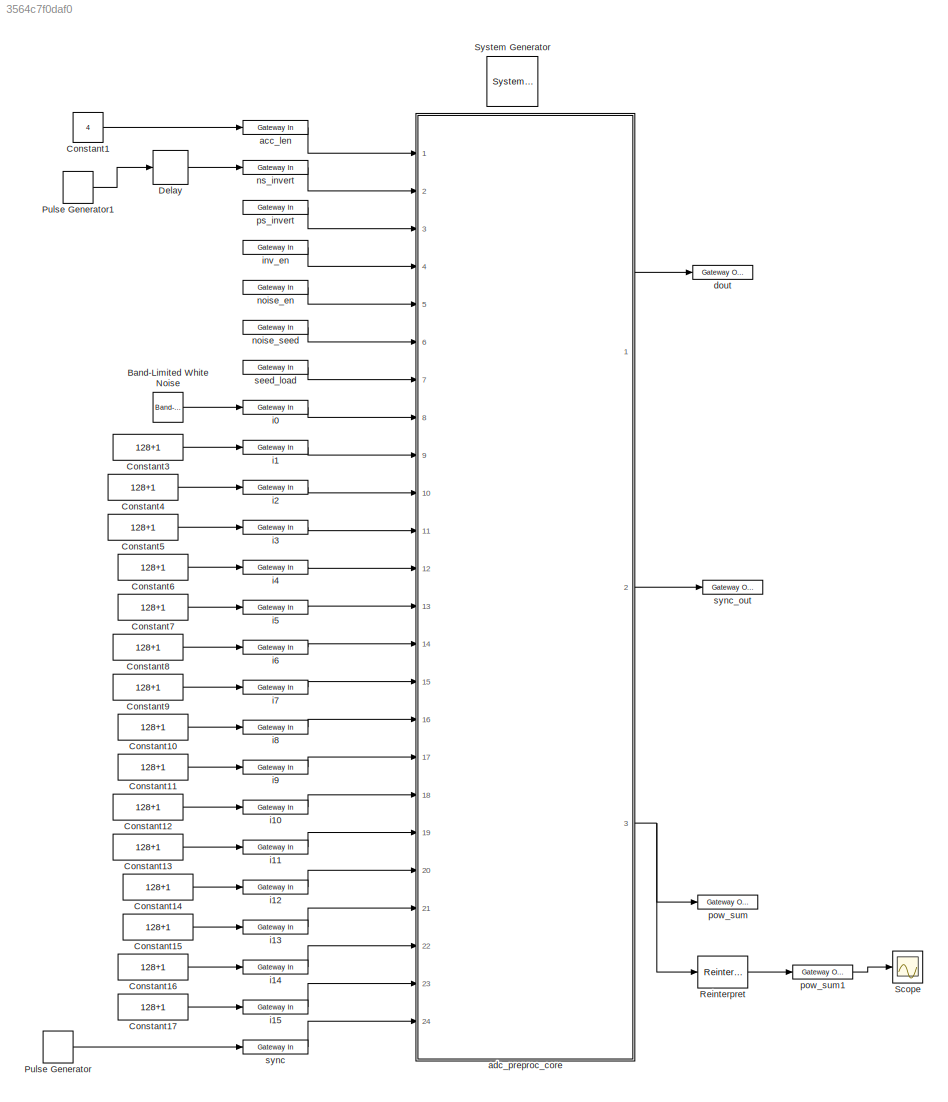
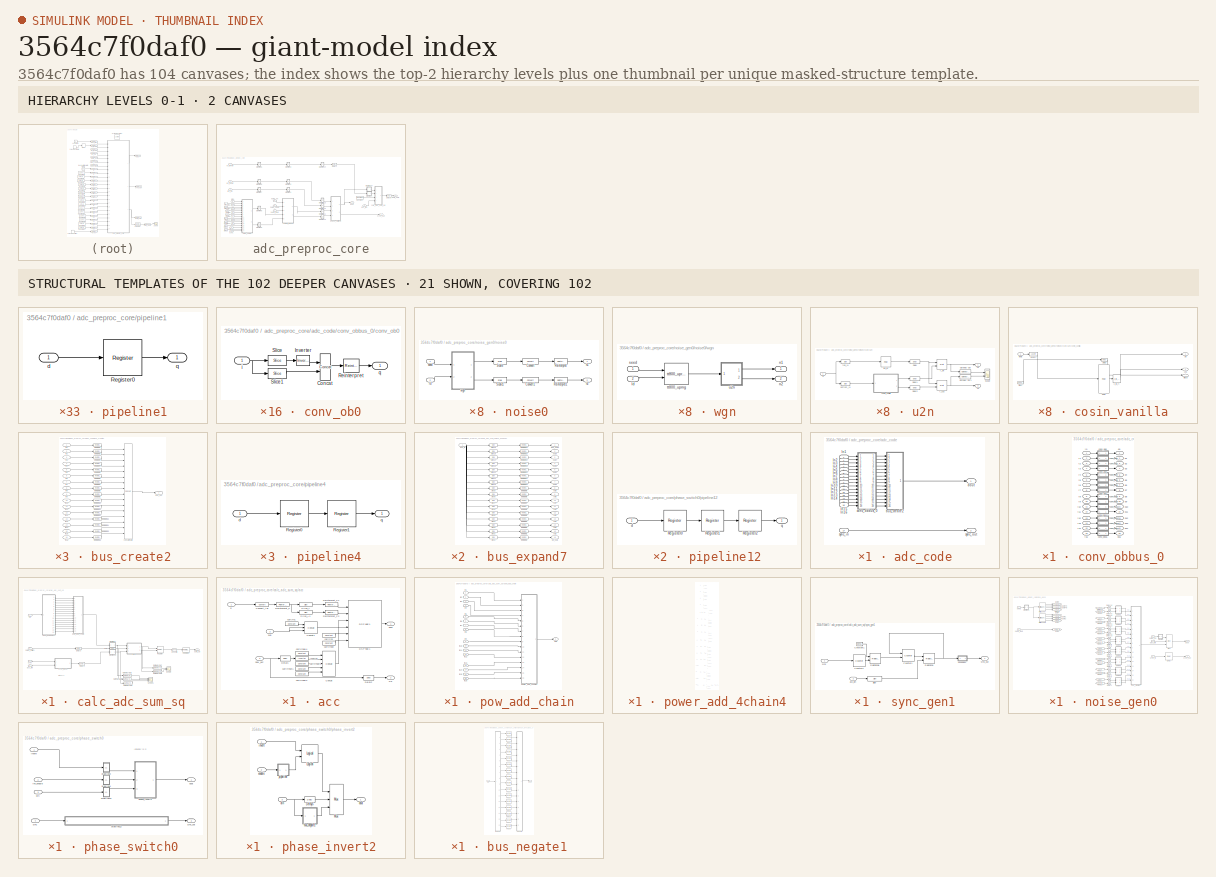
[diagram: thumbnail index - top-2 hierarchy levels (2 canvases) + 21 structural-template representatives of the remaining 102 canvases]
MODEL slx_3564c7f0daf0
KIND model
BLOCK [Reference]  System Generator  REF=xbsIndex_r4/ System Generator
  AttributesFormatString = System\nGenerator
  Impl_file = ISE Defaults
  Ports = []
  SourceBlock = xbsIndex_r4/ System Generator
  SourceType = Xilinx System Generator Block
  Synth_file = XST Defaults
  Tag = genX
  UserDataPersistent = on
  block_type = sysgen
  block_version = 11.4
  clock_wrapper = Clock Enables
  core_generation = According to Block Masks
  dbl_ovrd = According to Block Masks
  dcm_input_clock_period = 100
  deprecated_control = off
  directory = ./adc_preproc_core
  eval_field = 0
  has_advanced_control = 0
  incr_netlist = off
  infoedit = System Generator
  package = ff1759
  part = xc6vsx475t
  proj_type = Project Navigator
  run_coregen = off
  sg_icon_stat = 51,50,0,0,token,white,0,58c5b5770fe5f7c311f53dbc6e73f0f6,right,,[ ],[ ]
  sg_mask_display = fprintf('','COMMENT: begin icon graphics');\npatch([0 51 51 0 0 ],[0 0 50 50 0 ],[1 1 1 ]);\npatch([1.6375 16.81 27.31 37.81 48.31 27.31 12.1375 1.6375 ],[36.655 36.655 47.155 36.655 47.155 47.155 47.155 36.655 ],[0.933333 0.203922 0.141176 ]);\npatch([12.1375 27.31 16.81 1.6375 12.1375 ],[26.155 26.155 36.655 36.655 26.155 ],[0.698039 0.0313725 0.219608 ]);\npatch([1.6375 16.81 27.31 12.1375 1.6375 ]...<+327ch>
  sggui_pos = 1122, 422, 464, 470
  simulink_period = 1
  speed = -1
  synthesis_tool = XST
  sysclk_period = 3.2
  testbench = off
  trim_vbits = Everywhere in SubSystem
  xilinxfamily = virtex6
BLOCK [Reference] Band-Limited White Noise  REF=simulink/Sources/Band-Limited
White Noise
  Cov = [0.1]
  Ports = [0, 1]
  SourceBlock = simulink/Sources/Band-Limited\nWhite Noise
  SourceType = Band-Limited White Noise.
  Ts = 0.1
  VectorParams1D = on
  seed = [23341]
BLOCK [Constant] Constant1
  SampleTime = 1
  Value = 4
BLOCK [Constant] Constant10
  SampleTime = 1
  Value = 128+1
BLOCK [Constant] Constant11
  SampleTime = 1
  Value = 128+1
BLOCK [Constant] Constant12
  SampleTime = 1
  Value = 128+1
BLOCK [Constant] Constant13
  SampleTime = 1
  Value = 128+1
BLOCK [Constant] Constant14
  SampleTime = 1
  Value = 128+1
BLOCK [Constant] Constant15
  SampleTime = 1
  Value = 128+1
BLOCK [Constant] Constant16
  SampleTime = 1
  Value = 128+1
BLOCK [Constant] Constant17
  SampleTime = 1
  Value = 128+1
BLOCK [Constant] Constant3
  SampleTime = 1
  Value = 128+1
BLOCK [Constant] Constant4
  SampleTime = 1
  Value = 128+1
BLOCK [Constant] Constant5
  SampleTime = 1
  Value = 128+1
BLOCK [Constant] Constant6
  SampleTime = 1
  Value = 128+1
BLOCK [Constant] Constant7
  SampleTime = 1
  Value = 128+1
BLOCK [Constant] Constant8
  SampleTime = 1
  Value = 128+1
BLOCK [Constant] Constant9
  SampleTime = 1
  Value = 128+1
BLOCK [Delay] Delay
  DelayLength = 1
  InitialCondition = 0
  InputPortMap = u0
  Ports = [1, 1]
BLOCK [DiscretePulseGenerator] Pulse Generator
  Period = 256
  Ports = [0, 1]
BLOCK [DiscretePulseGenerator] Pulse Generator1
  Period = 256
  Ports = [0, 1]
  PulseWidth = 128
BLOCK [Reference] Reinterpret  REF=xbsIndex_r4/Reinterpret
  Ports = [1, 1]
  SourceBlock = xbsIndex_r4/Reinterpret
  SourceType = Xilinx Type Reinterpreter Block
  arith_type = Signed  (2's comp)
  bin_pt = 0
  block_type = reinterpret
  force_arith_type = on
  force_bin_pt = off
  has_advanced_control = 0
  infoedit = Changes signal type without altering the binary representation.   You can change the signal between signed and unsigned, and relocate the binary point.<br><br>Hardware notes: In hardware this block costs nothing.<br><br>Example:  Suppose the input is 6 bits wide, signed, with 2 fractional bits, and the output is forced to unsigned with 0 fractional bits.  Then an input of -2.0 (1110.00 in binary 2...<+58ch>  <repeated x80 — deduplicated; at blocks: Reinterpret, reinterpret10, reinterpret11, reinterpret12, reinterpret13, reinterpret14, reinterpret15, reinterpret16, reinterpret3, reinterpret4, reinterpret5, reinterpret6, reinterpret7, reinterpret8, reinterpret9, Reinterpret_C, +4 more>
  sg_icon_stat = 50,32,1,1,white,blue,0,6b04d0b0,right,,[ ],[ ]
  sg_mask_display = fprintf('','COMMENT: begin icon graphics');\npatch([0 50 50 0 0 ],[0 0 32 32 0 ],[0.77 0.82 0.91 ]);\nplot([0 50 50 0 0 ],[0 0 32 32 0 ]);\npatch([16.1 21.88 25.88 29.88 33.88 25.88 20.1 16.1 ],[20.44 20.44 24.44 20.44 24.44 24.44 24.44 20.44 ],[1 1 1 ]);\npatch([20.1 25.88 21.88 16.1 20.1 ],[16.44 16.44 20.44 20.44 16.44 ],[0.931 0.946 0.973 ]);\npatch([16.1 21.88 25.88 20.1 16.1 ],[12.44 12.44 16.44 ...<+294ch>
  sggui_pos = 13,17,424,401
BLOCK [Scope] Scope
  DataFormat = StructureWithTime
  Floating = off
  LimitDataPoints = off
  NumInputPorts = 1
  Ports = [1]
  SampleTime = 0
  ShowLegends = off
  YMax = 12500
  YMin = -7500
  ZoomMode = yonly
BLOCK [Reference] acc_len  REF=xbsIndex_r4/Gateway In
  ADCChannel = '1'
  LOCs = {}
  Ports = [1, 1]
  SourceBlock = xbsIndex_r4/Gateway In
  SourceType = Xilinx Gateway In Block
  UseAsADC = off
  arith_type = Unsigned
  bin_pt = 0
  block_type = gatewayin
  block_version = 11.4
  dbl_ovrd = off
  exp_width = 8
  frac_width = 24
  gui_display_data_type = Fixed-point
  has_advanced_control = 0
  hdl_port = on
  infoedit = Gateway in block.  Converts inputs of type Simulink integer, single, double and fixed-point to  Xilinx fixed-point or floating-point data type.<br><br>Hardware notes:  In hardware these blocks become top level input ports.  <repeated x10 — deduplicated; at blocks: acc_len, i0, i1, inv_en, noise_en, noise_seed, ns_invert, ps_invert, seed_load, sync>
  inherit_from_input = off
  locs_specified = off
  n_bits = 32
  overflow = Saturate
  period = 1
  preci_type = Single
  quantization = Round  (unbiased: +/- Inf)
  sg_icon_stat = 65,14,1,1,white,yellow,1,00d3666e,right,,[ ],[ ]
  sg_mask_display = fprintf('','COMMENT: begin icon graphics');\npatch([0 65 65 0 0 ],[0 0 14 14 0 ],[0.95 0.93 0.65 ]);\nplot([0 65 65 0 0 ],[0 0 14 14 0 ]);\npatch([27.55 30.44 32.44 34.44 36.44 32.44 29.55 27.55 ],[9.22 9.22 11.22 9.22 11.22 11.22 11.22 9.22 ],[1 1 1 ]);\npatch([29.55 32.44 30.44 27.55 29.55 ],[7.22 7.22 9.22 9.22 7.22 ],[0.985 0.979 0.895 ]);\npatch([27.55 30.44 32.44 29.55 27.55 ],[5.22 5.22 7.22 7.2...<+372ch>  <repeated x24 — deduplicated; at blocks: acc_len, i0, i1, i10, i11, i12, i13, i14, i15, i2, i3, i4, i5, i6, i7, i8, +8 more>
  sggui_pos = -1,25,481,695
  timing_constraint = None
  xl_area = [0,0,0,0,0,0,0]
  xl_use_area = off
BLOCK [SubSystem] adc_preproc_core
  FunctionWithSeparateData = off
  MaskHideContents = off
  MinAlgLoopOccurrences = off
  Opaque = off
  Ports = [24, 3]
  PropExecContextOutsideSubsystem = off
  RTWSystemCode = Auto
  RequestExecContextInheritance = off
BLOCK [Reference] adc_preproc_core/Constant  REF=xbsIndex_r4/Constant
  Ports = [0, 1]
  SourceBlock = xbsIndex_r4/Constant
  SourceType = Xilinx Constant Block Block
  arith_type = Boolean
  bin_pt = 14
  block_type = constant
  carry = CIN
  const = 0
  dbl_ovrd = off
  dsp48_infoedit = The use of this block for DSP48 instructions is deprecated.  Please use the Opmode block.
  equ = P=C
  exp_width = 8
  explicit_period = on
  frac_width = 24
  gui_display_data_type = Boolean
  has_advanced_control = 0
  inp1 = P
  inp2 = PCIN>>17
  n_bits = 16
  opr = +
  opselect = C
  period = 1
  preci_type = Single
  sg_icon_stat = 55,26,0,1,white,blue,0,bf4ddd8b,right,,[ ],[ ]
  sg_mask_display = fprintf('','COMMENT: begin icon graphics');\npatch([0 55 55 0 0 ],[0 0 26 26 0 ],[0.77 0.82 0.91 ]);\nplot([0 55 55 0 0 ],[0 0 26 26 0 ]);\npatch([20.325 24.66 27.66 30.66 33.66 27.66 23.325 20.325 ],[16.33 16.33 19.33 16.33 19.33 19.33 19.33 16.33 ],[1 1 1 ]);\npatch([23.325 27.66 24.66 20.325 23.325 ],[13.33 13.33 16.33 16.33 13.33 ],[0.931 0.946 0.973 ]);\npatch([20.325 24.66 27.66 23.325 20.325 ],[...<+323ch>
  sggui_pos = 13,17,421,478
BLOCK [Reference] adc_preproc_core/Delay1  REF=xbsIndex_r4/Delay
  Ports = [1, 1]
  SourceBlock = xbsIndex_r4/Delay
  SourceType = Xilinx Delay Block
  block_type = delay
  block_version = 11.4
  dbl_ovrd = off
  en = off
  has_advanced_control = 0
  infoedit = Hardware notes: A delay line is a chain, each link of which is an SRL16 followed by a flip-flop.
  infoeditControl = Selection of Reset will increase slice count due to use of real FFs and instead of SRLs
  latency = 3
  reg_retiming = off
  rst = off
  sg_icon_stat = 35,20,1,1,white,blue,0,83e6bb61,right,,[ ],[ ]
  sg_mask_display = fprintf('','COMMENT: begin icon graphics');\npatch([0 35 35 0 0 ],[0 0 20 20 0 ],[0.77 0.82 0.91 ]);\nplot([0 35 35 0 0 ],[0 0 20 20 0 ]);\npatch([12.55 15.44 17.44 19.44 21.44 17.44 14.55 12.55 ],[12.22 12.22 14.22 12.22 14.22 14.22 14.22 12.22 ],[1 1 1 ]);\npatch([14.55 17.44 15.44 12.55 14.55 ],[10.22 10.22 12.22 12.22 10.22 ],[0.931 0.946 0.973 ]);\npatch([12.55 15.44 17.44 14.55 12.55 ],[8.22 8.22...<+310ch>  <repeated x35 — deduplicated; at blocks: Delay1, Delay8, Slice, Slice1, Delay5>
  sggui_pos = 6,17,481,409
  xl_area = [0,0,0,0,0,0,0]
  xl_use_area = off
BLOCK [Reference] adc_preproc_core/Delay8  REF=xbsIndex_r4/Delay
  Ports = [1, 1]
  SourceBlock = xbsIndex_r4/Delay
  SourceType = Xilinx Delay Block
  block_type = delay
  block_version = 11.4
  dbl_ovrd = off
  en = off
  has_advanced_control = 0
  infoedit = Hardware notes: A delay line is a chain, each link of which is an SRL16 followed by a flip-flop.
  infoeditControl = Selection of Reset will increase slice count due to use of real FFs and instead of SRLs
  latency = 1
  reg_retiming = off
  rst = off
  sg_icon_stat = 35,20,1,1,white,blue,0,07b98262,right,,[ ],[ ]
  sggui_pos = 13,17,481,409
  xl_area = [0,0,0,0,0,0,0]
  xl_use_area = off
BLOCK [Inport] adc_preproc_core/acc_len
  IconDisplay = Port number
BLOCK [SubSystem] adc_preproc_core/adc_code
  FunctionWithSeparateData = off
  MaskHideContents = off
  MinAlgLoopOccurrences = off
  Opaque = off
  Ports = [17, 2]
  PropExecContextOutsideSubsystem = off
  RTWSystemCode = Auto
  RequestExecContextInheritance = off
BLOCK [Inport] adc_preproc_core/adc_code/In1
  IconDisplay = Port number
BLOCK [Inport] adc_preproc_core/adc_code/In10
  IconDisplay = Port number
  Port = 10
BLOCK [Inport] adc_preproc_core/adc_code/In11
  IconDisplay = Port number
  Port = 11
BLOCK [Inport] adc_preproc_core/adc_code/In12
  IconDisplay = Port number
  Port = 12
BLOCK [Inport] adc_preproc_core/adc_code/In13
  IconDisplay = Port number
  Port = 13
BLOCK [Inport] adc_preproc_core/adc_code/In14
  IconDisplay = Port number
  Port = 14
BLOCK [Inport] adc_preproc_core/adc_code/In15
  IconDisplay = Port number
  Port = 15
BLOCK [Inport] adc_preproc_core/adc_code/In16
  IconDisplay = Port number
  Port = 16
BLOCK [Inport] adc_preproc_core/adc_code/In2
  IconDisplay = Port number
  Port = 2
BLOCK [Inport] adc_preproc_core/adc_code/In3
  IconDisplay = Port number
  Port = 3
BLOCK [Inport] adc_preproc_core/adc_code/In4
  IconDisplay = Port number
  Port = 4
BLOCK [Inport] adc_preproc_core/adc_code/In5
  IconDisplay = Port number
  Port = 5
BLOCK [Inport] adc_preproc_core/adc_code/In6
  IconDisplay = Port number
  Port = 6
BLOCK [Inport] adc_preproc_core/adc_code/In7
  IconDisplay = Port number
  Port = 7
BLOCK [Inport] adc_preproc_core/adc_code/In8
  IconDisplay = Port number
  Port = 8
BLOCK [Inport] adc_preproc_core/adc_code/In9
  IconDisplay = Port number
  Port = 9
BLOCK [SubSystem] adc_preproc_core/adc_code/bus_create2
  AncestorBlock = casper_library_flow_control/bus_create
  FunctionWithSeparateData = off
  MaskHideContents = off
  MinAlgLoopOccurrences = off
  Opaque = off
  Ports = [16, 1]
  PropExecContextOutsideSubsystem = off
  RTWSystemCode = Auto
  RequestExecContextInheritance = off
  UserDataPersistent = on
BLOCK [Outport] adc_preproc_core/adc_code/bus_create2/bus_out
  IconDisplay = Port number
BLOCK [Reference] adc_preproc_core/adc_code/bus_create2/concatenate  REF=xbsIndex_r4/Concat
  Ports = [16, 1]
  SourceBlock = xbsIndex_r4/Concat
  SourceType = Xilinx Bus Concatenator Block
  block_type = concat
  block_version = 11.4
  dbl_ovrd = off
  has_advanced_control = 0
  infoedit = Concatenates two or more inputs.  Output will be cast to an unsigned value with the binary point at zero.
  num_inputs = 16
  sg_icon_stat = 50,620,16,1,white,blue,0,e51e01c8,right,,[ ],[ ]
  sg_mask_display = fprintf('','COMMENT: begin icon graphics');\npatch([0 50 50 0 0 ],[0 0 620 620 0 ],[0.77 0.82 0.91 ]);\nplot([0 50 50 0 0 ],[0 0 620 620 0 ]);\npatch([9.425 19.54 26.54 33.54 40.54 26.54 16.425 9.425 ],[317.77 317.77 324.77 317.77 324.77 324.77 324.77 317.77 ],[1 1 1 ]);\npatch([16.425 26.54 19.54 9.425 16.425 ],[310.77 310.77 317.77 317.77 310.77 ],[0.931 0.946 0.973 ]);\npatch([9.425 19.54 26.54 16.4...<+464ch>  <repeated x3 — deduplicated; at blocks: concatenate>
  sggui_pos = -1,-1,-1,-1
BLOCK [Inport] adc_preproc_core/adc_code/bus_create2/in1
  IconDisplay = Port number
BLOCK [Inport] adc_preproc_core/adc_code/bus_create2/in10
  IconDisplay = Port number
  Port = 10
BLOCK [Inport] adc_preproc_core/adc_code/bus_create2/in11
  IconDisplay = Port number
  Port = 11
BLOCK [Inport] adc_preproc_core/adc_code/bus_create2/in12
  IconDisplay = Port number
  Port = 12
BLOCK [Inport] adc_preproc_core/adc_code/bus_create2/in13
  IconDisplay = Port number
  Port = 13
BLOCK [Inport] adc_preproc_core/adc_code/bus_create2/in14
  IconDisplay = Port number
  Port = 14
BLOCK [Inport] adc_preproc_core/adc_code/bus_create2/in15
  IconDisplay = Port number
  Port = 15
BLOCK [Inport] adc_preproc_core/adc_code/bus_create2/in16
  IconDisplay = Port number
  Port = 16
BLOCK [Inport] adc_preproc_core/adc_code/bus_create2/in2
  IconDisplay = Port number
  Port = 2
BLOCK [Inport] adc_preproc_core/adc_code/bus_create2/in3
  IconDisplay = Port number
  Port = 3
BLOCK [Inport] adc_preproc_core/adc_code/bus_create2/in4
  IconDisplay = Port number
  Port = 4
BLOCK [Inport] adc_preproc_core/adc_code/bus_create2/in5
  IconDisplay = Port number
  Port = 5
BLOCK [Inport] adc_preproc_core/adc_code/bus_create2/in6
  IconDisplay = Port number
  Port = 6
BLOCK [Inport] adc_preproc_core/adc_code/bus_create2/in7
  IconDisplay = Port number
  Port = 7
BLOCK [Inport] adc_preproc_core/adc_code/bus_create2/in8
  IconDisplay = Port number
  Port = 8
BLOCK [Inport] adc_preproc_core/adc_code/bus_create2/in9
  IconDisplay = Port number
  Port = 9
BLOCK [Reference] adc_preproc_core/adc_code/bus_create2/reinterpret1  REF=xbsIndex_r4/Reinterpret
  Ports = [1, 1]
  SourceBlock = xbsIndex_r4/Reinterpret
  SourceType = Xilinx Type Reinterpreter Block
  arith_type = Unsigned
  bin_pt = 0
  block_type = reinterpret
  block_version = 11.4
  force_arith_type = on
  force_bin_pt = on
  has_advanced_control = 0
  infoedit = Changes signal type without altering the binary representation.   You can changed the signal between signed and unsigned, and relocate the binary point.<br><br>Hardware notes: In hardware this block costs nothing.<br><br>Example:  Suppose the input is 6 bits wide, signed, with 2 fractional bits, and the output is forced to unsigned with 0 fractional bits.  Then an input of -2.0 (1110.00 in binary ...<+59ch>  <repeated x21 — deduplicated; at blocks: reinterpret1, reinterpret2, Reinterpret>
  sg_icon_stat = 50,20,1,1,white,blue,0,6b04d0b0,right,,[ ],[ ]
  sg_mask_display = fprintf('','COMMENT: begin icon graphics');\npatch([0 50 50 0 0 ],[0 0 20 20 0 ],[0.77 0.82 0.91 ]);\nplot([0 50 50 0 0 ],[0 0 20 20 0 ]);\npatch([20.55 23.44 25.44 27.44 29.44 25.44 22.55 20.55 ],[12.22 12.22 14.22 12.22 14.22 14.22 14.22 12.22 ],[1 1 1 ]);\npatch([22.55 25.44 23.44 20.55 22.55 ],[10.22 10.22 12.22 12.22 10.22 ],[0.931 0.946 0.973 ]);\npatch([20.55 23.44 25.44 22.55 20.55 ],[8.22 8.22...<+300ch>  <repeated x80 — deduplicated; at blocks: reinterpret1, reinterpret10, reinterpret11, reinterpret12, reinterpret13, reinterpret14, reinterpret15, reinterpret16, reinterpret2, reinterpret3, reinterpret4, reinterpret5, reinterpret6, reinterpret7, reinterpret8, reinterpret9>
  sggui_pos = -1,-1,-1,-1
BLOCK [Reference] adc_preproc_core/adc_code/bus_create2/reinterpret10  REF=xbsIndex_r4/Reinterpret
  Ports = [1, 1]
  SourceBlock = xbsIndex_r4/Reinterpret
  SourceType = Xilinx Type Reinterpreter Block
  arith_type = Unsigned
  bin_pt = 0
  block_type = reinterpret
  force_arith_type = on
  force_bin_pt = on
  has_advanced_control = 0
  sg_icon_stat = 50,20,1,1,white,blue,0,6b04d0b0,right,,[ ],[ ]
  sggui_pos = -1,-1,-1,-1
BLOCK [Reference] adc_preproc_core/adc_code/bus_create2/reinterpret11  REF=xbsIndex_r4/Reinterpret
  Ports = [1, 1]
  SourceBlock = xbsIndex_r4/Reinterpret
  SourceType = Xilinx Type Reinterpreter Block
  arith_type = Unsigned
  bin_pt = 0
  block_type = reinterpret
  force_arith_type = on
  force_bin_pt = on
  has_advanced_control = 0
  sg_icon_stat = 50,20,1,1,white,blue,0,6b04d0b0,right,,[ ],[ ]
  sggui_pos = -1,-1,-1,-1
BLOCK [Reference] adc_preproc_core/adc_code/bus_create2/reinterpret12  REF=xbsIndex_r4/Reinterpret
  Ports = [1, 1]
  SourceBlock = xbsIndex_r4/Reinterpret
  SourceType = Xilinx Type Reinterpreter Block
  arith_type = Unsigned
  bin_pt = 0
  block_type = reinterpret
  force_arith_type = on
  force_bin_pt = on
  has_advanced_control = 0
  sg_icon_stat = 50,20,1,1,white,blue,0,6b04d0b0,right,,[ ],[ ]
  sggui_pos = -1,-1,-1,-1
BLOCK [Reference] adc_preproc_core/adc_code/bus_create2/reinterpret13  REF=xbsIndex_r4/Reinterpret
  Ports = [1, 1]
  SourceBlock = xbsIndex_r4/Reinterpret
  SourceType = Xilinx Type Reinterpreter Block
  arith_type = Unsigned
  bin_pt = 0
  block_type = reinterpret
  force_arith_type = on
  force_bin_pt = on
  has_advanced_control = 0
  sg_icon_stat = 50,20,1,1,white,blue,0,6b04d0b0,right,,[ ],[ ]
  sggui_pos = -1,-1,-1,-1
BLOCK [Reference] adc_preproc_core/adc_code/bus_create2/reinterpret14  REF=xbsIndex_r4/Reinterpret
  Ports = [1, 1]
  SourceBlock = xbsIndex_r4/Reinterpret
  SourceType = Xilinx Type Reinterpreter Block
  arith_type = Unsigned
  bin_pt = 0
  block_type = reinterpret
  force_arith_type = on
  force_bin_pt = on
  has_advanced_control = 0
  sg_icon_stat = 50,20,1,1,white,blue,0,6b04d0b0,right,,[ ],[ ]
  sggui_pos = -1,-1,-1,-1
BLOCK [Reference] adc_preproc_core/adc_code/bus_create2/reinterpret15  REF=xbsIndex_r4/Reinterpret
  Ports = [1, 1]
  SourceBlock = xbsIndex_r4/Reinterpret
  SourceType = Xilinx Type Reinterpreter Block
  arith_type = Unsigned
  bin_pt = 0
  block_type = reinterpret
  force_arith_type = on
  force_bin_pt = on
  has_advanced_control = 0
  sg_icon_stat = 50,20,1,1,white,blue,0,6b04d0b0,right,,[ ],[ ]
  sggui_pos = -1,-1,-1,-1
BLOCK [Reference] adc_preproc_core/adc_code/bus_create2/reinterpret16  REF=xbsIndex_r4/Reinterpret
  Ports = [1, 1]
  SourceBlock = xbsIndex_r4/Reinterpret
  SourceType = Xilinx Type Reinterpreter Block
  arith_type = Unsigned
  bin_pt = 0
  block_type = reinterpret
  force_arith_type = on
  force_bin_pt = on
  has_advanced_control = 0
  sg_icon_stat = 50,20,1,1,white,blue,0,6b04d0b0,right,,[ ],[ ]
  sggui_pos = -1,-1,-1,-1
BLOCK [Reference] adc_preproc_core/adc_code/bus_create2/reinterpret2  REF=xbsIndex_r4/Reinterpret
  Ports = [1, 1]
  SourceBlock = xbsIndex_r4/Reinterpret
  SourceType = Xilinx Type Reinterpreter Block
  arith_type = Unsigned
  bin_pt = 0
  block_type = reinterpret
  block_version = 11.4
  force_arith_type = on
  force_bin_pt = on
  has_advanced_control = 0
  sg_icon_stat = 50,20,1,1,white,blue,0,6b04d0b0,right,,[ ],[ ]
  sggui_pos = 281,224,671,460
BLOCK [Reference] adc_preproc_core/adc_code/bus_create2/reinterpret3  REF=xbsIndex_r4/Reinterpret
  Ports = [1, 1]
  SourceBlock = xbsIndex_r4/Reinterpret
  SourceType = Xilinx Type Reinterpreter Block
  arith_type = Unsigned
  bin_pt = 0
  block_type = reinterpret
  force_arith_type = on
  force_bin_pt = on
  has_advanced_control = 0
  sg_icon_stat = 50,20,1,1,white,blue,0,6b04d0b0,right,,[ ],[ ]
  sggui_pos = -1,-1,-1,-1
BLOCK [Reference] adc_preproc_core/adc_code/bus_create2/reinterpret4  REF=xbsIndex_r4/Reinterpret
  Ports = [1, 1]
  SourceBlock = xbsIndex_r4/Reinterpret
  SourceType = Xilinx Type Reinterpreter Block
  arith_type = Unsigned
  bin_pt = 0
  block_type = reinterpret
  force_arith_type = on
  force_bin_pt = on
  has_advanced_control = 0
  sg_icon_stat = 50,20,1,1,white,blue,0,6b04d0b0,right,,[ ],[ ]
  sggui_pos = -1,-1,-1,-1
BLOCK [Reference] adc_preproc_core/adc_code/bus_create2/reinterpret5  REF=xbsIndex_r4/Reinterpret
  Ports = [1, 1]
  SourceBlock = xbsIndex_r4/Reinterpret
  SourceType = Xilinx Type Reinterpreter Block
  arith_type = Unsigned
  bin_pt = 0
  block_type = reinterpret
  force_arith_type = on
  force_bin_pt = on
  has_advanced_control = 0
  sg_icon_stat = 50,20,1,1,white,blue,0,6b04d0b0,right,,[ ],[ ]
  sggui_pos = -1,-1,-1,-1
BLOCK [Reference] adc_preproc_core/adc_code/bus_create2/reinterpret6  REF=xbsIndex_r4/Reinterpret
  Ports = [1, 1]
  SourceBlock = xbsIndex_r4/Reinterpret
  SourceType = Xilinx Type Reinterpreter Block
  arith_type = Unsigned
  bin_pt = 0
  block_type = reinterpret
  force_arith_type = on
  force_bin_pt = on
  has_advanced_control = 0
  sg_icon_stat = 50,20,1,1,white,blue,0,6b04d0b0,right,,[ ],[ ]
  sggui_pos = -1,-1,-1,-1
BLOCK [Reference] adc_preproc_core/adc_code/bus_create2/reinterpret7  REF=xbsIndex_r4/Reinterpret
  Ports = [1, 1]
  SourceBlock = xbsIndex_r4/Reinterpret
  SourceType = Xilinx Type Reinterpreter Block
  arith_type = Unsigned
  bin_pt = 0
  block_type = reinterpret
  force_arith_type = on
  force_bin_pt = on
  has_advanced_control = 0
  sg_icon_stat = 50,20,1,1,white,blue,0,6b04d0b0,right,,[ ],[ ]
  sggui_pos = -1,-1,-1,-1
BLOCK [Reference] adc_preproc_core/adc_code/bus_create2/reinterpret8  REF=xbsIndex_r4/Reinterpret
  Ports = [1, 1]
  SourceBlock = xbsIndex_r4/Reinterpret
  SourceType = Xilinx Type Reinterpreter Block
  arith_type = Unsigned
  bin_pt = 0
  block_type = reinterpret
  force_arith_type = on
  force_bin_pt = on
  has_advanced_control = 0
  sg_icon_stat = 50,20,1,1,white,blue,0,6b04d0b0,right,,[ ],[ ]
  sggui_pos = -1,-1,-1,-1
BLOCK [Reference] adc_preproc_core/adc_code/bus_create2/reinterpret9  REF=xbsIndex_r4/Reinterpret
  Ports = [1, 1]
  SourceBlock = xbsIndex_r4/Reinterpret
  SourceType = Xilinx Type Reinterpreter Block
  arith_type = Unsigned
  bin_pt = 0
  block_type = reinterpret
  force_arith_type = on
  force_bin_pt = on
  has_advanced_control = 0
  sg_icon_stat = 50,20,1,1,white,blue,0,6b04d0b0,right,,[ ],[ ]
  sggui_pos = -1,-1,-1,-1
BLOCK [SubSystem] adc_preproc_core/adc_code/conv_obbus_0
  FunctionWithSeparateData = off
  MaskHideContents = off
  MinAlgLoopOccurrences = off
  Opaque = off
  Ports = [16, 16]
  PropExecContextOutsideSubsystem = off
  RTWSystemCode = Auto
  RequestExecContextInheritance = off
BLOCK [SubSystem] adc_preproc_core/adc_code/conv_obbus_0/conv_ob0
  FunctionWithSeparateData = off
  MaskHideContents = off
  MinAlgLoopOccurrences = off
  Opaque = off
  Ports = [1, 1]
  PropExecContextOutsideSubsystem = off
  RTWSystemCode = Auto
  RequestExecContextInheritance = off
BLOCK [Reference] adc_preproc_core/adc_code/conv_obbus_0/conv_ob0/Concat  REF=xbsIndex_r4/Concat
  Ports = [2, 1]
  SourceBlock = xbsIndex_r4/Concat
  SourceType = Xilinx Bus Concatenator Block
  block_type = concat
  block_version = 11.4
  dbl_ovrd = off
  has_advanced_control = 0
  infoedit = Concatenates two or more inputs.  Output will be cast to an unsigned value with the binary point at zero.
  num_inputs = 2
  sg_icon_stat = 20,51,2,1,white,blue,0,16398980,right,,[ ],[ ]
  sg_mask_display = fprintf('','COMMENT: begin icon graphics');\npatch([0 20 20 0 0 ],[0 0 51 51 0 ],[0.77 0.82 0.91 ]);\nplot([0 20 20 0 0 ],[0 0 51 51 0 ]);\npatch([5.55 8.44 10.44 12.44 14.44 10.44 7.55 5.55 ],[27.22 27.22 29.22 27.22 29.22 29.22 29.22 27.22 ],[1 1 1 ]);\npatch([7.55 10.44 8.44 5.55 7.55 ],[25.22 25.22 27.22 27.22 25.22 ],[0.931 0.946 0.973 ]);\npatch([5.55 8.44 10.44 7.55 5.55 ],[23.22 23.22 25.22 25....<+398ch>  <repeated x16 — deduplicated; at blocks: Concat>
  sggui_pos = -1,-1,-1,-1
BLOCK [Reference] adc_preproc_core/adc_code/conv_obbus_0/conv_ob0/Inverter  REF=xbsIndex_r4/Inverter
  Ports = [1, 1]
  SourceBlock = xbsIndex_r4/Inverter
  SourceType = Xilinx Inverter Block
  block_type = inv
  block_version = 11.4
  dbl_ovrd = off
  en = off
  has_advanced_control = 0
  infoedit = Bitwise logical negation (one's complement) operator.
  latency = 0
  sg_icon_stat = 25,20,1,1,white,blue,0,267846e5,right,,[ ],[ ]
  sg_mask_display = fprintf('','COMMENT: begin icon graphics');\npatch([0 25 25 0 0 ],[0 0 20 20 0 ],[0.77 0.82 0.91 ]);\nplot([0 25 25 0 0 ],[0 0 20 20 0 ]);\npatch([7.55 10.44 12.44 14.44 16.44 12.44 9.55 7.55 ],[12.22 12.22 14.22 12.22 14.22 14.22 14.22 12.22 ],[1 1 1 ]);\npatch([9.55 12.44 10.44 7.55 9.55 ],[10.22 10.22 12.22 12.22 10.22 ],[0.931 0.946 0.973 ]);\npatch([7.55 10.44 12.44 9.55 7.55 ],[8.22 8.22 10.22 10...<+280ch>  <repeated x16 — deduplicated; at blocks: Inverter>
  sggui_pos = -1,-1,-1,-1
  xl_area = [0,0,0,0,0,0,0]
  xl_use_area = off
BLOCK [Reference] adc_preproc_core/adc_code/conv_obbus_0/conv_ob0/Reinterpret  REF=xbsIndex_r4/Reinterpret
  Ports = [1, 1]
  SourceBlock = xbsIndex_r4/Reinterpret
  SourceType = Xilinx Type Reinterpreter Block
  arith_type = Signed  (2's comp)
  bin_pt = 7
  block_type = reinterpret
  block_version = 11.4
  force_arith_type = on
  force_bin_pt = on
  has_advanced_control = 0
  sg_icon_stat = 30,26,1,1,white,blue,0,6b04d0b0,right,,[ ],[ ]
  sg_mask_display = fprintf('','COMMENT: begin icon graphics');\npatch([0 30 30 0 0 ],[0 0 26 26 0 ],[0.77 0.82 0.91 ]);\nplot([0 30 30 0 0 ],[0 0 26 26 0 ]);\npatch([8.325 12.66 15.66 18.66 21.66 15.66 11.325 8.325 ],[16.33 16.33 19.33 16.33 19.33 19.33 19.33 16.33 ],[1 1 1 ]);\npatch([11.325 15.66 12.66 8.325 11.325 ],[13.33 13.33 16.33 16.33 13.33 ],[0.931 0.946 0.973 ]);\npatch([8.325 12.66 15.66 11.325 8.325 ],[10.33...<+312ch>  <repeated x16 — deduplicated; at blocks: Reinterpret>
  sggui_pos = 13,46,416,401
BLOCK [Reference] adc_preproc_core/adc_code/conv_obbus_0/conv_ob0/Slice  REF=xbsIndex_r4/Slice
  Ports = [1, 1]
  SourceBlock = xbsIndex_r4/Slice
  SourceType = Xilinx Bit Slice Extractor Block
  base0 = LSB of Input
  base1 = MSB of Input
  bit0 = 0
  bit1 = 0
  block_type = slice
  block_version = 11.4
  boolean_output = off
  dbl_ovrd = off
  has_advanced_control = 0
  infoedit = Extracts a given range of bits from each input sample and presents it at the output.  The output type is ordinarily unsigned with binary point at zero, but can be Boolean when the slice is one bit wide.<br><br>Hardware notes: In hardware this block costs nothing.  <repeated x67 — deduplicated; at blocks: Slice, Slice1, Slice_A, Slice_A1, slice1, slice10, slice11, slice12, slice13, slice14, slice15, slice16, slice2, slice3, slice4, slice5, +4 more>
  mode = Upper Bit Location + Width
  nbits = 1
  sg_icon_stat = 35,20,1,1,white,blue,0,1fd851a7,right,,[ ],[ ]
  sggui_pos = 6,39,633,509
BLOCK [Reference] adc_preproc_core/adc_code/conv_obbus_0/conv_ob0/Slice1  REF=xbsIndex_r4/Slice
  Ports = [1, 1]
  SourceBlock = xbsIndex_r4/Slice
  SourceType = Xilinx Bit Slice Extractor Block
  base0 = LSB of Input
  base1 = MSB of Input
  bit0 = 0
  bit1 = -1
  block_type = slice
  block_version = 11.4
  boolean_output = off
  dbl_ovrd = off
  has_advanced_control = 0
  mode = Upper Bit Location + Width
  nbits = 7
  sg_icon_stat = 35,20,1,1,white,blue,0,1fd851a7,right,,[ ],[ ]
  sggui_pos = 13,46,617,509
BLOCK [Inport] adc_preproc_core/adc_code/conv_obbus_0/conv_ob0/i
  IconDisplay = Port number
BLOCK [Outport] adc_preproc_core/adc_code/conv_obbus_0/conv_ob0/q
  IconDisplay = Port number
BLOCK [SubSystem] adc_preproc_core/adc_code/conv_obbus_0/conv_ob1
  FunctionWithSeparateData = off
  MaskHideContents = off
  MinAlgLoopOccurrences = off
  Opaque = off
  Ports = [1, 1]
  PropExecContextOutsideSubsystem = off
  RTWSystemCode = Auto
  RequestExecContextInheritance = off
BLOCK [Reference] adc_preproc_core/adc_code/conv_obbus_0/conv_ob1/Concat  REF=xbsIndex_r4/Concat
  Ports = [2, 1]
  SourceBlock = xbsIndex_r4/Concat
  SourceType = Xilinx Bus Concatenator Block
  block_type = concat
  block_version = 11.4
  dbl_ovrd = off
  has_advanced_control = 0
  infoedit = Concatenates two or more inputs.  Output will be cast to an unsigned value with the binary point at zero.
  num_inputs = 2
  sg_icon_stat = 20,51,2,1,white,blue,0,16398980,right,,[ ],[ ]
  sggui_pos = -1,-1,-1,-1
BLOCK [Reference] adc_preproc_core/adc_code/conv_obbus_0/conv_ob1/Inverter  REF=xbsIndex_r4/Inverter
  Ports = [1, 1]
  SourceBlock = xbsIndex_r4/Inverter
  SourceType = Xilinx Inverter Block
  block_type = inv
  block_version = 11.4
  dbl_ovrd = off
  en = off
  has_advanced_control = 0
  infoedit = Bitwise logical negation (one's complement) operator.
  latency = 0
  sg_icon_stat = 25,20,1,1,white,blue,0,267846e5,right,,[ ],[ ]
  sggui_pos = -1,-1,-1,-1
  xl_area = [0,0,0,0,0,0,0]
  xl_use_area = off
BLOCK [Reference] adc_preproc_core/adc_code/conv_obbus_0/conv_ob1/Reinterpret  REF=xbsIndex_r4/Reinterpret
  Ports = [1, 1]
  SourceBlock = xbsIndex_r4/Reinterpret
  SourceType = Xilinx Type Reinterpreter Block
  arith_type = Signed  (2's comp)
  bin_pt = 7
  block_type = reinterpret
  block_version = 11.4
  force_arith_type = on
  force_bin_pt = on
  has_advanced_control = 0
  sg_icon_stat = 30,26,1,1,white,blue,0,6b04d0b0,right,,[ ],[ ]
  sggui_pos = 20,46,372,364
BLOCK [Reference] adc_preproc_core/adc_code/conv_obbus_0/conv_ob1/Slice  REF=xbsIndex_r4/Slice
  Ports = [1, 1]
  SourceBlock = xbsIndex_r4/Slice
  SourceType = Xilinx Bit Slice Extractor Block
  base0 = LSB of Input
  base1 = MSB of Input
  bit0 = 0
  bit1 = 0
  block_type = slice
  block_version = 11.4
  boolean_output = off
  dbl_ovrd = off
  has_advanced_control = 0
  mode = Upper Bit Location + Width
  nbits = 1
  sg_icon_stat = 35,20,1,1,white,blue,0,1fd851a7,right,,[ ],[ ]
  sggui_pos = 20,46,537,482
BLOCK [Reference] adc_preproc_core/adc_code/conv_obbus_0/conv_ob1/Slice1  REF=xbsIndex_r4/Slice
  Ports = [1, 1]
  SourceBlock = xbsIndex_r4/Slice
  SourceType = Xilinx Bit Slice Extractor Block
  base0 = LSB of Input
  base1 = MSB of Input
  bit0 = 0
  bit1 = -1
  block_type = slice
  block_version = 11.4
  boolean_output = off
  dbl_ovrd = off
  has_advanced_control = 0
  mode = Upper Bit Location + Width
  nbits = 7
  sg_icon_stat = 35,20,1,1,white,blue,0,1fd851a7,right,,[ ],[ ]
  sggui_pos = 20,46,537,482
BLOCK [Inport] adc_preproc_core/adc_code/conv_obbus_0/conv_ob1/i
  IconDisplay = Port number
BLOCK [Outport] adc_preproc_core/adc_code/conv_obbus_0/conv_ob1/q
  IconDisplay = Port number
BLOCK [SubSystem] adc_preproc_core/adc_code/conv_obbus_0/conv_ob10
  FunctionWithSeparateData = off
  MaskHideContents = off
  MinAlgLoopOccurrences = off
  Opaque = off
  Ports = [1, 1]
  PropExecContextOutsideSubsystem = off
  RTWSystemCode = Auto
  RequestExecContextInheritance = off
BLOCK [Reference] adc_preproc_core/adc_code/conv_obbus_0/conv_ob10/Concat  REF=xbsIndex_r4/Concat
  Ports = [2, 1]
  SourceBlock = xbsIndex_r4/Concat
  SourceType = Xilinx Bus Concatenator Block
  block_type = concat
  block_version = 11.4
  dbl_ovrd = off
  has_advanced_control = 0
  infoedit = Concatenates two or more inputs.  Output will be cast to an unsigned value with the binary point at zero.
  num_inputs = 2
  sg_icon_stat = 20,51,2,1,white,blue,0,16398980,right,,[ ],[ ]
  sggui_pos = -1,-1,-1,-1
BLOCK [Reference] adc_preproc_core/adc_code/conv_obbus_0/conv_ob10/Inverter  REF=xbsIndex_r4/Inverter
  Ports = [1, 1]
  SourceBlock = xbsIndex_r4/Inverter
  SourceType = Xilinx Inverter Block
  block_type = inv
  block_version = 11.4
  dbl_ovrd = off
  en = off
  has_advanced_control = 0
  infoedit = Bitwise logical negation (one's complement) operator.
  latency = 0
  sg_icon_stat = 25,20,1,1,white,blue,0,267846e5,right,,[ ],[ ]
  sggui_pos = -1,-1,-1,-1
  xl_area = [0,0,0,0,0,0,0]
  xl_use_area = off
BLOCK [Reference] adc_preproc_core/adc_code/conv_obbus_0/conv_ob10/Reinterpret  REF=xbsIndex_r4/Reinterpret
  Ports = [1, 1]
  SourceBlock = xbsIndex_r4/Reinterpret
  SourceType = Xilinx Type Reinterpreter Block
  arith_type = Signed  (2's comp)
  bin_pt = 7
  block_type = reinterpret
  block_version = 11.4
  force_arith_type = on
  force_bin_pt = on
  has_advanced_control = 0
  sg_icon_stat = 30,26,1,1,white,blue,0,6b04d0b0,right,,[ ],[ ]
  sggui_pos = 20,46,372,364
BLOCK [Reference] adc_preproc_core/adc_code/conv_obbus_0/conv_ob10/Slice  REF=xbsIndex_r4/Slice
  Ports = [1, 1]
  SourceBlock = xbsIndex_r4/Slice
  SourceType = Xilinx Bit Slice Extractor Block
  base0 = LSB of Input
  base1 = MSB of Input
  bit0 = 0
  bit1 = 0
  block_type = slice
  block_version = 11.4
  boolean_output = off
  dbl_ovrd = off
  has_advanced_control = 0
  mode = Upper Bit Location + Width
  nbits = 1
  sg_icon_stat = 35,20,1,1,white,blue,0,1fd851a7,right,,[ ],[ ]
  sggui_pos = 20,46,537,482
BLOCK [Reference] adc_preproc_core/adc_code/conv_obbus_0/conv_ob10/Slice1  REF=xbsIndex_r4/Slice
  Ports = [1, 1]
  SourceBlock = xbsIndex_r4/Slice
  SourceType = Xilinx Bit Slice Extractor Block
  base0 = LSB of Input
  base1 = MSB of Input
  bit0 = 0
  bit1 = -1
  block_type = slice
  block_version = 11.4
  boolean_output = off
  dbl_ovrd = off
  has_advanced_control = 0
  mode = Upper Bit Location + Width
  nbits = 7
  sg_icon_stat = 35,20,1,1,white,blue,0,1fd851a7,right,,[ ],[ ]
  sggui_pos = 20,46,537,482
BLOCK [Inport] adc_preproc_core/adc_code/conv_obbus_0/conv_ob10/i
  IconDisplay = Port number
BLOCK [Outport] adc_preproc_core/adc_code/conv_obbus_0/conv_ob10/q
  IconDisplay = Port number
BLOCK [SubSystem] adc_preproc_core/adc_code/conv_obbus_0/conv_ob11
  FunctionWithSeparateData = off
  MaskHideContents = off
  MinAlgLoopOccurrences = off
  Opaque = off
  Ports = [1, 1]
  PropExecContextOutsideSubsystem = off
  RTWSystemCode = Auto
  RequestExecContextInheritance = off
BLOCK [Reference] adc_preproc_core/adc_code/conv_obbus_0/conv_ob11/Concat  REF=xbsIndex_r4/Concat
  Ports = [2, 1]
  SourceBlock = xbsIndex_r4/Concat
  SourceType = Xilinx Bus Concatenator Block
  block_type = concat
  block_version = 11.4
  dbl_ovrd = off
  has_advanced_control = 0
  infoedit = Concatenates two or more inputs.  Output will be cast to an unsigned value with the binary point at zero.
  num_inputs = 2
  sg_icon_stat = 20,51,2,1,white,blue,0,16398980,right,,[ ],[ ]
  sggui_pos = -1,-1,-1,-1
BLOCK [Reference] adc_preproc_core/adc_code/conv_obbus_0/conv_ob11/Inverter  REF=xbsIndex_r4/Inverter
  Ports = [1, 1]
  SourceBlock = xbsIndex_r4/Inverter
  SourceType = Xilinx Inverter Block
  block_type = inv
  block_version = 11.4
  dbl_ovrd = off
  en = off
  has_advanced_control = 0
  infoedit = Bitwise logical negation (one's complement) operator.
  latency = 0
  sg_icon_stat = 25,20,1,1,white,blue,0,267846e5,right,,[ ],[ ]
  sggui_pos = -1,-1,-1,-1
  xl_area = [0,0,0,0,0,0,0]
  xl_use_area = off
BLOCK [Reference] adc_preproc_core/adc_code/conv_obbus_0/conv_ob11/Reinterpret  REF=xbsIndex_r4/Reinterpret
  Ports = [1, 1]
  SourceBlock = xbsIndex_r4/Reinterpret
  SourceType = Xilinx Type Reinterpreter Block
  arith_type = Signed  (2's comp)
  bin_pt = 7
  block_type = reinterpret
  block_version = 11.4
  force_arith_type = on
  force_bin_pt = on
  has_advanced_control = 0
  sg_icon_stat = 30,26,1,1,white,blue,0,6b04d0b0,right,,[ ],[ ]
  sggui_pos = 20,46,372,364
BLOCK [Reference] adc_preproc_core/adc_code/conv_obbus_0/conv_ob11/Slice  REF=xbsIndex_r4/Slice
  Ports = [1, 1]
  SourceBlock = xbsIndex_r4/Slice
  SourceType = Xilinx Bit Slice Extractor Block
  base0 = LSB of Input
  base1 = MSB of Input
  bit0 = 0
  bit1 = 0
  block_type = slice
  block_version = 11.4
  boolean_output = off
  dbl_ovrd = off
  has_advanced_control = 0
  mode = Upper Bit Location + Width
  nbits = 1
  sg_icon_stat = 35,20,1,1,white,blue,0,1fd851a7,right,,[ ],[ ]
  sggui_pos = 20,46,537,482
BLOCK [Reference] adc_preproc_core/adc_code/conv_obbus_0/conv_ob11/Slice1  REF=xbsIndex_r4/Slice
  Ports = [1, 1]
  SourceBlock = xbsIndex_r4/Slice
  SourceType = Xilinx Bit Slice Extractor Block
  base0 = LSB of Input
  base1 = MSB of Input
  bit0 = 0
  bit1 = -1
  block_type = slice
  block_version = 11.4
  boolean_output = off
  dbl_ovrd = off
  has_advanced_control = 0
  mode = Upper Bit Location + Width
  nbits = 7
  sg_icon_stat = 35,20,1,1,white,blue,0,1fd851a7,right,,[ ],[ ]
  sggui_pos = 20,46,537,482
BLOCK [Inport] adc_preproc_core/adc_code/conv_obbus_0/conv_ob11/i
  IconDisplay = Port number
BLOCK [Outport] adc_preproc_core/adc_code/conv_obbus_0/conv_ob11/q
  IconDisplay = Port number
BLOCK [SubSystem] adc_preproc_core/adc_code/conv_obbus_0/conv_ob12
  FunctionWithSeparateData = off
  MaskHideContents = off
  MinAlgLoopOccurrences = off
  Opaque = off
  Ports = [1, 1]
  PropExecContextOutsideSubsystem = off
  RTWSystemCode = Auto
  RequestExecContextInheritance = off
BLOCK [Reference] adc_preproc_core/adc_code/conv_obbus_0/conv_ob12/Concat  REF=xbsIndex_r4/Concat
  Ports = [2, 1]
  SourceBlock = xbsIndex_r4/Concat
  SourceType = Xilinx Bus Concatenator Block
  block_type = concat
  block_version = 11.4
  dbl_ovrd = off
  has_advanced_control = 0
  infoedit = Concatenates two or more inputs.  Output will be cast to an unsigned value with the binary point at zero.
  num_inputs = 2
  sg_icon_stat = 20,51,2,1,white,blue,0,16398980,right,,[ ],[ ]
  sggui_pos = -1,-1,-1,-1
BLOCK [Reference] adc_preproc_core/adc_code/conv_obbus_0/conv_ob12/Inverter  REF=xbsIndex_r4/Inverter
  Ports = [1, 1]
  SourceBlock = xbsIndex_r4/Inverter
  SourceType = Xilinx Inverter Block
  block_type = inv
  block_version = 11.4
  dbl_ovrd = off
  en = off
  has_advanced_control = 0
  infoedit = Bitwise logical negation (one's complement) operator.
  latency = 0
  sg_icon_stat = 25,20,1,1,white,blue,0,267846e5,right,,[ ],[ ]
  sggui_pos = -1,-1,-1,-1
  xl_area = [0,0,0,0,0,0,0]
  xl_use_area = off
BLOCK [Reference] adc_preproc_core/adc_code/conv_obbus_0/conv_ob12/Reinterpret  REF=xbsIndex_r4/Reinterpret
  Ports = [1, 1]
  SourceBlock = xbsIndex_r4/Reinterpret
  SourceType = Xilinx Type Reinterpreter Block
  arith_type = Signed  (2's comp)
  bin_pt = 7
  block_type = reinterpret
  block_version = 11.4
  force_arith_type = on
  force_bin_pt = on
  has_advanced_control = 0
  sg_icon_stat = 30,26,1,1,white,blue,0,6b04d0b0,right,,[ ],[ ]
  sggui_pos = 20,46,372,364
BLOCK [Reference] adc_preproc_core/adc_code/conv_obbus_0/conv_ob12/Slice  REF=xbsIndex_r4/Slice
  Ports = [1, 1]
  SourceBlock = xbsIndex_r4/Slice
  SourceType = Xilinx Bit Slice Extractor Block
  base0 = LSB of Input
  base1 = MSB of Input
  bit0 = 0
  bit1 = 0
  block_type = slice
  block_version = 11.4
  boolean_output = off
  dbl_ovrd = off
  has_advanced_control = 0
  mode = Upper Bit Location + Width
  nbits = 1
  sg_icon_stat = 35,20,1,1,white,blue,0,1fd851a7,right,,[ ],[ ]
  sggui_pos = 20,46,537,482
BLOCK [Reference] adc_preproc_core/adc_code/conv_obbus_0/conv_ob12/Slice1  REF=xbsIndex_r4/Slice
  Ports = [1, 1]
  SourceBlock = xbsIndex_r4/Slice
  SourceType = Xilinx Bit Slice Extractor Block
  base0 = LSB of Input
  base1 = MSB of Input
  bit0 = 0
  bit1 = -1
  block_type = slice
  block_version = 11.4
  boolean_output = off
  dbl_ovrd = off
  has_advanced_control = 0
  mode = Upper Bit Location + Width
  nbits = 7
  sg_icon_stat = 35,20,1,1,white,blue,0,1fd851a7,right,,[ ],[ ]
  sggui_pos = 20,46,537,482
BLOCK [Inport] adc_preproc_core/adc_code/conv_obbus_0/conv_ob12/i
  IconDisplay = Port number
BLOCK [Outport] adc_preproc_core/adc_code/conv_obbus_0/conv_ob12/q
  IconDisplay = Port number
BLOCK [SubSystem] adc_preproc_core/adc_code/conv_obbus_0/conv_ob13
  FunctionWithSeparateData = off
  MaskHideContents = off
  MinAlgLoopOccurrences = off
  Opaque = off
  Ports = [1, 1]
  PropExecContextOutsideSubsystem = off
  RTWSystemCode = Auto
  RequestExecContextInheritance = off
BLOCK [Reference] adc_preproc_core/adc_code/conv_obbus_0/conv_ob13/Concat  REF=xbsIndex_r4/Concat
  Ports = [2, 1]
  SourceBlock = xbsIndex_r4/Concat
  SourceType = Xilinx Bus Concatenator Block
  block_type = concat
  block_version = 11.4
  dbl_ovrd = off
  has_advanced_control = 0
  infoedit = Concatenates two or more inputs.  Output will be cast to an unsigned value with the binary point at zero.
  num_inputs = 2
  sg_icon_stat = 20,51,2,1,white,blue,0,16398980,right,,[ ],[ ]
  sggui_pos = -1,-1,-1,-1
BLOCK [Reference] adc_preproc_core/adc_code/conv_obbus_0/conv_ob13/Inverter  REF=xbsIndex_r4/Inverter
  Ports = [1, 1]
  SourceBlock = xbsIndex_r4/Inverter
  SourceType = Xilinx Inverter Block
  block_type = inv
  block_version = 11.4
  dbl_ovrd = off
  en = off
  has_advanced_control = 0
  infoedit = Bitwise logical negation (one's complement) operator.
  latency = 0
  sg_icon_stat = 25,20,1,1,white,blue,0,267846e5,right,,[ ],[ ]
  sggui_pos = -1,-1,-1,-1
  xl_area = [0,0,0,0,0,0,0]
  xl_use_area = off
BLOCK [Reference] adc_preproc_core/adc_code/conv_obbus_0/conv_ob13/Reinterpret  REF=xbsIndex_r4/Reinterpret
  Ports = [1, 1]
  SourceBlock = xbsIndex_r4/Reinterpret
  SourceType = Xilinx Type Reinterpreter Block
  arith_type = Signed  (2's comp)
  bin_pt = 7
  block_type = reinterpret
  block_version = 11.4
  force_arith_type = on
  force_bin_pt = on
  has_advanced_control = 0
  sg_icon_stat = 30,26,1,1,white,blue,0,6b04d0b0,right,,[ ],[ ]
  sggui_pos = 20,46,372,364
BLOCK [Reference] adc_preproc_core/adc_code/conv_obbus_0/conv_ob13/Slice  REF=xbsIndex_r4/Slice
  Ports = [1, 1]
  SourceBlock = xbsIndex_r4/Slice
  SourceType = Xilinx Bit Slice Extractor Block
  base0 = LSB of Input
  base1 = MSB of Input
  bit0 = 0
  bit1 = 0
  block_type = slice
  block_version = 11.4
  boolean_output = off
  dbl_ovrd = off
  has_advanced_control = 0
  mode = Upper Bit Location + Width
  nbits = 1
  sg_icon_stat = 35,20,1,1,white,blue,0,1fd851a7,right,,[ ],[ ]
  sggui_pos = 20,46,537,482
BLOCK [Reference] adc_preproc_core/adc_code/conv_obbus_0/conv_ob13/Slice1  REF=xbsIndex_r4/Slice
  Ports = [1, 1]
  SourceBlock = xbsIndex_r4/Slice
  SourceType = Xilinx Bit Slice Extractor Block
  base0 = LSB of Input
  base1 = MSB of Input
  bit0 = 0
  bit1 = -1
  block_type = slice
  block_version = 11.4
  boolean_output = off
  dbl_ovrd = off
  has_advanced_control = 0
  mode = Upper Bit Location + Width
  nbits = 7
  sg_icon_stat = 35,20,1,1,white,blue,0,1fd851a7,right,,[ ],[ ]
  sggui_pos = 20,46,537,482
BLOCK [Inport] adc_preproc_core/adc_code/conv_obbus_0/conv_ob13/i
  IconDisplay = Port number
BLOCK [Outport] adc_preproc_core/adc_code/conv_obbus_0/conv_ob13/q
  IconDisplay = Port number
BLOCK [SubSystem] adc_preproc_core/adc_code/conv_obbus_0/conv_ob14
  FunctionWithSeparateData = off
  MaskHideContents = off
  MinAlgLoopOccurrences = off
  Opaque = off
  Ports = [1, 1]
  PropExecContextOutsideSubsystem = off
  RTWSystemCode = Auto
  RequestExecContextInheritance = off
BLOCK [Reference] adc_preproc_core/adc_code/conv_obbus_0/conv_ob14/Concat  REF=xbsIndex_r4/Concat
  Ports = [2, 1]
  SourceBlock = xbsIndex_r4/Concat
  SourceType = Xilinx Bus Concatenator Block
  block_type = concat
  block_version = 11.4
  dbl_ovrd = off
  has_advanced_control = 0
  infoedit = Concatenates two or more inputs.  Output will be cast to an unsigned value with the binary point at zero.
  num_inputs = 2
  sg_icon_stat = 20,51,2,1,white,blue,0,16398980,right,,[ ],[ ]
  sggui_pos = -1,-1,-1,-1
BLOCK [Reference] adc_preproc_core/adc_code/conv_obbus_0/conv_ob14/Inverter  REF=xbsIndex_r4/Inverter
  Ports = [1, 1]
  SourceBlock = xbsIndex_r4/Inverter
  SourceType = Xilinx Inverter Block
  block_type = inv
  block_version = 11.4
  dbl_ovrd = off
  en = off
  has_advanced_control = 0
  infoedit = Bitwise logical negation (one's complement) operator.
  latency = 0
  sg_icon_stat = 25,20,1,1,white,blue,0,267846e5,right,,[ ],[ ]
  sggui_pos = -1,-1,-1,-1
  xl_area = [0,0,0,0,0,0,0]
  xl_use_area = off
BLOCK [Reference] adc_preproc_core/adc_code/conv_obbus_0/conv_ob14/Reinterpret  REF=xbsIndex_r4/Reinterpret
  Ports = [1, 1]
  SourceBlock = xbsIndex_r4/Reinterpret
  SourceType = Xilinx Type Reinterpreter Block
  arith_type = Signed  (2's comp)
  bin_pt = 7
  block_type = reinterpret
  block_version = 11.4
  force_arith_type = on
  force_bin_pt = on
  has_advanced_control = 0
  sg_icon_stat = 30,26,1,1,white,blue,0,6b04d0b0,right,,[ ],[ ]
  sggui_pos = 20,46,372,364
BLOCK [Reference] adc_preproc_core/adc_code/conv_obbus_0/conv_ob14/Slice  REF=xbsIndex_r4/Slice
  Ports = [1, 1]
  SourceBlock = xbsIndex_r4/Slice
  SourceType = Xilinx Bit Slice Extractor Block
  base0 = LSB of Input
  base1 = MSB of Input
  bit0 = 0
  bit1 = 0
  block_type = slice
  block_version = 11.4
  boolean_output = off
  dbl_ovrd = off
  has_advanced_control = 0
  mode = Upper Bit Location + Width
  nbits = 1
  sg_icon_stat = 35,20,1,1,white,blue,0,1fd851a7,right,,[ ],[ ]
  sggui_pos = 20,46,537,482
BLOCK [Reference] adc_preproc_core/adc_code/conv_obbus_0/conv_ob14/Slice1  REF=xbsIndex_r4/Slice
  Ports = [1, 1]
  SourceBlock = xbsIndex_r4/Slice
  SourceType = Xilinx Bit Slice Extractor Block
  base0 = LSB of Input
  base1 = MSB of Input
  bit0 = 0
  bit1 = -1
  block_type = slice
  block_version = 11.4
  boolean_output = off
  dbl_ovrd = off
  has_advanced_control = 0
  mode = Upper Bit Location + Width
  nbits = 7
  sg_icon_stat = 35,20,1,1,white,blue,0,1fd851a7,right,,[ ],[ ]
  sggui_pos = 20,46,537,482
BLOCK [Inport] adc_preproc_core/adc_code/conv_obbus_0/conv_ob14/i
  IconDisplay = Port number
BLOCK [Outport] adc_preproc_core/adc_code/conv_obbus_0/conv_ob14/q
  IconDisplay = Port number
BLOCK [SubSystem] adc_preproc_core/adc_code/conv_obbus_0/conv_ob15
  FunctionWithSeparateData = off
  MaskHideContents = off
  MinAlgLoopOccurrences = off
  Opaque = off
  Ports = [1, 1]
  PropExecContextOutsideSubsystem = off
  RTWSystemCode = Auto
  RequestExecContextInheritance = off
BLOCK [Reference] adc_preproc_core/adc_code/conv_obbus_0/conv_ob15/Concat  REF=xbsIndex_r4/Concat
  Ports = [2, 1]
  SourceBlock = xbsIndex_r4/Concat
  SourceType = Xilinx Bus Concatenator Block
  block_type = concat
  block_version = 11.4
  dbl_ovrd = off
  has_advanced_control = 0
  infoedit = Concatenates two or more inputs.  Output will be cast to an unsigned value with the binary point at zero.
  num_inputs = 2
  sg_icon_stat = 20,51,2,1,white,blue,0,16398980,right,,[ ],[ ]
  sggui_pos = -1,-1,-1,-1
BLOCK [Reference] adc_preproc_core/adc_code/conv_obbus_0/conv_ob15/Inverter  REF=xbsIndex_r4/Inverter
  Ports = [1, 1]
  SourceBlock = xbsIndex_r4/Inverter
  SourceType = Xilinx Inverter Block
  block_type = inv
  block_version = 11.4
  dbl_ovrd = off
  en = off
  has_advanced_control = 0
  infoedit = Bitwise logical negation (one's complement) operator.
  latency = 0
  sg_icon_stat = 25,20,1,1,white,blue,0,267846e5,right,,[ ],[ ]
  sggui_pos = -1,-1,-1,-1
  xl_area = [0,0,0,0,0,0,0]
  xl_use_area = off
BLOCK [Reference] adc_preproc_core/adc_code/conv_obbus_0/conv_ob15/Reinterpret  REF=xbsIndex_r4/Reinterpret
  Ports = [1, 1]
  SourceBlock = xbsIndex_r4/Reinterpret
  SourceType = Xilinx Type Reinterpreter Block
  arith_type = Signed  (2's comp)
  bin_pt = 7
  block_type = reinterpret
  block_version = 11.4
  force_arith_type = on
  force_bin_pt = on
  has_advanced_control = 0
  sg_icon_stat = 30,26,1,1,white,blue,0,6b04d0b0,right,,[ ],[ ]
  sggui_pos = 20,46,372,364
BLOCK [Reference] adc_preproc_core/adc_code/conv_obbus_0/conv_ob15/Slice  REF=xbsIndex_r4/Slice
  Ports = [1, 1]
  SourceBlock = xbsIndex_r4/Slice
  SourceType = Xilinx Bit Slice Extractor Block
  base0 = LSB of Input
  base1 = MSB of Input
  bit0 = 0
  bit1 = 0
  block_type = slice
  block_version = 11.4
  boolean_output = off
  dbl_ovrd = off
  has_advanced_control = 0
  mode = Upper Bit Location + Width
  nbits = 1
  sg_icon_stat = 35,20,1,1,white,blue,0,1fd851a7,right,,[ ],[ ]
  sggui_pos = 20,46,537,482
BLOCK [Reference] adc_preproc_core/adc_code/conv_obbus_0/conv_ob15/Slice1  REF=xbsIndex_r4/Slice
  Ports = [1, 1]
  SourceBlock = xbsIndex_r4/Slice
  SourceType = Xilinx Bit Slice Extractor Block
  base0 = LSB of Input
  base1 = MSB of Input
  bit0 = 0
  bit1 = -1
  block_type = slice
  block_version = 11.4
  boolean_output = off
  dbl_ovrd = off
  has_advanced_control = 0
  mode = Upper Bit Location + Width
  nbits = 7
  sg_icon_stat = 35,20,1,1,white,blue,0,1fd851a7,right,,[ ],[ ]
  sggui_pos = 20,46,537,482
BLOCK [Inport] adc_preproc_core/adc_code/conv_obbus_0/conv_ob15/i
  IconDisplay = Port number
BLOCK [Outport] adc_preproc_core/adc_code/conv_obbus_0/conv_ob15/q
  IconDisplay = Port number
BLOCK [SubSystem] adc_preproc_core/adc_code/conv_obbus_0/conv_ob2
  FunctionWithSeparateData = off
  MaskHideContents = off
  MinAlgLoopOccurrences = off
  Opaque = off
  Ports = [1, 1]
  PropExecContextOutsideSubsystem = off
  RTWSystemCode = Auto
  RequestExecContextInheritance = off
BLOCK [Reference] adc_preproc_core/adc_code/conv_obbus_0/conv_ob2/Concat  REF=xbsIndex_r4/Concat
  Ports = [2, 1]
  SourceBlock = xbsIndex_r4/Concat
  SourceType = Xilinx Bus Concatenator Block
  block_type = concat
  block_version = 11.4
  dbl_ovrd = off
  has_advanced_control = 0
  infoedit = Concatenates two or more inputs.  Output will be cast to an unsigned value with the binary point at zero.
  num_inputs = 2
  sg_icon_stat = 20,51,2,1,white,blue,0,16398980,right,,[ ],[ ]
  sggui_pos = -1,-1,-1,-1
BLOCK [Reference] adc_preproc_core/adc_code/conv_obbus_0/conv_ob2/Inverter  REF=xbsIndex_r4/Inverter
  Ports = [1, 1]
  SourceBlock = xbsIndex_r4/Inverter
  SourceType = Xilinx Inverter Block
  block_type = inv
  block_version = 11.4
  dbl_ovrd = off
  en = off
  has_advanced_control = 0
  infoedit = Bitwise logical negation (one's complement) operator.
  latency = 0
  sg_icon_stat = 25,20,1,1,white,blue,0,267846e5,right,,[ ],[ ]
  sggui_pos = -1,-1,-1,-1
  xl_area = [0,0,0,0,0,0,0]
  xl_use_area = off
BLOCK [Reference] adc_preproc_core/adc_code/conv_obbus_0/conv_ob2/Reinterpret  REF=xbsIndex_r4/Reinterpret
  Ports = [1, 1]
  SourceBlock = xbsIndex_r4/Reinterpret
  SourceType = Xilinx Type Reinterpreter Block
  arith_type = Signed  (2's comp)
  bin_pt = 7
  block_type = reinterpret
  block_version = 11.4
  force_arith_type = on
  force_bin_pt = on
  has_advanced_control = 0
  sg_icon_stat = 30,26,1,1,white,blue,0,6b04d0b0,right,,[ ],[ ]
  sggui_pos = 20,46,372,364
BLOCK [Reference] adc_preproc_core/adc_code/conv_obbus_0/conv_ob2/Slice  REF=xbsIndex_r4/Slice
  Ports = [1, 1]
  SourceBlock = xbsIndex_r4/Slice
  SourceType = Xilinx Bit Slice Extractor Block
  base0 = LSB of Input
  base1 = MSB of Input
  bit0 = 0
  bit1 = 0
  block_type = slice
  block_version = 11.4
  boolean_output = off
  dbl_ovrd = off
  has_advanced_control = 0
  mode = Upper Bit Location + Width
  nbits = 1
  sg_icon_stat = 35,20,1,1,white,blue,0,1fd851a7,right,,[ ],[ ]
  sggui_pos = 20,46,537,482
BLOCK [Reference] adc_preproc_core/adc_code/conv_obbus_0/conv_ob2/Slice1  REF=xbsIndex_r4/Slice
  Ports = [1, 1]
  SourceBlock = xbsIndex_r4/Slice
  SourceType = Xilinx Bit Slice Extractor Block
  base0 = LSB of Input
  base1 = MSB of Input
  bit0 = 0
  bit1 = -1
  block_type = slice
  block_version = 11.4
  boolean_output = off
  dbl_ovrd = off
  has_advanced_control = 0
  mode = Upper Bit Location + Width
  nbits = 7
  sg_icon_stat = 35,20,1,1,white,blue,0,1fd851a7,right,,[ ],[ ]
  sggui_pos = 20,46,537,482
BLOCK [Inport] adc_preproc_core/adc_code/conv_obbus_0/conv_ob2/i
  IconDisplay = Port number
BLOCK [Outport] adc_preproc_core/adc_code/conv_obbus_0/conv_ob2/q
  IconDisplay = Port number
BLOCK [SubSystem] adc_preproc_core/adc_code/conv_obbus_0/conv_ob3
  FunctionWithSeparateData = off
  MaskHideContents = off
  MinAlgLoopOccurrences = off
  Opaque = off
  Ports = [1, 1]
  PropExecContextOutsideSubsystem = off
  RTWSystemCode = Auto
  RequestExecContextInheritance = off
BLOCK [Reference] adc_preproc_core/adc_code/conv_obbus_0/conv_ob3/Concat  REF=xbsIndex_r4/Concat
  Ports = [2, 1]
  SourceBlock = xbsIndex_r4/Concat
  SourceType = Xilinx Bus Concatenator Block
  block_type = concat
  block_version = 11.4
  dbl_ovrd = off
  has_advanced_control = 0
  infoedit = Concatenates two or more inputs.  Output will be cast to an unsigned value with the binary point at zero.
  num_inputs = 2
  sg_icon_stat = 20,51,2,1,white,blue,0,16398980,right,,[ ],[ ]
  sggui_pos = -1,-1,-1,-1
BLOCK [Reference] adc_preproc_core/adc_code/conv_obbus_0/conv_ob3/Inverter  REF=xbsIndex_r4/Inverter
  Ports = [1, 1]
  SourceBlock = xbsIndex_r4/Inverter
  SourceType = Xilinx Inverter Block
  block_type = inv
  block_version = 11.4
  dbl_ovrd = off
  en = off
  has_advanced_control = 0
  infoedit = Bitwise logical negation (one's complement) operator.
  latency = 0
  sg_icon_stat = 25,20,1,1,white,blue,0,267846e5,right,,[ ],[ ]
  sggui_pos = -1,-1,-1,-1
  xl_area = [0,0,0,0,0,0,0]
  xl_use_area = off
BLOCK [Reference] adc_preproc_core/adc_code/conv_obbus_0/conv_ob3/Reinterpret  REF=xbsIndex_r4/Reinterpret
  Ports = [1, 1]
  SourceBlock = xbsIndex_r4/Reinterpret
  SourceType = Xilinx Type Reinterpreter Block
  arith_type = Signed  (2's comp)
  bin_pt = 7
  block_type = reinterpret
  block_version = 11.4
  force_arith_type = on
  force_bin_pt = on
  has_advanced_control = 0
  sg_icon_stat = 30,26,1,1,white,blue,0,6b04d0b0,right,,[ ],[ ]
  sggui_pos = 20,46,372,364
BLOCK [Reference] adc_preproc_core/adc_code/conv_obbus_0/conv_ob3/Slice  REF=xbsIndex_r4/Slice
  Ports = [1, 1]
  SourceBlock = xbsIndex_r4/Slice
  SourceType = Xilinx Bit Slice Extractor Block
  base0 = LSB of Input
  base1 = MSB of Input
  bit0 = 0
  bit1 = 0
  block_type = slice
  block_version = 11.4
  boolean_output = off
  dbl_ovrd = off
  has_advanced_control = 0
  mode = Upper Bit Location + Width
  nbits = 1
  sg_icon_stat = 35,20,1,1,white,blue,0,1fd851a7,right,,[ ],[ ]
  sggui_pos = 20,46,537,482
BLOCK [Reference] adc_preproc_core/adc_code/conv_obbus_0/conv_ob3/Slice1  REF=xbsIndex_r4/Slice
  Ports = [1, 1]
  SourceBlock = xbsIndex_r4/Slice
  SourceType = Xilinx Bit Slice Extractor Block
  base0 = LSB of Input
  base1 = MSB of Input
  bit0 = 0
  bit1 = -1
  block_type = slice
  block_version = 11.4
  boolean_output = off
  dbl_ovrd = off
  has_advanced_control = 0
  mode = Upper Bit Location + Width
  nbits = 7
  sg_icon_stat = 35,20,1,1,white,blue,0,1fd851a7,right,,[ ],[ ]
  sggui_pos = 20,46,537,482
BLOCK [Inport] adc_preproc_core/adc_code/conv_obbus_0/conv_ob3/i
  IconDisplay = Port number
BLOCK [Outport] adc_preproc_core/adc_code/conv_obbus_0/conv_ob3/q
  IconDisplay = Port number
BLOCK [SubSystem] adc_preproc_core/adc_code/conv_obbus_0/conv_ob4
  FunctionWithSeparateData = off
  MaskHideContents = off
  MinAlgLoopOccurrences = off
  Opaque = off
  Ports = [1, 1]
  PropExecContextOutsideSubsystem = off
  RTWSystemCode = Auto
  RequestExecContextInheritance = off
BLOCK [Reference] adc_preproc_core/adc_code/conv_obbus_0/conv_ob4/Concat  REF=xbsIndex_r4/Concat
  Ports = [2, 1]
  SourceBlock = xbsIndex_r4/Concat
  SourceType = Xilinx Bus Concatenator Block
  block_type = concat
  block_version = 11.4
  dbl_ovrd = off
  has_advanced_control = 0
  infoedit = Concatenates two or more inputs.  Output will be cast to an unsigned value with the binary point at zero.
  num_inputs = 2
  sg_icon_stat = 20,51,2,1,white,blue,0,16398980,right,,[ ],[ ]
  sggui_pos = -1,-1,-1,-1
BLOCK [Reference] adc_preproc_core/adc_code/conv_obbus_0/conv_ob4/Inverter  REF=xbsIndex_r4/Inverter
  Ports = [1, 1]
  SourceBlock = xbsIndex_r4/Inverter
  SourceType = Xilinx Inverter Block
  block_type = inv
  block_version = 11.4
  dbl_ovrd = off
  en = off
  has_advanced_control = 0
  infoedit = Bitwise logical negation (one's complement) operator.
  latency = 0
  sg_icon_stat = 25,20,1,1,white,blue,0,267846e5,right,,[ ],[ ]
  sggui_pos = -1,-1,-1,-1
  xl_area = [0,0,0,0,0,0,0]
  xl_use_area = off
BLOCK [Reference] adc_preproc_core/adc_code/conv_obbus_0/conv_ob4/Reinterpret  REF=xbsIndex_r4/Reinterpret
  Ports = [1, 1]
  SourceBlock = xbsIndex_r4/Reinterpret
  SourceType = Xilinx Type Reinterpreter Block
  arith_type = Signed  (2's comp)
  bin_pt = 7
  block_type = reinterpret
  block_version = 11.4
  force_arith_type = on
  force_bin_pt = on
  has_advanced_control = 0
  sg_icon_stat = 30,26,1,1,white,blue,0,6b04d0b0,right,,[ ],[ ]
  sggui_pos = 20,46,372,364
BLOCK [Reference] adc_preproc_core/adc_code/conv_obbus_0/conv_ob4/Slice  REF=xbsIndex_r4/Slice
  Ports = [1, 1]
  SourceBlock = xbsIndex_r4/Slice
  SourceType = Xilinx Bit Slice Extractor Block
  base0 = LSB of Input
  base1 = MSB of Input
  bit0 = 0
  bit1 = 0
  block_type = slice
  block_version = 11.4
  boolean_output = off
  dbl_ovrd = off
  has_advanced_control = 0
  mode = Upper Bit Location + Width
  nbits = 1
  sg_icon_stat = 35,20,1,1,white,blue,0,1fd851a7,right,,[ ],[ ]
  sggui_pos = 20,46,537,482
BLOCK [Reference] adc_preproc_core/adc_code/conv_obbus_0/conv_ob4/Slice1  REF=xbsIndex_r4/Slice
  Ports = [1, 1]
  SourceBlock = xbsIndex_r4/Slice
  SourceType = Xilinx Bit Slice Extractor Block
  base0 = LSB of Input
  base1 = MSB of Input
  bit0 = 0
  bit1 = -1
  block_type = slice
  block_version = 11.4
  boolean_output = off
  dbl_ovrd = off
  has_advanced_control = 0
  mode = Upper Bit Location + Width
  nbits = 7
  sg_icon_stat = 35,20,1,1,white,blue,0,1fd851a7,right,,[ ],[ ]
  sggui_pos = 20,46,537,482
BLOCK [Inport] adc_preproc_core/adc_code/conv_obbus_0/conv_ob4/i
  IconDisplay = Port number
BLOCK [Outport] adc_preproc_core/adc_code/conv_obbus_0/conv_ob4/q
  IconDisplay = Port number
BLOCK [SubSystem] adc_preproc_core/adc_code/conv_obbus_0/conv_ob5
  FunctionWithSeparateData = off
  MaskHideContents = off
  MinAlgLoopOccurrences = off
  Opaque = off
  Ports = [1, 1]
  PropExecContextOutsideSubsystem = off
  RTWSystemCode = Auto
  RequestExecContextInheritance = off
BLOCK [Reference] adc_preproc_core/adc_code/conv_obbus_0/conv_ob5/Concat  REF=xbsIndex_r4/Concat
  Ports = [2, 1]
  SourceBlock = xbsIndex_r4/Concat
  SourceType = Xilinx Bus Concatenator Block
  block_type = concat
  block_version = 11.4
  dbl_ovrd = off
  has_advanced_control = 0
  infoedit = Concatenates two or more inputs.  Output will be cast to an unsigned value with the binary point at zero.
  num_inputs = 2
  sg_icon_stat = 20,51,2,1,white,blue,0,16398980,right,,[ ],[ ]
  sggui_pos = -1,-1,-1,-1
BLOCK [Reference] adc_preproc_core/adc_code/conv_obbus_0/conv_ob5/Inverter  REF=xbsIndex_r4/Inverter
  Ports = [1, 1]
  SourceBlock = xbsIndex_r4/Inverter
  SourceType = Xilinx Inverter Block
  block_type = inv
  block_version = 11.4
  dbl_ovrd = off
  en = off
  has_advanced_control = 0
  infoedit = Bitwise logical negation (one's complement) operator.
  latency = 0
  sg_icon_stat = 25,20,1,1,white,blue,0,267846e5,right,,[ ],[ ]
  sggui_pos = -1,-1,-1,-1
  xl_area = [0,0,0,0,0,0,0]
  xl_use_area = off
BLOCK [Reference] adc_preproc_core/adc_code/conv_obbus_0/conv_ob5/Reinterpret  REF=xbsIndex_r4/Reinterpret
  Ports = [1, 1]
  SourceBlock = xbsIndex_r4/Reinterpret
  SourceType = Xilinx Type Reinterpreter Block
  arith_type = Signed  (2's comp)
  bin_pt = 7
  block_type = reinterpret
  block_version = 11.4
  force_arith_type = on
  force_bin_pt = on
  has_advanced_control = 0
  sg_icon_stat = 30,26,1,1,white,blue,0,6b04d0b0,right,,[ ],[ ]
  sggui_pos = 20,46,372,364
BLOCK [Reference] adc_preproc_core/adc_code/conv_obbus_0/conv_ob5/Slice  REF=xbsIndex_r4/Slice
  Ports = [1, 1]
  SourceBlock = xbsIndex_r4/Slice
  SourceType = Xilinx Bit Slice Extractor Block
  base0 = LSB of Input
  base1 = MSB of Input
  bit0 = 0
  bit1 = 0
  block_type = slice
  block_version = 11.4
  boolean_output = off
  dbl_ovrd = off
  has_advanced_control = 0
  mode = Upper Bit Location + Width
  nbits = 1
  sg_icon_stat = 35,20,1,1,white,blue,0,1fd851a7,right,,[ ],[ ]
  sggui_pos = 20,46,537,482
BLOCK [Reference] adc_preproc_core/adc_code/conv_obbus_0/conv_ob5/Slice1  REF=xbsIndex_r4/Slice
  Ports = [1, 1]
  SourceBlock = xbsIndex_r4/Slice
  SourceType = Xilinx Bit Slice Extractor Block
  base0 = LSB of Input
  base1 = MSB of Input
  bit0 = 0
  bit1 = -1
  block_type = slice
  block_version = 11.4
  boolean_output = off
  dbl_ovrd = off
  has_advanced_control = 0
  mode = Upper Bit Location + Width
  nbits = 7
  sg_icon_stat = 35,20,1,1,white,blue,0,1fd851a7,right,,[ ],[ ]
  sggui_pos = 20,46,537,482
BLOCK [Inport] adc_preproc_core/adc_code/conv_obbus_0/conv_ob5/i
  IconDisplay = Port number
BLOCK [Outport] adc_preproc_core/adc_code/conv_obbus_0/conv_ob5/q
  IconDisplay = Port number
BLOCK [SubSystem] adc_preproc_core/adc_code/conv_obbus_0/conv_ob6
  FunctionWithSeparateData = off
  MaskHideContents = off
  MinAlgLoopOccurrences = off
  Opaque = off
  Ports = [1, 1]
  PropExecContextOutsideSubsystem = off
  RTWSystemCode = Auto
  RequestExecContextInheritance = off
BLOCK [Reference] adc_preproc_core/adc_code/conv_obbus_0/conv_ob6/Concat  REF=xbsIndex_r4/Concat
  Ports = [2, 1]
  SourceBlock = xbsIndex_r4/Concat
  SourceType = Xilinx Bus Concatenator Block
  block_type = concat
  block_version = 11.4
  dbl_ovrd = off
  has_advanced_control = 0
  infoedit = Concatenates two or more inputs.  Output will be cast to an unsigned value with the binary point at zero.
  num_inputs = 2
  sg_icon_stat = 20,51,2,1,white,blue,0,16398980,right,,[ ],[ ]
  sggui_pos = -1,-1,-1,-1
BLOCK [Reference] adc_preproc_core/adc_code/conv_obbus_0/conv_ob6/Inverter  REF=xbsIndex_r4/Inverter
  Ports = [1, 1]
  SourceBlock = xbsIndex_r4/Inverter
  SourceType = Xilinx Inverter Block
  block_type = inv
  block_version = 11.4
  dbl_ovrd = off
  en = off
  has_advanced_control = 0
  infoedit = Bitwise logical negation (one's complement) operator.
  latency = 0
  sg_icon_stat = 25,20,1,1,white,blue,0,267846e5,right,,[ ],[ ]
  sggui_pos = -1,-1,-1,-1
  xl_area = [0,0,0,0,0,0,0]
  xl_use_area = off
BLOCK [Reference] adc_preproc_core/adc_code/conv_obbus_0/conv_ob6/Reinterpret  REF=xbsIndex_r4/Reinterpret
  Ports = [1, 1]
  SourceBlock = xbsIndex_r4/Reinterpret
  SourceType = Xilinx Type Reinterpreter Block
  arith_type = Signed  (2's comp)
  bin_pt = 7
  block_type = reinterpret
  block_version = 11.4
  force_arith_type = on
  force_bin_pt = on
  has_advanced_control = 0
  sg_icon_stat = 30,26,1,1,white,blue,0,6b04d0b0,right,,[ ],[ ]
  sggui_pos = 20,46,372,364
BLOCK [Reference] adc_preproc_core/adc_code/conv_obbus_0/conv_ob6/Slice  REF=xbsIndex_r4/Slice
  Ports = [1, 1]
  SourceBlock = xbsIndex_r4/Slice
  SourceType = Xilinx Bit Slice Extractor Block
  base0 = LSB of Input
  base1 = MSB of Input
  bit0 = 0
  bit1 = 0
  block_type = slice
  block_version = 11.4
  boolean_output = off
  dbl_ovrd = off
  has_advanced_control = 0
  mode = Upper Bit Location + Width
  nbits = 1
  sg_icon_stat = 35,20,1,1,white,blue,0,1fd851a7,right,,[ ],[ ]
  sggui_pos = 20,46,537,482
BLOCK [Reference] adc_preproc_core/adc_code/conv_obbus_0/conv_ob6/Slice1  REF=xbsIndex_r4/Slice
  Ports = [1, 1]
  SourceBlock = xbsIndex_r4/Slice
  SourceType = Xilinx Bit Slice Extractor Block
  base0 = LSB of Input
  base1 = MSB of Input
  bit0 = 0
  bit1 = -1
  block_type = slice
  block_version = 11.4
  boolean_output = off
  dbl_ovrd = off
  has_advanced_control = 0
  mode = Upper Bit Location + Width
  nbits = 7
  sg_icon_stat = 35,20,1,1,white,blue,0,1fd851a7,right,,[ ],[ ]
  sggui_pos = 20,46,537,482
BLOCK [Inport] adc_preproc_core/adc_code/conv_obbus_0/conv_ob6/i
  IconDisplay = Port number
BLOCK [Outport] adc_preproc_core/adc_code/conv_obbus_0/conv_ob6/q
  IconDisplay = Port number
BLOCK [SubSystem] adc_preproc_core/adc_code/conv_obbus_0/conv_ob7
  FunctionWithSeparateData = off
  MaskHideContents = off
  MinAlgLoopOccurrences = off
  Opaque = off
  Ports = [1, 1]
  PropExecContextOutsideSubsystem = off
  RTWSystemCode = Auto
  RequestExecContextInheritance = off
BLOCK [Reference] adc_preproc_core/adc_code/conv_obbus_0/conv_ob7/Concat  REF=xbsIndex_r4/Concat
  Ports = [2, 1]
  SourceBlock = xbsIndex_r4/Concat
  SourceType = Xilinx Bus Concatenator Block
  block_type = concat
  block_version = 11.4
  dbl_ovrd = off
  has_advanced_control = 0
  infoedit = Concatenates two or more inputs.  Output will be cast to an unsigned value with the binary point at zero.
  num_inputs = 2
  sg_icon_stat = 20,51,2,1,white,blue,0,16398980,right,,[ ],[ ]
  sggui_pos = -1,-1,-1,-1
BLOCK [Reference] adc_preproc_core/adc_code/conv_obbus_0/conv_ob7/Inverter  REF=xbsIndex_r4/Inverter
  Ports = [1, 1]
  SourceBlock = xbsIndex_r4/Inverter
  SourceType = Xilinx Inverter Block
  block_type = inv
  block_version = 11.4
  dbl_ovrd = off
  en = off
  has_advanced_control = 0
  infoedit = Bitwise logical negation (one's complement) operator.
  latency = 0
  sg_icon_stat = 25,20,1,1,white,blue,0,267846e5,right,,[ ],[ ]
  sggui_pos = -1,-1,-1,-1
  xl_area = [0,0,0,0,0,0,0]
  xl_use_area = off
BLOCK [Reference] adc_preproc_core/adc_code/conv_obbus_0/conv_ob7/Reinterpret  REF=xbsIndex_r4/Reinterpret
  Ports = [1, 1]
  SourceBlock = xbsIndex_r4/Reinterpret
  SourceType = Xilinx Type Reinterpreter Block
  arith_type = Signed  (2's comp)
  bin_pt = 7
  block_type = reinterpret
  block_version = 11.4
  force_arith_type = on
  force_bin_pt = on
  has_advanced_control = 0
  sg_icon_stat = 30,26,1,1,white,blue,0,6b04d0b0,right,,[ ],[ ]
  sggui_pos = 20,46,372,364
BLOCK [Reference] adc_preproc_core/adc_code/conv_obbus_0/conv_ob7/Slice  REF=xbsIndex_r4/Slice
  Ports = [1, 1]
  SourceBlock = xbsIndex_r4/Slice
  SourceType = Xilinx Bit Slice Extractor Block
  base0 = LSB of Input
  base1 = MSB of Input
  bit0 = 0
  bit1 = 0
  block_type = slice
  block_version = 11.4
  boolean_output = off
  dbl_ovrd = off
  has_advanced_control = 0
  mode = Upper Bit Location + Width
  nbits = 1
  sg_icon_stat = 35,20,1,1,white,blue,0,1fd851a7,right,,[ ],[ ]
  sggui_pos = 20,46,537,482
BLOCK [Reference] adc_preproc_core/adc_code/conv_obbus_0/conv_ob7/Slice1  REF=xbsIndex_r4/Slice
  Ports = [1, 1]
  SourceBlock = xbsIndex_r4/Slice
  SourceType = Xilinx Bit Slice Extractor Block
  base0 = LSB of Input
  base1 = MSB of Input
  bit0 = 0
  bit1 = -1
  block_type = slice
  block_version = 11.4
  boolean_output = off
  dbl_ovrd = off
  has_advanced_control = 0
  mode = Upper Bit Location + Width
  nbits = 7
  sg_icon_stat = 35,20,1,1,white,blue,0,1fd851a7,right,,[ ],[ ]
  sggui_pos = 20,46,537,482
BLOCK [Inport] adc_preproc_core/adc_code/conv_obbus_0/conv_ob7/i
  IconDisplay = Port number
BLOCK [Outport] adc_preproc_core/adc_code/conv_obbus_0/conv_ob7/q
  IconDisplay = Port number
BLOCK [SubSystem] adc_preproc_core/adc_code/conv_obbus_0/conv_ob8
  FunctionWithSeparateData = off
  MaskHideContents = off
  MinAlgLoopOccurrences = off
  Opaque = off
  Ports = [1, 1]
  PropExecContextOutsideSubsystem = off
  RTWSystemCode = Auto
  RequestExecContextInheritance = off
BLOCK [Reference] adc_preproc_core/adc_code/conv_obbus_0/conv_ob8/Concat  REF=xbsIndex_r4/Concat
  Ports = [2, 1]
  SourceBlock = xbsIndex_r4/Concat
  SourceType = Xilinx Bus Concatenator Block
  block_type = concat
  block_version = 11.4
  dbl_ovrd = off
  has_advanced_control = 0
  infoedit = Concatenates two or more inputs.  Output will be cast to an unsigned value with the binary point at zero.
  num_inputs = 2
  sg_icon_stat = 20,51,2,1,white,blue,0,16398980,right,,[ ],[ ]
  sggui_pos = -1,-1,-1,-1
BLOCK [Reference] adc_preproc_core/adc_code/conv_obbus_0/conv_ob8/Inverter  REF=xbsIndex_r4/Inverter
  Ports = [1, 1]
  SourceBlock = xbsIndex_r4/Inverter
  SourceType = Xilinx Inverter Block
  block_type = inv
  block_version = 11.4
  dbl_ovrd = off
  en = off
  has_advanced_control = 0
  infoedit = Bitwise logical negation (one's complement) operator.
  latency = 0
  sg_icon_stat = 25,20,1,1,white,blue,0,267846e5,right,,[ ],[ ]
  sggui_pos = -1,-1,-1,-1
  xl_area = [0,0,0,0,0,0,0]
  xl_use_area = off
BLOCK [Reference] adc_preproc_core/adc_code/conv_obbus_0/conv_ob8/Reinterpret  REF=xbsIndex_r4/Reinterpret
  Ports = [1, 1]
  SourceBlock = xbsIndex_r4/Reinterpret
  SourceType = Xilinx Type Reinterpreter Block
  arith_type = Signed  (2's comp)
  bin_pt = 7
  block_type = reinterpret
  block_version = 11.4
  force_arith_type = on
  force_bin_pt = on
  has_advanced_control = 0
  sg_icon_stat = 30,26,1,1,white,blue,0,6b04d0b0,right,,[ ],[ ]
  sggui_pos = 20,46,372,364
BLOCK [Reference] adc_preproc_core/adc_code/conv_obbus_0/conv_ob8/Slice  REF=xbsIndex_r4/Slice
  Ports = [1, 1]
  SourceBlock = xbsIndex_r4/Slice
  SourceType = Xilinx Bit Slice Extractor Block
  base0 = LSB of Input
  base1 = MSB of Input
  bit0 = 0
  bit1 = 0
  block_type = slice
  block_version = 11.4
  boolean_output = off
  dbl_ovrd = off
  has_advanced_control = 0
  mode = Upper Bit Location + Width
  nbits = 1
  sg_icon_stat = 35,20,1,1,white,blue,0,1fd851a7,right,,[ ],[ ]
  sggui_pos = 20,46,537,482
BLOCK [Reference] adc_preproc_core/adc_code/conv_obbus_0/conv_ob8/Slice1  REF=xbsIndex_r4/Slice
  Ports = [1, 1]
  SourceBlock = xbsIndex_r4/Slice
  SourceType = Xilinx Bit Slice Extractor Block
  base0 = LSB of Input
  base1 = MSB of Input
  bit0 = 0
  bit1 = -1
  block_type = slice
  block_version = 11.4
  boolean_output = off
  dbl_ovrd = off
  has_advanced_control = 0
  mode = Upper Bit Location + Width
  nbits = 7
  sg_icon_stat = 35,20,1,1,white,blue,0,1fd851a7,right,,[ ],[ ]
  sggui_pos = 20,46,537,482
BLOCK [Inport] adc_preproc_core/adc_code/conv_obbus_0/conv_ob8/i
  IconDisplay = Port number
BLOCK [Outport] adc_preproc_core/adc_code/conv_obbus_0/conv_ob8/q
  IconDisplay = Port number
BLOCK [SubSystem] adc_preproc_core/adc_code/conv_obbus_0/conv_ob9
  FunctionWithSeparateData = off
  MaskHideContents = off
  MinAlgLoopOccurrences = off
  Opaque = off
  Ports = [1, 1]
  PropExecContextOutsideSubsystem = off
  RTWSystemCode = Auto
  RequestExecContextInheritance = off
BLOCK [Reference] adc_preproc_core/adc_code/conv_obbus_0/conv_ob9/Concat  REF=xbsIndex_r4/Concat
  Ports = [2, 1]
  SourceBlock = xbsIndex_r4/Concat
  SourceType = Xilinx Bus Concatenator Block
  block_type = concat
  block_version = 11.4
  dbl_ovrd = off
  has_advanced_control = 0
  infoedit = Concatenates two or more inputs.  Output will be cast to an unsigned value with the binary point at zero.
  num_inputs = 2
  sg_icon_stat = 20,51,2,1,white,blue,0,16398980,right,,[ ],[ ]
  sggui_pos = -1,-1,-1,-1
BLOCK [Reference] adc_preproc_core/adc_code/conv_obbus_0/conv_ob9/Inverter  REF=xbsIndex_r4/Inverter
  Ports = [1, 1]
  SourceBlock = xbsIndex_r4/Inverter
  SourceType = Xilinx Inverter Block
  block_type = inv
  block_version = 11.4
  dbl_ovrd = off
  en = off
  has_advanced_control = 0
  infoedit = Bitwise logical negation (one's complement) operator.
  latency = 0
  sg_icon_stat = 25,20,1,1,white,blue,0,267846e5,right,,[ ],[ ]
  sggui_pos = -1,-1,-1,-1
  xl_area = [0,0,0,0,0,0,0]
  xl_use_area = off
BLOCK [Reference] adc_preproc_core/adc_code/conv_obbus_0/conv_ob9/Reinterpret  REF=xbsIndex_r4/Reinterpret
  Ports = [1, 1]
  SourceBlock = xbsIndex_r4/Reinterpret
  SourceType = Xilinx Type Reinterpreter Block
  arith_type = Signed  (2's comp)
  bin_pt = 7
  block_type = reinterpret
  block_version = 11.4
  force_arith_type = on
  force_bin_pt = on
  has_advanced_control = 0
  sg_icon_stat = 30,26,1,1,white,blue,0,6b04d0b0,right,,[ ],[ ]
  sggui_pos = 20,46,372,364
BLOCK [Reference] adc_preproc_core/adc_code/conv_obbus_0/conv_ob9/Slice  REF=xbsIndex_r4/Slice
  Ports = [1, 1]
  SourceBlock = xbsIndex_r4/Slice
  SourceType = Xilinx Bit Slice Extractor Block
  base0 = LSB of Input
  base1 = MSB of Input
  bit0 = 0
  bit1 = 0
  block_type = slice
  block_version = 11.4
  boolean_output = off
  dbl_ovrd = off
  has_advanced_control = 0
  mode = Upper Bit Location + Width
  nbits = 1
  sg_icon_stat = 35,20,1,1,white,blue,0,1fd851a7,right,,[ ],[ ]
  sggui_pos = 20,46,537,482
BLOCK [Reference] adc_preproc_core/adc_code/conv_obbus_0/conv_ob9/Slice1  REF=xbsIndex_r4/Slice
  Ports = [1, 1]
  SourceBlock = xbsIndex_r4/Slice
  SourceType = Xilinx Bit Slice Extractor Block
  base0 = LSB of Input
  base1 = MSB of Input
  bit0 = 0
  bit1 = -1
  block_type = slice
  block_version = 11.4
  boolean_output = off
  dbl_ovrd = off
  has_advanced_control = 0
  mode = Upper Bit Location + Width
  nbits = 7
  sg_icon_stat = 35,20,1,1,white,blue,0,1fd851a7,right,,[ ],[ ]
  sggui_pos = 20,46,537,482
BLOCK [Inport] adc_preproc_core/adc_code/conv_obbus_0/conv_ob9/i
  IconDisplay = Port number
BLOCK [Outport] adc_preproc_core/adc_code/conv_obbus_0/conv_ob9/q
  IconDisplay = Port number
BLOCK [Inport] adc_preproc_core/adc_code/conv_obbus_0/i0
  IconDisplay = Port number
BLOCK [Inport] adc_preproc_core/adc_code/conv_obbus_0/i1
  IconDisplay = Port number
  Port = 2
BLOCK [Inport] adc_preproc_core/adc_code/conv_obbus_0/i10
  IconDisplay = Port number
  Port = 11
BLOCK [Inport] adc_preproc_core/adc_code/conv_obbus_0/i11
  IconDisplay = Port number
  Port = 12
BLOCK [Inport] adc_preproc_core/adc_code/conv_obbus_0/i12
  IconDisplay = Port number
  Port = 13
BLOCK [Inport] adc_preproc_core/adc_code/conv_obbus_0/i13
  IconDisplay = Port number
  Port = 14
BLOCK [Inport] adc_preproc_core/adc_code/conv_obbus_0/i14
  IconDisplay = Port number
  Port = 15
BLOCK [Inport] adc_preproc_core/adc_code/conv_obbus_0/i15
  IconDisplay = Port number
  Port = 16
BLOCK [Inport] adc_preproc_core/adc_code/conv_obbus_0/i2
  IconDisplay = Port number
  Port = 3
BLOCK [Inport] adc_preproc_core/adc_code/conv_obbus_0/i3
  IconDisplay = Port number
  Port = 4
BLOCK [Inport] adc_preproc_core/adc_code/conv_obbus_0/i4
  IconDisplay = Port number
  Port = 5
BLOCK [Inport] adc_preproc_core/adc_code/conv_obbus_0/i5
  IconDisplay = Port number
  Port = 6
BLOCK [Inport] adc_preproc_core/adc_code/conv_obbus_0/i6
  IconDisplay = Port number
  Port = 7
BLOCK [Inport] adc_preproc_core/adc_code/conv_obbus_0/i7
  IconDisplay = Port number
  Port = 8
BLOCK [Inport] adc_preproc_core/adc_code/conv_obbus_0/i8
  IconDisplay = Port number
  Port = 9
BLOCK [Inport] adc_preproc_core/adc_code/conv_obbus_0/i9
  IconDisplay = Port number
  Port = 10
BLOCK [Outport] adc_preproc_core/adc_code/conv_obbus_0/q0
  IconDisplay = Port number
BLOCK [Outport] adc_preproc_core/adc_code/conv_obbus_0/q1
  IconDisplay = Port number
  Port = 2
BLOCK [Outport] adc_preproc_core/adc_code/conv_obbus_0/q10
  IconDisplay = Port number
  Port = 11
BLOCK [Outport] adc_preproc_core/adc_code/conv_obbus_0/q11
  IconDisplay = Port number
  Port = 12
BLOCK [Outport] adc_preproc_core/adc_code/conv_obbus_0/q12
  IconDisplay = Port number
  Port = 13
BLOCK [Outport] adc_preproc_core/adc_code/conv_obbus_0/q13
  IconDisplay = Port number
  Port = 14
BLOCK [Outport] adc_preproc_core/adc_code/conv_obbus_0/q14
  IconDisplay = Port number
  Port = 15
BLOCK [Outport] adc_preproc_core/adc_code/conv_obbus_0/q15
  IconDisplay = Port number
  Port = 16
BLOCK [Outport] adc_preproc_core/adc_code/conv_obbus_0/q2
  IconDisplay = Port number
  Port = 3
BLOCK [Outport] adc_preproc_core/adc_code/conv_obbus_0/q3
  IconDisplay = Port number
  Port = 4
BLOCK [Outport] adc_preproc_core/adc_code/conv_obbus_0/q4
  IconDisplay = Port number
  Port = 5
BLOCK [Outport] adc_preproc_core/adc_code/conv_obbus_0/q5
  IconDisplay = Port number
  Port = 6
BLOCK [Outport] adc_preproc_core/adc_code/conv_obbus_0/q6
  IconDisplay = Port number
  Port = 7
BLOCK [Outport] adc_preproc_core/adc_code/conv_obbus_0/q7
  IconDisplay = Port number
  Port = 8
BLOCK [Outport] adc_preproc_core/adc_code/conv_obbus_0/q8
  IconDisplay = Port number
  Port = 9
BLOCK [Outport] adc_preproc_core/adc_code/conv_obbus_0/q9
  IconDisplay = Port number
  Port = 10
BLOCK [Outport] adc_preproc_core/adc_code/dout
  IconDisplay = Port number
BLOCK [Inport] adc_preproc_core/adc_code/sync_in
  IconDisplay = Port number
  Port = 17
BLOCK [Outport] adc_preproc_core/adc_code/sync_out
  IconDisplay = Port number
  Port = 2
BLOCK [SubSystem] adc_preproc_core/calc_adc_sum_sq
  FunctionWithSeparateData = off
  MaskHideContents = off
  MinAlgLoopOccurrences = off
  Opaque = off
  Ports = [4, 1]
  PropExecContextOutsideSubsystem = off
  RTWSystemCode = Auto
  RequestExecContextInheritance = off
BLOCK [Reference] adc_preproc_core/calc_adc_sum_sq/Convert1  REF=xbsIndex_r4/Convert
  Ports = [1, 1]
  SourceBlock = xbsIndex_r4/Convert
  SourceType = Xilinx Type Converter Block
  arith_type = Signed  (2's comp)
  bin_pt = 0
  block_type = convert
  block_version = 11.4
  dbl_ovrd = off
  en = off
  exp_bits = 8
  float_type = Single
  fraction_bits = 24
  gui_display_data_type = Fixed-point
  has_advanced_control = 0
  infoedit = Hardware notes: rounding and saturating require hardware resources; truncating and wrapping do not.
  latency = 0
  n_bits = 64
  overflow = Wrap
  pipeline = off
  quantization = Truncate
  sg_icon_stat = 30,18,1,1,white,blue,0,edca21da,right,,[ ],[ ]
  sg_mask_display = fprintf('','COMMENT: begin icon graphics');\npatch([0 30 30 0 0 ],[0 0 18 18 0 ],[0.77 0.82 0.91 ]);\nplot([0 30 30 0 0 ],[0 0 18 18 0 ]);\npatch([10.55 13.44 15.44 17.44 19.44 15.44 12.55 10.55 ],[11.22 11.22 13.22 11.22 13.22 13.22 13.22 11.22 ],[1 1 1 ]);\npatch([12.55 15.44 13.44 10.55 12.55 ],[9.22 9.22 11.22 11.22 9.22 ],[0.931 0.946 0.973 ]);\npatch([10.55 13.44 15.44 12.55 10.55 ],[7.22 7.22 9....<+304ch>
  sggui_pos = 18,455,608,659
  xl_area = [0,0,0,0,0,0,0]
  xl_use_area = off
BLOCK [Reference] adc_preproc_core/calc_adc_sum_sq/Delay1  REF=xbsIndex_r4/Delay
  Ports = [1, 1]
  SourceBlock = xbsIndex_r4/Delay
  SourceType = Xilinx Delay Block
  block_type = delay
  block_version = 11.4
  dbl_ovrd = off
  en = off
  has_advanced_control = 0
  infoedit = Hardware notes: A delay line is a chain, each link of which is an SRL16 followed by a flip-flop.
  infoeditControl = Selection of Reset will increase slice count due to use of real FFs and instead of SRLs
  latency = 20-4
  reg_retiming = on
  rst = off
  sg_icon_stat = 40,20,1,1,white,blue,0,f89f7887,right,,[ ],[ ]
  sg_mask_display = fprintf('','COMMENT: begin icon graphics');\npatch([0 40 40 0 0 ],[0 0 20 20 0 ],[0.77 0.82 0.91 ]);\nplot([0 40 40 0 0 ],[0 0 20 20 0 ]);\npatch([15.55 18.44 20.44 22.44 24.44 20.44 17.55 15.55 ],[12.22 12.22 14.22 12.22 14.22 14.22 14.22 12.22 ],[1 1 1 ]);\npatch([17.55 20.44 18.44 15.55 17.55 ],[10.22 10.22 12.22 12.22 10.22 ],[0.931 0.946 0.973 ]);\npatch([15.55 18.44 20.44 17.55 15.55 ],[8.22 8.22...<+311ch>
  sggui_pos = 1,77,592,473
  xl_area = [0,0,0,0,0,0,0]
  xl_use_area = off
BLOCK [Reference] adc_preproc_core/calc_adc_sum_sq/Delay2  REF=xbsIndex_r4/Delay
  Ports = [1, 1]
  SourceBlock = xbsIndex_r4/Delay
  SourceType = Xilinx Delay Block
  block_type = delay
  block_version = 11.4
  dbl_ovrd = off
  en = off
  has_advanced_control = 0
  infoedit = Hardware notes: A delay line is a chain, each link of which is an SRL16 followed by a flip-flop.
  infoeditControl = Selection of Reset will increase slice count due to use of real FFs and instead of SRLs
  latency = 1
  reg_retiming = on
  rst = off
  sg_icon_stat = 40,20,1,1,white,blue,0,07b98262,right,,[ ],[ ]
  sg_mask_display = fprintf('','COMMENT: begin icon graphics');\npatch([0 40 40 0 0 ],[0 0 20 20 0 ],[0.77 0.82 0.91 ]);\nplot([0 40 40 0 0 ],[0 0 20 20 0 ]);\npatch([15.55 18.44 20.44 22.44 24.44 20.44 17.55 15.55 ],[12.22 12.22 14.22 12.22 14.22 14.22 14.22 12.22 ],[1 1 1 ]);\npatch([17.55 20.44 18.44 15.55 17.55 ],[10.22 10.22 12.22 12.22 10.22 ],[0.931 0.946 0.973 ]);\npatch([15.55 18.44 20.44 17.55 15.55 ],[8.22 8.22...<+310ch>  <repeated x3 — deduplicated; at blocks: Delay2, Delay1>
  sggui_pos = 22,98,419,315
  xl_area = [0,0,0,0,0,0,0]
  xl_use_area = off
BLOCK [Reference] adc_preproc_core/calc_adc_sum_sq/Delay3  REF=xbsIndex_r4/Delay
  Ports = [1, 1]
  SourceBlock = xbsIndex_r4/Delay
  SourceType = Xilinx Delay Block
  block_type = delay
  block_version = 11.4
  dbl_ovrd = off
  en = off
  has_advanced_control = 0
  infoedit = Hardware notes: A delay line is a chain, each link of which is an SRL16 followed by a flip-flop.
  infoeditControl = Selection of Reset will increase slice count due to use of real FFs and instead of SRLs
  latency = 16+4
  reg_retiming = on
  rst = off
  sg_icon_stat = 40,20,1,1,white,blue,0,5e785580,right,,[ ],[ ]
  sg_mask_display = fprintf('','COMMENT: begin icon graphics');\npatch([0 40 40 0 0 ],[0 0 20 20 0 ],[0.77 0.82 0.91 ]);\nplot([0 40 40 0 0 ],[0 0 20 20 0 ]);\npatch([15.55 18.44 20.44 22.44 24.44 20.44 17.55 15.55 ],[12.22 12.22 14.22 12.22 14.22 14.22 14.22 12.22 ],[1 1 1 ]);\npatch([17.55 20.44 18.44 15.55 17.55 ],[10.22 10.22 12.22 12.22 10.22 ],[0.931 0.946 0.973 ]);\npatch([15.55 18.44 20.44 17.55 15.55 ],[8.22 8.22...<+311ch>
  sggui_pos = 8,84,592,473
  xl_area = [0,0,0,0,0,0,0]
  xl_use_area = off
BLOCK [Reference] adc_preproc_core/calc_adc_sum_sq/Gateway Out  REF=xbsIndex_r4/Gateway Out
  DACChannel = '1'
  LOCs = {}
  Ports = [1, 1]
  SourceBlock = xbsIndex_r4/Gateway Out
  SourceType = Xilinx Gateway Out Block
  UseAsDAC = off
  block_type = gatewayout
  has_advanced_control = 0
  hdl_port = off
  infoedit = Gateway out block.  Converts Xilinx fixed-point or floating-point type inputs into ouputs of type Simulink integer, single, double, or fixed-point.<br><br>Hardware notes:  In hardware these blocks become top level output ports or are discarded, depending on how they are configured.  <repeated x8 — deduplicated; at blocks: Gateway Out, Gateway Out1, Gateway Out2, Gateway Out3, Gateway Out4, dout, pow_sum, pow_sum1>
  inherit_from_input = off
  locs_specified = off
  sg_icon_stat = 60,20,1,1,white,grey,1,632ec840,right,,[ ],[ ]
  sg_mask_display = fprintf('','COMMENT: begin icon graphics');\npatch([0 60 60 0 0 ],[0 0 20 20 0 ],[0.88 0.88 0.88 ]);\nplot([0 60 60 0 0 ],[0 0 20 20 0 ]);\npatch([25.55 28.44 30.44 32.44 34.44 30.44 27.55 25.55 ],[12.22 12.22 14.22 12.22 14.22 14.22 14.22 12.22 ],[1 1 1 ]);\npatch([27.55 30.44 28.44 25.55 27.55 ],[10.22 10.22 12.22 12.22 10.22 ],[0.964 0.964 0.964 ]);\npatch([25.55 28.44 30.44 27.55 25.55 ],[8.22 8.22...<+381ch>  <repeated x5 — deduplicated; at blocks: Gateway Out, Gateway Out1, Gateway Out2, Gateway Out3, Gateway Out4>
  sggui_pos = 13,17,465,671
  timing_constraint = None
  xl_area = [0,0,0,0,0,0,0]
  xl_use_area = off
BLOCK [Reference] adc_preproc_core/calc_adc_sum_sq/Gateway Out1  REF=xbsIndex_r4/Gateway Out
  DACChannel = '1'
  LOCs = {}
  Ports = [1, 1]
  SourceBlock = xbsIndex_r4/Gateway Out
  SourceType = Xilinx Gateway Out Block
  UseAsDAC = off
  block_type = gatewayout
  has_advanced_control = 0
  hdl_port = off
  inherit_from_input = off
  locs_specified = off
  sg_icon_stat = 60,20,1,1,white,grey,1,632ec840,right,,[ ],[ ]
  sggui_pos = 13,17,465,671
  timing_constraint = None
  xl_area = [0,0,0,0,0,0,0]
  xl_use_area = off
BLOCK [Reference] adc_preproc_core/calc_adc_sum_sq/Gateway Out2  REF=xbsIndex_r4/Gateway Out
  DACChannel = '1'
  LOCs = {}
  Ports = [1, 1]
  SourceBlock = xbsIndex_r4/Gateway Out
  SourceType = Xilinx Gateway Out Block
  UseAsDAC = off
  block_type = gatewayout
  has_advanced_control = 0
  hdl_port = off
  inherit_from_input = off
  locs_specified = off
  sg_icon_stat = 60,20,1,1,white,grey,1,632ec840,right,,[ ],[ ]
  sggui_pos = 13,17,465,671
  timing_constraint = None
  xl_area = [0,0,0,0,0,0,0]
  xl_use_area = off
BLOCK [Reference] adc_preproc_core/calc_adc_sum_sq/Gateway Out3  REF=xbsIndex_r4/Gateway Out
  DACChannel = '1'
  LOCs = {}
  Ports = [1, 1]
  SourceBlock = xbsIndex_r4/Gateway Out
  SourceType = Xilinx Gateway Out Block
  UseAsDAC = off
  block_type = gatewayout
  has_advanced_control = 0
  hdl_port = off
  inherit_from_input = off
  locs_specified = off
  sg_icon_stat = 60,20,1,1,white,grey,1,632ec840,right,,[ ],[ ]
  sggui_pos = 13,17,465,671
  timing_constraint = None
  xl_area = [0,0,0,0,0,0,0]
  xl_use_area = off
BLOCK [Reference] adc_preproc_core/calc_adc_sum_sq/Gateway Out4  REF=xbsIndex_r4/Gateway Out
  DACChannel = '1'
  LOCs = {}
  Ports = [1, 1]
  SourceBlock = xbsIndex_r4/Gateway Out
  SourceType = Xilinx Gateway Out Block
  UseAsDAC = off
  block_type = gatewayout
  has_advanced_control = 0
  hdl_port = off
  inherit_from_input = off
  locs_specified = off
  sg_icon_stat = 60,20,1,1,white,grey,1,632ec840,right,,[ ],[ ]
  sggui_pos = 13,17,465,671
  timing_constraint = None
  xl_area = [0,0,0,0,0,0,0]
  xl_use_area = off
BLOCK [Reference] adc_preproc_core/calc_adc_sum_sq/Register  REF=xbsIndex_r4/Register
  Ports = [2, 1]
  SourceBlock = xbsIndex_r4/Register
  SourceType = Xilinx Register Block
  block_type = register
  block_version = 10.1.3
  dbl_ovrd = off
  en = on
  has_advanced_control = 0
  init = 0
  rst = off
  sg_icon_stat = 45,49,2,1,white,blue,0,6bd0930c,right,,[ ],[ ]
  sg_mask_display = fprintf('','COMMENT: begin icon graphics');\npatch([0 45 45 0 0 ],[0 0 49 49 0 ],[0.77 0.82 0.91 ]);\nplot([0 45 45 0 0 ],[0 0 49 49 0 ]);\npatch([8.65 17.32 23.32 29.32 35.32 23.32 14.65 8.65 ],[30.66 30.66 36.66 30.66 36.66 36.66 36.66 30.66 ],[1 1 1 ]);\npatch([14.65 23.32 17.32 8.65 14.65 ],[24.66 24.66 30.66 30.66 24.66 ],[0.931 0.946 0.973 ]);\npatch([8.65 17.32 23.32 14.65 8.65 ],[18.66 18.66 24...<+440ch>
  sggui_pos = 21,201,419,207
  xl_area = [0, 0, 0, 0, 0, 0, 0]
  xl_use_area = off
BLOCK [Reference] adc_preproc_core/calc_adc_sum_sq/Reinterpret  REF=xbsIndex_r4/Reinterpret
  Ports = [1, 1]
  SourceBlock = xbsIndex_r4/Reinterpret
  SourceType = Xilinx Type Reinterpreter Block
  arith_type = Unsigned
  bin_pt = 0
  block_type = reinterpret
  force_arith_type = on
  force_bin_pt = off
  has_advanced_control = 0
  sg_icon_stat = 50,32,1,1,white,blue,0,6b04d0b0,right,,[ ],[ ]
  sg_mask_display = fprintf('','COMMENT: begin icon graphics');\npatch([0 50 50 0 0 ],[0 0 32 32 0 ],[0.77 0.82 0.91 ]);\nplot([0 50 50 0 0 ],[0 0 32 32 0 ]);\npatch([16.1 21.88 25.88 29.88 33.88 25.88 20.1 16.1 ],[20.44 20.44 24.44 20.44 24.44 24.44 24.44 20.44 ],[1 1 1 ]);\npatch([20.1 25.88 21.88 16.1 20.1 ],[16.44 16.44 20.44 20.44 16.44 ],[0.931 0.946 0.973 ]);\npatch([16.1 21.88 25.88 20.1 16.1 ],[12.44 12.44 16.44 ...<+294ch>
  sggui_pos = 13,17,424,401
BLOCK [Scope] adc_preproc_core/calc_adc_sum_sq/Scope
  DataFormat = StructureWithTime
  Floating = off
  LimitDataPoints = off
  NumInputPorts = 2
  Ports = [2]
  SampleTime = 0
  SaveName = ScopeData1
  ShowLegends = off
  YMax = 1050~1
  YMin = 0~0
  ZoomMode = yonly
BLOCK [Scope] adc_preproc_core/calc_adc_sum_sq/Scope1
  DataFormat = StructureWithTime
  Floating = off
  LimitDataPoints = off
  NumInputPorts = 3
  Ports = [3]
  SampleTime = 0
  SaveName = ScopeData2
  ShowLegends = off
  YMax = 5~5~5
  YMin = -5~-5~-5
  ZoomMode = yonly
BLOCK [SubSystem] adc_preproc_core/calc_adc_sum_sq/acc
  FunctionWithSeparateData = off
  MaskHideContents = off
  MinAlgLoopOccurrences = off
  Opaque = off
  Ports = [3, 2]
  PropExecContextOutsideSubsystem = off
  RTWSystemCode = Auto
  RequestExecContextInheritance = off
BLOCK [Reference] adc_preproc_core/calc_adc_sum_sq/acc/Concat  REF=xbsIndex_r4/Concat
  Ports = [5, 1]
  SourceBlock = xbsIndex_r4/Concat
  SourceType = Xilinx Bus Concatenator Block
  block_type = concat
  block_version = 11.4
  dbl_ovrd = off
  has_advanced_control = 0
  infoedit = Concatenates two or more inputs.  Output will be cast to an unsigned value with the binary point at zero.
  num_inputs = 5
  sg_icon_stat = 50,98,5,1,white,blue,0,64797e70,right,,[ ],[ ]
  sg_mask_display = fprintf('','COMMENT: begin icon graphics');\npatch([0 50 50 0 0 ],[0 0 98 98 0 ],[0.77 0.82 0.91 ]);\nplot([0 50 50 0 0 ],[0 0 98 98 0 ]);\npatch([9.425 19.54 26.54 33.54 40.54 26.54 16.425 9.425 ],[56.77 56.77 63.77 56.77 63.77 63.77 63.77 56.77 ],[1 1 1 ]);\npatch([16.425 26.54 19.54 9.425 16.425 ],[49.77 49.77 56.77 56.77 49.77 ],[0.931 0.946 0.973 ]);\npatch([9.425 19.54 26.54 16.425 9.425 ],[42.77...<+423ch>
  sggui_pos = 6,17,368,221
BLOCK [Reference] adc_preproc_core/calc_adc_sum_sq/acc/Concat1  REF=xbsIndex_r4/Concat
  Ports = [3, 1]
  SourceBlock = xbsIndex_r4/Concat
  SourceType = Xilinx Bus Concatenator Block
  block_type = concat
  block_version = 11.4
  dbl_ovrd = off
  has_advanced_control = 0
  infoedit = Concatenates two or more inputs.  Output will be cast to an unsigned value with the binary point at zero.
  num_inputs = 3
  sg_icon_stat = 50,46,3,1,white,blue,0,61ef8218,right,,[ ],[ ]
  sg_mask_display = fprintf('','COMMENT: begin icon graphics');\npatch([0 50 50 0 0 ],[0 0 46 46 0 ],[0.77 0.82 0.91 ]);\nplot([0 50 50 0 0 ],[0 0 46 46 0 ]);\npatch([11.65 20.32 26.32 32.32 38.32 26.32 17.65 11.65 ],[29.66 29.66 35.66 29.66 35.66 35.66 35.66 29.66 ],[1 1 1 ]);\npatch([17.65 26.32 20.32 11.65 17.65 ],[23.66 23.66 29.66 29.66 23.66 ],[0.931 0.946 0.973 ]);\npatch([11.65 20.32 26.32 17.65 11.65 ],[17.66 17....<+415ch>
  sggui_pos = -1,-1,-1,-1
BLOCK [Reference] adc_preproc_core/calc_adc_sum_sq/acc/Convert_AB  REF=xbsIndex_r4/Convert
  Ports = [1, 1]
  SourceBlock = xbsIndex_r4/Convert
  SourceType = Xilinx Type Converter Block
  arith_type = Signed  (2's comp)
  bin_pt = 14
  block_type = convert
  block_version = 10.1.3
  dbl_ovrd = off
  en = off
  exp_bits = 8
  float_type = Single
  fraction_bits = 24
  gui_display_data_type = Fixed-point
  has_advanced_control = 0
  infoedit = Hardware notes: rounding and saturating require hardware resources; truncating and wrapping do not.
  latency = 0
  n_bits = 48
  overflow = Wrap
  pipeline = on
  quantization = Truncate
  sg_icon_stat = 50,16,1,1,white,blue,0,edca21da,right,,[ ],[ ]
  sg_mask_display = fprintf('','COMMENT: begin icon graphics');\npatch([0 50 50 0 0 ],[0 0 16 16 0 ],[0.77 0.82 0.91 ]);\nplot([0 50 50 0 0 ],[0 0 16 16 0 ]);\npatch([20.55 23.44 25.44 27.44 29.44 25.44 22.55 20.55 ],[10.22 10.22 12.22 10.22 12.22 12.22 12.22 10.22 ],[1 1 1 ]);\npatch([22.55 25.44 23.44 20.55 22.55 ],[8.22 8.22 10.22 10.22 8.22 ],[0.931 0.946 0.973 ]);\npatch([20.55 23.44 25.44 22.55 20.55 ],[6.22 6.22 8....<+304ch>
  sggui_pos = 13,17,608,659
  xl_area = [0,0,0,0,0,0,0]
  xl_use_area = off
BLOCK [Reference] adc_preproc_core/calc_adc_sum_sq/acc/DSP48E1   REF=xbsIndex_r4/DSP48E1 
  Ports = [6, 1]
  SourceBlock = xbsIndex_r4/DSP48E1
  SourceType = Xilinx DSP48E1 Block
  addsub_mode = ONE48
  adreg = off
  block_type = dsp48e1
  dreg = off
  en_a1 = off
  en_a2 = off
  en_all = off
  en_alumode = off
  en_b1 = off
  en_b2 = off
  en_c = off
  en_carry_in = off
  en_ctrl = off
  en_mult = off
  en_multcarryin = off
  en_p = off
  enable_port_regad = off
  enable_port_regd = off
  enable_port_reginmode = off
  enable_preadder = off
  has_advanced_control = 0
  mask_from_creg = 1
  pattern = '000000000000'
  pattern_from_creg = 1
  pattern_mask = '000000000000'
  pipeline_a = 1
  pipeline_acout = 1
  pipeline_alumode = on
  pipeline_b = 1
  pipeline_bcout = 1
  pipeline_c = on
  pipeline_carryin = on
  pipeline_carryinsel = on
  pipeline_mult = on
  pipeline_opmode = on
  pipeline_p = on
  register_inmode = off
  reset_port_d = off
  reset_port_inmode = off
  reset_preg = off
  rst_a = off
  rst_all = off
  rst_alumode = off
  rst_b = off
  rst_c = off
  rst_carry_in = off
  rst_ctrl = off
  rst_mult = off
  rst_p = off
  sg_icon_stat = 130,182,6,1,white,blue,0,253a264c,right,,[ ],[ ]
  sg_mask_display = fprintf('','COMMENT: begin icon graphics');\npatch([0 130 130 0 0 ],[0 0 182 182 0 ],[0.77 0.82 0.91 ]);\nplot([0 130 130 0 0 ],[0 0 182 182 0 ]);\npatch([24.95 50.96 68.96 86.96 104.96 68.96 42.95 24.95 ],[110.98 110.98 128.98 110.98 128.98 128.98 128.98 110.98 ],[1 1 1 ]);\npatch([42.95 68.96 50.96 24.95 42.95 ],[92.98 92.98 110.98 110.98 92.98 ],[0.931 0.946 0.973 ]);\npatch([24.95 50.96 68.96 42.95...<+613ch>
  sggui_pos = -1,17,764,811
  use_a = Direct from A Port
  use_acout = off
  use_b = Direct from B Port
  use_bcout = off
  use_carrycascin = off
  use_carrycascout = off
  use_carryout = off
  use_creg = off
  use_multsignin = off
  use_multsignout = off
  use_op = off
  use_overflow = off
  use_patternbdetect = off
  use_patterndetect = off
  use_pcin = off
  use_pcout = off
  use_synth_model = off
  use_underflow = off
  xl_area = [0,0,0,0,0,0,0]
  xl_dynamicmult = off
  xl_use_area = off
  xl_useadderonly = on
BLOCK [Reference] adc_preproc_core/calc_adc_sum_sq/acc/Delay1  REF=xbsIndex_r4/Delay
  Ports = [1, 1]
  SourceBlock = xbsIndex_r4/Delay
  SourceType = Xilinx Delay Block
  block_type = delay
  block_version = 11.4
  dbl_ovrd = off
  en = off
  has_advanced_control = 0
  infoedit = Hardware notes: A delay line is a chain, each link of which is an SRL16 followed by a flip-flop.
  infoeditControl = Selection of Reset will increase slice count due to use of real FFs and instead of SRLs
  latency = 1
  reg_retiming = on
  rst = off
  sg_icon_stat = 40,20,1,1,white,blue,0,07b98262,right,,[ ],[ ]
  sggui_pos = 8,84,481,387
  xl_area = [0,0,0,0,0,0,0]
  xl_use_area = off
BLOCK [Reference] adc_preproc_core/calc_adc_sum_sq/acc/Delay2  REF=xbsIndex_r4/Delay
  Ports = [1, 1]
  SourceBlock = xbsIndex_r4/Delay
  SourceType = Xilinx Delay Block
  block_type = delay
  block_version = 11.4
  dbl_ovrd = off
  en = off
  has_advanced_control = 0
  infoedit = Hardware notes: A delay line is a chain, each link of which is an SRL16 followed by a flip-flop.
  infoeditControl = Selection of Reset will increase slice count due to use of real FFs and instead of SRLs
  latency = 2
  reg_retiming = on
  rst = off
  sg_icon_stat = 40,20,1,1,white,blue,0,85ce9542,right,,[ ],[ ]
  sggui_pos = 15,91,481,387
  xl_area = [0,0,0,0,0,0,0]
  xl_use_area = off
BLOCK [Reference] adc_preproc_core/calc_adc_sum_sq/acc/Inverter  REF=xbsIndex_r4/Inverter
  Ports = [1, 1]
  SourceBlock = xbsIndex_r4/Inverter
  SourceType = Xilinx Inverter Block
  block_type = inv
  block_version = 11.4
  dbl_ovrd = off
  en = off
  has_advanced_control = 0
  infoedit = Bitwise logical negation (one's complement) operator.
  latency = 0
  sg_icon_stat = 50,16,1,1,white,blue,0,267846e5,right,,[ ],[ ]
  sg_mask_display = fprintf('','COMMENT: begin icon graphics');\npatch([0 50 50 0 0 ],[0 0 16 16 0 ],[0.77 0.82 0.91 ]);\nplot([0 50 50 0 0 ],[0 0 16 16 0 ]);\npatch([20.55 23.44 25.44 27.44 29.44 25.44 22.55 20.55 ],[10.22 10.22 12.22 10.22 12.22 12.22 12.22 10.22 ],[1 1 1 ]);\npatch([22.55 25.44 23.44 20.55 22.55 ],[8.22 8.22 10.22 10.22 8.22 ],[0.931 0.946 0.973 ]);\npatch([20.55 23.44 25.44 22.55 20.55 ],[6.22 6.22 8....<+287ch>
  sggui_pos = -1,-1,-1,-1
  xl_area = [0,0,0,0,0,0,0]
  xl_use_area = off
BLOCK [Reference] adc_preproc_core/calc_adc_sum_sq/acc/Reinterpret_C  REF=xbsIndex_r4/Reinterpret
  Ports = [1, 1]
  SourceBlock = xbsIndex_r4/Reinterpret
  SourceType = Xilinx Type Reinterpreter Block
  arith_type = Unsigned
  bin_pt = 0
  block_type = reinterpret
  block_version = 10.1.3
  force_arith_type = on
  force_bin_pt = on
  has_advanced_control = 0
  sg_icon_stat = 50,16,1,1,white,blue,0,6b04d0b0,right,,[ ],[ ]
  sg_mask_display = fprintf('','COMMENT: begin icon graphics');\npatch([0 50 50 0 0 ],[0 0 16 16 0 ],[0.77 0.82 0.91 ]);\nplot([0 50 50 0 0 ],[0 0 16 16 0 ]);\npatch([20.55 23.44 25.44 27.44 29.44 25.44 22.55 20.55 ],[10.22 10.22 12.22 10.22 12.22 12.22 12.22 10.22 ],[1 1 1 ]);\npatch([22.55 25.44 23.44 20.55 22.55 ],[8.22 8.22 10.22 10.22 8.22 ],[0.931 0.946 0.973 ]);\npatch([20.55 23.44 25.44 22.55 20.55 ],[6.22 6.22 8....<+295ch>  <repeated x3 — deduplicated; at blocks: Reinterpret_C, Reinterpret_C1, Reinterpret_C2>
  sggui_pos = 8,18,424,401
BLOCK [Reference] adc_preproc_core/calc_adc_sum_sq/acc/Reinterpret_C1  REF=xbsIndex_r4/Reinterpret
  Ports = [1, 1]
  SourceBlock = xbsIndex_r4/Reinterpret
  SourceType = Xilinx Type Reinterpreter Block
  arith_type = Signed  (2's comp)
  bin_pt = 0
  block_type = reinterpret
  block_version = 10.1.3
  force_arith_type = on
  force_bin_pt = on
  has_advanced_control = 0
  sg_icon_stat = 50,16,1,1,white,blue,0,6b04d0b0,right,,[ ],[ ]
  sggui_pos = 1,17,424,401
BLOCK [Reference] adc_preproc_core/calc_adc_sum_sq/acc/Reinterpret_C2  REF=xbsIndex_r4/Reinterpret
  Ports = [1, 1]
  SourceBlock = xbsIndex_r4/Reinterpret
  SourceType = Xilinx Type Reinterpreter Block
  arith_type = Signed  (2's comp)
  bin_pt = 0
  block_type = reinterpret
  block_version = 10.1.3
  force_arith_type = on
  force_bin_pt = on
  has_advanced_control = 0
  sg_icon_stat = 50,16,1,1,white,blue,0,6b04d0b0,right,,[ ],[ ]
  sggui_pos = 1,17,424,401
BLOCK [Reference] adc_preproc_core/calc_adc_sum_sq/acc/Slice_A  REF=xbsIndex_r4/Slice
  Ports = [1, 1]
  SourceBlock = xbsIndex_r4/Slice
  SourceType = Xilinx Bit Slice Extractor Block
  base0 = LSB of Input
  base1 = MSB of Input
  bit0 = 0
  bit1 = 0
  block_type = slice
  block_version = 11.4
  boolean_output = off
  dbl_ovrd = off
  has_advanced_control = 0
  mode = Upper Bit Location + Width
  nbits = 30
  sg_icon_stat = 50,16,1,1,white,blue,0,1fd851a7,right,,[ ],[ ]
  sg_mask_display = fprintf('','COMMENT: begin icon graphics');\npatch([0 50 50 0 0 ],[0 0 16 16 0 ],[0.77 0.82 0.91 ]);\nplot([0 50 50 0 0 ],[0 0 16 16 0 ]);\npatch([20.55 23.44 25.44 27.44 29.44 25.44 22.55 20.55 ],[10.22 10.22 12.22 10.22 12.22 12.22 12.22 10.22 ],[1 1 1 ]);\npatch([22.55 25.44 23.44 20.55 22.55 ],[8.22 8.22 10.22 10.22 8.22 ],[0.931 0.946 0.973 ]);\npatch([20.55 23.44 25.44 22.55 20.55 ],[6.22 6.22 8....<+305ch>
  sggui_pos = -7,17,633,509
BLOCK [Reference] adc_preproc_core/calc_adc_sum_sq/acc/Slice_A1  REF=xbsIndex_r4/Slice
  Ports = [1, 1]
  SourceBlock = xbsIndex_r4/Slice
  SourceType = Xilinx Bit Slice Extractor Block
  base0 = LSB of Input
  base1 = MSB of Input
  bit0 = 0
  bit1 = 0
  block_type = slice
  block_version = 11.4
  boolean_output = off
  dbl_ovrd = off
  has_advanced_control = 0
  mode = Lower Bit Location + Width
  nbits = 18
  sg_icon_stat = 50,16,1,1,white,blue,0,1fd851a7,right,,[ ],[ ]
  sg_mask_display = fprintf('','COMMENT: begin icon graphics');\npatch([0 50 50 0 0 ],[0 0 16 16 0 ],[0.77 0.82 0.91 ]);\nplot([0 50 50 0 0 ],[0 0 16 16 0 ]);\npatch([20.55 23.44 25.44 27.44 29.44 25.44 22.55 20.55 ],[10.22 10.22 12.22 10.22 12.22 12.22 12.22 10.22 ],[1 1 1 ]);\npatch([22.55 25.44 23.44 20.55 22.55 ],[8.22 8.22 10.22 10.22 8.22 ],[0.931 0.946 0.973 ]);\npatch([20.55 23.44 25.44 22.55 20.55 ],[6.22 6.22 8....<+305ch>
  sggui_pos = -7,17,633,509
BLOCK [Reference] adc_preproc_core/calc_adc_sum_sq/acc/carryin1  REF=xbsIndex_r4/Constant
  Ports = [0, 1]
  SourceBlock = xbsIndex_r4/Constant
  SourceType = Xilinx Constant Block Block
  arith_type = Unsigned
  bin_pt = 0
  block_type = constant
  block_version = 10.1.3
  carry = CIN
  const = 0
  dbl_ovrd = off
  dsp48_infoedit = The use of this block for DSP48 instructions is deprecated.  Please use the Opmode block.
  equ = P=C
  exp_width = 8
  explicit_period = on
  frac_width = 24
  gui_display_data_type = Fixed-point
  has_advanced_control = 0
  inp1 = P
  inp2 = PCIN>>17
  n_bits = 2
  opr = +
  opselect = C
  period = 1
  preci_type = Single
  sg_icon_stat = 50,16,0,1,white,blue,0,bf4ddd8b,right,,[ ],[ ]
  sg_mask_display = fprintf('','COMMENT: begin icon graphics');\npatch([0 50 50 0 0 ],[0 0 16 16 0 ],[0.77 0.82 0.91 ]);\nplot([0 50 50 0 0 ],[0 0 16 16 0 ]);\npatch([20.55 23.44 25.44 27.44 29.44 25.44 22.55 20.55 ],[10.22 10.22 12.22 10.22 12.22 12.22 12.22 10.22 ],[1 1 1 ]);\npatch([22.55 25.44 23.44 20.55 22.55 ],[8.22 8.22 10.22 10.22 8.22 ],[0.931 0.946 0.973 ]);\npatch([20.55 23.44 25.44 22.55 20.55 ],[6.22 6.22 8....<+300ch>  <repeated x7 — deduplicated; at blocks: carryin1, carryin3, carryinsel, carryinsel1, carryinsel2, carryinsel3, carryinsel4>
  sggui_pos = 13,17,421,478
BLOCK [Reference] adc_preproc_core/calc_adc_sum_sq/acc/carryin3  REF=xbsIndex_r4/Constant
  Ports = [0, 1]
  SourceBlock = xbsIndex_r4/Constant
  SourceType = Xilinx Constant Block Block
  arith_type = Unsigned
  bin_pt = 0
  block_type = constant
  block_version = 10.1.3
  carry = CIN
  const = 0
  dbl_ovrd = off
  dsp48_infoedit = The use of this block for DSP48 instructions is deprecated.  Please use the Opmode block.
  equ = P=C
  exp_width = 8
  explicit_period = on
  frac_width = 24
  gui_display_data_type = Fixed-point
  has_advanced_control = 0
  inp1 = P
  inp2 = PCIN>>17
  n_bits = 1
  opr = +
  opselect = C
  period = 1
  preci_type = Single
  sg_icon_stat = 50,16,0,1,white,blue,0,bf4ddd8b,right,,[ ],[ ]
  sg_list_contents = {'table'=>{'carry'=>'popup(0|1|CIN|~SIGN(P or PCIN)|~SIGN(A*B or A:B)|~SIGND(A*B or A:B))','inp1'=>'popup(0|P|A:B|A*B|C|P+C|A:B+C)','inp2'=>'popup(0|PCIN|P|C|PCIN>>17|P>>17)','opselect'=>'popup(C + A*B|PCIN + A*B|P + A*B|A * B|C + A:B|C - A:B|C|Custom)','userSelections'=>{'carry'=>'CIN','inp1'=>'P','inp2'=>'PCIN>>17','opselect'=>'C'}}}
  sggui_pos = 20,20,400,346
BLOCK [Reference] adc_preproc_core/calc_adc_sum_sq/acc/carryinsel  REF=xbsIndex_r4/Constant
  Ports = [0, 1]
  SourceBlock = xbsIndex_r4/Constant
  SourceType = Xilinx Constant Block Block
  arith_type = Unsigned
  bin_pt = 0
  block_type = constant
  block_version = 10.1.3
  carry = CIN
  const = 0
  dbl_ovrd = off
  dsp48_infoedit = The use of this block for DSP48 instructions is deprecated.  Please use the Opmode block.
  equ = P=C
  exp_width = 8
  explicit_period = on
  frac_width = 24
  gui_display_data_type = Fixed-point
  has_advanced_control = 0
  inp1 = P
  inp2 = PCIN>>17
  n_bits = 3
  opr = +
  opselect = C
  period = 1
  preci_type = Single
  sg_icon_stat = 50,16,0,1,white,blue,0,bf4ddd8b,right,,[ ],[ ]
  sg_list_contents = {'table'=>{'carry'=>'popup(0|1|CIN|~SIGN(P or PCIN)|~SIGN(A*B or A:B)|~SIGND(A*B or A:B))','inp1'=>'popup(0|P|A:B|A*B|C|P+C|A:B+C)','inp2'=>'popup(0|PCIN|P|C|PCIN>>17|P>>17)','opselect'=>'popup(C + A*B|PCIN + A*B|P + A*B|A * B|C + A:B|C - A:B|C|Custom)','userSelections'=>{'carry'=>'CIN','inp1'=>'P','inp2'=>'PCIN>>17','opselect'=>'C'}}}
  sggui_pos = 20,20,400,346
BLOCK [Reference] adc_preproc_core/calc_adc_sum_sq/acc/carryinsel1  REF=xbsIndex_r4/Constant
  Ports = [0, 1]
  SourceBlock = xbsIndex_r4/Constant
  SourceType = Xilinx Constant Block Block
  arith_type = Unsigned
  bin_pt = 0
  block_type = constant
  block_version = 10.1.3
  carry = CIN
  const = 0
  dbl_ovrd = off
  dsp48_infoedit = The use of this block for DSP48 instructions is deprecated.  Please use the Opmode block.
  equ = P=C
  exp_width = 8
  explicit_period = on
  frac_width = 24
  gui_display_data_type = Fixed-point
  has_advanced_control = 0
  inp1 = P
  inp2 = PCIN>>17
  n_bits = 2
  opr = +
  opselect = C
  period = 1
  preci_type = Single
  sg_icon_stat = 50,16,0,1,white,blue,0,bf4ddd8b,right,,[ ],[ ]
  sggui_pos = -1,17,421,478
BLOCK [Reference] adc_preproc_core/calc_adc_sum_sq/acc/carryinsel2  REF=xbsIndex_r4/Constant
  Ports = [0, 1]
  SourceBlock = xbsIndex_r4/Constant
  SourceType = Xilinx Constant Block Block
  arith_type = Unsigned
  bin_pt = 0
  block_type = constant
  block_version = 10.1.3
  carry = CIN
  const = 3
  dbl_ovrd = off
  dsp48_infoedit = The use of this block for DSP48 instructions is deprecated.  Please use the Opmode block.
  equ = P=C
  exp_width = 8
  explicit_period = on
  frac_width = 24
  gui_display_data_type = Fixed-point
  has_advanced_control = 0
  inp1 = P
  inp2 = PCIN>>17
  n_bits = 2
  opr = +
  opselect = C
  period = 1
  preci_type = Single
  sg_icon_stat = 50,16,0,1,white,blue,0,279a71c8,right,,[ ],[ ]
  sggui_pos = -1,17,421,478
BLOCK [Reference] adc_preproc_core/calc_adc_sum_sq/acc/carryinsel3  REF=xbsIndex_r4/Constant
  Ports = [0, 1]
  SourceBlock = xbsIndex_r4/Constant
  SourceType = Xilinx Constant Block Block
  arith_type = Unsigned
  bin_pt = 0
  block_type = constant
  block_version = 10.1.3
  carry = CIN
  const = 0
  dbl_ovrd = off
  dsp48_infoedit = The use of this block for DSP48 instructions is deprecated.  Please use the Opmode block.
  equ = P=C
  exp_width = 8
  explicit_period = on
  frac_width = 24
  gui_display_data_type = Fixed-point
  has_advanced_control = 0
  inp1 = P
  inp2 = PCIN>>17
  n_bits = 1
  opr = +
  opselect = C
  period = 1
  preci_type = Single
  sg_icon_stat = 50,16,0,1,white,blue,0,bf4ddd8b,right,,[ ],[ ]
  sggui_pos = -1,17,421,478
BLOCK [Reference] adc_preproc_core/calc_adc_sum_sq/acc/carryinsel4  REF=xbsIndex_r4/Constant
  Ports = [0, 1]
  SourceBlock = xbsIndex_r4/Constant
  SourceType = Xilinx Constant Block Block
  arith_type = Unsigned
  bin_pt = 0
  block_type = constant
  block_version = 10.1.3
  carry = CIN
  const = 0
  dbl_ovrd = off
  dsp48_infoedit = The use of this block for DSP48 instructions is deprecated.  Please use the Opmode block.
  equ = P=C
  exp_width = 8
  explicit_period = on
  frac_width = 24
  gui_display_data_type = Fixed-point
  has_advanced_control = 0
  inp1 = P
  inp2 = PCIN>>17
  n_bits = 1
  opr = +
  opselect = C
  period = 1
  preci_type = Single
  sg_icon_stat = 50,16,0,1,white,blue,0,bf4ddd8b,right,,[ ],[ ]
  sggui_pos = -1,17,421,478
BLOCK [Inport] adc_preproc_core/calc_adc_sum_sq/acc/d
  IconDisplay = Port number
BLOCK [Outport] adc_preproc_core/calc_adc_sum_sq/acc/dout
  IconDisplay = Port number
BLOCK [Inport] adc_preproc_core/calc_adc_sum_sq/acc/new_acc
  IconDisplay = Port number
  Port = 3
BLOCK [Inport] adc_preproc_core/calc_adc_sum_sq/acc/sub
  IconDisplay = Port number
  Port = 2
BLOCK [Outport] adc_preproc_core/calc_adc_sum_sq/acc/vld
  IconDisplay = Port number
  Port = 2
BLOCK [Inport] adc_preproc_core/calc_adc_sum_sq/acc_len
  IconDisplay = Port number
  Port = 4
BLOCK [SubSystem] adc_preproc_core/calc_adc_sum_sq/bus_expand7
  AncestorBlock = casper_library_flow_control/bus_expand
  AttributesFormatString = 16 outputs
  FunctionWithSeparateData = off
  MaskHideContents = off
  MinAlgLoopOccurrences = off
  Opaque = off
  Ports = [1, 16]
  PropExecContextOutsideSubsystem = off
  RTWSystemCode = Auto
  RequestExecContextInheritance = off
  UserDataPersistent = on
BLOCK [Inport] adc_preproc_core/calc_adc_sum_sq/bus_expand7/bus_in
  IconDisplay = Port number
BLOCK [Outport] adc_preproc_core/calc_adc_sum_sq/bus_expand7/lsb_out1
  IconDisplay = Port number
  Port = 16
BLOCK [Outport] adc_preproc_core/calc_adc_sum_sq/bus_expand7/msb_out16
  IconDisplay = Port number
BLOCK [Outport] adc_preproc_core/calc_adc_sum_sq/bus_expand7/out10
  IconDisplay = Port number
  Port = 7
BLOCK [Outport] adc_preproc_core/calc_adc_sum_sq/bus_expand7/out11
  IconDisplay = Port number
  Port = 6
BLOCK [Outport] adc_preproc_core/calc_adc_sum_sq/bus_expand7/out12
  IconDisplay = Port number
  Port = 5
BLOCK [Outport] adc_preproc_core/calc_adc_sum_sq/bus_expand7/out13
  IconDisplay = Port number
  Port = 4
BLOCK [Outport] adc_preproc_core/calc_adc_sum_sq/bus_expand7/out14
  IconDisplay = Port number
  Port = 3
BLOCK [Outport] adc_preproc_core/calc_adc_sum_sq/bus_expand7/out15
  IconDisplay = Port number
  Port = 2
BLOCK [Outport] adc_preproc_core/calc_adc_sum_sq/bus_expand7/out2
  IconDisplay = Port number
  Port = 15
BLOCK [Outport] adc_preproc_core/calc_adc_sum_sq/bus_expand7/out3
  IconDisplay = Port number
  Port = 14
BLOCK [Outport] adc_preproc_core/calc_adc_sum_sq/bus_expand7/out4
  IconDisplay = Port number
  Port = 13
BLOCK [Outport] adc_preproc_core/calc_adc_sum_sq/bus_expand7/out5
  IconDisplay = Port number
  Port = 12
BLOCK [Outport] adc_preproc_core/calc_adc_sum_sq/bus_expand7/out6
  IconDisplay = Port number
  Port = 11
BLOCK [Outport] adc_preproc_core/calc_adc_sum_sq/bus_expand7/out7
  IconDisplay = Port number
  Port = 10
BLOCK [Outport] adc_preproc_core/calc_adc_sum_sq/bus_expand7/out8
  IconDisplay = Port number
  Port = 9
BLOCK [Outport] adc_preproc_core/calc_adc_sum_sq/bus_expand7/out9
  IconDisplay = Port number
  Port = 8
BLOCK [Reference] adc_preproc_core/calc_adc_sum_sq/bus_expand7/reinterpret1  REF=xbsIndex_r4/Reinterpret
  Ports = [1, 1]
  SourceBlock = xbsIndex_r4/Reinterpret
  SourceType = Xilinx Type Reinterpreter Block
  arith_type = Signed  (2's comp)
  bin_pt = 7
  block_type = reinterpret
  force_arith_type = on
  force_bin_pt = on
  has_advanced_control = 0
  sg_icon_stat = 50,20,1,1,white,blue,0,6b04d0b0,right,,[ ],[ ]
  sggui_pos = -1,-1,-1,-1
BLOCK [Reference] adc_preproc_core/calc_adc_sum_sq/bus_expand7/reinterpret10  REF=xbsIndex_r4/Reinterpret
  Ports = [1, 1]
  SourceBlock = xbsIndex_r4/Reinterpret
  SourceType = Xilinx Type Reinterpreter Block
  arith_type = Signed  (2's comp)
  bin_pt = 7
  block_type = reinterpret
  force_arith_type = on
  force_bin_pt = on
  has_advanced_control = 0
  sg_icon_stat = 50,20,1,1,white,blue,0,6b04d0b0,right,,[ ],[ ]
  sggui_pos = -1,-1,-1,-1
BLOCK [Reference] adc_preproc_core/calc_adc_sum_sq/bus_expand7/reinterpret11  REF=xbsIndex_r4/Reinterpret
  Ports = [1, 1]
  SourceBlock = xbsIndex_r4/Reinterpret
  SourceType = Xilinx Type Reinterpreter Block
  arith_type = Signed  (2's comp)
  bin_pt = 7
  block_type = reinterpret
  force_arith_type = on
  force_bin_pt = on
  has_advanced_control = 0
  sg_icon_stat = 50,20,1,1,white,blue,0,6b04d0b0,right,,[ ],[ ]
  sggui_pos = -1,-1,-1,-1
BLOCK [Reference] adc_preproc_core/calc_adc_sum_sq/bus_expand7/reinterpret12  REF=xbsIndex_r4/Reinterpret
  Ports = [1, 1]
  SourceBlock = xbsIndex_r4/Reinterpret
  SourceType = Xilinx Type Reinterpreter Block
  arith_type = Signed  (2's comp)
  bin_pt = 7
  block_type = reinterpret
  force_arith_type = on
  force_bin_pt = on
  has_advanced_control = 0
  sg_icon_stat = 50,20,1,1,white,blue,0,6b04d0b0,right,,[ ],[ ]
  sggui_pos = -1,-1,-1,-1
BLOCK [Reference] adc_preproc_core/calc_adc_sum_sq/bus_expand7/reinterpret13  REF=xbsIndex_r4/Reinterpret
  Ports = [1, 1]
  SourceBlock = xbsIndex_r4/Reinterpret
  SourceType = Xilinx Type Reinterpreter Block
  arith_type = Signed  (2's comp)
  bin_pt = 7
  block_type = reinterpret
  force_arith_type = on
  force_bin_pt = on
  has_advanced_control = 0
  sg_icon_stat = 50,20,1,1,white,blue,0,6b04d0b0,right,,[ ],[ ]
  sggui_pos = -1,-1,-1,-1
BLOCK [Reference] adc_preproc_core/calc_adc_sum_sq/bus_expand7/reinterpret14  REF=xbsIndex_r4/Reinterpret
  Ports = [1, 1]
  SourceBlock = xbsIndex_r4/Reinterpret
  SourceType = Xilinx Type Reinterpreter Block
  arith_type = Signed  (2's comp)
  bin_pt = 7
  block_type = reinterpret
  force_arith_type = on
  force_bin_pt = on
  has_advanced_control = 0
  sg_icon_stat = 50,20,1,1,white,blue,0,6b04d0b0,right,,[ ],[ ]
  sggui_pos = -1,-1,-1,-1
BLOCK [Reference] adc_preproc_core/calc_adc_sum_sq/bus_expand7/reinterpret15  REF=xbsIndex_r4/Reinterpret
  Ports = [1, 1]
  SourceBlock = xbsIndex_r4/Reinterpret
  SourceType = Xilinx Type Reinterpreter Block
  arith_type = Signed  (2's comp)
  bin_pt = 7
  block_type = reinterpret
  force_arith_type = on
  force_bin_pt = on
  has_advanced_control = 0
  sg_icon_stat = 50,20,1,1,white,blue,0,6b04d0b0,right,,[ ],[ ]
  sggui_pos = -1,-1,-1,-1
BLOCK [Reference] adc_preproc_core/calc_adc_sum_sq/bus_expand7/reinterpret16  REF=xbsIndex_r4/Reinterpret
  Ports = [1, 1]
  SourceBlock = xbsIndex_r4/Reinterpret
  SourceType = Xilinx Type Reinterpreter Block
  arith_type = Signed  (2's comp)
  bin_pt = 7
  block_type = reinterpret
  force_arith_type = on
  force_bin_pt = on
  has_advanced_control = 0
  sg_icon_stat = 50,20,1,1,white,blue,0,6b04d0b0,right,,[ ],[ ]
  sggui_pos = -1,-1,-1,-1
BLOCK [Reference] adc_preproc_core/calc_adc_sum_sq/bus_expand7/reinterpret2  REF=xbsIndex_r4/Reinterpret
  Ports = [1, 1]
  SourceBlock = xbsIndex_r4/Reinterpret
  SourceType = Xilinx Type Reinterpreter Block
  arith_type = Signed  (2's comp)
  bin_pt = 7
  block_type = reinterpret
  force_arith_type = on
  force_bin_pt = on
  has_advanced_control = 0
  sg_icon_stat = 50,20,1,1,white,blue,0,6b04d0b0,right,,[ ],[ ]
  sggui_pos = -1,-1,-1,-1
BLOCK [Reference] adc_preproc_core/calc_adc_sum_sq/bus_expand7/reinterpret3  REF=xbsIndex_r4/Reinterpret
  Ports = [1, 1]
  SourceBlock = xbsIndex_r4/Reinterpret
  SourceType = Xilinx Type Reinterpreter Block
  arith_type = Signed  (2's comp)
  bin_pt = 7
  block_type = reinterpret
  force_arith_type = on
  force_bin_pt = on
  has_advanced_control = 0
  sg_icon_stat = 50,20,1,1,white,blue,0,6b04d0b0,right,,[ ],[ ]
  sggui_pos = -1,-1,-1,-1
BLOCK [Reference] adc_preproc_core/calc_adc_sum_sq/bus_expand7/reinterpret4  REF=xbsIndex_r4/Reinterpret
  Ports = [1, 1]
  SourceBlock = xbsIndex_r4/Reinterpret
  SourceType = Xilinx Type Reinterpreter Block
  arith_type = Signed  (2's comp)
  bin_pt = 7
  block_type = reinterpret
  force_arith_type = on
  force_bin_pt = on
  has_advanced_control = 0
  sg_icon_stat = 50,20,1,1,white,blue,0,6b04d0b0,right,,[ ],[ ]
  sggui_pos = -1,-1,-1,-1
BLOCK [Reference] adc_preproc_core/calc_adc_sum_sq/bus_expand7/reinterpret5  REF=xbsIndex_r4/Reinterpret
  Ports = [1, 1]
  SourceBlock = xbsIndex_r4/Reinterpret
  SourceType = Xilinx Type Reinterpreter Block
  arith_type = Signed  (2's comp)
  bin_pt = 7
  block_type = reinterpret
  force_arith_type = on
  force_bin_pt = on
  has_advanced_control = 0
  sg_icon_stat = 50,20,1,1,white,blue,0,6b04d0b0,right,,[ ],[ ]
  sggui_pos = -1,-1,-1,-1
BLOCK [Reference] adc_preproc_core/calc_adc_sum_sq/bus_expand7/reinterpret6  REF=xbsIndex_r4/Reinterpret
  Ports = [1, 1]
  SourceBlock = xbsIndex_r4/Reinterpret
  SourceType = Xilinx Type Reinterpreter Block
  arith_type = Signed  (2's comp)
  bin_pt = 7
  block_type = reinterpret
  force_arith_type = on
  force_bin_pt = on
  has_advanced_control = 0
  sg_icon_stat = 50,20,1,1,white,blue,0,6b04d0b0,right,,[ ],[ ]
  sggui_pos = -1,-1,-1,-1
BLOCK [Reference] adc_preproc_core/calc_adc_sum_sq/bus_expand7/reinterpret7  REF=xbsIndex_r4/Reinterpret
  Ports = [1, 1]
  SourceBlock = xbsIndex_r4/Reinterpret
  SourceType = Xilinx Type Reinterpreter Block
  arith_type = Signed  (2's comp)
  bin_pt = 7
  block_type = reinterpret
  force_arith_type = on
  force_bin_pt = on
  has_advanced_control = 0
  sg_icon_stat = 50,20,1,1,white,blue,0,6b04d0b0,right,,[ ],[ ]
  sggui_pos = -1,-1,-1,-1
BLOCK [Reference] adc_preproc_core/calc_adc_sum_sq/bus_expand7/reinterpret8  REF=xbsIndex_r4/Reinterpret
  Ports = [1, 1]
  SourceBlock = xbsIndex_r4/Reinterpret
  SourceType = Xilinx Type Reinterpreter Block
  arith_type = Signed  (2's comp)
  bin_pt = 7
  block_type = reinterpret
  force_arith_type = on
  force_bin_pt = on
  has_advanced_control = 0
  sg_icon_stat = 50,20,1,1,white,blue,0,6b04d0b0,right,,[ ],[ ]
  sggui_pos = -1,-1,-1,-1
BLOCK [Reference] adc_preproc_core/calc_adc_sum_sq/bus_expand7/reinterpret9  REF=xbsIndex_r4/Reinterpret
  Ports = [1, 1]
  SourceBlock = xbsIndex_r4/Reinterpret
  SourceType = Xilinx Type Reinterpreter Block
  arith_type = Signed  (2's comp)
  bin_pt = 7
  block_type = reinterpret
  force_arith_type = on
  force_bin_pt = on
  has_advanced_control = 0
  sg_icon_stat = 50,20,1,1,white,blue,0,6b04d0b0,right,,[ ],[ ]
  sggui_pos = -1,-1,-1,-1
BLOCK [Reference] adc_preproc_core/calc_adc_sum_sq/bus_expand7/slice1  REF=xbsIndex_r4/Slice
  Ports = [1, 1]
  SourceBlock = xbsIndex_r4/Slice
  SourceType = Xilinx Bit Slice Extractor Block
  base0 = LSB of Input
  base1 = MSB of Input
  bit0 = 0
  bit1 = -120
  block_type = slice
  boolean_output = off
  dbl_ovrd = off
  has_advanced_control = 0
  mode = Upper Bit Location + Width
  nbits = 8
  sg_icon_stat = 50,20,1,1,white,blue,0,1fd851a7,right,,[ ],[ ]
  sg_mask_display = fprintf('','COMMENT: begin icon graphics');\npatch([0 50 50 0 0 ],[0 0 20 20 0 ],[0.77 0.82 0.91 ]);\nplot([0 50 50 0 0 ],[0 0 20 20 0 ]);\npatch([20.55 23.44 25.44 27.44 29.44 25.44 22.55 20.55 ],[12.22 12.22 14.22 12.22 14.22 14.22 14.22 12.22 ],[1 1 1 ]);\npatch([22.55 25.44 23.44 20.55 22.55 ],[10.22 10.22 12.22 12.22 10.22 ],[0.931 0.946 0.973 ]);\npatch([20.55 23.44 25.44 22.55 20.55 ],[8.22 8.22...<+310ch>  <repeated x56 — deduplicated; at blocks: slice1, slice10, slice11, slice12, slice13, slice14, slice15, slice16, slice2, slice3, slice4, slice5, slice6, slice7, slice8, slice9, +3 more>
  sggui_pos = 20,45,543,459
BLOCK [Reference] adc_preproc_core/calc_adc_sum_sq/bus_expand7/slice10  REF=xbsIndex_r4/Slice
  Ports = [1, 1]
  SourceBlock = xbsIndex_r4/Slice
  SourceType = Xilinx Bit Slice Extractor Block
  base0 = LSB of Input
  base1 = MSB of Input
  bit0 = 0
  bit1 = -48
  block_type = slice
  boolean_output = off
  dbl_ovrd = off
  has_advanced_control = 0
  mode = Upper Bit Location + Width
  nbits = 8
  sg_icon_stat = 50,20,1,1,white,blue,0,1fd851a7,right,,[ ],[ ]
  sggui_pos = -1,-1,-1,-1
BLOCK [Reference] adc_preproc_core/calc_adc_sum_sq/bus_expand7/slice11  REF=xbsIndex_r4/Slice
  Ports = [1, 1]
  SourceBlock = xbsIndex_r4/Slice
  SourceType = Xilinx Bit Slice Extractor Block
  base0 = LSB of Input
  base1 = MSB of Input
  bit0 = 0
  bit1 = -40
  block_type = slice
  boolean_output = off
  dbl_ovrd = off
  has_advanced_control = 0
  mode = Upper Bit Location + Width
  nbits = 8
  sg_icon_stat = 50,20,1,1,white,blue,0,1fd851a7,right,,[ ],[ ]
  sggui_pos = -1,-1,-1,-1
BLOCK [Reference] adc_preproc_core/calc_adc_sum_sq/bus_expand7/slice12  REF=xbsIndex_r4/Slice
  Ports = [1, 1]
  SourceBlock = xbsIndex_r4/Slice
  SourceType = Xilinx Bit Slice Extractor Block
  base0 = LSB of Input
  base1 = MSB of Input
  bit0 = 0
  bit1 = -32
  block_type = slice
  boolean_output = off
  dbl_ovrd = off
  has_advanced_control = 0
  mode = Upper Bit Location + Width
  nbits = 8
  sg_icon_stat = 50,20,1,1,white,blue,0,1fd851a7,right,,[ ],[ ]
  sggui_pos = -1,-1,-1,-1
BLOCK [Reference] adc_preproc_core/calc_adc_sum_sq/bus_expand7/slice13  REF=xbsIndex_r4/Slice
  Ports = [1, 1]
  SourceBlock = xbsIndex_r4/Slice
  SourceType = Xilinx Bit Slice Extractor Block
  base0 = LSB of Input
  base1 = MSB of Input
  bit0 = 0
  bit1 = -24
  block_type = slice
  boolean_output = off
  dbl_ovrd = off
  has_advanced_control = 0
  mode = Upper Bit Location + Width
  nbits = 8
  sg_icon_stat = 50,20,1,1,white,blue,0,1fd851a7,right,,[ ],[ ]
  sggui_pos = -1,-1,-1,-1
BLOCK [Reference] adc_preproc_core/calc_adc_sum_sq/bus_expand7/slice14  REF=xbsIndex_r4/Slice
  Ports = [1, 1]
  SourceBlock = xbsIndex_r4/Slice
  SourceType = Xilinx Bit Slice Extractor Block
  base0 = LSB of Input
  base1 = MSB of Input
  bit0 = 0
  bit1 = -16
  block_type = slice
  boolean_output = off
  dbl_ovrd = off
  has_advanced_control = 0
  mode = Upper Bit Location + Width
  nbits = 8
  sg_icon_stat = 50,20,1,1,white,blue,0,1fd851a7,right,,[ ],[ ]
  sggui_pos = -1,-1,-1,-1
BLOCK [Reference] adc_preproc_core/calc_adc_sum_sq/bus_expand7/slice15  REF=xbsIndex_r4/Slice
  Ports = [1, 1]
  SourceBlock = xbsIndex_r4/Slice
  SourceType = Xilinx Bit Slice Extractor Block
  base0 = LSB of Input
  base1 = MSB of Input
  bit0 = 0
  bit1 = -8
  block_type = slice
  boolean_output = off
  dbl_ovrd = off
  has_advanced_control = 0
  mode = Upper Bit Location + Width
  nbits = 8
  sg_icon_stat = 50,20,1,1,white,blue,0,1fd851a7,right,,[ ],[ ]
  sggui_pos = -1,-1,-1,-1
BLOCK [Reference] adc_preproc_core/calc_adc_sum_sq/bus_expand7/slice16  REF=xbsIndex_r4/Slice
  Ports = [1, 1]
  SourceBlock = xbsIndex_r4/Slice
  SourceType = Xilinx Bit Slice Extractor Block
  base0 = LSB of Input
  base1 = MSB of Input
  bit0 = 0
  bit1 = 0
  block_type = slice
  boolean_output = off
  dbl_ovrd = off
  has_advanced_control = 0
  mode = Upper Bit Location + Width
  nbits = 8
  sg_icon_stat = 50,20,1,1,white,blue,0,1fd851a7,right,,[ ],[ ]
  sggui_pos = -1,-1,-1,-1
BLOCK [Reference] adc_preproc_core/calc_adc_sum_sq/bus_expand7/slice2  REF=xbsIndex_r4/Slice
  Ports = [1, 1]
  SourceBlock = xbsIndex_r4/Slice
  SourceType = Xilinx Bit Slice Extractor Block
  base0 = LSB of Input
  base1 = MSB of Input
  bit0 = 0
  bit1 = -112
  block_type = slice
  boolean_output = off
  dbl_ovrd = off
  has_advanced_control = 0
  mode = Upper Bit Location + Width
  nbits = 8
  sg_icon_stat = 50,20,1,1,white,blue,0,1fd851a7,right,,[ ],[ ]
  sggui_pos = 20,45,543,459
BLOCK [Reference] adc_preproc_core/calc_adc_sum_sq/bus_expand7/slice3  REF=xbsIndex_r4/Slice
  Ports = [1, 1]
  SourceBlock = xbsIndex_r4/Slice
  SourceType = Xilinx Bit Slice Extractor Block
  base0 = LSB of Input
  base1 = MSB of Input
  bit0 = 0
  bit1 = -104
  block_type = slice
  boolean_output = off
  dbl_ovrd = off
  has_advanced_control = 0
  mode = Upper Bit Location + Width
  nbits = 8
  sg_icon_stat = 50,20,1,1,white,blue,0,1fd851a7,right,,[ ],[ ]
  sggui_pos = -1,-1,-1,-1
BLOCK [Reference] adc_preproc_core/calc_adc_sum_sq/bus_expand7/slice4  REF=xbsIndex_r4/Slice
  Ports = [1, 1]
  SourceBlock = xbsIndex_r4/Slice
  SourceType = Xilinx Bit Slice Extractor Block
  base0 = LSB of Input
  base1 = MSB of Input
  bit0 = 0
  bit1 = -96
  block_type = slice
  boolean_output = off
  dbl_ovrd = off
  has_advanced_control = 0
  mode = Upper Bit Location + Width
  nbits = 8
  sg_icon_stat = 50,20,1,1,white,blue,0,1fd851a7,right,,[ ],[ ]
  sggui_pos = -1,-1,-1,-1
BLOCK [Reference] adc_preproc_core/calc_adc_sum_sq/bus_expand7/slice5  REF=xbsIndex_r4/Slice
  Ports = [1, 1]
  SourceBlock = xbsIndex_r4/Slice
  SourceType = Xilinx Bit Slice Extractor Block
  base0 = LSB of Input
  base1 = MSB of Input
  bit0 = 0
  bit1 = -88
  block_type = slice
  boolean_output = off
  dbl_ovrd = off
  has_advanced_control = 0
  mode = Upper Bit Location + Width
  nbits = 8
  sg_icon_stat = 50,20,1,1,white,blue,0,1fd851a7,right,,[ ],[ ]
  sggui_pos = -1,-1,-1,-1
BLOCK [Reference] adc_preproc_core/calc_adc_sum_sq/bus_expand7/slice6  REF=xbsIndex_r4/Slice
  Ports = [1, 1]
  SourceBlock = xbsIndex_r4/Slice
  SourceType = Xilinx Bit Slice Extractor Block
  base0 = LSB of Input
  base1 = MSB of Input
  bit0 = 0
  bit1 = -80
  block_type = slice
  boolean_output = off
  dbl_ovrd = off
  has_advanced_control = 0
  mode = Upper Bit Location + Width
  nbits = 8
  sg_icon_stat = 50,20,1,1,white,blue,0,1fd851a7,right,,[ ],[ ]
  sggui_pos = -1,-1,-1,-1
BLOCK [Reference] adc_preproc_core/calc_adc_sum_sq/bus_expand7/slice7  REF=xbsIndex_r4/Slice
  Ports = [1, 1]
  SourceBlock = xbsIndex_r4/Slice
  SourceType = Xilinx Bit Slice Extractor Block
  base0 = LSB of Input
  base1 = MSB of Input
  bit0 = 0
  bit1 = -72
  block_type = slice
  boolean_output = off
  dbl_ovrd = off
  has_advanced_control = 0
  mode = Upper Bit Location + Width
  nbits = 8
  sg_icon_stat = 50,20,1,1,white,blue,0,1fd851a7,right,,[ ],[ ]
  sggui_pos = -1,-1,-1,-1
BLOCK [Reference] adc_preproc_core/calc_adc_sum_sq/bus_expand7/slice8  REF=xbsIndex_r4/Slice
  Ports = [1, 1]
  SourceBlock = xbsIndex_r4/Slice
  SourceType = Xilinx Bit Slice Extractor Block
  base0 = LSB of Input
  base1 = MSB of Input
  bit0 = 0
  bit1 = -64
  block_type = slice
  boolean_output = off
  dbl_ovrd = off
  has_advanced_control = 0
  mode = Upper Bit Location + Width
  nbits = 8
  sg_icon_stat = 50,20,1,1,white,blue,0,1fd851a7,right,,[ ],[ ]
  sggui_pos = -1,-1,-1,-1
BLOCK [Reference] adc_preproc_core/calc_adc_sum_sq/bus_expand7/slice9  REF=xbsIndex_r4/Slice
  Ports = [1, 1]
  SourceBlock = xbsIndex_r4/Slice
  SourceType = Xilinx Bit Slice Extractor Block
  base0 = LSB of Input
  base1 = MSB of Input
  bit0 = 0
  bit1 = -56
  block_type = slice
  boolean_output = off
  dbl_ovrd = off
  has_advanced_control = 0
  mode = Upper Bit Location + Width
  nbits = 8
  sg_icon_stat = 50,20,1,1,white,blue,0,1fd851a7,right,,[ ],[ ]
  sggui_pos = -1,-1,-1,-1
BLOCK [Inport] adc_preproc_core/calc_adc_sum_sq/din
  IconDisplay = Port number
BLOCK [Inport] adc_preproc_core/calc_adc_sum_sq/noise_switch
  IconDisplay = Port number
  Port = 2
BLOCK [SubSystem] adc_preproc_core/calc_adc_sum_sq/pipeline1
  AncestorBlock = casper_library_delays/pipeline
  AttributesFormatString = Latency = %<latency>
  FunctionWithSeparateData = off
  MaskHideContents = off
  MinAlgLoopOccurrences = off
  Opaque = off
  Ports = [1, 1]
  PropExecContextOutsideSubsystem = off
  RTWSystemCode = Auto
  RequestExecContextInheritance = off
  UserDataPersistent = on
BLOCK [Reference] adc_preproc_core/calc_adc_sum_sq/pipeline1/Register0  REF=xbsIndex_r4/Register
  Ports = [1, 1]
  SourceBlock = xbsIndex_r4/Register
  SourceType = Xilinx Register Block
  block_type = register
  block_version = 11.4
  dbl_ovrd = off
  en = off
  has_advanced_control = 0
  init = 0
  rst = off
  sg_icon_stat = 60,56,1,1,white,blue,0,c80657c5,right,,[ ],[ ]
  sg_mask_display = fprintf('','COMMENT: begin icon graphics');\npatch([0 60 60 0 0 ],[0 0 56 56 0 ],[0.77 0.82 0.91 ]);\nplot([0 60 60 0 0 ],[0 0 56 56 0 ]);\npatch([12.2 23.76 31.76 39.76 47.76 31.76 20.2 12.2 ],[36.88 36.88 44.88 36.88 44.88 44.88 44.88 36.88 ],[1 1 1 ]);\npatch([20.2 31.76 23.76 12.2 20.2 ],[28.88 28.88 36.88 36.88 28.88 ],[0.931 0.946 0.973 ]);\npatch([12.2 23.76 31.76 20.2 12.2 ],[20.88 20.88 28.88 ...<+391ch>  <repeated x42 — deduplicated; at blocks: Register0, Register1, Register2>
  sggui_pos = -1,-1,-1,-1
  xl_area = [0,0,0,0,0,0,0]
  xl_use_area = off
BLOCK [Inport] adc_preproc_core/calc_adc_sum_sq/pipeline1/d
  IconDisplay = Port number
BLOCK [Outport] adc_preproc_core/calc_adc_sum_sq/pipeline1/q
  IconDisplay = Port number
BLOCK [SubSystem] adc_preproc_core/calc_adc_sum_sq/pipeline12
  AncestorBlock = casper_library_delays/pipeline
  AttributesFormatString = Latency = %<latency>
  FunctionWithSeparateData = off
  MaskHideContents = off
  MinAlgLoopOccurrences = off
  Opaque = off
  Ports = [1, 1]
  PropExecContextOutsideSubsystem = off
  RTWSystemCode = Auto
  RequestExecContextInheritance = off
  UserDataPersistent = on
BLOCK [Reference] adc_preproc_core/calc_adc_sum_sq/pipeline12/Register0  REF=xbsIndex_r4/Register
  Ports = [1, 1]
  SourceBlock = xbsIndex_r4/Register
  SourceType = Xilinx Register Block
  block_type = register
  block_version = 11.4
  dbl_ovrd = off
  en = off
  has_advanced_control = 0
  init = 0
  rst = off
  sg_icon_stat = 60,56,1,1,white,blue,0,c80657c5,right,,[ ],[ ]
  sggui_pos = -1,-1,-1,-1
  xl_area = [0,0,0,0,0,0,0]
  xl_use_area = off
BLOCK [Inport] adc_preproc_core/calc_adc_sum_sq/pipeline12/d
  IconDisplay = Port number
BLOCK [Outport] adc_preproc_core/calc_adc_sum_sq/pipeline12/q
  IconDisplay = Port number
BLOCK [SubSystem] adc_preproc_core/calc_adc_sum_sq/pow_add_chain
  FunctionWithSeparateData = off
  MaskHideContents = off
  MinAlgLoopOccurrences = off
  Opaque = off
  Ports = [16, 1]
  PropExecContextOutsideSubsystem = off
  RTWSystemCode = Auto
  RequestExecContextInheritance = off
BLOCK [Inport] adc_preproc_core/calc_adc_sum_sq/pow_add_chain/In1
  IconDisplay = Port number
BLOCK [Inport] adc_preproc_core/calc_adc_sum_sq/pow_add_chain/In10
  IconDisplay = Port number
  Port = 10
BLOCK [Inport] adc_preproc_core/calc_adc_sum_sq/pow_add_chain/In11
  IconDisplay = Port number
  Port = 11
BLOCK [Inport] adc_preproc_core/calc_adc_sum_sq/pow_add_chain/In12
  IconDisplay = Port number
  Port = 12
BLOCK [Inport] adc_preproc_core/calc_adc_sum_sq/pow_add_chain/In13
  IconDisplay = Port number
  Port = 13
BLOCK [Inport] adc_preproc_core/calc_adc_sum_sq/pow_add_chain/In14
  IconDisplay = Port number
  Port = 14
BLOCK [Inport] adc_preproc_core/calc_adc_sum_sq/pow_add_chain/In15
  IconDisplay = Port number
  Port = 15
BLOCK [Inport] adc_preproc_core/calc_adc_sum_sq/pow_add_chain/In16
  IconDisplay = Port number
  Port = 16
BLOCK [Inport] adc_preproc_core/calc_adc_sum_sq/pow_add_chain/In2
  IconDisplay = Port number
  Port = 2
BLOCK [Inport] adc_preproc_core/calc_adc_sum_sq/pow_add_chain/In3
  IconDisplay = Port number
  Port = 3
BLOCK [Inport] adc_preproc_core/calc_adc_sum_sq/pow_add_chain/In4
  IconDisplay = Port number
  Port = 4
BLOCK [Inport] adc_preproc_core/calc_adc_sum_sq/pow_add_chain/In5
  IconDisplay = Port number
  Port = 5
BLOCK [Inport] adc_preproc_core/calc_adc_sum_sq/pow_add_chain/In6
  IconDisplay = Port number
  Port = 6
BLOCK [Inport] adc_preproc_core/calc_adc_sum_sq/pow_add_chain/In7
  IconDisplay = Port number
  Port = 7
BLOCK [Inport] adc_preproc_core/calc_adc_sum_sq/pow_add_chain/In8
  IconDisplay = Port number
  Port = 8
BLOCK [Inport] adc_preproc_core/calc_adc_sum_sq/pow_add_chain/In9
  IconDisplay = Port number
  Port = 9
BLOCK [Outport] adc_preproc_core/calc_adc_sum_sq/pow_add_chain/Out1
  IconDisplay = Port number
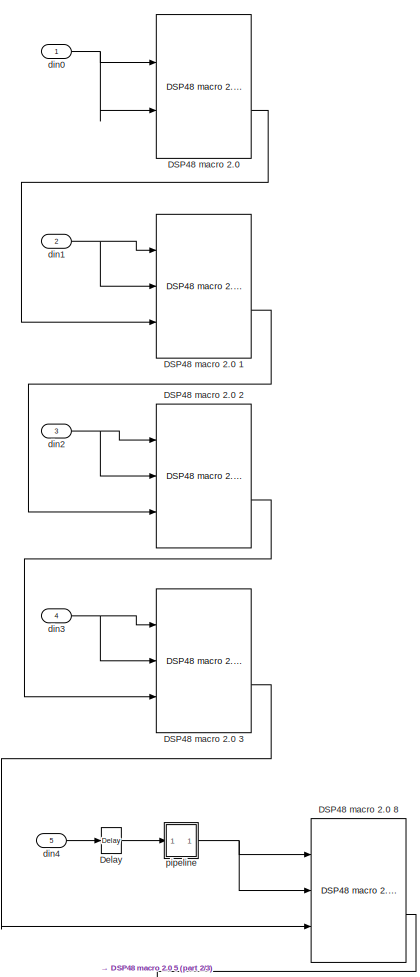
[diagram: adc_preproc_core/calc_adc_sum_sq/pow_add_chain/power_add_4chain4 - part 1/3, top center region]
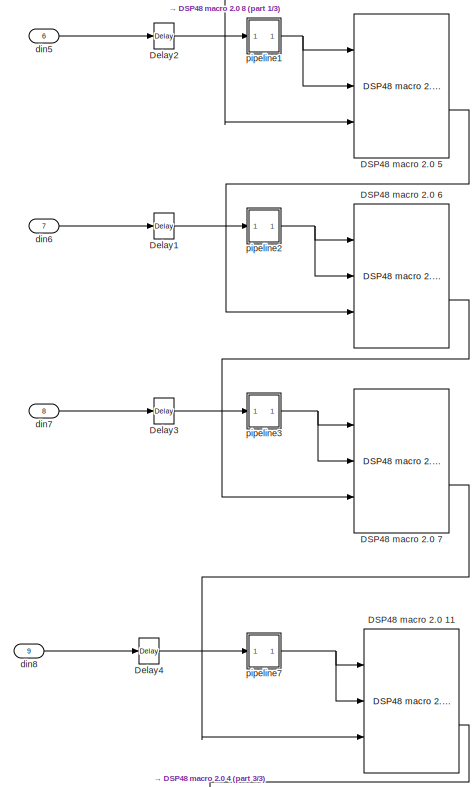
[diagram: adc_preproc_core/calc_adc_sum_sq/pow_add_chain/power_add_4chain4 - part 2/3, central region]
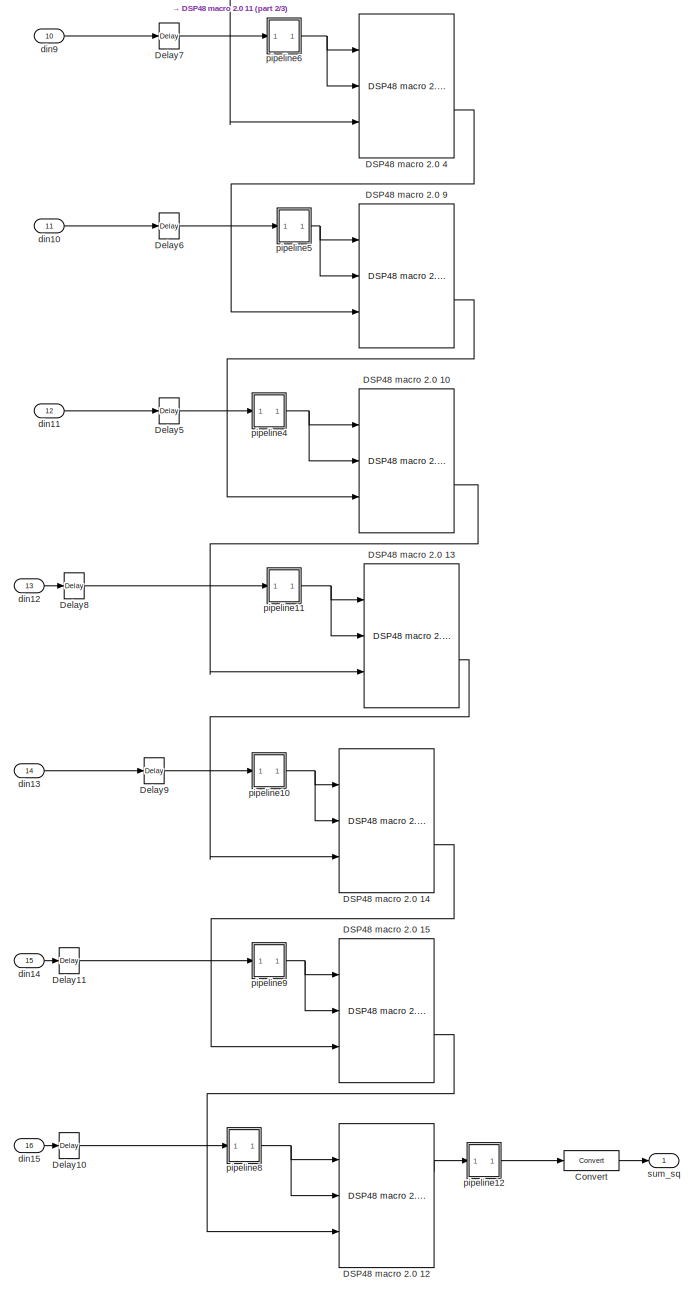
[diagram: adc_preproc_core/calc_adc_sum_sq/pow_add_chain/power_add_4chain4 - part 3/3, full width, bottom band]
BLOCK [SubSystem] adc_preproc_core/calc_adc_sum_sq/pow_add_chain/power_add_4chain4
  FunctionWithSeparateData = off
  MaskHideContents = off
  MinAlgLoopOccurrences = off
  Opaque = off
  Ports = [16, 1]
  PropExecContextOutsideSubsystem = off
  RTWSystemCode = Auto
  RequestExecContextInheritance = off
BLOCK [Reference] adc_preproc_core/calc_adc_sum_sq/pow_add_chain/power_add_4chain4/Convert  REF=xbsIndex_r4/Convert
  Ports = [1, 1]
  SourceBlock = xbsIndex_r4/Convert
  SourceType = Xilinx Type Converter Block
  arith_type = Signed  (2's comp)
  bin_pt = 14
  block_type = convert
  block_version = 11.4
  dbl_ovrd = off
  en = off
  exp_bits = 8
  float_type = Single
  fraction_bits = 24
  gui_display_data_type = Fixed-point
  has_advanced_control = 0
  infoedit = Hardware notes: rounding and saturating require hardware resources; truncating and wrapping do not.
  latency = 0
  n_bits = 20
  overflow = Wrap
  pipeline = off
  quantization = Truncate
  sg_icon_stat = 55,20,1,1,white,blue,0,edca21da,right,,[ ],[ ]
  sg_mask_display = fprintf('','COMMENT: begin icon graphics');\npatch([0 55 55 0 0 ],[0 0 20 20 0 ],[0.77 0.82 0.91 ]);\nplot([0 55 55 0 0 ],[0 0 20 20 0 ]);\npatch([22.55 25.44 27.44 29.44 31.44 27.44 24.55 22.55 ],[12.22 12.22 14.22 12.22 14.22 14.22 14.22 12.22 ],[1 1 1 ]);\npatch([24.55 27.44 25.44 22.55 24.55 ],[10.22 10.22 12.22 12.22 10.22 ],[0.931 0.946 0.973 ]);\npatch([22.55 25.44 27.44 24.55 22.55 ],[8.22 8.22...<+309ch>
  sggui_pos = 145,71,713,759
  xl_area = [0,0,0,0,0,0,0]
  xl_use_area = off
BLOCK [Reference] adc_preproc_core/calc_adc_sum_sq/pow_add_chain/power_add_4chain4/DSP48 macro 2.0   REF=xbsIndex_r4/DSP48 macro 2.0 
  AvailableInstructions = 'A*B\nA*B+C\nA*B+C+CARRYIN\nA*B+CARRYIN\nA*B+P\nA*B+P+CARRYIN\nA*B+P>>17\nA*B+P>>17+CARRYIN\nA*B+PCIN\nA*B+PCIN+CARRYIN\nA*B+PCIN>>17\nA*B+PCIN>>17+CARRYIN\nA*BCIN\nA*BCIN+C\nA*BCIN+C+CARRYIN\nA*BCIN+CARRYIN\nA*BCIN+P\nA*BCIN+P+CARRYIN\nA*BCIN+P>>17\nA*BCIN+P>>17+CARRYIN\nA*BCIN+PCIN\nA*BCIN+PCIN+CARRYIN\nA*BCIN+PCIN>>17\nA*BCIN+PCIN>>17+CARRYIN'
  Ports = [2, 2]
  SourceBlock = xbsIndex_r4/DSP48 macro 2.0
  SourceType = Xilinx DSP48 macro 2.0  Block
  areg_1 = off
  areg_2 = off
  areg_3 = off
  areg_4 = on
  block_type = xbip_dsp48_macro_v2_0
  breg_1 = off
  breg_2 = off
  breg_3 = off
  breg_4 = on
  cinreg_1 = off
  cinreg_2 = off
  cinreg_3 = off
  cinreg_4 = off
  cinreg_5 = off
  concatreg_3 = off
  concatreg_4 = off
  concatreg_5 = off
  creg_1 = off
  creg_2 = off
  creg_3 = off
  creg_4 = off
  creg_5 = off
  dreg_1 = off
  dreg_2 = off
  dreg_3 = off
  dspimage = <!DOCTYPE HTML PUBLIC "-//W3C//DTD HTML 4.0//EN" "http://www.w3.org/TR/REC-html40/strict.dtd">\n<html><head><meta name="qrichtext" content="1" /><style type="text/css">\np, li { white-space: pre-wrap; }\n</style></head><body style=" font-family:'Ubuntu'; font-size:11pt; font-weight:400; font-style:normal;">\n<p style=" margin-top:0px; margin-bottom:0px; margin-left:0px; margin-right:0px; -qt-block-ind...<+137ch>  <repeated x13 — deduplicated; at blocks: DSP48 macro 2.0, DSP48 macro 2.0 1, DSP48 macro 2.0 10, DSP48 macro 2.0 12, DSP48 macro 2.0 14, DSP48 macro 2.0 15, DSP48 macro 2.0 2, DSP48 macro 2.0 3, DSP48 macro 2.0 4, DSP48 macro 2.0 5, DSP48 macro 2.0 6, DSP48 macro 2.0 7, DSP48 macro 2.0 9>
  dsptool_ready = true
  gui_behaviour = Sysgen
  has_acout = off
  has_advanced_control = 0
  has_bcout = off
  has_carrycascout = off
  has_carryout = off
  has_ce = off
  has_pcout = on
  has_sclr = off
  infoedit = <html>Valid operands: CONCAT, P, C, PCIN, P>>17, PCIN>>17, CARRYIN, CARRYCASCIN, ACIN, A, BCIN,B<br><br>Valid operators: +, -, *, ()<br><br>Valid functions: RNDSIMPLE, RNDSYM<br><br>Instructions are case insensitive and tolerate spaces.</html>  <repeated x16 — deduplicated; at blocks: DSP48 macro 2.0, DSP48 macro 2.0 1, DSP48 macro 2.0 10, DSP48 macro 2.0 11, DSP48 macro 2.0 12, DSP48 macro 2.0 13, DSP48 macro 2.0 14, DSP48 macro 2.0 15, DSP48 macro 2.0 2, DSP48 macro 2.0 3, DSP48 macro 2.0 4, DSP48 macro 2.0 5, DSP48 macro 2.0 6, DSP48 macro 2.0 7, DSP48 macro 2.0 8, DSP48 macro 2.0 9>
  instruction1 = #
  instruction_list = A*B
  ip_name = DSP48 macro
  ip_version = 2.0
  ipcore_fpga_part = xlipgetpartsetting(gcb, {'virtex4', 'xc4vsx35', '-10', 'ff668'})
  ipcore_latency_function = 'has_combinational'
  ipcore_port_config = { 'carryin' => { 'arith' => 'ufix', 'binpt' => 0.00000000000, 'width' => 1.00000000000}, 'carrycascin' => { 'arith' => 'ufix', 'binpt' => 0.00000000000, 'width' => 1.00000000000}, 'carrycascout' => { 'arith' => 'ufix', 'binpt' => 0.00000000000, 'width' => 1.00000000000}, 'carryout' => { 'arith' => 'ufix', 'binpt' => 0.00000000000, 'width' => 1.00000000000}}  <repeated x16 — deduplicated; at blocks: DSP48 macro 2.0, DSP48 macro 2.0 1, DSP48 macro 2.0 10, DSP48 macro 2.0 11, DSP48 macro 2.0 12, DSP48 macro 2.0 13, DSP48 macro 2.0 14, DSP48 macro 2.0 15, DSP48 macro 2.0 2, DSP48 macro 2.0 3, DSP48 macro 2.0 4, DSP48 macro 2.0 5, DSP48 macro 2.0 6, DSP48 macro 2.0 7, DSP48 macro 2.0 8, DSP48 macro 2.0 9>
  ipcore_usecache = true
  ipcore_useipmodelcache = true
  ipcore_verbose = false
  ipcore_xco_need_fpga_part = true
  mreg_5 = on
  opreg_1 = off
  opreg_2 = off
  opreg_3 = off
  opreg_4 = off
  opreg_5 = off
  output_properties = Full_Precision
  p_binarywidth = 0
  p_width = 36
  pipeline_options = By_Tier
  port_translation_map = { 'ce' => 'en', 'sclr' => 'rst'}
  preg_6 = on
  sg_icon_stat = 95,144,2,2,white,blue,0,46cd5c04,right,,[ ],[ ]
  sg_mask_display = fprintf('','COMMENT: begin icon graphics');\npatch([0 95 95 0 0 ],[0 0 144 144 0 ],[0.77 0.82 0.91 ]);\nplot([0 95 95 0 0 ],[0 0 144 144 0 ]);\npatch([18.075 36.86 49.86 62.86 75.86 49.86 31.075 18.075 ],[86.43 86.43 99.43 86.43 99.43 99.43 99.43 86.43 ],[1 1 1 ]);\npatch([31.075 49.86 36.86 18.075 31.075 ],[73.43 73.43 86.43 86.43 73.43 ],[0.931 0.946 0.973 ]);\npatch([18.075 36.86 49.86 31.075 18.075...<+462ch>
  sggui_pos = 543,135,682,655
  show_filtered = on
  structural_sim = false
  tier_1 = off
  tier_2 = off
  tier_3 = off
  tier_4 = on
  tier_5 = on
  tier_6 = on
  use_dsp48 = on
  wrapper_available = true
BLOCK [Reference] adc_preproc_core/calc_adc_sum_sq/pow_add_chain/power_add_4chain4/DSP48 macro 2.0 1  REF=xbsIndex_r4/DSP48 macro 2.0 
  AvailableInstructions = 'A*B+PCIN\nA*B+PCIN+CARRYIN\nA*B+PCIN>>17\nA*B+PCIN>>17+CARRYIN'
  Ports = [3, 2]
  SourceBlock = xbsIndex_r4/DSP48 macro 2.0
  SourceType = Xilinx DSP48 macro 2.0  Block
  areg_1 = off
  areg_2 = off
  areg_3 = on
  areg_4 = on
  block_type = xbip_dsp48_macro_v2_0
  breg_1 = off
  breg_2 = off
  breg_3 = on
  breg_4 = on
  cinreg_1 = off
  cinreg_2 = off
  cinreg_3 = off
  cinreg_4 = off
  cinreg_5 = off
  concatreg_3 = off
  concatreg_4 = off
  concatreg_5 = off
  creg_1 = off
  creg_2 = off
  creg_3 = off
  creg_4 = off
  creg_5 = off
  dreg_1 = off
  dreg_2 = off
  dreg_3 = off
  dsptool_ready = true
  gui_behaviour = Sysgen
  has_acout = off
  has_advanced_control = 0
  has_bcout = off
  has_carrycascout = off
  has_carryout = off
  has_ce = off
  has_pcout = on
  has_sclr = off
  instruction1 = #
  instruction_list = A*B+PCIN
  ip_name = DSP48 macro
  ip_version = 2.0
  ipcore_fpga_part = xlipgetpartsetting(gcb, {'virtex4', 'xc4vsx35', '-10', 'ff668'})
  ipcore_latency_function = 'has_combinational'
  ipcore_usecache = true
  ipcore_useipmodelcache = true
  ipcore_verbose = false
  ipcore_xco_need_fpga_part = true
  mreg_5 = on
  opreg_1 = off
  opreg_2 = off
  opreg_3 = off
  opreg_4 = off
  opreg_5 = off
  output_properties = Full_Precision
  p_binarywidth = 0
  p_width = 48
  pipeline_options = By_Tier
  port_translation_map = { 'ce' => 'en', 'sclr' => 'rst'}
  preg_6 = on
  sg_icon_stat = 95,144,3,2,white,blue,0,5313d075,right,,[ ],[ ]
  sg_mask_display = fprintf('','COMMENT: begin icon graphics');\npatch([0 95 95 0 0 ],[0 0 144 144 0 ],[0.77 0.82 0.91 ]);\nplot([0 95 95 0 0 ],[0 0 144 144 0 ]);\npatch([18.075 36.86 49.86 62.86 75.86 49.86 31.075 18.075 ],[86.43 86.43 99.43 86.43 99.43 99.43 99.43 86.43 ],[1 1 1 ]);\npatch([31.075 49.86 36.86 18.075 31.075 ],[73.43 73.43 86.43 86.43 73.43 ],[0.931 0.946 0.973 ]);\npatch([18.075 36.86 49.86 31.075 18.075...<+507ch>  <repeated x15 — deduplicated; at blocks: DSP48 macro 2.0 1, DSP48 macro 2.0 10, DSP48 macro 2.0 11, DSP48 macro 2.0 12, DSP48 macro 2.0 13, DSP48 macro 2.0 14, DSP48 macro 2.0 15, DSP48 macro 2.0 2, DSP48 macro 2.0 3, DSP48 macro 2.0 4, DSP48 macro 2.0 5, DSP48 macro 2.0 6, DSP48 macro 2.0 7, DSP48 macro 2.0 8, DSP48 macro 2.0 9>
  sggui_pos = 543,135,1165,847
  show_filtered = on
  structural_sim = false
  tier_1 = off
  tier_2 = off
  tier_3 = on
  tier_4 = on
  tier_5 = on
  tier_6 = on
  use_dsp48 = on
  wrapper_available = true
BLOCK [Reference] adc_preproc_core/calc_adc_sum_sq/pow_add_chain/power_add_4chain4/DSP48 macro 2.0 10  REF=xbsIndex_r4/DSP48 macro 2.0 
  AvailableInstructions = 'A*B+PCIN\nA*B+PCIN+CARRYIN\nA*B+PCIN>>17\nA*B+PCIN>>17+CARRYIN'
  Ports = [3, 2]
  SourceBlock = xbsIndex_r4/DSP48 macro 2.0
  SourceType = Xilinx DSP48 macro 2.0  Block
  areg_1 = on
  areg_2 = on
  areg_3 = on
  areg_4 = on
  block_type = xbip_dsp48_macro_v2_0
  breg_1 = on
  breg_2 = on
  breg_3 = on
  breg_4 = on
  cinreg_1 = off
  cinreg_2 = off
  cinreg_3 = off
  cinreg_4 = off
  cinreg_5 = off
  concatreg_3 = off
  concatreg_4 = off
  concatreg_5 = off
  creg_1 = off
  creg_2 = off
  creg_3 = off
  creg_4 = off
  creg_5 = off
  dreg_1 = off
  dreg_2 = off
  dreg_3 = off
  dsptool_ready = true
  gui_behaviour = Sysgen
  has_acout = off
  has_advanced_control = 0
  has_bcout = off
  has_carrycascout = off
  has_carryout = off
  has_ce = off
  has_pcout = on
  has_sclr = off
  instruction1 = #
  instruction_list = A*B+PCIN
  ip_name = DSP48 macro
  ip_version = 2.0
  ipcore_fpga_part = xlipgetpartsetting(gcb, {'virtex4', 'xc4vsx35', '-10', 'ff668'})
  ipcore_latency_function = 'has_combinational'
  ipcore_usecache = true
  ipcore_useipmodelcache = true
  ipcore_verbose = false
  ipcore_xco_need_fpga_part = true
  mreg_5 = on
  opreg_1 = off
  opreg_2 = off
  opreg_3 = off
  opreg_4 = off
  opreg_5 = off
  output_properties = Full_Precision
  p_binarywidth = 0
  p_width = 48
  pipeline_options = By_Tier
  port_translation_map = { 'ce' => 'en', 'sclr' => 'rst'}
  preg_6 = on
  sg_icon_stat = 95,144,3,2,white,blue,0,5313d075,right,,[ ],[ ]
  sggui_pos = 522,114,1165,847
  show_filtered = on
  structural_sim = false
  tier_1 = on
  tier_2 = on
  tier_3 = on
  tier_4 = on
  tier_5 = on
  tier_6 = on
  use_dsp48 = on
  wrapper_available = true
BLOCK [Reference] adc_preproc_core/calc_adc_sum_sq/pow_add_chain/power_add_4chain4/DSP48 macro 2.0 11  REF=xbsIndex_r4/DSP48 macro 2.0 
  AvailableInstructions = 'A*B+PCIN\nA*B+PCIN+CARRYIN\nA*B+PCIN>>17\nA*B+PCIN>>17+CARRYIN'
  Ports = [3, 2]
  SourceBlock = xbsIndex_r4/DSP48 macro 2.0
  SourceType = Xilinx DSP48 macro 2.0  Block
  areg_1 = off
  areg_2 = off
  areg_3 = off
  areg_4 = on
  block_type = xbip_dsp48_macro_v2_0
  breg_1 = off
  breg_2 = off
  breg_3 = off
  breg_4 = on
  cinreg_1 = off
  cinreg_2 = off
  cinreg_3 = off
  cinreg_4 = off
  cinreg_5 = off
  concatreg_3 = off
  concatreg_4 = off
  concatreg_5 = off
  creg_1 = off
  creg_2 = off
  creg_3 = off
  creg_4 = off
  creg_5 = off
  dreg_1 = off
  dreg_2 = off
  dreg_3 = off
  dspimage = <!DOCTYPE HTML PUBLIC "-//W3C//DTD HTML 4.0//EN" "http://www.w3.org/TR/REC-html40/strict.dtd">\n<html><head><meta name="qrichtext" content="1" /><style type="text/css">\np, li { white-space: pre-wrap; }\n</style></head><body style=" font-family:'Sans Serif'; font-size:12pt; font-weight:400; font-style:normal;">\n<p style=" margin-top:0px; margin-bottom:0px; margin-left:0px; margin-right:0px; -qt-block...<+141ch>  <repeated x3 — deduplicated; at blocks: DSP48 macro 2.0 11, DSP48 macro 2.0 13, DSP48 macro 2.0 8>
  dsptool_ready = true
  gui_behaviour = Sysgen
  has_acout = off
  has_advanced_control = 0
  has_bcout = off
  has_carrycascout = off
  has_carryout = off
  has_ce = off
  has_pcout = on
  has_sclr = off
  instruction1 = #
  instruction_list = A*B+PCIN
  ip_name = DSP48 macro
  ip_version = 2.0
  ipcore_fpga_part = xlipgetpartsetting(gcb, {'virtex4', 'xc4vsx35', '-10', 'ff668'})
  ipcore_latency_function = 'has_combinational'
  ipcore_usecache = true
  ipcore_useipmodelcache = true
  ipcore_verbose = false
  ipcore_xco_need_fpga_part = true
  mreg_5 = on
  opreg_1 = off
  opreg_2 = off
  opreg_3 = off
  opreg_4 = off
  opreg_5 = off
  output_properties = Full_Precision
  p_binarywidth = 0
  p_width = 48
  pipeline_options = By_Tier
  port_translation_map = { 'ce' => 'en', 'sclr' => 'rst'}
  preg_6 = on
  sg_icon_stat = 95,144,3,2,white,blue,0,5313d075,right,,[ ],[ ]
  sggui_pos = 143,39,682,655
  show_filtered = on
  structural_sim = false
  tier_1 = off
  tier_2 = off
  tier_3 = off
  tier_4 = on
  tier_5 = on
  tier_6 = on
  use_dsp48 = on
  wrapper_available = true
BLOCK [Reference] adc_preproc_core/calc_adc_sum_sq/pow_add_chain/power_add_4chain4/DSP48 macro 2.0 12  REF=xbsIndex_r4/DSP48 macro 2.0 
  AvailableInstructions = 'A*B+PCIN\nA*B+PCIN+CARRYIN\nA*B+PCIN>>17\nA*B+PCIN>>17+CARRYIN'
  Ports = [3, 2]
  SourceBlock = xbsIndex_r4/DSP48 macro 2.0
  SourceType = Xilinx DSP48 macro 2.0  Block
  areg_1 = on
  areg_2 = on
  areg_3 = on
  areg_4 = on
  block_type = xbip_dsp48_macro_v2_0
  breg_1 = on
  breg_2 = on
  breg_3 = on
  breg_4 = on
  cinreg_1 = off
  cinreg_2 = off
  cinreg_3 = off
  cinreg_4 = off
  cinreg_5 = off
  concatreg_3 = off
  concatreg_4 = off
  concatreg_5 = off
  creg_1 = off
  creg_2 = off
  creg_3 = off
  creg_4 = off
  creg_5 = off
  dreg_1 = off
  dreg_2 = off
  dreg_3 = off
  dsptool_ready = true
  gui_behaviour = Sysgen
  has_acout = off
  has_advanced_control = 0
  has_bcout = off
  has_carrycascout = off
  has_carryout = off
  has_ce = off
  has_pcout = on
  has_sclr = off
  instruction1 = #
  instruction_list = A*B+PCIN
  ip_name = DSP48 macro
  ip_version = 2.0
  ipcore_fpga_part = xlipgetpartsetting(gcb, {'virtex4', 'xc4vsx35', '-10', 'ff668'})
  ipcore_latency_function = 'has_combinational'
  ipcore_usecache = true
  ipcore_useipmodelcache = true
  ipcore_verbose = false
  ipcore_xco_need_fpga_part = true
  mreg_5 = on
  opreg_1 = off
  opreg_2 = off
  opreg_3 = off
  opreg_4 = off
  opreg_5 = off
  output_properties = Full_Precision
  p_binarywidth = 0
  p_width = 48
  pipeline_options = By_Tier
  port_translation_map = { 'ce' => 'en', 'sclr' => 'rst'}
  preg_6 = on
  sg_icon_stat = 95,144,3,2,white,blue,0,5313d075,right,,[ ],[ ]
  sggui_pos = 522,114,1165,847
  show_filtered = on
  structural_sim = false
  tier_1 = on
  tier_2 = on
  tier_3 = on
  tier_4 = on
  tier_5 = on
  tier_6 = on
  use_dsp48 = on
  wrapper_available = true
BLOCK [Reference] adc_preproc_core/calc_adc_sum_sq/pow_add_chain/power_add_4chain4/DSP48 macro 2.0 13  REF=xbsIndex_r4/DSP48 macro 2.0 
  AvailableInstructions = 'A*B+PCIN\nA*B+PCIN+CARRYIN\nA*B+PCIN>>17\nA*B+PCIN>>17+CARRYIN'
  Ports = [3, 2]
  SourceBlock = xbsIndex_r4/DSP48 macro 2.0
  SourceType = Xilinx DSP48 macro 2.0  Block
  areg_1 = off
  areg_2 = off
  areg_3 = off
  areg_4 = on
  block_type = xbip_dsp48_macro_v2_0
  breg_1 = off
  breg_2 = off
  breg_3 = off
  breg_4 = on
  cinreg_1 = off
  cinreg_2 = off
  cinreg_3 = off
  cinreg_4 = off
  cinreg_5 = off
  concatreg_3 = off
  concatreg_4 = off
  concatreg_5 = off
  creg_1 = off
  creg_2 = off
  creg_3 = off
  creg_4 = off
  creg_5 = off
  dreg_1 = off
  dreg_2 = off
  dreg_3 = off
  dsptool_ready = true
  gui_behaviour = Sysgen
  has_acout = off
  has_advanced_control = 0
  has_bcout = off
  has_carrycascout = off
  has_carryout = off
  has_ce = off
  has_pcout = on
  has_sclr = off
  instruction1 = #
  instruction_list = A*B+PCIN
  ip_name = DSP48 macro
  ip_version = 2.0
  ipcore_fpga_part = xlipgetpartsetting(gcb, {'virtex4', 'xc4vsx35', '-10', 'ff668'})
  ipcore_latency_function = 'has_combinational'
  ipcore_usecache = true
  ipcore_useipmodelcache = true
  ipcore_verbose = false
  ipcore_xco_need_fpga_part = true
  mreg_5 = on
  opreg_1 = off
  opreg_2 = off
  opreg_3 = off
  opreg_4 = off
  opreg_5 = off
  output_properties = Full_Precision
  p_binarywidth = 0
  p_width = 48
  pipeline_options = By_Tier
  port_translation_map = { 'ce' => 'en', 'sclr' => 'rst'}
  preg_6 = on
  sg_icon_stat = 95,144,3,2,white,blue,0,5313d075,right,,[ ],[ ]
  sggui_pos = 143,39,682,655
  show_filtered = on
  structural_sim = false
  tier_1 = off
  tier_2 = off
  tier_3 = off
  tier_4 = on
  tier_5 = on
  tier_6 = on
  use_dsp48 = on
  wrapper_available = true
BLOCK [Reference] adc_preproc_core/calc_adc_sum_sq/pow_add_chain/power_add_4chain4/DSP48 macro 2.0 14  REF=xbsIndex_r4/DSP48 macro 2.0 
  AvailableInstructions = 'A*B+PCIN\nA*B+PCIN+CARRYIN\nA*B+PCIN>>17\nA*B+PCIN>>17+CARRYIN'
  Ports = [3, 2]
  SourceBlock = xbsIndex_r4/DSP48 macro 2.0
  SourceType = Xilinx DSP48 macro 2.0  Block
  areg_1 = off
  areg_2 = off
  areg_3 = on
  areg_4 = on
  block_type = xbip_dsp48_macro_v2_0
  breg_1 = off
  breg_2 = off
  breg_3 = on
  breg_4 = on
  cinreg_1 = off
  cinreg_2 = off
  cinreg_3 = off
  cinreg_4 = off
  cinreg_5 = off
  concatreg_3 = off
  concatreg_4 = off
  concatreg_5 = off
  creg_1 = off
  creg_2 = off
  creg_3 = off
  creg_4 = off
  creg_5 = off
  dreg_1 = off
  dreg_2 = off
  dreg_3 = off
  dsptool_ready = true
  gui_behaviour = Sysgen
  has_acout = off
  has_advanced_control = 0
  has_bcout = off
  has_carrycascout = off
  has_carryout = off
  has_ce = off
  has_pcout = on
  has_sclr = off
  instruction1 = #
  instruction_list = A*B+PCIN
  ip_name = DSP48 macro
  ip_version = 2.0
  ipcore_fpga_part = xlipgetpartsetting(gcb, {'virtex4', 'xc4vsx35', '-10', 'ff668'})
  ipcore_latency_function = 'has_combinational'
  ipcore_usecache = true
  ipcore_useipmodelcache = true
  ipcore_verbose = false
  ipcore_xco_need_fpga_part = true
  mreg_5 = on
  opreg_1 = off
  opreg_2 = off
  opreg_3 = off
  opreg_4 = off
  opreg_5 = off
  output_properties = Full_Precision
  p_binarywidth = 0
  p_width = 48
  pipeline_options = By_Tier
  port_translation_map = { 'ce' => 'en', 'sclr' => 'rst'}
  preg_6 = on
  sg_icon_stat = 95,144,3,2,white,blue,0,5313d075,right,,[ ],[ ]
  sggui_pos = 543,135,1165,847
  show_filtered = on
  structural_sim = false
  tier_1 = off
  tier_2 = off
  tier_3 = on
  tier_4 = on
  tier_5 = on
  tier_6 = on
  use_dsp48 = on
  wrapper_available = true
BLOCK [Reference] adc_preproc_core/calc_adc_sum_sq/pow_add_chain/power_add_4chain4/DSP48 macro 2.0 15  REF=xbsIndex_r4/DSP48 macro 2.0 
  AvailableInstructions = 'A*B+PCIN\nA*B+PCIN+CARRYIN\nA*B+PCIN>>17\nA*B+PCIN>>17+CARRYIN'
  Ports = [3, 2]
  SourceBlock = xbsIndex_r4/DSP48 macro 2.0
  SourceType = Xilinx DSP48 macro 2.0  Block
  areg_1 = off
  areg_2 = on
  areg_3 = on
  areg_4 = on
  block_type = xbip_dsp48_macro_v2_0
  breg_1 = off
  breg_2 = on
  breg_3 = on
  breg_4 = on
  cinreg_1 = off
  cinreg_2 = off
  cinreg_3 = off
  cinreg_4 = off
  cinreg_5 = off
  concatreg_3 = off
  concatreg_4 = off
  concatreg_5 = off
  creg_1 = off
  creg_2 = off
  creg_3 = off
  creg_4 = off
  creg_5 = off
  dreg_1 = off
  dreg_2 = off
  dreg_3 = off
  dsptool_ready = true
  gui_behaviour = Sysgen
  has_acout = off
  has_advanced_control = 0
  has_bcout = off
  has_carrycascout = off
  has_carryout = off
  has_ce = off
  has_pcout = on
  has_sclr = off
  instruction1 = #
  instruction_list = A*B+PCIN
  ip_name = DSP48 macro
  ip_version = 2.0
  ipcore_fpga_part = xlipgetpartsetting(gcb, {'virtex4', 'xc4vsx35', '-10', 'ff668'})
  ipcore_latency_function = 'has_combinational'
  ipcore_usecache = true
  ipcore_useipmodelcache = true
  ipcore_verbose = false
  ipcore_xco_need_fpga_part = true
  mreg_5 = on
  opreg_1 = off
  opreg_2 = off
  opreg_3 = off
  opreg_4 = off
  opreg_5 = off
  output_properties = Full_Precision
  p_binarywidth = 0
  p_width = 48
  pipeline_options = By_Tier
  port_translation_map = { 'ce' => 'en', 'sclr' => 'rst'}
  preg_6 = on
  sg_icon_stat = 95,144,3,2,white,blue,0,5313d075,right,,[ ],[ ]
  sggui_pos = 536,128,1165,847
  show_filtered = on
  structural_sim = false
  tier_1 = off
  tier_2 = on
  tier_3 = on
  tier_4 = on
  tier_5 = on
  tier_6 = on
  use_dsp48 = on
  wrapper_available = true
BLOCK [Reference] adc_preproc_core/calc_adc_sum_sq/pow_add_chain/power_add_4chain4/DSP48 macro 2.0 2  REF=xbsIndex_r4/DSP48 macro 2.0 
  AvailableInstructions = 'A*B+PCIN\nA*B+PCIN+CARRYIN\nA*B+PCIN>>17\nA*B+PCIN>>17+CARRYIN'
  Ports = [3, 2]
  SourceBlock = xbsIndex_r4/DSP48 macro 2.0
  SourceType = Xilinx DSP48 macro 2.0  Block
  areg_1 = off
  areg_2 = on
  areg_3 = on
  areg_4 = on
  block_type = xbip_dsp48_macro_v2_0
  breg_1 = off
  breg_2 = on
  breg_3 = on
  breg_4 = on
  cinreg_1 = off
  cinreg_2 = off
  cinreg_3 = off
  cinreg_4 = off
  cinreg_5 = off
  concatreg_3 = off
  concatreg_4 = off
  concatreg_5 = off
  creg_1 = off
  creg_2 = off
  creg_3 = off
  creg_4 = off
  creg_5 = off
  dreg_1 = off
  dreg_2 = off
  dreg_3 = off
  dsptool_ready = true
  gui_behaviour = Sysgen
  has_acout = off
  has_advanced_control = 0
  has_bcout = off
  has_carrycascout = off
  has_carryout = off
  has_ce = off
  has_pcout = on
  has_sclr = off
  instruction1 = #
  instruction_list = A*B+PCIN
  ip_name = DSP48 macro
  ip_version = 2.0
  ipcore_fpga_part = xlipgetpartsetting(gcb, {'virtex4', 'xc4vsx35', '-10', 'ff668'})
  ipcore_latency_function = 'has_combinational'
  ipcore_usecache = true
  ipcore_useipmodelcache = true
  ipcore_verbose = false
  ipcore_xco_need_fpga_part = true
  mreg_5 = on
  opreg_1 = off
  opreg_2 = off
  opreg_3 = off
  opreg_4 = off
  opreg_5 = off
  output_properties = Full_Precision
  p_binarywidth = 0
  p_width = 48
  pipeline_options = By_Tier
  port_translation_map = { 'ce' => 'en', 'sclr' => 'rst'}
  preg_6 = on
  sg_icon_stat = 95,144,3,2,white,blue,0,5313d075,right,,[ ],[ ]
  sggui_pos = 536,128,1165,847
  show_filtered = on
  structural_sim = false
  tier_1 = off
  tier_2 = on
  tier_3 = on
  tier_4 = on
  tier_5 = on
  tier_6 = on
  use_dsp48 = on
  wrapper_available = true
BLOCK [Reference] adc_preproc_core/calc_adc_sum_sq/pow_add_chain/power_add_4chain4/DSP48 macro 2.0 3  REF=xbsIndex_r4/DSP48 macro 2.0 
  AvailableInstructions = 'A*B+PCIN\nA*B+PCIN+CARRYIN\nA*B+PCIN>>17\nA*B+PCIN>>17+CARRYIN'
  Ports = [3, 2]
  SourceBlock = xbsIndex_r4/DSP48 macro 2.0
  SourceType = Xilinx DSP48 macro 2.0  Block
  areg_1 = on
  areg_2 = on
  areg_3 = on
  areg_4 = on
  block_type = xbip_dsp48_macro_v2_0
  breg_1 = on
  breg_2 = on
  breg_3 = on
  breg_4 = on
  cinreg_1 = off
  cinreg_2 = off
  cinreg_3 = off
  cinreg_4 = off
  cinreg_5 = off
  concatreg_3 = off
  concatreg_4 = off
  concatreg_5 = off
  creg_1 = off
  creg_2 = off
  creg_3 = off
  creg_4 = off
  creg_5 = off
  dreg_1 = off
  dreg_2 = off
  dreg_3 = off
  dsptool_ready = true
  gui_behaviour = Sysgen
  has_acout = off
  has_advanced_control = 0
  has_bcout = off
  has_carrycascout = off
  has_carryout = off
  has_ce = off
  has_pcout = on
  has_sclr = off
  instruction1 = #
  instruction_list = A*B+PCIN
  ip_name = DSP48 macro
  ip_version = 2.0
  ipcore_fpga_part = xlipgetpartsetting(gcb, {'virtex4', 'xc4vsx35', '-10', 'ff668'})
  ipcore_latency_function = 'has_combinational'
  ipcore_usecache = true
  ipcore_useipmodelcache = true
  ipcore_verbose = false
  ipcore_xco_need_fpga_part = true
  mreg_5 = on
  opreg_1 = off
  opreg_2 = off
  opreg_3 = off
  opreg_4 = off
  opreg_5 = off
  output_properties = Full_Precision
  p_binarywidth = 0
  p_width = 48
  pipeline_options = By_Tier
  port_translation_map = { 'ce' => 'en', 'sclr' => 'rst'}
  preg_6 = on
  sg_icon_stat = 95,144,3,2,white,blue,0,5313d075,right,,[ ],[ ]
  sggui_pos = 522,114,1165,847
  show_filtered = on
  structural_sim = false
  tier_1 = on
  tier_2 = on
  tier_3 = on
  tier_4 = on
  tier_5 = on
  tier_6 = on
  use_dsp48 = on
  wrapper_available = true
BLOCK [Reference] adc_preproc_core/calc_adc_sum_sq/pow_add_chain/power_add_4chain4/DSP48 macro 2.0 4  REF=xbsIndex_r4/DSP48 macro 2.0 
  AvailableInstructions = 'A*B+PCIN\nA*B+PCIN+CARRYIN\nA*B+PCIN>>17\nA*B+PCIN>>17+CARRYIN'
  Ports = [3, 2]
  SourceBlock = xbsIndex_r4/DSP48 macro 2.0
  SourceType = Xilinx DSP48 macro 2.0  Block
  areg_1 = off
  areg_2 = off
  areg_3 = on
  areg_4 = on
  block_type = xbip_dsp48_macro_v2_0
  breg_1 = off
  breg_2 = off
  breg_3 = on
  breg_4 = on
  cinreg_1 = off
  cinreg_2 = off
  cinreg_3 = off
  cinreg_4 = off
  cinreg_5 = off
  concatreg_3 = off
  concatreg_4 = off
  concatreg_5 = off
  creg_1 = off
  creg_2 = off
  creg_3 = off
  creg_4 = off
  creg_5 = off
  dreg_1 = off
  dreg_2 = off
  dreg_3 = off
  dsptool_ready = true
  gui_behaviour = Sysgen
  has_acout = off
  has_advanced_control = 0
  has_bcout = off
  has_carrycascout = off
  has_carryout = off
  has_ce = off
  has_pcout = on
  has_sclr = off
  instruction1 = #
  instruction_list = A*B+PCIN
  ip_name = DSP48 macro
  ip_version = 2.0
  ipcore_fpga_part = xlipgetpartsetting(gcb, {'virtex4', 'xc4vsx35', '-10', 'ff668'})
  ipcore_latency_function = 'has_combinational'
  ipcore_usecache = true
  ipcore_useipmodelcache = true
  ipcore_verbose = false
  ipcore_xco_need_fpga_part = true
  mreg_5 = on
  opreg_1 = off
  opreg_2 = off
  opreg_3 = off
  opreg_4 = off
  opreg_5 = off
  output_properties = Full_Precision
  p_binarywidth = 0
  p_width = 48
  pipeline_options = By_Tier
  port_translation_map = { 'ce' => 'en', 'sclr' => 'rst'}
  preg_6 = on
  sg_icon_stat = 95,144,3,2,white,blue,0,5313d075,right,,[ ],[ ]
  sggui_pos = 543,135,1165,847
  show_filtered = on
  structural_sim = false
  tier_1 = off
  tier_2 = off
  tier_3 = on
  tier_4 = on
  tier_5 = on
  tier_6 = on
  use_dsp48 = on
  wrapper_available = true
BLOCK [Reference] adc_preproc_core/calc_adc_sum_sq/pow_add_chain/power_add_4chain4/DSP48 macro 2.0 5  REF=xbsIndex_r4/DSP48 macro 2.0 
  AvailableInstructions = 'A*B+PCIN\nA*B+PCIN+CARRYIN\nA*B+PCIN>>17\nA*B+PCIN>>17+CARRYIN'
  Ports = [3, 2]
  SourceBlock = xbsIndex_r4/DSP48 macro 2.0
  SourceType = Xilinx DSP48 macro 2.0  Block
  areg_1 = off
  areg_2 = off
  areg_3 = on
  areg_4 = on
  block_type = xbip_dsp48_macro_v2_0
  breg_1 = off
  breg_2 = off
  breg_3 = on
  breg_4 = on
  cinreg_1 = off
  cinreg_2 = off
  cinreg_3 = off
  cinreg_4 = off
  cinreg_5 = off
  concatreg_3 = off
  concatreg_4 = off
  concatreg_5 = off
  creg_1 = off
  creg_2 = off
  creg_3 = off
  creg_4 = off
  creg_5 = off
  dreg_1 = off
  dreg_2 = off
  dreg_3 = off
  dsptool_ready = true
  gui_behaviour = Sysgen
  has_acout = off
  has_advanced_control = 0
  has_bcout = off
  has_carrycascout = off
  has_carryout = off
  has_ce = off
  has_pcout = on
  has_sclr = off
  instruction1 = #
  instruction_list = A*B+PCIN
  ip_name = DSP48 macro
  ip_version = 2.0
  ipcore_fpga_part = xlipgetpartsetting(gcb, {'virtex4', 'xc4vsx35', '-10', 'ff668'})
  ipcore_latency_function = 'has_combinational'
  ipcore_usecache = true
  ipcore_useipmodelcache = true
  ipcore_verbose = false
  ipcore_xco_need_fpga_part = true
  mreg_5 = on
  opreg_1 = off
  opreg_2 = off
  opreg_3 = off
  opreg_4 = off
  opreg_5 = off
  output_properties = Full_Precision
  p_binarywidth = 0
  p_width = 48
  pipeline_options = By_Tier
  port_translation_map = { 'ce' => 'en', 'sclr' => 'rst'}
  preg_6 = on
  sg_icon_stat = 95,144,3,2,white,blue,0,5313d075,right,,[ ],[ ]
  sggui_pos = 543,135,1165,847
  show_filtered = on
  structural_sim = false
  tier_1 = off
  tier_2 = off
  tier_3 = on
  tier_4 = on
  tier_5 = on
  tier_6 = on
  use_dsp48 = on
  wrapper_available = true
BLOCK [Reference] adc_preproc_core/calc_adc_sum_sq/pow_add_chain/power_add_4chain4/DSP48 macro 2.0 6  REF=xbsIndex_r4/DSP48 macro 2.0 
  AvailableInstructions = 'A*B+PCIN\nA*B+PCIN+CARRYIN\nA*B+PCIN>>17\nA*B+PCIN>>17+CARRYIN'
  Ports = [3, 2]
  SourceBlock = xbsIndex_r4/DSP48 macro 2.0
  SourceType = Xilinx DSP48 macro 2.0  Block
  areg_1 = off
  areg_2 = on
  areg_3 = on
  areg_4 = on
  block_type = xbip_dsp48_macro_v2_0
  breg_1 = off
  breg_2 = on
  breg_3 = on
  breg_4 = on
  cinreg_1 = off
  cinreg_2 = off
  cinreg_3 = off
  cinreg_4 = off
  cinreg_5 = off
  concatreg_3 = off
  concatreg_4 = off
  concatreg_5 = off
  creg_1 = off
  creg_2 = off
  creg_3 = off
  creg_4 = off
  creg_5 = off
  dreg_1 = off
  dreg_2 = off
  dreg_3 = off
  dsptool_ready = true
  gui_behaviour = Sysgen
  has_acout = off
  has_advanced_control = 0
  has_bcout = off
  has_carrycascout = off
  has_carryout = off
  has_ce = off
  has_pcout = on
  has_sclr = off
  instruction1 = #
  instruction_list = A*B+PCIN
  ip_name = DSP48 macro
  ip_version = 2.0
  ipcore_fpga_part = xlipgetpartsetting(gcb, {'virtex4', 'xc4vsx35', '-10', 'ff668'})
  ipcore_latency_function = 'has_combinational'
  ipcore_usecache = true
  ipcore_useipmodelcache = true
  ipcore_verbose = false
  ipcore_xco_need_fpga_part = true
  mreg_5 = on
  opreg_1 = off
  opreg_2 = off
  opreg_3 = off
  opreg_4 = off
  opreg_5 = off
  output_properties = Full_Precision
  p_binarywidth = 0
  p_width = 48
  pipeline_options = By_Tier
  port_translation_map = { 'ce' => 'en', 'sclr' => 'rst'}
  preg_6 = on
  sg_icon_stat = 95,144,3,2,white,blue,0,5313d075,right,,[ ],[ ]
  sggui_pos = 536,128,1165,847
  show_filtered = on
  structural_sim = false
  tier_1 = off
  tier_2 = on
  tier_3 = on
  tier_4 = on
  tier_5 = on
  tier_6 = on
  use_dsp48 = on
  wrapper_available = true
BLOCK [Reference] adc_preproc_core/calc_adc_sum_sq/pow_add_chain/power_add_4chain4/DSP48 macro 2.0 7  REF=xbsIndex_r4/DSP48 macro 2.0 
  AvailableInstructions = 'A*B+PCIN\nA*B+PCIN+CARRYIN\nA*B+PCIN>>17\nA*B+PCIN>>17+CARRYIN'
  Ports = [3, 2]
  SourceBlock = xbsIndex_r4/DSP48 macro 2.0
  SourceType = Xilinx DSP48 macro 2.0  Block
  areg_1 = on
  areg_2 = on
  areg_3 = on
  areg_4 = on
  block_type = xbip_dsp48_macro_v2_0
  breg_1 = on
  breg_2 = on
  breg_3 = on
  breg_4 = on
  cinreg_1 = off
  cinreg_2 = off
  cinreg_3 = off
  cinreg_4 = off
  cinreg_5 = off
  concatreg_3 = off
  concatreg_4 = off
  concatreg_5 = off
  creg_1 = off
  creg_2 = off
  creg_3 = off
  creg_4 = off
  creg_5 = off
  dreg_1 = off
  dreg_2 = off
  dreg_3 = off
  dsptool_ready = true
  gui_behaviour = Sysgen
  has_acout = off
  has_advanced_control = 0
  has_bcout = off
  has_carrycascout = off
  has_carryout = off
  has_ce = off
  has_pcout = on
  has_sclr = off
  instruction1 = #
  instruction_list = A*B+PCIN
  ip_name = DSP48 macro
  ip_version = 2.0
  ipcore_fpga_part = xlipgetpartsetting(gcb, {'virtex4', 'xc4vsx35', '-10', 'ff668'})
  ipcore_latency_function = 'has_combinational'
  ipcore_usecache = true
  ipcore_useipmodelcache = true
  ipcore_verbose = false
  ipcore_xco_need_fpga_part = true
  mreg_5 = on
  opreg_1 = off
  opreg_2 = off
  opreg_3 = off
  opreg_4 = off
  opreg_5 = off
  output_properties = Full_Precision
  p_binarywidth = 0
  p_width = 48
  pipeline_options = By_Tier
  port_translation_map = { 'ce' => 'en', 'sclr' => 'rst'}
  preg_6 = on
  sg_icon_stat = 95,144,3,2,white,blue,0,5313d075,right,,[ ],[ ]
  sggui_pos = 522,114,1165,847
  show_filtered = on
  structural_sim = false
  tier_1 = on
  tier_2 = on
  tier_3 = on
  tier_4 = on
  tier_5 = on
  tier_6 = on
  use_dsp48 = on
  wrapper_available = true
BLOCK [Reference] adc_preproc_core/calc_adc_sum_sq/pow_add_chain/power_add_4chain4/DSP48 macro 2.0 8  REF=xbsIndex_r4/DSP48 macro 2.0 
  AvailableInstructions = 'A*B+PCIN\nA*B+PCIN+CARRYIN\nA*B+PCIN>>17\nA*B+PCIN>>17+CARRYIN'
  Ports = [3, 2]
  SourceBlock = xbsIndex_r4/DSP48 macro 2.0
  SourceType = Xilinx DSP48 macro 2.0  Block
  areg_1 = off
  areg_2 = off
  areg_3 = off
  areg_4 = on
  block_type = xbip_dsp48_macro_v2_0
  breg_1 = off
  breg_2 = off
  breg_3 = off
  breg_4 = on
  cinreg_1 = off
  cinreg_2 = off
  cinreg_3 = off
  cinreg_4 = off
  cinreg_5 = off
  concatreg_3 = off
  concatreg_4 = off
  concatreg_5 = off
  creg_1 = off
  creg_2 = off
  creg_3 = off
  creg_4 = off
  creg_5 = off
  dreg_1 = off
  dreg_2 = off
  dreg_3 = off
  dsptool_ready = true
  gui_behaviour = Sysgen
  has_acout = off
  has_advanced_control = 0
  has_bcout = off
  has_carrycascout = off
  has_carryout = off
  has_ce = off
  has_pcout = on
  has_sclr = off
  instruction1 = #
  instruction_list = A*B+PCIN
  ip_name = DSP48 macro
  ip_version = 2.0
  ipcore_fpga_part = xlipgetpartsetting(gcb, {'virtex4', 'xc4vsx35', '-10', 'ff668'})
  ipcore_latency_function = 'has_combinational'
  ipcore_usecache = true
  ipcore_useipmodelcache = true
  ipcore_verbose = false
  ipcore_xco_need_fpga_part = true
  mreg_5 = on
  opreg_1 = off
  opreg_2 = off
  opreg_3 = off
  opreg_4 = off
  opreg_5 = off
  output_properties = Full_Precision
  p_binarywidth = 0
  p_width = 48
  pipeline_options = By_Tier
  port_translation_map = { 'ce' => 'en', 'sclr' => 'rst'}
  preg_6 = on
  sg_icon_stat = 95,144,3,2,white,blue,0,5313d075,right,,[ ],[ ]
  sggui_pos = 143,39,682,655
  show_filtered = on
  structural_sim = false
  tier_1 = off
  tier_2 = off
  tier_3 = off
  tier_4 = on
  tier_5 = on
  tier_6 = on
  use_dsp48 = on
  wrapper_available = true
BLOCK [Reference] adc_preproc_core/calc_adc_sum_sq/pow_add_chain/power_add_4chain4/DSP48 macro 2.0 9  REF=xbsIndex_r4/DSP48 macro 2.0 
  AvailableInstructions = 'A*B+PCIN\nA*B+PCIN+CARRYIN\nA*B+PCIN>>17\nA*B+PCIN>>17+CARRYIN'
  Ports = [3, 2]
  SourceBlock = xbsIndex_r4/DSP48 macro 2.0
  SourceType = Xilinx DSP48 macro 2.0  Block
  areg_1 = off
  areg_2 = on
  areg_3 = on
  areg_4 = on
  block_type = xbip_dsp48_macro_v2_0
  breg_1 = off
  breg_2 = on
  breg_3 = on
  breg_4 = on
  cinreg_1 = off
  cinreg_2 = off
  cinreg_3 = off
  cinreg_4 = off
  cinreg_5 = off
  concatreg_3 = off
  concatreg_4 = off
  concatreg_5 = off
  creg_1 = off
  creg_2 = off
  creg_3 = off
  creg_4 = off
  creg_5 = off
  dreg_1 = off
  dreg_2 = off
  dreg_3 = off
  dsptool_ready = true
  gui_behaviour = Sysgen
  has_acout = off
  has_advanced_control = 0
  has_bcout = off
  has_carrycascout = off
  has_carryout = off
  has_ce = off
  has_pcout = on
  has_sclr = off
  instruction1 = #
  instruction_list = A*B+PCIN
  ip_name = DSP48 macro
  ip_version = 2.0
  ipcore_fpga_part = xlipgetpartsetting(gcb, {'virtex4', 'xc4vsx35', '-10', 'ff668'})
  ipcore_latency_function = 'has_combinational'
  ipcore_usecache = true
  ipcore_useipmodelcache = true
  ipcore_verbose = false
  ipcore_xco_need_fpga_part = true
  mreg_5 = on
  opreg_1 = off
  opreg_2 = off
  opreg_3 = off
  opreg_4 = off
  opreg_5 = off
  output_properties = Full_Precision
  p_binarywidth = 0
  p_width = 48
  pipeline_options = By_Tier
  port_translation_map = { 'ce' => 'en', 'sclr' => 'rst'}
  preg_6 = on
  sg_icon_stat = 95,144,3,2,white,blue,0,5313d075,right,,[ ],[ ]
  sggui_pos = 536,128,1165,847
  show_filtered = on
  structural_sim = false
  tier_1 = off
  tier_2 = on
  tier_3 = on
  tier_4 = on
  tier_5 = on
  tier_6 = on
  use_dsp48 = on
  wrapper_available = true
BLOCK [Reference] adc_preproc_core/calc_adc_sum_sq/pow_add_chain/power_add_4chain4/Delay  REF=xbsIndex_r4/Delay
  Ports = [1, 1]
  SourceBlock = xbsIndex_r4/Delay
  SourceType = Xilinx Delay Block
  block_type = delay
  dbl_ovrd = off
  en = off
  has_advanced_control = 0
  infoedit = Hardware notes: A delay line is a chain, each link of which is an SRL16 followed by a flip-flop.
  infoeditControl = Selection of Reset will increase slice count due to use of real FFs and instead of SRLs
  latency = 3
  reg_retiming = off
  rst = off
  sg_icon_stat = 20,26,1,1,white,blue,0,83e6bb61,right,,[ ],[ ]
  sg_mask_display = fprintf('','COMMENT: begin icon graphics');\npatch([0 20 20 0 0 ],[0 0 26 26 0 ],[0.77 0.82 0.91 ]);\nplot([0 20 20 0 0 ],[0 0 26 26 0 ]);\npatch([5.55 8.44 10.44 12.44 14.44 10.44 7.55 5.55 ],[15.22 15.22 17.22 15.22 17.22 17.22 17.22 15.22 ],[1 1 1 ]);\npatch([7.55 10.44 8.44 5.55 7.55 ],[13.22 13.22 15.22 15.22 13.22 ],[0.931 0.946 0.973 ]);\npatch([5.55 8.44 10.44 7.55 5.55 ],[11.22 11.22 13.22 13....<+300ch>  <repeated x8 — deduplicated; at blocks: Delay, Delay1, Delay2, Delay3, Delay4, Delay5, Delay6, Delay7>
  sggui_pos = 20,20,592,473
  xl_area = [0,0,0,0,0,0,0]
  xl_use_area = off
BLOCK [Reference] adc_preproc_core/calc_adc_sum_sq/pow_add_chain/power_add_4chain4/Delay1  REF=xbsIndex_r4/Delay
  Ports = [1, 1]
  SourceBlock = xbsIndex_r4/Delay
  SourceType = Xilinx Delay Block
  block_type = delay
  dbl_ovrd = off
  en = off
  has_advanced_control = 0
  infoedit = Hardware notes: A delay line is a chain, each link of which is an SRL16 followed by a flip-flop.
  infoeditControl = Selection of Reset will increase slice count due to use of real FFs and instead of SRLs
  latency = 3
  reg_retiming = off
  rst = off
  sg_icon_stat = 20,26,1,1,white,blue,0,83e6bb61,right,,[ ],[ ]
  sggui_pos = 20,20,592,473
  xl_area = [0,0,0,0,0,0,0]
  xl_use_area = off
BLOCK [Reference] adc_preproc_core/calc_adc_sum_sq/pow_add_chain/power_add_4chain4/Delay10  REF=xbsIndex_r4/Delay
  Ports = [1, 1]
  SourceBlock = xbsIndex_r4/Delay
  SourceType = Xilinx Delay Block
  block_type = delay
  dbl_ovrd = off
  en = off
  has_advanced_control = 0
  infoedit = Hardware notes: A delay line is a chain, each link of which is an SRL16 followed by a flip-flop.
  infoeditControl = Selection of Reset will increase slice count due to use of real FFs and instead of SRLs
  latency = 12-1
  reg_retiming = off
  rst = off
  sg_icon_stat = 20,26,1,1,white,blue,0,1a71059f,right,,[ ],[ ]
  sg_mask_display = fprintf('','COMMENT: begin icon graphics');\npatch([0 20 20 0 0 ],[0 0 26 26 0 ],[0.77 0.82 0.91 ]);\nplot([0 20 20 0 0 ],[0 0 26 26 0 ]);\npatch([5.55 8.44 10.44 12.44 14.44 10.44 7.55 5.55 ],[15.22 15.22 17.22 15.22 17.22 17.22 17.22 15.22 ],[1 1 1 ]);\npatch([7.55 10.44 8.44 5.55 7.55 ],[13.22 13.22 15.22 15.22 13.22 ],[0.931 0.946 0.973 ]);\npatch([5.55 8.44 10.44 7.55 5.55 ],[11.22 11.22 13.22 13....<+301ch>  <repeated x4 — deduplicated; at blocks: Delay10, Delay11, Delay8, Delay9>
  sggui_pos = 20,20,592,473
  xl_area = [0,0,0,0,0,0,0]
  xl_use_area = off
BLOCK [Reference] adc_preproc_core/calc_adc_sum_sq/pow_add_chain/power_add_4chain4/Delay11  REF=xbsIndex_r4/Delay
  Ports = [1, 1]
  SourceBlock = xbsIndex_r4/Delay
  SourceType = Xilinx Delay Block
  block_type = delay
  dbl_ovrd = off
  en = off
  has_advanced_control = 0
  infoedit = Hardware notes: A delay line is a chain, each link of which is an SRL16 followed by a flip-flop.
  infoeditControl = Selection of Reset will increase slice count due to use of real FFs and instead of SRLs
  latency = 12-1
  reg_retiming = off
  rst = off
  sg_icon_stat = 20,26,1,1,white,blue,0,1a71059f,right,,[ ],[ ]
  sggui_pos = 20,20,592,473
  xl_area = [0,0,0,0,0,0,0]
  xl_use_area = off
BLOCK [Reference] adc_preproc_core/calc_adc_sum_sq/pow_add_chain/power_add_4chain4/Delay2  REF=xbsIndex_r4/Delay
  Ports = [1, 1]
  SourceBlock = xbsIndex_r4/Delay
  SourceType = Xilinx Delay Block
  block_type = delay
  dbl_ovrd = off
  en = off
  has_advanced_control = 0
  infoedit = Hardware notes: A delay line is a chain, each link of which is an SRL16 followed by a flip-flop.
  infoeditControl = Selection of Reset will increase slice count due to use of real FFs and instead of SRLs
  latency = 3
  reg_retiming = off
  rst = off
  sg_icon_stat = 20,26,1,1,white,blue,0,83e6bb61,right,,[ ],[ ]
  sggui_pos = 20,20,592,473
  xl_area = [0,0,0,0,0,0,0]
  xl_use_area = off
BLOCK [Reference] adc_preproc_core/calc_adc_sum_sq/pow_add_chain/power_add_4chain4/Delay3  REF=xbsIndex_r4/Delay
  Ports = [1, 1]
  SourceBlock = xbsIndex_r4/Delay
  SourceType = Xilinx Delay Block
  block_type = delay
  dbl_ovrd = off
  en = off
  has_advanced_control = 0
  infoedit = Hardware notes: A delay line is a chain, each link of which is an SRL16 followed by a flip-flop.
  infoeditControl = Selection of Reset will increase slice count due to use of real FFs and instead of SRLs
  latency = 3
  reg_retiming = off
  rst = off
  sg_icon_stat = 20,26,1,1,white,blue,0,83e6bb61,right,,[ ],[ ]
  sggui_pos = 20,20,592,473
  xl_area = [0,0,0,0,0,0,0]
  xl_use_area = off
BLOCK [Reference] adc_preproc_core/calc_adc_sum_sq/pow_add_chain/power_add_4chain4/Delay4  REF=xbsIndex_r4/Delay
  Ports = [1, 1]
  SourceBlock = xbsIndex_r4/Delay
  SourceType = Xilinx Delay Block
  block_type = delay
  dbl_ovrd = off
  en = off
  has_advanced_control = 0
  infoedit = Hardware notes: A delay line is a chain, each link of which is an SRL16 followed by a flip-flop.
  infoeditControl = Selection of Reset will increase slice count due to use of real FFs and instead of SRLs
  latency = 7
  reg_retiming = off
  rst = off
  sg_icon_stat = 20,26,1,1,white,blue,0,d93bb731,right,,[ ],[ ]
  sggui_pos = 20,20,592,473
  xl_area = [0,0,0,0,0,0,0]
  xl_use_area = off
BLOCK [Reference] adc_preproc_core/calc_adc_sum_sq/pow_add_chain/power_add_4chain4/Delay5  REF=xbsIndex_r4/Delay
  Ports = [1, 1]
  SourceBlock = xbsIndex_r4/Delay
  SourceType = Xilinx Delay Block
  block_type = delay
  dbl_ovrd = off
  en = off
  has_advanced_control = 0
  infoedit = Hardware notes: A delay line is a chain, each link of which is an SRL16 followed by a flip-flop.
  infoeditControl = Selection of Reset will increase slice count due to use of real FFs and instead of SRLs
  latency = 7
  reg_retiming = off
  rst = off
  sg_icon_stat = 20,26,1,1,white,blue,0,d93bb731,right,,[ ],[ ]
  sggui_pos = 20,20,592,473
  xl_area = [0,0,0,0,0,0,0]
  xl_use_area = off
BLOCK [Reference] adc_preproc_core/calc_adc_sum_sq/pow_add_chain/power_add_4chain4/Delay6  REF=xbsIndex_r4/Delay
  Ports = [1, 1]
  SourceBlock = xbsIndex_r4/Delay
  SourceType = Xilinx Delay Block
  block_type = delay
  dbl_ovrd = off
  en = off
  has_advanced_control = 0
  infoedit = Hardware notes: A delay line is a chain, each link of which is an SRL16 followed by a flip-flop.
  infoeditControl = Selection of Reset will increase slice count due to use of real FFs and instead of SRLs
  latency = 7
  reg_retiming = off
  rst = off
  sg_icon_stat = 20,26,1,1,white,blue,0,d93bb731,right,,[ ],[ ]
  sggui_pos = 20,20,592,473
  xl_area = [0,0,0,0,0,0,0]
  xl_use_area = off
BLOCK [Reference] adc_preproc_core/calc_adc_sum_sq/pow_add_chain/power_add_4chain4/Delay7  REF=xbsIndex_r4/Delay
  Ports = [1, 1]
  SourceBlock = xbsIndex_r4/Delay
  SourceType = Xilinx Delay Block
  block_type = delay
  dbl_ovrd = off
  en = off
  has_advanced_control = 0
  infoedit = Hardware notes: A delay line is a chain, each link of which is an SRL16 followed by a flip-flop.
  infoeditControl = Selection of Reset will increase slice count due to use of real FFs and instead of SRLs
  latency = 7
  reg_retiming = off
  rst = off
  sg_icon_stat = 20,26,1,1,white,blue,0,d93bb731,right,,[ ],[ ]
  sggui_pos = 20,20,592,473
  xl_area = [0,0,0,0,0,0,0]
  xl_use_area = off
BLOCK [Reference] adc_preproc_core/calc_adc_sum_sq/pow_add_chain/power_add_4chain4/Delay8  REF=xbsIndex_r4/Delay
  Ports = [1, 1]
  SourceBlock = xbsIndex_r4/Delay
  SourceType = Xilinx Delay Block
  block_type = delay
  dbl_ovrd = off
  en = off
  has_advanced_control = 0
  infoedit = Hardware notes: A delay line is a chain, each link of which is an SRL16 followed by a flip-flop.
  infoeditControl = Selection of Reset will increase slice count due to use of real FFs and instead of SRLs
  latency = 12-1
  reg_retiming = off
  rst = off
  sg_icon_stat = 20,26,1,1,white,blue,0,1a71059f,right,,[ ],[ ]
  sggui_pos = 20,20,592,473
  xl_area = [0,0,0,0,0,0,0]
  xl_use_area = off
BLOCK [Reference] adc_preproc_core/calc_adc_sum_sq/pow_add_chain/power_add_4chain4/Delay9  REF=xbsIndex_r4/Delay
  Ports = [1, 1]
  SourceBlock = xbsIndex_r4/Delay
  SourceType = Xilinx Delay Block
  block_type = delay
  dbl_ovrd = off
  en = off
  has_advanced_control = 0
  infoedit = Hardware notes: A delay line is a chain, each link of which is an SRL16 followed by a flip-flop.
  infoeditControl = Selection of Reset will increase slice count due to use of real FFs and instead of SRLs
  latency = 12-1
  reg_retiming = off
  rst = off
  sg_icon_stat = 20,26,1,1,white,blue,0,1a71059f,right,,[ ],[ ]
  sggui_pos = 20,20,592,473
  xl_area = [0,0,0,0,0,0,0]
  xl_use_area = off
BLOCK [Inport] adc_preproc_core/calc_adc_sum_sq/pow_add_chain/power_add_4chain4/din0
  IconDisplay = Port number
BLOCK [Inport] adc_preproc_core/calc_adc_sum_sq/pow_add_chain/power_add_4chain4/din1
  IconDisplay = Port number
  Port = 2
BLOCK [Inport] adc_preproc_core/calc_adc_sum_sq/pow_add_chain/power_add_4chain4/din10
  IconDisplay = Port number
  Port = 11
BLOCK [Inport] adc_preproc_core/calc_adc_sum_sq/pow_add_chain/power_add_4chain4/din11
  IconDisplay = Port number
  Port = 12
BLOCK [Inport] adc_preproc_core/calc_adc_sum_sq/pow_add_chain/power_add_4chain4/din12
  IconDisplay = Port number
  Port = 13
BLOCK [Inport] adc_preproc_core/calc_adc_sum_sq/pow_add_chain/power_add_4chain4/din13
  IconDisplay = Port number
  Port = 14
BLOCK [Inport] adc_preproc_core/calc_adc_sum_sq/pow_add_chain/power_add_4chain4/din14
  IconDisplay = Port number
  Port = 15
BLOCK [Inport] adc_preproc_core/calc_adc_sum_sq/pow_add_chain/power_add_4chain4/din15
  IconDisplay = Port number
  Port = 16
BLOCK [Inport] adc_preproc_core/calc_adc_sum_sq/pow_add_chain/power_add_4chain4/din2
  IconDisplay = Port number
  Port = 3
BLOCK [Inport] adc_preproc_core/calc_adc_sum_sq/pow_add_chain/power_add_4chain4/din3
  IconDisplay = Port number
  Port = 4
BLOCK [Inport] adc_preproc_core/calc_adc_sum_sq/pow_add_chain/power_add_4chain4/din4
  IconDisplay = Port number
  Port = 5
BLOCK [Inport] adc_preproc_core/calc_adc_sum_sq/pow_add_chain/power_add_4chain4/din5
  IconDisplay = Port number
  Port = 6
BLOCK [Inport] adc_preproc_core/calc_adc_sum_sq/pow_add_chain/power_add_4chain4/din6
  IconDisplay = Port number
  Port = 7
BLOCK [Inport] adc_preproc_core/calc_adc_sum_sq/pow_add_chain/power_add_4chain4/din7
  IconDisplay = Port number
  Port = 8
BLOCK [Inport] adc_preproc_core/calc_adc_sum_sq/pow_add_chain/power_add_4chain4/din8
  IconDisplay = Port number
  Port = 9
BLOCK [Inport] adc_preproc_core/calc_adc_sum_sq/pow_add_chain/power_add_4chain4/din9
  IconDisplay = Port number
  Port = 10
BLOCK [SubSystem] adc_preproc_core/calc_adc_sum_sq/pow_add_chain/power_add_4chain4/pipeline
  AncestorBlock = casper_library_delays/pipeline
  AttributesFormatString = Latency = %<latency>
  FunctionWithSeparateData = off
  MaskHideContents = off
  MinAlgLoopOccurrences = off
  Opaque = off
  Ports = [1, 1]
  PropExecContextOutsideSubsystem = off
  RTWSystemCode = Auto
  RequestExecContextInheritance = off
  UserDataPersistent = on
BLOCK [Reference] adc_preproc_core/calc_adc_sum_sq/pow_add_chain/power_add_4chain4/pipeline/Register0  REF=xbsIndex_r4/Register
  Ports = [1, 1]
  SourceBlock = xbsIndex_r4/Register
  SourceType = Xilinx Register Block
  block_type = register
  block_version = 11.4
  dbl_ovrd = off
  en = off
  has_advanced_control = 0
  init = 0
  rst = off
  sg_icon_stat = 60,56,1,1,white,blue,0,c80657c5,right,,[ ],[ ]
  sggui_pos = -1,-1,-1,-1
  xl_area = [0,0,0,0,0,0,0]
  xl_use_area = off
BLOCK [Inport] adc_preproc_core/calc_adc_sum_sq/pow_add_chain/power_add_4chain4/pipeline/d
  IconDisplay = Port number
BLOCK [Outport] adc_preproc_core/calc_adc_sum_sq/pow_add_chain/power_add_4chain4/pipeline/q
  IconDisplay = Port number
BLOCK [SubSystem] adc_preproc_core/calc_adc_sum_sq/pow_add_chain/power_add_4chain4/pipeline1
  AncestorBlock = casper_library_delays/pipeline
  AttributesFormatString = Latency = %<latency>
  FunctionWithSeparateData = off
  MaskHideContents = off
  MinAlgLoopOccurrences = off
  Opaque = off
  Ports = [1, 1]
  PropExecContextOutsideSubsystem = off
  RTWSystemCode = Auto
  RequestExecContextInheritance = off
  UserDataPersistent = on
BLOCK [Reference] adc_preproc_core/calc_adc_sum_sq/pow_add_chain/power_add_4chain4/pipeline1/Register0  REF=xbsIndex_r4/Register
  Ports = [1, 1]
  SourceBlock = xbsIndex_r4/Register
  SourceType = Xilinx Register Block
  block_type = register
  block_version = 11.4
  dbl_ovrd = off
  en = off
  has_advanced_control = 0
  init = 0
  rst = off
  sg_icon_stat = 60,56,1,1,white,blue,0,c80657c5,right,,[ ],[ ]
  sggui_pos = -1,-1,-1,-1
  xl_area = [0,0,0,0,0,0,0]
  xl_use_area = off
BLOCK [Inport] adc_preproc_core/calc_adc_sum_sq/pow_add_chain/power_add_4chain4/pipeline1/d
  IconDisplay = Port number
BLOCK [Outport] adc_preproc_core/calc_adc_sum_sq/pow_add_chain/power_add_4chain4/pipeline1/q
  IconDisplay = Port number
BLOCK [SubSystem] adc_preproc_core/calc_adc_sum_sq/pow_add_chain/power_add_4chain4/pipeline10
  AncestorBlock = casper_library_delays/pipeline
  AttributesFormatString = Latency = %<latency>
  FunctionWithSeparateData = off
  MaskHideContents = off
  MinAlgLoopOccurrences = off
  Opaque = off
  Ports = [1, 1]
  PropExecContextOutsideSubsystem = off
  RTWSystemCode = Auto
  RequestExecContextInheritance = off
  UserDataPersistent = on
BLOCK [Reference] adc_preproc_core/calc_adc_sum_sq/pow_add_chain/power_add_4chain4/pipeline10/Register0  REF=xbsIndex_r4/Register
  Ports = [1, 1]
  SourceBlock = xbsIndex_r4/Register
  SourceType = Xilinx Register Block
  block_type = register
  block_version = 11.4
  dbl_ovrd = off
  en = off
  has_advanced_control = 0
  init = 0
  rst = off
  sg_icon_stat = 60,56,1,1,white,blue,0,c80657c5,right,,[ ],[ ]
  sggui_pos = -1,-1,-1,-1
  xl_area = [0,0,0,0,0,0,0]
  xl_use_area = off
BLOCK [Inport] adc_preproc_core/calc_adc_sum_sq/pow_add_chain/power_add_4chain4/pipeline10/d
  IconDisplay = Port number
BLOCK [Outport] adc_preproc_core/calc_adc_sum_sq/pow_add_chain/power_add_4chain4/pipeline10/q
  IconDisplay = Port number
BLOCK [SubSystem] adc_preproc_core/calc_adc_sum_sq/pow_add_chain/power_add_4chain4/pipeline11
  AncestorBlock = casper_library_delays/pipeline
  AttributesFormatString = Latency = %<latency>
  FunctionWithSeparateData = off
  MaskHideContents = off
  MinAlgLoopOccurrences = off
  Opaque = off
  Ports = [1, 1]
  PropExecContextOutsideSubsystem = off
  RTWSystemCode = Auto
  RequestExecContextInheritance = off
  UserDataPersistent = on
BLOCK [Reference] adc_preproc_core/calc_adc_sum_sq/pow_add_chain/power_add_4chain4/pipeline11/Register0  REF=xbsIndex_r4/Register
  Ports = [1, 1]
  SourceBlock = xbsIndex_r4/Register
  SourceType = Xilinx Register Block
  block_type = register
  block_version = 11.4
  dbl_ovrd = off
  en = off
  has_advanced_control = 0
  init = 0
  rst = off
  sg_icon_stat = 60,56,1,1,white,blue,0,c80657c5,right,,[ ],[ ]
  sggui_pos = -1,-1,-1,-1
  xl_area = [0,0,0,0,0,0,0]
  xl_use_area = off
BLOCK [Inport] adc_preproc_core/calc_adc_sum_sq/pow_add_chain/power_add_4chain4/pipeline11/d
  IconDisplay = Port number
BLOCK [Outport] adc_preproc_core/calc_adc_sum_sq/pow_add_chain/power_add_4chain4/pipeline11/q
  IconDisplay = Port number
BLOCK [SubSystem] adc_preproc_core/calc_adc_sum_sq/pow_add_chain/power_add_4chain4/pipeline12
  AncestorBlock = casper_library_delays/pipeline
  AttributesFormatString = Latency = %<latency>
  FunctionWithSeparateData = off
  MaskHideContents = off
  MinAlgLoopOccurrences = off
  Opaque = off
  Ports = [1, 1]
  PropExecContextOutsideSubsystem = off
  RTWSystemCode = Auto
  RequestExecContextInheritance = off
  UserDataPersistent = on
BLOCK [Reference] adc_preproc_core/calc_adc_sum_sq/pow_add_chain/power_add_4chain4/pipeline12/Register0  REF=xbsIndex_r4/Register
  Ports = [1, 1]
  SourceBlock = xbsIndex_r4/Register
  SourceType = Xilinx Register Block
  block_type = register
  block_version = 11.4
  dbl_ovrd = off
  en = off
  has_advanced_control = 0
  init = 0
  rst = off
  sg_icon_stat = 60,56,1,1,white,blue,0,c80657c5,right,,[ ],[ ]
  sggui_pos = -1,-1,-1,-1
  xl_area = [0,0,0,0,0,0,0]
  xl_use_area = off
BLOCK [Inport] adc_preproc_core/calc_adc_sum_sq/pow_add_chain/power_add_4chain4/pipeline12/d
  IconDisplay = Port number
BLOCK [Outport] adc_preproc_core/calc_adc_sum_sq/pow_add_chain/power_add_4chain4/pipeline12/q
  IconDisplay = Port number
BLOCK [SubSystem] adc_preproc_core/calc_adc_sum_sq/pow_add_chain/power_add_4chain4/pipeline2
  AncestorBlock = casper_library_delays/pipeline
  AttributesFormatString = Latency = %<latency>
  FunctionWithSeparateData = off
  MaskHideContents = off
  MinAlgLoopOccurrences = off
  Opaque = off
  Ports = [1, 1]
  PropExecContextOutsideSubsystem = off
  RTWSystemCode = Auto
  RequestExecContextInheritance = off
  UserDataPersistent = on
BLOCK [Reference] adc_preproc_core/calc_adc_sum_sq/pow_add_chain/power_add_4chain4/pipeline2/Register0  REF=xbsIndex_r4/Register
  Ports = [1, 1]
  SourceBlock = xbsIndex_r4/Register
  SourceType = Xilinx Register Block
  block_type = register
  block_version = 11.4
  dbl_ovrd = off
  en = off
  has_advanced_control = 0
  init = 0
  rst = off
  sg_icon_stat = 60,56,1,1,white,blue,0,c80657c5,right,,[ ],[ ]
  sggui_pos = -1,-1,-1,-1
  xl_area = [0,0,0,0,0,0,0]
  xl_use_area = off
BLOCK [Inport] adc_preproc_core/calc_adc_sum_sq/pow_add_chain/power_add_4chain4/pipeline2/d
  IconDisplay = Port number
BLOCK [Outport] adc_preproc_core/calc_adc_sum_sq/pow_add_chain/power_add_4chain4/pipeline2/q
  IconDisplay = Port number
BLOCK [SubSystem] adc_preproc_core/calc_adc_sum_sq/pow_add_chain/power_add_4chain4/pipeline3
  AncestorBlock = casper_library_delays/pipeline
  AttributesFormatString = Latency = %<latency>
  FunctionWithSeparateData = off
  MaskHideContents = off
  MinAlgLoopOccurrences = off
  Opaque = off
  Ports = [1, 1]
  PropExecContextOutsideSubsystem = off
  RTWSystemCode = Auto
  RequestExecContextInheritance = off
  UserDataPersistent = on
BLOCK [Reference] adc_preproc_core/calc_adc_sum_sq/pow_add_chain/power_add_4chain4/pipeline3/Register0  REF=xbsIndex_r4/Register
  Ports = [1, 1]
  SourceBlock = xbsIndex_r4/Register
  SourceType = Xilinx Register Block
  block_type = register
  block_version = 11.4
  dbl_ovrd = off
  en = off
  has_advanced_control = 0
  init = 0
  rst = off
  sg_icon_stat = 60,56,1,1,white,blue,0,c80657c5,right,,[ ],[ ]
  sggui_pos = -1,-1,-1,-1
  xl_area = [0,0,0,0,0,0,0]
  xl_use_area = off
BLOCK [Inport] adc_preproc_core/calc_adc_sum_sq/pow_add_chain/power_add_4chain4/pipeline3/d
  IconDisplay = Port number
BLOCK [Outport] adc_preproc_core/calc_adc_sum_sq/pow_add_chain/power_add_4chain4/pipeline3/q
  IconDisplay = Port number
BLOCK [SubSystem] adc_preproc_core/calc_adc_sum_sq/pow_add_chain/power_add_4chain4/pipeline4
  AncestorBlock = casper_library_delays/pipeline
  AttributesFormatString = Latency = %<latency>
  FunctionWithSeparateData = off
  MaskHideContents = off
  MinAlgLoopOccurrences = off
  Opaque = off
  Ports = [1, 1]
  PropExecContextOutsideSubsystem = off
  RTWSystemCode = Auto
  RequestExecContextInheritance = off
  UserDataPersistent = on
BLOCK [Reference] adc_preproc_core/calc_adc_sum_sq/pow_add_chain/power_add_4chain4/pipeline4/Register0  REF=xbsIndex_r4/Register
  Ports = [1, 1]
  SourceBlock = xbsIndex_r4/Register
  SourceType = Xilinx Register Block
  block_type = register
  block_version = 11.4
  dbl_ovrd = off
  en = off
  has_advanced_control = 0
  init = 0
  rst = off
  sg_icon_stat = 60,56,1,1,white,blue,0,c80657c5,right,,[ ],[ ]
  sggui_pos = -1,-1,-1,-1
  xl_area = [0,0,0,0,0,0,0]
  xl_use_area = off
BLOCK [Inport] adc_preproc_core/calc_adc_sum_sq/pow_add_chain/power_add_4chain4/pipeline4/d
  IconDisplay = Port number
BLOCK [Outport] adc_preproc_core/calc_adc_sum_sq/pow_add_chain/power_add_4chain4/pipeline4/q
  IconDisplay = Port number
BLOCK [SubSystem] adc_preproc_core/calc_adc_sum_sq/pow_add_chain/power_add_4chain4/pipeline5
  AncestorBlock = casper_library_delays/pipeline
  AttributesFormatString = Latency = %<latency>
  FunctionWithSeparateData = off
  MaskHideContents = off
  MinAlgLoopOccurrences = off
  Opaque = off
  Ports = [1, 1]
  PropExecContextOutsideSubsystem = off
  RTWSystemCode = Auto
  RequestExecContextInheritance = off
  UserDataPersistent = on
BLOCK [Reference] adc_preproc_core/calc_adc_sum_sq/pow_add_chain/power_add_4chain4/pipeline5/Register0  REF=xbsIndex_r4/Register
  Ports = [1, 1]
  SourceBlock = xbsIndex_r4/Register
  SourceType = Xilinx Register Block
  block_type = register
  block_version = 11.4
  dbl_ovrd = off
  en = off
  has_advanced_control = 0
  init = 0
  rst = off
  sg_icon_stat = 60,56,1,1,white,blue,0,c80657c5,right,,[ ],[ ]
  sggui_pos = -1,-1,-1,-1
  xl_area = [0,0,0,0,0,0,0]
  xl_use_area = off
BLOCK [Inport] adc_preproc_core/calc_adc_sum_sq/pow_add_chain/power_add_4chain4/pipeline5/d
  IconDisplay = Port number
BLOCK [Outport] adc_preproc_core/calc_adc_sum_sq/pow_add_chain/power_add_4chain4/pipeline5/q
  IconDisplay = Port number
BLOCK [SubSystem] adc_preproc_core/calc_adc_sum_sq/pow_add_chain/power_add_4chain4/pipeline6
  AncestorBlock = casper_library_delays/pipeline
  AttributesFormatString = Latency = %<latency>
  FunctionWithSeparateData = off
  MaskHideContents = off
  MinAlgLoopOccurrences = off
  Opaque = off
  Ports = [1, 1]
  PropExecContextOutsideSubsystem = off
  RTWSystemCode = Auto
  RequestExecContextInheritance = off
  UserDataPersistent = on
BLOCK [Reference] adc_preproc_core/calc_adc_sum_sq/pow_add_chain/power_add_4chain4/pipeline6/Register0  REF=xbsIndex_r4/Register
  Ports = [1, 1]
  SourceBlock = xbsIndex_r4/Register
  SourceType = Xilinx Register Block
  block_type = register
  block_version = 11.4
  dbl_ovrd = off
  en = off
  has_advanced_control = 0
  init = 0
  rst = off
  sg_icon_stat = 60,56,1,1,white,blue,0,c80657c5,right,,[ ],[ ]
  sggui_pos = -1,-1,-1,-1
  xl_area = [0,0,0,0,0,0,0]
  xl_use_area = off
BLOCK [Inport] adc_preproc_core/calc_adc_sum_sq/pow_add_chain/power_add_4chain4/pipeline6/d
  IconDisplay = Port number
BLOCK [Outport] adc_preproc_core/calc_adc_sum_sq/pow_add_chain/power_add_4chain4/pipeline6/q
  IconDisplay = Port number
BLOCK [SubSystem] adc_preproc_core/calc_adc_sum_sq/pow_add_chain/power_add_4chain4/pipeline7
  AncestorBlock = casper_library_delays/pipeline
  AttributesFormatString = Latency = %<latency>
  FunctionWithSeparateData = off
  MaskHideContents = off
  MinAlgLoopOccurrences = off
  Opaque = off
  Ports = [1, 1]
  PropExecContextOutsideSubsystem = off
  RTWSystemCode = Auto
  RequestExecContextInheritance = off
  UserDataPersistent = on
BLOCK [Reference] adc_preproc_core/calc_adc_sum_sq/pow_add_chain/power_add_4chain4/pipeline7/Register0  REF=xbsIndex_r4/Register
  Ports = [1, 1]
  SourceBlock = xbsIndex_r4/Register
  SourceType = Xilinx Register Block
  block_type = register
  block_version = 11.4
  dbl_ovrd = off
  en = off
  has_advanced_control = 0
  init = 0
  rst = off
  sg_icon_stat = 60,56,1,1,white,blue,0,c80657c5,right,,[ ],[ ]
  sggui_pos = -1,-1,-1,-1
  xl_area = [0,0,0,0,0,0,0]
  xl_use_area = off
BLOCK [Inport] adc_preproc_core/calc_adc_sum_sq/pow_add_chain/power_add_4chain4/pipeline7/d
  IconDisplay = Port number
BLOCK [Outport] adc_preproc_core/calc_adc_sum_sq/pow_add_chain/power_add_4chain4/pipeline7/q
  IconDisplay = Port number
BLOCK [SubSystem] adc_preproc_core/calc_adc_sum_sq/pow_add_chain/power_add_4chain4/pipeline8
  AncestorBlock = casper_library_delays/pipeline
  AttributesFormatString = Latency = %<latency>
  FunctionWithSeparateData = off
  MaskHideContents = off
  MinAlgLoopOccurrences = off
  Opaque = off
  Ports = [1, 1]
  PropExecContextOutsideSubsystem = off
  RTWSystemCode = Auto
  RequestExecContextInheritance = off
  UserDataPersistent = on
BLOCK [Reference] adc_preproc_core/calc_adc_sum_sq/pow_add_chain/power_add_4chain4/pipeline8/Register0  REF=xbsIndex_r4/Register
  Ports = [1, 1]
  SourceBlock = xbsIndex_r4/Register
  SourceType = Xilinx Register Block
  block_type = register
  block_version = 11.4
  dbl_ovrd = off
  en = off
  has_advanced_control = 0
  init = 0
  rst = off
  sg_icon_stat = 60,56,1,1,white,blue,0,c80657c5,right,,[ ],[ ]
  sggui_pos = -1,-1,-1,-1
  xl_area = [0,0,0,0,0,0,0]
  xl_use_area = off
BLOCK [Inport] adc_preproc_core/calc_adc_sum_sq/pow_add_chain/power_add_4chain4/pipeline8/d
  IconDisplay = Port number
BLOCK [Outport] adc_preproc_core/calc_adc_sum_sq/pow_add_chain/power_add_4chain4/pipeline8/q
  IconDisplay = Port number
BLOCK [SubSystem] adc_preproc_core/calc_adc_sum_sq/pow_add_chain/power_add_4chain4/pipeline9
  AncestorBlock = casper_library_delays/pipeline
  AttributesFormatString = Latency = %<latency>
  FunctionWithSeparateData = off
  MaskHideContents = off
  MinAlgLoopOccurrences = off
  Opaque = off
  Ports = [1, 1]
  PropExecContextOutsideSubsystem = off
  RTWSystemCode = Auto
  RequestExecContextInheritance = off
  UserDataPersistent = on
BLOCK [Reference] adc_preproc_core/calc_adc_sum_sq/pow_add_chain/power_add_4chain4/pipeline9/Register0  REF=xbsIndex_r4/Register
  Ports = [1, 1]
  SourceBlock = xbsIndex_r4/Register
  SourceType = Xilinx Register Block
  block_type = register
  block_version = 11.4
  dbl_ovrd = off
  en = off
  has_advanced_control = 0
  init = 0
  rst = off
  sg_icon_stat = 60,56,1,1,white,blue,0,c80657c5,right,,[ ],[ ]
  sggui_pos = -1,-1,-1,-1
  xl_area = [0,0,0,0,0,0,0]
  xl_use_area = off
BLOCK [Inport] adc_preproc_core/calc_adc_sum_sq/pow_add_chain/power_add_4chain4/pipeline9/d
  IconDisplay = Port number
BLOCK [Outport] adc_preproc_core/calc_adc_sum_sq/pow_add_chain/power_add_4chain4/pipeline9/q
  IconDisplay = Port number
BLOCK [Outport] adc_preproc_core/calc_adc_sum_sq/pow_add_chain/power_add_4chain4/sum_sq
  IconDisplay = Port number
BLOCK [Outport] adc_preproc_core/calc_adc_sum_sq/sum_sq
  IconDisplay = Port number
BLOCK [Inport] adc_preproc_core/calc_adc_sum_sq/sync
  IconDisplay = Port number
  Port = 3
BLOCK [SubSystem] adc_preproc_core/calc_adc_sum_sq/sync_gen1
  AttributesFormatString = sync_period=256
  FunctionWithSeparateData = off
  MaskHideContents = off
  MinAlgLoopOccurrences = off
  Opaque = off
  Ports = [2, 1]
  PropExecContextOutsideSubsystem = off
  RTWSystemCode = Auto
  RequestExecContextInheritance = off
  UserDataPersistent = on
BLOCK [Reference] adc_preproc_core/calc_adc_sum_sq/sync_gen1/Constant1  REF=xbsIndex_r4/Constant
  Ports = [0, 1]
  SourceBlock = xbsIndex_r4/Constant
  SourceType = Xilinx Constant Block Block
  arith_type = Unsigned
  bin_pt = 0
  block_type = constant
  block_version = 11.3
  carry = CIN
  const = 0
  dbl_ovrd = off
  dsp48_infoedit = The use of this block for DSP48 instructions is deprecated.  Please use the Opmode block.
  equ = P=C
  exp_width = 8
  explicit_period = on
  frac_width = 24
  gui_display_data_type = Fixed-point
  has_advanced_control = 0
  inp1 = P
  inp2 = PCIN>>17
  n_bits = period_bits
  opr = +
  opselect = C
  period = 1
  preci_type = Single
  sg_icon_stat = 25,16,0,1,white,blue,0,bf4ddd8b,right,,[ ],[ ]
  sg_mask_display = fprintf('','COMMENT: begin icon graphics');\npatch([0 25 25 0 0 ],[0 0 16 16 0 ],[0.77 0.82 0.91 ]);\nplot([0 25 25 0 0 ],[0 0 16 16 0 ]);\npatch([7.55 10.44 12.44 14.44 16.44 12.44 9.55 7.55 ],[10.22 10.22 12.22 10.22 12.22 12.22 12.22 10.22 ],[1 1 1 ]);\npatch([9.55 12.44 10.44 7.55 9.55 ],[8.22 8.22 10.22 10.22 8.22 ],[0.931 0.946 0.973 ]);\npatch([7.55 10.44 12.44 9.55 7.55 ],[6.22 6.22 8.22 8.22 6...<+288ch>
  sggui_pos = -7,51,478,478
BLOCK [Reference] adc_preproc_core/calc_adc_sum_sq/sync_gen1/Counter1  REF=xbsIndex_r4/Counter
  Ports = [2, 1]
  SourceBlock = xbsIndex_r4/Counter
  SourceType = Xilinx Counter Block
  arith_type = Unsigned
  bin_pt = 0
  block_type = counter
  block_version = 10.1.3
  cnt_by_val = 1
  cnt_to = (2^period_bits+acc_bits)-1
  cnt_type = Free Running
  dbl_ovrd = off
  en = on
  explicit_period = off
  has_advanced_control = 0
  implementation = Fabric
  infoedit = Hardware notes: Free running counters are the least expensive in hardware.  A count limited counter is implemented by combining a counter with a comparator.
  load_pin = off
  n_bits = acc_bits
  operation = Up
  period = 1
  rst = on
  sg_icon_stat = 50,51,2,1,white,blue,0,ae3608d6,right,,[ ],[ ]
  sg_mask_display = fprintf('','COMMENT: begin icon graphics');\npatch([0 50 50 0 0 ],[0 0 51 51 0 ],[0.77 0.82 0.91 ]);\nplot([0 50 50 0 0 ],[0 0 51 51 0 ]);\npatch([9.425 19.54 26.54 33.54 40.54 26.54 16.425 9.425 ],[32.77 32.77 39.77 32.77 39.77 39.77 39.77 32.77 ],[1 1 1 ]);\npatch([16.425 26.54 19.54 9.425 16.425 ],[25.77 25.77 32.77 32.77 25.77 ],[0.931 0.946 0.973 ]);\npatch([9.425 19.54 26.54 16.425 9.425 ],[18.77...<+426ch>
  sggui_pos = 6,17,481,773
  start_count = 0
  use_behavioral_HDL = off
  use_rpm = on
  xl_area = [0, 0, 0, 0, 0, 0, 0]
  xl_use_area = off
BLOCK [Reference] adc_preproc_core/calc_adc_sum_sq/sync_gen1/Counter3  REF=xbsIndex_r4/Counter
  Ports = [1, 1]
  SourceBlock = xbsIndex_r4/Counter
  SourceType = Xilinx Counter Block
  arith_type = Unsigned
  bin_pt = 0
  block_type = counter
  block_version = 10.1.3
  cnt_by_val = 1
  cnt_to = (2^period_bits+acc_bits)-1
  cnt_type = Free Running
  dbl_ovrd = off
  en = off
  explicit_period = off
  has_advanced_control = 0
  implementation = Fabric
  infoedit = Hardware notes: Free running counters are the least expensive in hardware.  A count limited counter is implemented by combining a counter with a comparator.
  load_pin = off
  n_bits = period_bits
  operation = Up
  period = 1
  rst = on
  sg_icon_stat = 50,50,1,1,white,blue,0,803eba70,right,,[ ],[ ]
  sg_mask_display = fprintf('','COMMENT: begin icon graphics');\npatch([0 50 50 0 0 ],[0 0 50 50 0 ],[0.77 0.82 0.91 ]);\nplot([0 50 50 0 0 ],[0 0 50 50 0 ]);\npatch([9.425 19.54 26.54 33.54 40.54 26.54 16.425 9.425 ],[32.77 32.77 39.77 32.77 39.77 39.77 39.77 32.77 ],[1 1 1 ]);\npatch([16.425 26.54 19.54 9.425 16.425 ],[25.77 25.77 32.77 32.77 25.77 ],[0.931 0.946 0.973 ]);\npatch([9.425 19.54 26.54 16.425 9.425 ],[18.77...<+383ch>
  sggui_pos = 15,17,481,773
  start_count = 0
  use_behavioral_HDL = off
  use_rpm = on
  xl_area = [0, 0, 0, 0, 0, 0, 0]
  xl_use_area = off
BLOCK [Reference] adc_preproc_core/calc_adc_sum_sq/sync_gen1/Relational  REF=xbsIndex_r4/Relational
  Ports = [2, 1]
  SourceBlock = xbsIndex_r4/Relational
  SourceType = Xilinx Arithmetic Relational Operator Block
  block_type = relational
  block_version = 10.1.3
  dbl_ovrd = off
  en = off
  has_advanced_control = 0
  latency = 1
  mode = a=b
  sg_icon_stat = 45,44,2,1,white,blue,0,3618233f,right,,[ ],[ ]
  sg_mask_display = fprintf('','COMMENT: begin icon graphics');\npatch([0 45 45 0 0 ],[0 0 44 44 0 ],[0.77 0.82 0.91 ]);\nplot([0 45 45 0 0 ],[0 0 44 44 0 ]);\npatch([8.65 17.32 23.32 29.32 35.32 23.32 14.65 8.65 ],[28.66 28.66 34.66 28.66 34.66 34.66 34.66 28.66 ],[1 1 1 ]);\npatch([14.65 23.32 17.32 8.65 14.65 ],[22.66 22.66 28.66 28.66 22.66 ],[0.931 0.946 0.973 ]);\npatch([8.65 17.32 23.32 14.65 8.65 ],[16.66 16.66 22...<+499ch>
  sggui_pos = 6,24,464,211
  xl_area = [0, 0, 0, 0, 0, 0, 0]
  xl_use_area = off
BLOCK [Reference] adc_preproc_core/calc_adc_sum_sq/sync_gen1/Relational1  REF=xbsIndex_r4/Relational
  Ports = [2, 1]
  SourceBlock = xbsIndex_r4/Relational
  SourceType = Xilinx Arithmetic Relational Operator Block
  block_type = relational
  block_version = 10.1.3
  dbl_ovrd = off
  en = off
  has_advanced_control = 0
  latency = 1
  mode = a=b
  sg_icon_stat = 45,44,2,1,white,blue,0,3618233f,right,,[ ],[ ]
  sg_mask_display = fprintf('','COMMENT: begin icon graphics');\npatch([0 45 45 0 0 ],[0 0 44 44 0 ],[0.77 0.82 0.91 ]);\nplot([0 45 45 0 0 ],[0 0 44 44 0 ]);\npatch([8.65 17.32 23.32 29.32 35.32 23.32 14.65 8.65 ],[28.66 28.66 34.66 28.66 34.66 34.66 34.66 28.66 ],[1 1 1 ]);\npatch([14.65 23.32 17.32 8.65 14.65 ],[22.66 22.66 28.66 28.66 22.66 ],[0.931 0.946 0.973 ]);\npatch([8.65 17.32 23.32 14.65 8.65 ],[16.66 16.66 22...<+499ch>
  sggui_pos = 6,24,464,211
  xl_area = [0, 0, 0, 0, 0, 0, 0]
  xl_use_area = off
BLOCK [Reference] adc_preproc_core/calc_adc_sum_sq/sync_gen1/Slice  REF=xbsIndex_r4/Slice
  Ports = [1, 1]
  SourceBlock = xbsIndex_r4/Slice
  SourceType = Xilinx Bit Slice Extractor Block
  base0 = LSB of Input
  base1 = MSB of Input
  bit0 = 0
  bit1 = 0
  block_type = slice
  block_version = 11.4
  boolean_output = off
  dbl_ovrd = off
  has_advanced_control = 0
  mode = Lower Bit Location + Width
  nbits = acc_bits
  sg_icon_stat = 60,20,1,1,white,blue,0,1fd851a7,right,,[ ],[ ]
  sg_mask_display = fprintf('','COMMENT: begin icon graphics');\npatch([0 60 60 0 0 ],[0 0 20 20 0 ],[0.77 0.82 0.91 ]);\nplot([0 60 60 0 0 ],[0 0 20 20 0 ]);\npatch([25.55 28.44 30.44 32.44 34.44 30.44 27.55 25.55 ],[12.22 12.22 14.22 12.22 14.22 14.22 14.22 12.22 ],[1 1 1 ]);\npatch([27.55 30.44 28.44 25.55 27.55 ],[10.22 10.22 12.22 12.22 10.22 ],[0.931 0.946 0.973 ]);\npatch([25.55 28.44 30.44 27.55 25.55 ],[8.22 8.22...<+310ch>
  sggui_pos = 29,29,633,509
BLOCK [Inport] adc_preproc_core/calc_adc_sum_sq/sync_gen1/acc_len
  IconDisplay = Port number
  Port = 2
BLOCK [SubSystem] adc_preproc_core/calc_adc_sum_sq/sync_gen1/posedge1
  AncestorBlock = casper_library_misc/edge_detect
  AttributesFormatString = rising edges\nactive high
  FunctionWithSeparateData = off
  MaskHideContents = off
  MinAlgLoopOccurrences = off
  Opaque = off
  Ports = [1, 1]
  PropExecContextOutsideSubsystem = off
  RTWSystemCode = Auto
  RequestExecContextInheritance = off
  UserDataPersistent = on
BLOCK [Reference] adc_preproc_core/calc_adc_sum_sq/sync_gen1/posedge1/Delay  REF=xbsIndex_r4/Delay
  Ports = [1, 1]
  SourceBlock = xbsIndex_r4/Delay
  SourceType = Xilinx Delay Block
  block_type = delay
  block_version = 10.1.3
  dbl_ovrd = off
  en = off
  has_advanced_control = 0
  infoedit = Hardware notes: A delay line is a chain, each link of which is an SRL16 followed by a flip-flop.
  infoeditControl = Selection of Reset will increase slice count due to use of real FFs and instead of SRLs
  latency = 1
  reg_retiming = off
  rst = off
  sg_icon_stat = 45,16,1,1,white,blue,0,07b98262,right,,[ ],[ ]
  sg_mask_display = fprintf('','COMMENT: begin icon graphics');\npatch([0 45 45 0 0 ],[0 0 16 16 0 ],[0.77 0.82 0.91 ]);\nplot([0 45 45 0 0 ],[0 0 16 16 0 ]);\npatch([17.55 20.44 22.44 24.44 26.44 22.44 19.55 17.55 ],[10.22 10.22 12.22 10.22 12.22 12.22 12.22 10.22 ],[1 1 1 ]);\npatch([19.55 22.44 20.44 17.55 19.55 ],[8.22 8.22 10.22 10.22 8.22 ],[0.931 0.946 0.973 ]);\npatch([17.55 20.44 22.44 19.55 17.55 ],[6.22 6.22 8....<+305ch>
  sggui_pos = -1,-1,-1,-1
  xl_area = [0, 0, 0, 0, 0, 0, 0]
  xl_use_area = off
BLOCK [Reference] adc_preproc_core/calc_adc_sum_sq/sync_gen1/posedge1/Inverter  REF=xbsIndex_r4/Inverter
  Ports = [1, 1]
  SourceBlock = xbsIndex_r4/Inverter
  SourceType = Xilinx Inverter Block
  block_type = inv
  block_version = 10.1.3
  dbl_ovrd = off
  en = off
  has_advanced_control = 0
  infoedit = Bitwise logical negation (one's complement) operator.
  latency = 0
  sg_icon_stat = 45,16,1,1,white,blue,0,267846e5,right,,[ ],[ ]
  sg_mask_display = fprintf('','COMMENT: begin icon graphics');\npatch([0 45 45 0 0 ],[0 0 16 16 0 ],[0.77 0.82 0.91 ]);\nplot([0 45 45 0 0 ],[0 0 16 16 0 ]);\npatch([17.55 20.44 22.44 24.44 26.44 22.44 19.55 17.55 ],[10.22 10.22 12.22 10.22 12.22 12.22 12.22 10.22 ],[1 1 1 ]);\npatch([19.55 22.44 20.44 17.55 19.55 ],[8.22 8.22 10.22 10.22 8.22 ],[0.931 0.946 0.973 ]);\npatch([17.55 20.44 22.44 19.55 17.55 ],[6.22 6.22 8....<+287ch>
  sggui_pos = -1,-1,-1,-1
  xl_area = [0, 0, 0, 0, 0, 0, 0]
  xl_use_area = off
BLOCK [Reference] adc_preproc_core/calc_adc_sum_sq/sync_gen1/posedge1/edge_op  REF=xbsIndex_r4/Logical
  Ports = [2, 1]
  SourceBlock = xbsIndex_r4/Logical
  SourceType = Xilinx Logical Block Block
  align_bp = on
  arith_type = Unsigned
  bin_pt = 2
  block_type = logical
  block_version = 10.1.3
  dbl_ovrd = off
  en = off
  has_advanced_control = 0
  inputs = 2
  latency = 0
  logical_function = NOR
  n_bits = 8
  precision = Full
  sg_icon_stat = 45,44,2,1,white,blue,0,affe8783,right,,[ ],[ ]
  sg_mask_display = fprintf('','COMMENT: begin icon graphics');\npatch([0 45 45 0 0 ],[0 0 44 44 0 ],[0.77 0.82 0.91 ]);\nplot([0 45 45 0 0 ],[0 0 44 44 0 ]);\npatch([8.65 17.32 23.32 29.32 35.32 23.32 14.65 8.65 ],[28.66 28.66 34.66 28.66 34.66 34.66 34.66 28.66 ],[1 1 1 ]);\npatch([14.65 23.32 17.32 8.65 14.65 ],[22.66 22.66 28.66 28.66 22.66 ],[0.931 0.946 0.973 ]);\npatch([8.65 17.32 23.32 14.65 8.65 ],[16.66 16.66 22...<+297ch>
  sggui_pos = -1,-1,-1,-1
  xl_area = [0, 0, 0, 0, 0, 0, 0]
  xl_use_area = off
BLOCK [Inport] adc_preproc_core/calc_adc_sum_sq/sync_gen1/posedge1/in
  IconDisplay = Port number
BLOCK [Outport] adc_preproc_core/calc_adc_sum_sq/sync_gen1/posedge1/out
  IconDisplay = Port number
BLOCK [Inport] adc_preproc_core/calc_adc_sum_sq/sync_gen1/sync
  IconDisplay = Port number
BLOCK [Outport] adc_preproc_core/calc_adc_sum_sq/sync_gen1/sync_out
  IconDisplay = Port number
BLOCK [Inport] adc_preproc_core/din0
  IconDisplay = Port number
  Port = 8
BLOCK [Inport] adc_preproc_core/din1
  IconDisplay = Port number
  Port = 9
BLOCK [Inport] adc_preproc_core/din10
  IconDisplay = Port number
  Port = 18
BLOCK [Inport] adc_preproc_core/din11
  IconDisplay = Port number
  Port = 19
BLOCK [Inport] adc_preproc_core/din12
  IconDisplay = Port number
  Port = 20
BLOCK [Inport] adc_preproc_core/din13
  IconDisplay = Port number
  Port = 21
BLOCK [Inport] adc_preproc_core/din14
  IconDisplay = Port number
  Port = 22
BLOCK [Inport] adc_preproc_core/din15
  IconDisplay = Port number
  Port = 23
BLOCK [Inport] adc_preproc_core/din2
  IconDisplay = Port number
  Port = 10
BLOCK [Inport] adc_preproc_core/din3
  IconDisplay = Port number
  Port = 11
BLOCK [Inport] adc_preproc_core/din4
  IconDisplay = Port number
  Port = 12
BLOCK [Inport] adc_preproc_core/din5
  IconDisplay = Port number
  Port = 13
BLOCK [Inport] adc_preproc_core/din6
  IconDisplay = Port number
  Port = 14
BLOCK [Inport] adc_preproc_core/din7
  IconDisplay = Port number
  Port = 15
BLOCK [Inport] adc_preproc_core/din8
  IconDisplay = Port number
  Port = 16
BLOCK [Inport] adc_preproc_core/din9
  IconDisplay = Port number
  Port = 17
BLOCK [Outport] adc_preproc_core/dout
  IconDisplay = Port number
BLOCK [Inport] adc_preproc_core/inv_en
  IconDisplay = Port number
  Port = 4
BLOCK [Inport] adc_preproc_core/noise_en
  IconDisplay = Port number
  Port = 5
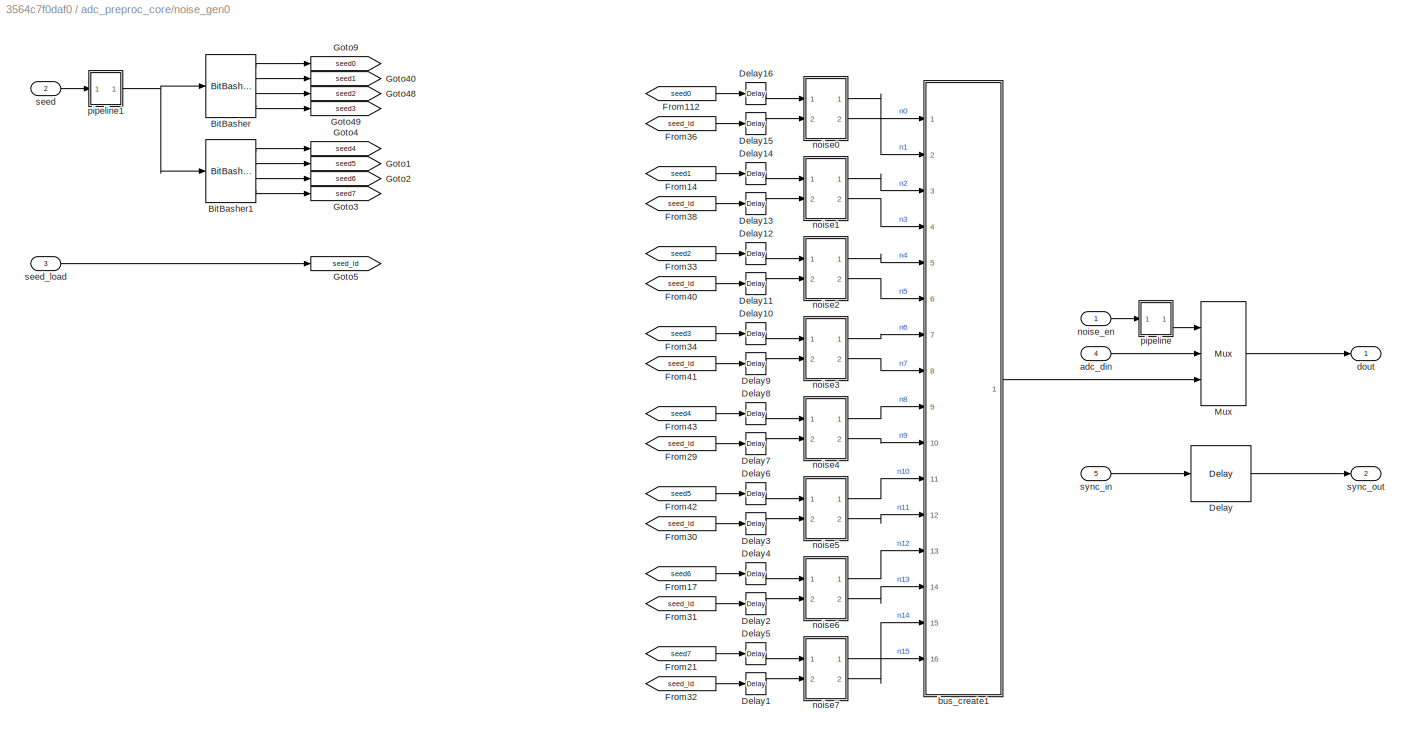
BLOCK [SubSystem] adc_preproc_core/noise_gen0
  FunctionWithSeparateData = off
  MaskHideContents = off
  MinAlgLoopOccurrences = off
  Opaque = off
  Ports = [5, 2]
  PropExecContextOutsideSubsystem = off
  RTWSystemCode = Auto
  RequestExecContextInheritance = off
BLOCK [Reference] adc_preproc_core/noise_gen0/BitBasher  REF=xbsIndex_r4/BitBasher
  Ports = [1, 4]
  SourceBlock = xbsIndex_r4/BitBasher
  SourceType = Xilinx BitBasher Block
  arith_type1 = Unsigned
  arith_type2 = Unsigned
  arith_type3 = Unsigned
  arith_type4 = Unsigned
  bin_pt1 = 0
  bin_pt2 = 0
  bin_pt3 = 0
  bin_pt4 = 0
  bitexpr = <!DOCTYPE HTML PUBLIC "-//W3C//DTD HTML 4.0//EN" "http://www.w3.org/TR/REC-html40/strict.dtd">\n<html><head><meta name="qrichtext" content="1" /><style type="text/css">\np, li { white-space: pre-wrap; }\n</style></head><body style=" font-family:'Sans'; font-size:10pt; font-weight:400; font-style:normal;">\n<p style=" margin-top:12px; margin-bottom:12px; margin-left:0px; margin-right:0px; -qt-block-ind...<+284ch>
  block_type = bitbasher
  dbl_ovrd = off
  display_expr = off
  has_advanced_control = 0
  infoedit = Allows extraction, concatenation and augmentation of bits
  sg_icon_stat = 50,63,1,4,white,blue,0,9e751d63,right,,[ ],[ ]
  sg_mask_display = fprintf('','COMMENT: begin icon graphics');\npatch([0 50 50 0 0 ],[0 0 63 63 0 ],[0.77 0.82 0.91 ]);\nplot([0 50 50 0 0 ],[0 0 63 63 0 ]);\npatch([9.425 19.54 26.54 33.54 40.54 26.54 16.425 9.425 ],[38.77 38.77 45.77 38.77 45.77 45.77 45.77 38.77 ],[1 1 1 ]);\npatch([16.425 26.54 19.54 9.425 16.425 ],[31.77 31.77 38.77 38.77 31.77 ],[0.931 0.946 0.973 ]);\npatch([9.425 19.54 26.54 16.425 9.425 ],[24.77...<+498ch>
  sggui_pos = 425,36,752,692
  sr_1 = 1
  sr_2 = 2
  sr_3 = 3
  sr_4 = 4
BLOCK [Reference] adc_preproc_core/noise_gen0/BitBasher1  REF=xbsIndex_r4/BitBasher
  Ports = [1, 4]
  SourceBlock = xbsIndex_r4/BitBasher
  SourceType = Xilinx BitBasher Block
  arith_type1 = Unsigned
  arith_type2 = Unsigned
  arith_type3 = Unsigned
  arith_type4 = Unsigned
  bin_pt1 = 0
  bin_pt2 = 0
  bin_pt3 = 0
  bin_pt4 = 0
  bitexpr = <!DOCTYPE HTML PUBLIC "-//W3C//DTD HTML 4.0//EN" "http://www.w3.org/TR/REC-html40/strict.dtd">\n<html><head><meta name="qrichtext" content="1" /><style type="text/css">\np, li { white-space: pre-wrap; }\n</style></head><body style=" font-family:'Ubuntu'; font-size:11pt; font-weight:400; font-style:normal;">\n<p style=" margin-top:12px; margin-bottom:12px; margin-left:0px; margin-right:0px; -qt-block-i...<+286ch>
  block_type = bitbasher
  dbl_ovrd = off
  display_expr = off
  has_advanced_control = 0
  infoedit = Allows extraction, concatenation and augmentation of bits
  sg_icon_stat = 50,63,1,4,white,blue,0,9e5dc4e0,right,,[ ],[ ]
  sg_mask_display = fprintf('','COMMENT: begin icon graphics');\npatch([0 50 50 0 0 ],[0 0 63 63 0 ],[0.77 0.82 0.91 ]);\nplot([0 50 50 0 0 ],[0 0 63 63 0 ]);\npatch([9.425 19.54 26.54 33.54 40.54 26.54 16.425 9.425 ],[38.77 38.77 45.77 38.77 45.77 45.77 45.77 38.77 ],[1 1 1 ]);\npatch([16.425 26.54 19.54 9.425 16.425 ],[31.77 31.77 38.77 38.77 31.77 ],[0.931 0.946 0.973 ]);\npatch([9.425 19.54 26.54 16.425 9.425 ],[24.77...<+498ch>
  sggui_pos = 425,36,752,692
  sr_1 = 1
  sr_2 = 2
  sr_3 = 3
  sr_4 = 4
BLOCK [Reference] adc_preproc_core/noise_gen0/Delay  REF=xbsIndex_r4/Delay
  Ports = [1, 1]
  SourceBlock = xbsIndex_r4/Delay
  SourceType = Xilinx Delay Block
  block_type = delay
  dbl_ovrd = off
  en = off
  has_advanced_control = 0
  infoedit = Hardware notes: A delay line is a chain, each link of which is an SRL16 followed by a flip-flop.
  infoeditControl = Selection of Reset will increase slice count due to use of real FFs and instead of SRLs
  latency = 1
  reg_retiming = off
  rst = off
  sg_icon_stat = 60,56,1,1,white,blue,0,07b98262,right,,[ ],[ ]
  sg_mask_display = fprintf('','COMMENT: begin icon graphics');\npatch([0 60 60 0 0 ],[0 0 56 56 0 ],[0.77 0.82 0.91 ]);\nplot([0 60 60 0 0 ],[0 0 56 56 0 ]);\npatch([12.2 23.76 31.76 39.76 47.76 31.76 20.2 12.2 ],[36.88 36.88 44.88 36.88 44.88 44.88 44.88 36.88 ],[1 1 1 ]);\npatch([20.2 31.76 23.76 12.2 20.2 ],[28.88 28.88 36.88 36.88 28.88 ],[0.931 0.946 0.973 ]);\npatch([12.2 23.76 31.76 20.2 12.2 ],[20.88 20.88 28.88 ...<+308ch>
  sggui_pos = -1,-1,-1,-1
  xl_area = [0,0,0,0,0,0,0]
  xl_use_area = off
BLOCK [Reference] adc_preproc_core/noise_gen0/Delay1  REF=xbsIndex_r4/Delay
  Ports = [1, 1]
  SourceBlock = xbsIndex_r4/Delay
  SourceType = Xilinx Delay Block
  block_type = delay
  dbl_ovrd = off
  en = off
  has_advanced_control = 0
  infoedit = Hardware notes: A delay line is a chain, each link of which is an SRL16 followed by a flip-flop.
  infoeditControl = Selection of Reset will increase slice count due to use of real FFs and instead of SRLs
  latency = 1
  reg_retiming = off
  rst = off
  sg_icon_stat = 20,22,1,1,white,blue,0,07b98262,right,,[ ],[ ]
  sg_mask_display = fprintf('','COMMENT: begin icon graphics');\npatch([0 20 20 0 0 ],[0 0 22 22 0 ],[0.77 0.82 0.91 ]);\nplot([0 20 20 0 0 ],[0 0 22 22 0 ]);\npatch([5.55 8.44 10.44 12.44 14.44 10.44 7.55 5.55 ],[13.22 13.22 15.22 13.22 15.22 15.22 15.22 13.22 ],[1 1 1 ]);\npatch([7.55 10.44 8.44 5.55 7.55 ],[11.22 11.22 13.22 13.22 11.22 ],[0.931 0.946 0.973 ]);\npatch([5.55 8.44 10.44 7.55 5.55 ],[9.22 9.22 11.22 11.22...<+294ch>  <repeated x16 — deduplicated; at blocks: Delay1, Delay10, Delay11, Delay12, Delay13, Delay14, Delay15, Delay16, Delay2, Delay3, Delay4, Delay5, Delay6, Delay7, Delay8, Delay9>
  sggui_pos = 6,17,481,387
  xl_area = [0,0,0,0,0,0,0]
  xl_use_area = off
BLOCK [Reference] adc_preproc_core/noise_gen0/Delay10  REF=xbsIndex_r4/Delay
  Ports = [1, 1]
  SourceBlock = xbsIndex_r4/Delay
  SourceType = Xilinx Delay Block
  block_type = delay
  dbl_ovrd = off
  en = off
  has_advanced_control = 0
  infoedit = Hardware notes: A delay line is a chain, each link of which is an SRL16 followed by a flip-flop.
  infoeditControl = Selection of Reset will increase slice count due to use of real FFs and instead of SRLs
  latency = 1
  reg_retiming = off
  rst = off
  sg_icon_stat = 20,22,1,1,white,blue,0,07b98262,right,,[ ],[ ]
  sggui_pos = 13,17,481,387
  xl_area = [0,0,0,0,0,0,0]
  xl_use_area = off
BLOCK [Reference] adc_preproc_core/noise_gen0/Delay11  REF=xbsIndex_r4/Delay
  Ports = [1, 1]
  SourceBlock = xbsIndex_r4/Delay
  SourceType = Xilinx Delay Block
  block_type = delay
  dbl_ovrd = off
  en = off
  has_advanced_control = 0
  infoedit = Hardware notes: A delay line is a chain, each link of which is an SRL16 followed by a flip-flop.
  infoeditControl = Selection of Reset will increase slice count due to use of real FFs and instead of SRLs
  latency = 1
  reg_retiming = off
  rst = off
  sg_icon_stat = 20,22,1,1,white,blue,0,07b98262,right,,[ ],[ ]
  sggui_pos = 13,17,481,387
  xl_area = [0,0,0,0,0,0,0]
  xl_use_area = off
BLOCK [Reference] adc_preproc_core/noise_gen0/Delay12  REF=xbsIndex_r4/Delay
  Ports = [1, 1]
  SourceBlock = xbsIndex_r4/Delay
  SourceType = Xilinx Delay Block
  block_type = delay
  dbl_ovrd = off
  en = off
  has_advanced_control = 0
  infoedit = Hardware notes: A delay line is a chain, each link of which is an SRL16 followed by a flip-flop.
  infoeditControl = Selection of Reset will increase slice count due to use of real FFs and instead of SRLs
  latency = 1
  reg_retiming = off
  rst = off
  sg_icon_stat = 20,22,1,1,white,blue,0,07b98262,right,,[ ],[ ]
  sggui_pos = 13,17,481,387
  xl_area = [0,0,0,0,0,0,0]
  xl_use_area = off
BLOCK [Reference] adc_preproc_core/noise_gen0/Delay13  REF=xbsIndex_r4/Delay
  Ports = [1, 1]
  SourceBlock = xbsIndex_r4/Delay
  SourceType = Xilinx Delay Block
  block_type = delay
  dbl_ovrd = off
  en = off
  has_advanced_control = 0
  infoedit = Hardware notes: A delay line is a chain, each link of which is an SRL16 followed by a flip-flop.
  infoeditControl = Selection of Reset will increase slice count due to use of real FFs and instead of SRLs
  latency = 1
  reg_retiming = off
  rst = off
  sg_icon_stat = 20,22,1,1,white,blue,0,07b98262,right,,[ ],[ ]
  sggui_pos = 13,17,481,387
  xl_area = [0,0,0,0,0,0,0]
  xl_use_area = off
BLOCK [Reference] adc_preproc_core/noise_gen0/Delay14  REF=xbsIndex_r4/Delay
  Ports = [1, 1]
  SourceBlock = xbsIndex_r4/Delay
  SourceType = Xilinx Delay Block
  block_type = delay
  dbl_ovrd = off
  en = off
  has_advanced_control = 0
  infoedit = Hardware notes: A delay line is a chain, each link of which is an SRL16 followed by a flip-flop.
  infoeditControl = Selection of Reset will increase slice count due to use of real FFs and instead of SRLs
  latency = 1
  reg_retiming = off
  rst = off
  sg_icon_stat = 20,22,1,1,white,blue,0,07b98262,right,,[ ],[ ]
  sggui_pos = 13,17,481,387
  xl_area = [0,0,0,0,0,0,0]
  xl_use_area = off
BLOCK [Reference] adc_preproc_core/noise_gen0/Delay15  REF=xbsIndex_r4/Delay
  Ports = [1, 1]
  SourceBlock = xbsIndex_r4/Delay
  SourceType = Xilinx Delay Block
  block_type = delay
  dbl_ovrd = off
  en = off
  has_advanced_control = 0
  infoedit = Hardware notes: A delay line is a chain, each link of which is an SRL16 followed by a flip-flop.
  infoeditControl = Selection of Reset will increase slice count due to use of real FFs and instead of SRLs
  latency = 1
  reg_retiming = off
  rst = off
  sg_icon_stat = 20,22,1,1,white,blue,0,07b98262,right,,[ ],[ ]
  sggui_pos = 13,17,481,387
  xl_area = [0,0,0,0,0,0,0]
  xl_use_area = off
BLOCK [Reference] adc_preproc_core/noise_gen0/Delay16  REF=xbsIndex_r4/Delay
  Ports = [1, 1]
  SourceBlock = xbsIndex_r4/Delay
  SourceType = Xilinx Delay Block
  block_type = delay
  dbl_ovrd = off
  en = off
  has_advanced_control = 0
  infoedit = Hardware notes: A delay line is a chain, each link of which is an SRL16 followed by a flip-flop.
  infoeditControl = Selection of Reset will increase slice count due to use of real FFs and instead of SRLs
  latency = 1
  reg_retiming = off
  rst = off
  sg_icon_stat = 20,22,1,1,white,blue,0,07b98262,right,,[ ],[ ]
  sggui_pos = 13,17,481,387
  xl_area = [0,0,0,0,0,0,0]
  xl_use_area = off
BLOCK [Reference] adc_preproc_core/noise_gen0/Delay2  REF=xbsIndex_r4/Delay
  Ports = [1, 1]
  SourceBlock = xbsIndex_r4/Delay
  SourceType = Xilinx Delay Block
  block_type = delay
  dbl_ovrd = off
  en = off
  has_advanced_control = 0
  infoedit = Hardware notes: A delay line is a chain, each link of which is an SRL16 followed by a flip-flop.
  infoeditControl = Selection of Reset will increase slice count due to use of real FFs and instead of SRLs
  latency = 1
  reg_retiming = off
  rst = off
  sg_icon_stat = 20,22,1,1,white,blue,0,07b98262,right,,[ ],[ ]
  sggui_pos = 13,17,481,387
  xl_area = [0,0,0,0,0,0,0]
  xl_use_area = off
BLOCK [Reference] adc_preproc_core/noise_gen0/Delay3  REF=xbsIndex_r4/Delay
  Ports = [1, 1]
  SourceBlock = xbsIndex_r4/Delay
  SourceType = Xilinx Delay Block
  block_type = delay
  dbl_ovrd = off
  en = off
  has_advanced_control = 0
  infoedit = Hardware notes: A delay line is a chain, each link of which is an SRL16 followed by a flip-flop.
  infoeditControl = Selection of Reset will increase slice count due to use of real FFs and instead of SRLs
  latency = 1
  reg_retiming = off
  rst = off
  sg_icon_stat = 20,22,1,1,white,blue,0,07b98262,right,,[ ],[ ]
  sggui_pos = 13,17,481,387
  xl_area = [0,0,0,0,0,0,0]
  xl_use_area = off
BLOCK [Reference] adc_preproc_core/noise_gen0/Delay4  REF=xbsIndex_r4/Delay
  Ports = [1, 1]
  SourceBlock = xbsIndex_r4/Delay
  SourceType = Xilinx Delay Block
  block_type = delay
  dbl_ovrd = off
  en = off
  has_advanced_control = 0
  infoedit = Hardware notes: A delay line is a chain, each link of which is an SRL16 followed by a flip-flop.
  infoeditControl = Selection of Reset will increase slice count due to use of real FFs and instead of SRLs
  latency = 1
  reg_retiming = off
  rst = off
  sg_icon_stat = 20,22,1,1,white,blue,0,07b98262,right,,[ ],[ ]
  sggui_pos = 13,17,481,387
  xl_area = [0,0,0,0,0,0,0]
  xl_use_area = off
BLOCK [Reference] adc_preproc_core/noise_gen0/Delay5  REF=xbsIndex_r4/Delay
  Ports = [1, 1]
  SourceBlock = xbsIndex_r4/Delay
  SourceType = Xilinx Delay Block
  block_type = delay
  dbl_ovrd = off
  en = off
  has_advanced_control = 0
  infoedit = Hardware notes: A delay line is a chain, each link of which is an SRL16 followed by a flip-flop.
  infoeditControl = Selection of Reset will increase slice count due to use of real FFs and instead of SRLs
  latency = 1
  reg_retiming = off
  rst = off
  sg_icon_stat = 20,22,1,1,white,blue,0,07b98262,right,,[ ],[ ]
  sggui_pos = 13,17,481,387
  xl_area = [0,0,0,0,0,0,0]
  xl_use_area = off
BLOCK [Reference] adc_preproc_core/noise_gen0/Delay6  REF=xbsIndex_r4/Delay
  Ports = [1, 1]
  SourceBlock = xbsIndex_r4/Delay
  SourceType = Xilinx Delay Block
  block_type = delay
  dbl_ovrd = off
  en = off
  has_advanced_control = 0
  infoedit = Hardware notes: A delay line is a chain, each link of which is an SRL16 followed by a flip-flop.
  infoeditControl = Selection of Reset will increase slice count due to use of real FFs and instead of SRLs
  latency = 1
  reg_retiming = off
  rst = off
  sg_icon_stat = 20,22,1,1,white,blue,0,07b98262,right,,[ ],[ ]
  sggui_pos = 13,17,481,387
  xl_area = [0,0,0,0,0,0,0]
  xl_use_area = off
BLOCK [Reference] adc_preproc_core/noise_gen0/Delay7  REF=xbsIndex_r4/Delay
  Ports = [1, 1]
  SourceBlock = xbsIndex_r4/Delay
  SourceType = Xilinx Delay Block
  block_type = delay
  dbl_ovrd = off
  en = off
  has_advanced_control = 0
  infoedit = Hardware notes: A delay line is a chain, each link of which is an SRL16 followed by a flip-flop.
  infoeditControl = Selection of Reset will increase slice count due to use of real FFs and instead of SRLs
  latency = 1
  reg_retiming = off
  rst = off
  sg_icon_stat = 20,22,1,1,white,blue,0,07b98262,right,,[ ],[ ]
  sggui_pos = 13,17,481,387
  xl_area = [0,0,0,0,0,0,0]
  xl_use_area = off
BLOCK [Reference] adc_preproc_core/noise_gen0/Delay8  REF=xbsIndex_r4/Delay
  Ports = [1, 1]
  SourceBlock = xbsIndex_r4/Delay
  SourceType = Xilinx Delay Block
  block_type = delay
  dbl_ovrd = off
  en = off
  has_advanced_control = 0
  infoedit = Hardware notes: A delay line is a chain, each link of which is an SRL16 followed by a flip-flop.
  infoeditControl = Selection of Reset will increase slice count due to use of real FFs and instead of SRLs
  latency = 1
  reg_retiming = off
  rst = off
  sg_icon_stat = 20,22,1,1,white,blue,0,07b98262,right,,[ ],[ ]
  sggui_pos = 13,17,481,387
  xl_area = [0,0,0,0,0,0,0]
  xl_use_area = off
BLOCK [Reference] adc_preproc_core/noise_gen0/Delay9  REF=xbsIndex_r4/Delay
  Ports = [1, 1]
  SourceBlock = xbsIndex_r4/Delay
  SourceType = Xilinx Delay Block
  block_type = delay
  dbl_ovrd = off
  en = off
  has_advanced_control = 0
  infoedit = Hardware notes: A delay line is a chain, each link of which is an SRL16 followed by a flip-flop.
  infoeditControl = Selection of Reset will increase slice count due to use of real FFs and instead of SRLs
  latency = 1
  reg_retiming = off
  rst = off
  sg_icon_stat = 20,22,1,1,white,blue,0,07b98262,right,,[ ],[ ]
  sggui_pos = 13,17,481,387
  xl_area = [0,0,0,0,0,0,0]
  xl_use_area = off
BLOCK [From] adc_preproc_core/noise_gen0/From112
  CloseFcn = tagdialog Close
  GotoTag = seed0
BLOCK [From] adc_preproc_core/noise_gen0/From14
  CloseFcn = tagdialog Close
  GotoTag = seed1
BLOCK [From] adc_preproc_core/noise_gen0/From17
  CloseFcn = tagdialog Close
  GotoTag = seed6
BLOCK [From] adc_preproc_core/noise_gen0/From21
  CloseFcn = tagdialog Close
  GotoTag = seed7
BLOCK [From] adc_preproc_core/noise_gen0/From29
  CloseFcn = tagdialog Close
  GotoTag = seed_ld
BLOCK [From] adc_preproc_core/noise_gen0/From30
  CloseFcn = tagdialog Close
  GotoTag = seed_ld
BLOCK [From] adc_preproc_core/noise_gen0/From31
  CloseFcn = tagdialog Close
  GotoTag = seed_ld
BLOCK [From] adc_preproc_core/noise_gen0/From32
  CloseFcn = tagdialog Close
  GotoTag = seed_ld
BLOCK [From] adc_preproc_core/noise_gen0/From33
  CloseFcn = tagdialog Close
  GotoTag = seed2
BLOCK [From] adc_preproc_core/noise_gen0/From34
  CloseFcn = tagdialog Close
  GotoTag = seed3
BLOCK [From] adc_preproc_core/noise_gen0/From36
  CloseFcn = tagdialog Close
  GotoTag = seed_ld
BLOCK [From] adc_preproc_core/noise_gen0/From38
  CloseFcn = tagdialog Close
  GotoTag = seed_ld
BLOCK [From] adc_preproc_core/noise_gen0/From40
  CloseFcn = tagdialog Close
  GotoTag = seed_ld
BLOCK [From] adc_preproc_core/noise_gen0/From41
  CloseFcn = tagdialog Close
  GotoTag = seed_ld
BLOCK [From] adc_preproc_core/noise_gen0/From42
  CloseFcn = tagdialog Close
  GotoTag = seed5
BLOCK [From] adc_preproc_core/noise_gen0/From43
  CloseFcn = tagdialog Close
  GotoTag = seed4
BLOCK [Goto] adc_preproc_core/noise_gen0/Goto1
  GotoTag = seed5
BLOCK [Goto] adc_preproc_core/noise_gen0/Goto2
  GotoTag = seed6
BLOCK [Goto] adc_preproc_core/noise_gen0/Goto3
  GotoTag = seed7
BLOCK [Goto] adc_preproc_core/noise_gen0/Goto4
  GotoTag = seed4
BLOCK [Goto] adc_preproc_core/noise_gen0/Goto40
  GotoTag = seed1
BLOCK [Goto] adc_preproc_core/noise_gen0/Goto48
  GotoTag = seed2
BLOCK [Goto] adc_preproc_core/noise_gen0/Goto49
  GotoTag = seed3
BLOCK [Goto] adc_preproc_core/noise_gen0/Goto5
  GotoTag = seed_ld
BLOCK [Goto] adc_preproc_core/noise_gen0/Goto9
  GotoTag = seed0
BLOCK [Reference] adc_preproc_core/noise_gen0/Mux  REF=xbsIndex_r4/Mux
  Ports = [3, 1]
  SourceBlock = xbsIndex_r4/Mux
  SourceType = Xilinx Bus Multiplexer Block
  arith_type = Unsigned
  bin_pt = 14
  block_type = mux
  dbl_ovrd = off
  en = off
  has_advanced_control = 0
  inputs = 2
  latency = 1
  n_bits = 16
  overflow = Wrap
  precision = Full
  quantization = Truncate
  sg_icon_stat = 45,104,3,1,white,blue,3,a150fb03,right,,[ ],[ ]
  sg_mask_display = fprintf('','COMMENT: begin icon graphics');\npatch([0 45 45 0 0 ],[0 14.8571 89.1429 104 0 ],[0.77 0.82 0.91 ]);\nplot([0 45 45 0 0 ],[0 14.8571 89.1429 104 0 ]);\npatch([8.65 17.32 23.32 29.32 35.32 23.32 14.65 8.65 ],[58.66 58.66 64.66 58.66 64.66 64.66 64.66 58.66 ],[1 1 1 ]);\npatch([14.65 23.32 17.32 8.65 14.65 ],[52.66 52.66 58.66 58.66 52.66 ],[0.931 0.946 0.973 ]);\npatch([8.65 17.32 23.32 14.6...<+474ch>
  sggui_pos = 13,17,481,373
  xl_area = [0,0,0,0,0,0,0]
  xl_use_area = off
BLOCK [Inport] adc_preproc_core/noise_gen0/adc_din
  IconDisplay = Port number
  Port = 4
BLOCK [SubSystem] adc_preproc_core/noise_gen0/bus_create1
  AncestorBlock = casper_library_flow_control/bus_create
  FunctionWithSeparateData = off
  MaskHideContents = off
  MinAlgLoopOccurrences = off
  Opaque = off
  Ports = [16, 1]
  PropExecContextOutsideSubsystem = off
  RTWSystemCode = Auto
  RequestExecContextInheritance = off
  UserDataPersistent = on
BLOCK [Outport] adc_preproc_core/noise_gen0/bus_create1/bus_out
  IconDisplay = Port number
BLOCK [Reference] adc_preproc_core/noise_gen0/bus_create1/concatenate  REF=xbsIndex_r4/Concat
  Ports = [16, 1]
  SourceBlock = xbsIndex_r4/Concat
  SourceType = Xilinx Bus Concatenator Block
  block_type = concat
  block_version = 11.4
  dbl_ovrd = off
  has_advanced_control = 0
  infoedit = Concatenates two or more inputs.  Output will be cast to an unsigned value with the binary point at zero.
  num_inputs = 16
  sg_icon_stat = 50,620,16,1,white,blue,0,e51e01c8,right,,[ ],[ ]
  sggui_pos = -1,-1,-1,-1
BLOCK [Inport] adc_preproc_core/noise_gen0/bus_create1/in1
  IconDisplay = Port number
BLOCK [Inport] adc_preproc_core/noise_gen0/bus_create1/in10
  IconDisplay = Port number
  Port = 10
BLOCK [Inport] adc_preproc_core/noise_gen0/bus_create1/in11
  IconDisplay = Port number
  Port = 11
BLOCK [Inport] adc_preproc_core/noise_gen0/bus_create1/in12
  IconDisplay = Port number
  Port = 12
BLOCK [Inport] adc_preproc_core/noise_gen0/bus_create1/in13
  IconDisplay = Port number
  Port = 13
BLOCK [Inport] adc_preproc_core/noise_gen0/bus_create1/in14
  IconDisplay = Port number
  Port = 14
BLOCK [Inport] adc_preproc_core/noise_gen0/bus_create1/in15
  IconDisplay = Port number
  Port = 15
BLOCK [Inport] adc_preproc_core/noise_gen0/bus_create1/in16
  IconDisplay = Port number
  Port = 16
BLOCK [Inport] adc_preproc_core/noise_gen0/bus_create1/in2
  IconDisplay = Port number
  Port = 2
BLOCK [Inport] adc_preproc_core/noise_gen0/bus_create1/in3
  IconDisplay = Port number
  Port = 3
BLOCK [Inport] adc_preproc_core/noise_gen0/bus_create1/in4
  IconDisplay = Port number
  Port = 4
BLOCK [Inport] adc_preproc_core/noise_gen0/bus_create1/in5
  IconDisplay = Port number
  Port = 5
BLOCK [Inport] adc_preproc_core/noise_gen0/bus_create1/in6
  IconDisplay = Port number
  Port = 6
BLOCK [Inport] adc_preproc_core/noise_gen0/bus_create1/in7
  IconDisplay = Port number
  Port = 7
BLOCK [Inport] adc_preproc_core/noise_gen0/bus_create1/in8
  IconDisplay = Port number
  Port = 8
BLOCK [Inport] adc_preproc_core/noise_gen0/bus_create1/in9
  IconDisplay = Port number
  Port = 9
BLOCK [Reference] adc_preproc_core/noise_gen0/bus_create1/reinterpret1  REF=xbsIndex_r4/Reinterpret
  Ports = [1, 1]
  SourceBlock = xbsIndex_r4/Reinterpret
  SourceType = Xilinx Type Reinterpreter Block
  arith_type = Unsigned
  bin_pt = 0
  block_type = reinterpret
  block_version = 11.4
  force_arith_type = on
  force_bin_pt = on
  has_advanced_control = 0
  sg_icon_stat = 50,20,1,1,white,blue,0,6b04d0b0,right,,[ ],[ ]
  sggui_pos = -1,-1,-1,-1
BLOCK [Reference] adc_preproc_core/noise_gen0/bus_create1/reinterpret10  REF=xbsIndex_r4/Reinterpret
  Ports = [1, 1]
  SourceBlock = xbsIndex_r4/Reinterpret
  SourceType = Xilinx Type Reinterpreter Block
  arith_type = Unsigned
  bin_pt = 0
  block_type = reinterpret
  force_arith_type = on
  force_bin_pt = on
  has_advanced_control = 0
  sg_icon_stat = 50,20,1,1,white,blue,0,6b04d0b0,right,,[ ],[ ]
  sggui_pos = -1,-1,-1,-1
BLOCK [Reference] adc_preproc_core/noise_gen0/bus_create1/reinterpret11  REF=xbsIndex_r4/Reinterpret
  Ports = [1, 1]
  SourceBlock = xbsIndex_r4/Reinterpret
  SourceType = Xilinx Type Reinterpreter Block
  arith_type = Unsigned
  bin_pt = 0
  block_type = reinterpret
  force_arith_type = on
  force_bin_pt = on
  has_advanced_control = 0
  sg_icon_stat = 50,20,1,1,white,blue,0,6b04d0b0,right,,[ ],[ ]
  sggui_pos = -1,-1,-1,-1
BLOCK [Reference] adc_preproc_core/noise_gen0/bus_create1/reinterpret12  REF=xbsIndex_r4/Reinterpret
  Ports = [1, 1]
  SourceBlock = xbsIndex_r4/Reinterpret
  SourceType = Xilinx Type Reinterpreter Block
  arith_type = Unsigned
  bin_pt = 0
  block_type = reinterpret
  force_arith_type = on
  force_bin_pt = on
  has_advanced_control = 0
  sg_icon_stat = 50,20,1,1,white,blue,0,6b04d0b0,right,,[ ],[ ]
  sggui_pos = -1,-1,-1,-1
BLOCK [Reference] adc_preproc_core/noise_gen0/bus_create1/reinterpret13  REF=xbsIndex_r4/Reinterpret
  Ports = [1, 1]
  SourceBlock = xbsIndex_r4/Reinterpret
  SourceType = Xilinx Type Reinterpreter Block
  arith_type = Unsigned
  bin_pt = 0
  block_type = reinterpret
  force_arith_type = on
  force_bin_pt = on
  has_advanced_control = 0
  sg_icon_stat = 50,20,1,1,white,blue,0,6b04d0b0,right,,[ ],[ ]
  sggui_pos = -1,-1,-1,-1
BLOCK [Reference] adc_preproc_core/noise_gen0/bus_create1/reinterpret14  REF=xbsIndex_r4/Reinterpret
  Ports = [1, 1]
  SourceBlock = xbsIndex_r4/Reinterpret
  SourceType = Xilinx Type Reinterpreter Block
  arith_type = Unsigned
  bin_pt = 0
  block_type = reinterpret
  force_arith_type = on
  force_bin_pt = on
  has_advanced_control = 0
  sg_icon_stat = 50,20,1,1,white,blue,0,6b04d0b0,right,,[ ],[ ]
  sggui_pos = -1,-1,-1,-1
BLOCK [Reference] adc_preproc_core/noise_gen0/bus_create1/reinterpret15  REF=xbsIndex_r4/Reinterpret
  Ports = [1, 1]
  SourceBlock = xbsIndex_r4/Reinterpret
  SourceType = Xilinx Type Reinterpreter Block
  arith_type = Unsigned
  bin_pt = 0
  block_type = reinterpret
  force_arith_type = on
  force_bin_pt = on
  has_advanced_control = 0
  sg_icon_stat = 50,20,1,1,white,blue,0,6b04d0b0,right,,[ ],[ ]
  sggui_pos = -1,-1,-1,-1
BLOCK [Reference] adc_preproc_core/noise_gen0/bus_create1/reinterpret16  REF=xbsIndex_r4/Reinterpret
  Ports = [1, 1]
  SourceBlock = xbsIndex_r4/Reinterpret
  SourceType = Xilinx Type Reinterpreter Block
  arith_type = Unsigned
  bin_pt = 0
  block_type = reinterpret
  force_arith_type = on
  force_bin_pt = on
  has_advanced_control = 0
  sg_icon_stat = 50,20,1,1,white,blue,0,6b04d0b0,right,,[ ],[ ]
  sggui_pos = -1,-1,-1,-1
BLOCK [Reference] adc_preproc_core/noise_gen0/bus_create1/reinterpret2  REF=xbsIndex_r4/Reinterpret
  Ports = [1, 1]
  SourceBlock = xbsIndex_r4/Reinterpret
  SourceType = Xilinx Type Reinterpreter Block
  arith_type = Unsigned
  bin_pt = 0
  block_type = reinterpret
  block_version = 11.4
  force_arith_type = on
  force_bin_pt = on
  has_advanced_control = 0
  sg_icon_stat = 50,20,1,1,white,blue,0,6b04d0b0,right,,[ ],[ ]
  sggui_pos = 281,224,671,460
BLOCK [Reference] adc_preproc_core/noise_gen0/bus_create1/reinterpret3  REF=xbsIndex_r4/Reinterpret
  Ports = [1, 1]
  SourceBlock = xbsIndex_r4/Reinterpret
  SourceType = Xilinx Type Reinterpreter Block
  arith_type = Unsigned
  bin_pt = 0
  block_type = reinterpret
  force_arith_type = on
  force_bin_pt = on
  has_advanced_control = 0
  sg_icon_stat = 50,20,1,1,white,blue,0,6b04d0b0,right,,[ ],[ ]
  sggui_pos = -1,-1,-1,-1
BLOCK [Reference] adc_preproc_core/noise_gen0/bus_create1/reinterpret4  REF=xbsIndex_r4/Reinterpret
  Ports = [1, 1]
  SourceBlock = xbsIndex_r4/Reinterpret
  SourceType = Xilinx Type Reinterpreter Block
  arith_type = Unsigned
  bin_pt = 0
  block_type = reinterpret
  force_arith_type = on
  force_bin_pt = on
  has_advanced_control = 0
  sg_icon_stat = 50,20,1,1,white,blue,0,6b04d0b0,right,,[ ],[ ]
  sggui_pos = -1,-1,-1,-1
BLOCK [Reference] adc_preproc_core/noise_gen0/bus_create1/reinterpret5  REF=xbsIndex_r4/Reinterpret
  Ports = [1, 1]
  SourceBlock = xbsIndex_r4/Reinterpret
  SourceType = Xilinx Type Reinterpreter Block
  arith_type = Unsigned
  bin_pt = 0
  block_type = reinterpret
  force_arith_type = on
  force_bin_pt = on
  has_advanced_control = 0
  sg_icon_stat = 50,20,1,1,white,blue,0,6b04d0b0,right,,[ ],[ ]
  sggui_pos = -1,-1,-1,-1
BLOCK [Reference] adc_preproc_core/noise_gen0/bus_create1/reinterpret6  REF=xbsIndex_r4/Reinterpret
  Ports = [1, 1]
  SourceBlock = xbsIndex_r4/Reinterpret
  SourceType = Xilinx Type Reinterpreter Block
  arith_type = Unsigned
  bin_pt = 0
  block_type = reinterpret
  force_arith_type = on
  force_bin_pt = on
  has_advanced_control = 0
  sg_icon_stat = 50,20,1,1,white,blue,0,6b04d0b0,right,,[ ],[ ]
  sggui_pos = -1,-1,-1,-1
BLOCK [Reference] adc_preproc_core/noise_gen0/bus_create1/reinterpret7  REF=xbsIndex_r4/Reinterpret
  Ports = [1, 1]
  SourceBlock = xbsIndex_r4/Reinterpret
  SourceType = Xilinx Type Reinterpreter Block
  arith_type = Unsigned
  bin_pt = 0
  block_type = reinterpret
  force_arith_type = on
  force_bin_pt = on
  has_advanced_control = 0
  sg_icon_stat = 50,20,1,1,white,blue,0,6b04d0b0,right,,[ ],[ ]
  sggui_pos = -1,-1,-1,-1
BLOCK [Reference] adc_preproc_core/noise_gen0/bus_create1/reinterpret8  REF=xbsIndex_r4/Reinterpret
  Ports = [1, 1]
  SourceBlock = xbsIndex_r4/Reinterpret
  SourceType = Xilinx Type Reinterpreter Block
  arith_type = Unsigned
  bin_pt = 0
  block_type = reinterpret
  force_arith_type = on
  force_bin_pt = on
  has_advanced_control = 0
  sg_icon_stat = 50,20,1,1,white,blue,0,6b04d0b0,right,,[ ],[ ]
  sggui_pos = -1,-1,-1,-1
BLOCK [Reference] adc_preproc_core/noise_gen0/bus_create1/reinterpret9  REF=xbsIndex_r4/Reinterpret
  Ports = [1, 1]
  SourceBlock = xbsIndex_r4/Reinterpret
  SourceType = Xilinx Type Reinterpreter Block
  arith_type = Unsigned
  bin_pt = 0
  block_type = reinterpret
  force_arith_type = on
  force_bin_pt = on
  has_advanced_control = 0
  sg_icon_stat = 50,20,1,1,white,blue,0,6b04d0b0,right,,[ ],[ ]
  sggui_pos = -1,-1,-1,-1
BLOCK [Outport] adc_preproc_core/noise_gen0/dout
  IconDisplay = Port number
BLOCK [SubSystem] adc_preproc_core/noise_gen0/noise0
  FunctionWithSeparateData = off
  MaskHideContents = off
  MinAlgLoopOccurrences = off
  Opaque = off
  Ports = [2, 2]
  PropExecContextOutsideSubsystem = off
  RTWSystemCode = Auto
  RequestExecContextInheritance = off
BLOCK [Reference] adc_preproc_core/noise_gen0/noise0/Convert  REF=xbsIndex_r4/Convert
  Ports = [1, 1]
  SourceBlock = xbsIndex_r4/Convert
  SourceType = Xilinx Type Converter Block
  arith_type = Signed  (2's comp)
  bin_pt = 0
  block_type = convert
  block_version = 11.4
  dbl_ovrd = off
  en = off
  exp_bits = 8
  float_type = Single
  fraction_bits = 24
  gui_display_data_type = Fixed-point
  has_advanced_control = 0
  infoedit = Hardware notes: rounding and saturating require hardware resources; truncating and wrapping do not.
  latency = 3
  n_bits = 8
  overflow = Wrap
  pipeline = on
  quantization = Round  (unbiased: +/- Inf)
  sg_icon_stat = 55,20,1,1,white,blue,0,0bfac013,right,,[ ],[ ]
  sg_mask_display = fprintf('','COMMENT: begin icon graphics');\npatch([0 55 55 0 0 ],[0 0 20 20 0 ],[0.77 0.82 0.91 ]);\nplot([0 55 55 0 0 ],[0 0 20 20 0 ]);\npatch([22.55 25.44 27.44 29.44 31.44 27.44 24.55 22.55 ],[12.22 12.22 14.22 12.22 14.22 14.22 14.22 12.22 ],[1 1 1 ]);\npatch([24.55 27.44 25.44 22.55 24.55 ],[10.22 10.22 12.22 12.22 10.22 ],[0.931 0.946 0.973 ]);\npatch([22.55 25.44 27.44 24.55 22.55 ],[8.22 8.22...<+393ch>  <repeated x16 — deduplicated; at blocks: Convert, Convert1>
  sggui_pos = 827,136,636,659
  xl_area = [0,0,0,0,0,0,0]
  xl_use_area = off
BLOCK [Reference] adc_preproc_core/noise_gen0/noise0/Convert1  REF=xbsIndex_r4/Convert
  Ports = [1, 1]
  SourceBlock = xbsIndex_r4/Convert
  SourceType = Xilinx Type Converter Block
  arith_type = Signed  (2's comp)
  bin_pt = 0
  block_type = convert
  block_version = 11.4
  dbl_ovrd = off
  en = off
  exp_bits = 8
  float_type = Single
  fraction_bits = 24
  gui_display_data_type = Fixed-point
  has_advanced_control = 0
  infoedit = Hardware notes: rounding and saturating require hardware resources; truncating and wrapping do not.
  latency = 3
  n_bits = 8
  overflow = Wrap
  pipeline = on
  quantization = Round  (unbiased: +/- Inf)
  sg_icon_stat = 55,20,1,1,white,blue,0,0bfac013,right,,[ ],[ ]
  sggui_pos = 827,136,636,659
  xl_area = [0,0,0,0,0,0,0]
  xl_use_area = off
BLOCK [Reference] adc_preproc_core/noise_gen0/noise0/Reinterpret  REF=xbsIndex_r4/Reinterpret
  Ports = [1, 1]
  SourceBlock = xbsIndex_r4/Reinterpret
  SourceType = Xilinx Type Reinterpreter Block
  arith_type = Unsigned
  bin_pt = 7
  block_type = reinterpret
  block_version = 10.1.3
  force_arith_type = off
  force_bin_pt = on
  has_advanced_control = 0
  infoedit = Changes signal type without altering the binary representation.   You can changed the signal between signed and unsigned, and relocate the binary point.<P><P>Hardware notes: In hardware this block costs nothing.<P><P>Example:  Suppose the input is 6 bits wide, signed, with 2 fractional bits, and the output is forced to unsigned with 0 fractional bits.  Then an input of -2.0 (1110.00 in binary 2's ...<+55ch>  <repeated x16 — deduplicated; at blocks: Reinterpret, Reinterpret1>
  sg_icon_stat = 45,20,1,1,white,blue,0,6b04d0b0,right,,[ ],[ ]
  sg_mask_display = fprintf('','COMMENT: begin icon graphics');\npatch([0 45 45 0 0 ],[0 0 20 20 0 ],[0.77 0.82 0.91 ]);\nplot([0 45 45 0 0 ],[0 0 20 20 0 ]);\npatch([17.55 20.44 22.44 24.44 26.44 22.44 19.55 17.55 ],[12.22 12.22 14.22 12.22 14.22 14.22 14.22 12.22 ],[1 1 1 ]);\npatch([19.55 22.44 20.44 17.55 19.55 ],[10.22 10.22 12.22 12.22 10.22 ],[0.931 0.946 0.973 ]);\npatch([17.55 20.44 22.44 19.55 17.55 ],[8.22 8.22...<+300ch>  <repeated x16 — deduplicated; at blocks: Reinterpret, Reinterpret1>
  sggui_pos = 43,43,424,401
BLOCK [Reference] adc_preproc_core/noise_gen0/noise0/Reinterpret1  REF=xbsIndex_r4/Reinterpret
  Ports = [1, 1]
  SourceBlock = xbsIndex_r4/Reinterpret
  SourceType = Xilinx Type Reinterpreter Block
  arith_type = Unsigned
  bin_pt = 7
  block_type = reinterpret
  block_version = 10.1.3
  force_arith_type = off
  force_bin_pt = on
  has_advanced_control = 0
  sg_icon_stat = 45,20,1,1,white,blue,0,6b04d0b0,right,,[ ],[ ]
  sggui_pos = 50,50,336,312
BLOCK [Reference] adc_preproc_core/noise_gen0/noise0/Scale  REF=xbsIndex_r4/Scale
  Ports = [1, 1]
  SourceBlock = xbsIndex_r4/Scale
  SourceType = Xilinx Input Scaler Block
  block_type = scale
  block_version = 10.1.3
  dbl_ovrd = off
  has_advanced_control = 0
  infoedit = Scales input by a power of two by adjusting the binary point position.<P><P>Hardware notes: In hardware this block costs nothing.
  scale_factor = 4
  sg_icon_stat = 45,20,1,1,white,blue,0,b6a81430,right,,[ ],[ ]
  sg_mask_display = fprintf('','COMMENT: begin icon graphics');\npatch([0 45 45 0 0 ],[0 0 20 20 0 ],[0.77 0.82 0.91 ]);\nplot([0 45 45 0 0 ],[0 0 20 20 0 ]);\npatch([17.55 20.44 22.44 24.44 26.44 22.44 19.55 17.55 ],[12.22 12.22 14.22 12.22 14.22 14.22 14.22 12.22 ],[1 1 1 ]);\npatch([19.55 22.44 20.44 17.55 19.55 ],[10.22 10.22 12.22 12.22 10.22 ],[0.931 0.946 0.973 ]);\npatch([17.55 20.44 22.44 19.55 17.55 ],[8.22 8.22...<+314ch>  <repeated x16 — deduplicated; at blocks: Scale, Scale1>
  sggui_pos = 20,20,336,191
BLOCK [Reference] adc_preproc_core/noise_gen0/noise0/Scale1  REF=xbsIndex_r4/Scale
  Ports = [1, 1]
  SourceBlock = xbsIndex_r4/Scale
  SourceType = Xilinx Input Scaler Block
  block_type = scale
  block_version = 10.1.3
  dbl_ovrd = off
  has_advanced_control = 0
  infoedit = Scales input by a power of two by adjusting the binary point position.<P><P>Hardware notes: In hardware this block costs nothing.
  scale_factor = 4
  sg_icon_stat = 45,20,1,1,white,blue,0,b6a81430,right,,[ ],[ ]
  sggui_pos = 20,20,336,191
BLOCK [Inport] adc_preproc_core/noise_gen0/noise0/ld
  IconDisplay = Port number
  Port = 2
BLOCK [Outport] adc_preproc_core/noise_gen0/noise0/n1
  IconDisplay = Port number
BLOCK [Outport] adc_preproc_core/noise_gen0/noise0/n2
  IconDisplay = Port number
  Port = 2
BLOCK [Inport] adc_preproc_core/noise_gen0/noise0/seed
  IconDisplay = Port number
BLOCK [SubSystem] adc_preproc_core/noise_gen0/noise0/wgn
  AncestorBlock = casper_library_sources/White Gaussian Noise
  FunctionWithSeparateData = off
  MaskHideContents = off
  MinAlgLoopOccurrences = off
  Opaque = off
  Ports = [2, 2]
  PropExecContextOutsideSubsystem = off
  RTWSystemCode = Auto
  RequestExecContextInheritance = off
BLOCK [Inport] adc_preproc_core/noise_gen0/noise0/wgn/ld
  IconDisplay = Port number
  Port = 2
BLOCK [Outport] adc_preproc_core/noise_gen0/noise0/wgn/n1
  IconDisplay = Port number
BLOCK [Outport] adc_preproc_core/noise_gen0/noise0/wgn/n2
  IconDisplay = Port number
  Port = 2
BLOCK [Inport] adc_preproc_core/noise_gen0/noise0/wgn/seed
  IconDisplay = Port number
BLOCK [Reference] adc_preproc_core/noise_gen0/noise0/wgn/tt800_uprng  REF=casper_library_sources/tt800_uprng  (lib defined in mdl_229433ca4273, mdl_8ee1b87a7aa4, +4 more)
  Ports = [2, 1]
  SourceBlock = casper_library_sources/tt800_uprng
  SourceType = TT800 Uniform Psedo-Random Number Generator
  seed = hex2dec('12345678')
BLOCK [SubSystem] adc_preproc_core/noise_gen0/noise0/wgn/u2n
  AncestorBlock = casper_library_sources/u2n
  FunctionWithSeparateData = off
  MaskHideContents = off
  MinAlgLoopOccurrences = off
  Opaque = off
  Ports = [1, 2]
  PropExecContextOutsideSubsystem = off
  RTWSystemCode = Auto
  RequestExecContextInheritance = off
BLOCK [Reference] adc_preproc_core/noise_gen0/noise0/wgn/u2n/Delay  REF=xbsIndex_r4/Delay
  Ports = [1, 1]
  SourceBlock = xbsIndex_r4/Delay
  SourceType = Xilinx Delay Block
  block_type = delay
  block_version = 10.1.3
  dbl_ovrd = off
  en = off
  has_advanced_control = 0
  infoedit = Hardware notes: A delay line is a chain, each link of which is an SRL16 followed by a flip-flop.
  infoeditControl = Selection of Reset will increase slice count due to use of real FFs and instead of SRLs
  latency = 1
  reg_retiming = off
  rst = off
  sg_icon_stat = 50,20,1,1,white,blue,0,07b98262,right,,[ ],[ ]
  sggui_pos = 13,17,481,387
  xl_area = [0,0,0,0,0,0,0]
  xl_use_area = off
BLOCK [Reference] adc_preproc_core/noise_gen0/noise0/wgn/u2n/Delay1  REF=xbsIndex_r4/Delay
  Ports = [1, 1]
  SourceBlock = xbsIndex_r4/Delay
  SourceType = Xilinx Delay Block
  block_type = delay
  block_version = 10.1.3
  dbl_ovrd = off
  en = off
  has_advanced_control = 0
  infoedit = Hardware notes: A delay line is a chain, each link of which is an SRL16 followed by a flip-flop.
  infoeditControl = Selection of Reset will increase slice count due to use of real FFs and instead of SRLs
  latency = 1
  reg_retiming = off
  rst = off
  sg_icon_stat = 50,20,1,1,white,blue,0,07b98262,right,,[ ],[ ]
  sggui_pos = 20,20,348,255
  xl_area = [0,0,0,0,0,0,0]
  xl_use_area = off
BLOCK [Reference] adc_preproc_core/noise_gen0/noise0/wgn/u2n/Delay2  REF=xbsIndex_r4/Delay
  Ports = [1, 1]
  SourceBlock = xbsIndex_r4/Delay
  SourceType = Xilinx Delay Block
  block_type = delay
  block_version = 10.1.3
  dbl_ovrd = off
  en = off
  has_advanced_control = 0
  infoedit = Hardware notes: A delay line is a chain, each link of which is an SRL16 followed by a flip-flop.
  infoeditControl = Selection of Reset will increase slice count due to use of real FFs and instead of SRLs
  latency = 1
  reg_retiming = off
  rst = off
  sg_icon_stat = 50,20,1,1,white,blue,0,07b98262,right,,[ ],[ ]
  sggui_pos = 20,20,348,255
  xl_area = [0,0,0,0,0,0,0]
  xl_use_area = off
BLOCK [Reference] adc_preproc_core/noise_gen0/noise0/wgn/u2n/Gateway Out  REF=xbsIndex_r4/Gateway Out
  DACChannel = '1'
  LOCs = {}
  Ports = [1, 1]
  SourceBlock = xbsIndex_r4/Gateway Out
  SourceType = Xilinx Gateway Out Block
  UseAsDAC = off
  block_type = gatewayout
  block_version = 10.1.3
  has_advanced_control = 0
  hdl_port = off
  infoedit = Gateway out block.  Converts Xilinx fixed point inputs into ouputs of type Simulink integer, double, or fixed point.<P><P>Hardware notes:  In hardware these blocks become top level output ports or are discarded, depending on how they are configured.  <repeated x16 — deduplicated; at blocks: Gateway Out, Gateway Out1>
  inherit_from_input = off
  locs_specified = off
  sg_icon_stat = 55,22,1,1,white,grey,1,632ec840,right,,[ ],[ ]
  sg_mask_display = fprintf('','COMMENT: begin icon graphics');\npatch([0 55 55 0 0 ],[0 0 22 22 0 ],[0.88 0.88 0.88 ]);\nplot([0 55 55 0 0 ],[0 0 22 22 0 ]);\npatch([20.325 24.66 27.66 30.66 33.66 27.66 23.325 20.325 ],[14.33 14.33 17.33 14.33 17.33 17.33 17.33 14.33 ],[1 1 1 ]);\npatch([23.325 27.66 24.66 20.325 23.325 ],[11.33 11.33 14.33 14.33 11.33 ],[0.964 0.964 0.964 ]);\npatch([20.325 24.66 27.66 23.325 20.325 ],[...<+393ch>  <repeated x16 — deduplicated; at blocks: Gateway Out, Gateway Out1>
  sggui_pos = -1,-1,-1,-1
  timing_constraint = None
  xl_area = [0 0 0 0 17 0 0]
  xl_use_area = off
BLOCK [Reference] adc_preproc_core/noise_gen0/noise0/wgn/u2n/Gateway Out1  REF=xbsIndex_r4/Gateway Out
  DACChannel = '1'
  LOCs = {}
  Ports = [1, 1]
  SourceBlock = xbsIndex_r4/Gateway Out
  SourceType = Xilinx Gateway Out Block
  UseAsDAC = off
  block_type = gatewayout
  block_version = 10.1.3
  has_advanced_control = 0
  hdl_port = off
  inherit_from_input = off
  locs_specified = off
  sg_icon_stat = 55,22,1,1,white,grey,1,632ec840,right,,[ ],[ ]
  sggui_pos = -1,-1,-1,-1
  timing_constraint = None
  xl_area = [0 0 0 0 17 0 0]
  xl_use_area = off
BLOCK [Scope] adc_preproc_core/noise_gen0/noise0/wgn/u2n/Scope
  DataFormat = StructureWithTime
  Floating = off
  NumInputPorts = 2
  Ports = [2]
  SampleTime = 0
  ShowLegends = off
  YMax = 5~5
  YMin = -5~-5
  ZoomMode = yonly
BLOCK [Reference] adc_preproc_core/noise_gen0/noise0/wgn/u2n/bottom_11  REF=xbsIndex_r4/Slice
  Ports = [1, 1]
  SourceBlock = xbsIndex_r4/Slice
  SourceType = Xilinx Bit Slice Extractor Block
  base0 = LSB of Input
  base1 = MSB of Input
  bit0 = 0
  bit1 = 0
  block_type = slice
  block_version = 10.1.3
  boolean_output = off
  dbl_ovrd = off
  has_advanced_control = 0
  infoedit = Extracts a given range of bits from each input sample and presents it at the output.  The output type is ordinarily unsigned with binary point at zero, but can be Boolean when the slice is one bit wide.<P><P>Hardware notes: In hardware this block costs nothing.  <repeated x16 — deduplicated; at blocks: bottom_11, top_11>
  mode = Lower Bit Location + Width
  nbits = 11
  sg_icon_stat = 45,20,1,1,white,blue,0,1fd851a7,right,,[ ],[ ]
  sg_mask_display = fprintf('','COMMENT: begin icon graphics');\npatch([0 45 45 0 0 ],[0 0 20 20 0 ],[0.77 0.82 0.91 ]);\nplot([0 45 45 0 0 ],[0 0 20 20 0 ]);\npatch([17.55 20.44 22.44 24.44 26.44 22.44 19.55 17.55 ],[12.22 12.22 14.22 12.22 14.22 14.22 14.22 12.22 ],[1 1 1 ]);\npatch([19.55 22.44 20.44 17.55 19.55 ],[10.22 10.22 12.22 12.22 10.22 ],[0.931 0.946 0.973 ]);\npatch([17.55 20.44 22.44 19.55 17.55 ],[8.22 8.22...<+310ch>  <repeated x16 — deduplicated; at blocks: bottom_11, top_11>
  sggui_pos = -1,-1,-1,-1
BLOCK [SubSystem] adc_preproc_core/noise_gen0/noise0/wgn/u2n/cosin_vanilla
  AncestorBlock = casper_library_downconverter/cosin_vanilla
  FunctionWithSeparateData = off
  MaskHideContents = off
  MinAlgLoopOccurrences = off
  Opaque = off
  Ports = [1, 2]
  PropExecContextOutsideSubsystem = off
  RTWSystemCode = Auto
  RequestExecContextInheritance = off
  UserDataPersistent = on
BLOCK [Reference] adc_preproc_core/noise_gen0/noise0/wgn/u2n/cosin_vanilla/Delay  REF=xbsIndex_r4/Delay
  Ports = [1, 1]
  SourceBlock = xbsIndex_r4/Delay
  SourceType = Xilinx Delay Block
  block_type = delay
  dbl_ovrd = off
  en = off
  has_advanced_control = 0
  infoedit = Hardware notes: A delay line is a chain, each link of which is an SRL16 followed by a flip-flop.
  infoeditControl = Selection of Reset will increase slice count due to use of real FFs and instead of SRLs
  latency = bram_latency
  reg_retiming = on
  rst = off
  sg_icon_stat = 30,18,1,1,white,blue,0,83e6bb61,right,,[ ],[ ]
  sg_mask_display = fprintf('','COMMENT: begin icon graphics');\npatch([0 30 30 0 0 ],[0 0 18 18 0 ],[0.77 0.82 0.91 ]);\nplot([0 30 30 0 0 ],[0 0 18 18 0 ]);\npatch([10.55 13.44 15.44 17.44 19.44 15.44 12.55 10.55 ],[11.22 11.22 13.22 11.22 13.22 13.22 13.22 11.22 ],[1 1 1 ]);\npatch([12.55 15.44 13.44 10.55 12.55 ],[9.22 9.22 11.22 11.22 9.22 ],[0.931 0.946 0.973 ]);\npatch([10.55 13.44 15.44 12.55 10.55 ],[7.22 7.22 9....<+305ch>  <repeated x8 — deduplicated; at blocks: Delay>
  sggui_pos = 13,17,481,387
  xl_area = [0,0,0,0,0,0,0]
  xl_use_area = off
BLOCK [Reference] adc_preproc_core/noise_gen0/noise0/wgn/u2n/cosin_vanilla/ROM  REF=xbsIndex_r4/ROM
  Ports = [1, 1]
  SourceBlock = xbsIndex_r4/ROM
  SourceType = Xilinx Single Port Read-Only Memory Block
  arith_type = Unsigned
  bin_pt = 0
  block_type = sprom
  dbl_ovrd = off
  depth = 2^(11)
  distributed_mem = Block RAM
  en = off
  exp_width = 8
  frac_width = 24
  gui_display_data_type = Fixed-point
  has_advanced_control = 0
  initVector = [127 127 383 383 639 639 639 895 895 1151 1151 1151 1407 1407 1407 1663 1663 1919 1919 1919 2175 2175 2431 2431 2431 2687 2687 2943 2943 2943 3199 3199 3455 3455 3455 3711 3711 3711 3967 3967 4223 4223 4223 4479 4479 4735 4735 4735 4991 4991 5246 5246 5246 5502 5502 5502 5758 5758 6014 6014 6014 6270 6270 6526 6526 6525 6781 6781 7037 7037 7037 7293 7293 7293 7549 7549 7805 7804 7804 8060 8060 806...<+11667ch>  <repeated x8 — deduplicated; at blocks: ROM>
  init_reg = 0
  latency = bram_latency
  n_bits = n_bits*2
  optimize = Speed
  preci_type = Single
  rst = off
  sg_icon_stat = 55,150,1,1,white,blue,0,f667b64a,right,,[ ],[ ]
  sg_mask_display = fprintf('','COMMENT: begin icon graphics');\npatch([0 55 55 0 0 ],[0 0 150 150 0 ],[0.77 0.82 0.91 ]);\nplot([0 55 55 0 0 ],[0 0 150 150 0 ]);\npatch([11.425 21.54 28.54 35.54 42.54 28.54 18.425 11.425 ],[82.77 82.77 89.77 82.77 89.77 89.77 89.77 82.77 ],[1 1 1 ]);\npatch([18.425 28.54 21.54 11.425 18.425 ],[75.77 75.77 82.77 82.77 75.77 ],[0.931 0.946 0.973 ]);\npatch([11.425 21.54 28.54 18.425 11.425...<+380ch>  <repeated x8 — deduplicated; at blocks: ROM>
  sggui_pos = 13,17,481,361
  use_rpm = on
  xl_area = [0,0,0,0,0,0,0]
  xl_use_area = off
BLOCK [Reference] adc_preproc_core/noise_gen0/noise0/wgn/u2n/cosin_vanilla/assert  REF=xbsIndex_r4/Assert
  Ports = [1, 1]
  SourceBlock = xbsIndex_r4/Assert
  SourceType = Xilinx Assert Block
  arith_type = Unsigned
  assert_rate = off
  assert_type = on
  bin_pt = 0
  block_type = assert
  exp_width = 8
  frac_width = 24
  gui_display_data_type = Fixed-point
  has_advanced_control = 0
  infoedit = Asserts a user-defined sample rate and/or type on a signal.<br><br>Hardware notes: In hardware this block costs nothing.
  n_bits = 11
  output_port = on
  period = 1
  preci_type = Single
  rate_source = Explicitly
  sg_icon_stat = 45,20,1,1,white,blue,0,9657e937,right,,[ ],[ ]
  sg_mask_display = fprintf('','COMMENT: begin icon graphics');\npatch([0 45 45 0 0 ],[0 0 20 20 0 ],[0.77 0.82 0.91 ]);\nplot([0 45 45 0 0 ],[0 0 20 20 0 ]);\npatch([17.55 20.44 22.44 24.44 26.44 22.44 19.55 17.55 ],[12.22 12.22 14.22 12.22 14.22 14.22 14.22 12.22 ],[1 1 1 ]);\npatch([19.55 22.44 20.44 17.55 19.55 ],[10.22 10.22 12.22 12.22 10.22 ],[0.931 0.946 0.973 ]);\npatch([17.55 20.44 22.44 19.55 17.55 ],[8.22 8.22...<+295ch>  <repeated x8 — deduplicated; at blocks: assert>
  sggui_pos = -1,-1,-1,-1
  type_source = Explicitly
BLOCK [Reference] adc_preproc_core/noise_gen0/noise0/wgn/u2n/cosin_vanilla/c_to_ri  REF=casper_library_misc/c_to_ri  (lib defined in mdl_357510c33b49, mdl_57b5f564ae26, +4 more)
  AttributesFormatString = 8_7 r/i
  Ports = [1, 2]
  SourceBlock = casper_library_misc/c_to_ri
  SourceType = c_to_ri
  UserDataPersistent = on
  bin_pt = bin_pt
  n_bits = n_bits
BLOCK [Outport] adc_preproc_core/noise_gen0/noise0/wgn/u2n/cosin_vanilla/cos
  IconDisplay = Port number
  Port = 2
BLOCK [Reference] adc_preproc_core/noise_gen0/noise0/wgn/u2n/cosin_vanilla/misci  REF=xbsIndex_r4/Constant
  Ports = [0, 1]
  SourceBlock = xbsIndex_r4/Constant
  SourceType = Xilinx Constant Block Block
  arith_type = Unsigned
  bin_pt = 0
  block_type = constant
  carry = CIN
  const = 0
  dbl_ovrd = off
  dsp48_infoedit = The use of this block for DSP48 instructions is deprecated.  Please use the Opmode block.
  equ = P=C
  exp_width = 8
  explicit_period = on
  frac_width = 24
  gui_display_data_type = Fixed-point
  has_advanced_control = 0
  inp1 = P
  inp2 = PCIN>>17
  n_bits = 1
  opr = +
  opselect = C
  period = 1
  preci_type = Single
  sg_icon_stat = 30,14,0,1,white,blue,0,bf4ddd8b,right,,[ ],[ ]
  sg_mask_display = fprintf('','COMMENT: begin icon graphics');\npatch([0 30 30 0 0 ],[0 0 14 14 0 ],[0.77 0.82 0.91 ]);\nplot([0 30 30 0 0 ],[0 0 14 14 0 ]);\npatch([10.55 13.44 15.44 17.44 19.44 15.44 12.55 10.55 ],[9.22 9.22 11.22 9.22 11.22 11.22 11.22 9.22 ],[1 1 1 ]);\npatch([12.55 15.44 13.44 10.55 12.55 ],[7.22 7.22 9.22 9.22 7.22 ],[0.931 0.946 0.973 ]);\npatch([10.55 13.44 15.44 12.55 10.55 ],[5.22 5.22 7.22 7.2...<+294ch>  <repeated x8 — deduplicated; at blocks: misci>
  sggui_pos = -1,-1,-1,-1
BLOCK [Terminator] adc_preproc_core/noise_gen0/noise0/wgn/u2n/cosin_vanilla/misco
BLOCK [Outport] adc_preproc_core/noise_gen0/noise0/wgn/u2n/cosin_vanilla/sin
  IconDisplay = Port number
BLOCK [Inport] adc_preproc_core/noise_gen0/noise0/wgn/u2n/cosin_vanilla/theta
  IconDisplay = Port number
BLOCK [Reference] adc_preproc_core/noise_gen0/noise0/wgn/u2n/log_lut  REF=xbsIndex_r4/ROM
  Ports = [1, 1]
  SourceBlock = xbsIndex_r4/ROM
  SourceType = Xilinx Single Port Read-Only Memory Block
  arith_type = Unsigned
  bin_pt = 7
  block_type = sprom
  block_version = 10.1.3
  dbl_ovrd = off
  depth = 2^11
  distributed_mem = Block RAM
  en = off
  exp_width = 8
  frac_width = 24
  gui_display_data_type = Fixed-point
  has_advanced_control = 0
  initVector = fixpnt(sqrt(-2*log(linspace(2^-11,1,2^11))),9,7)
  init_reg = 0
  latency = 3
  n_bits = 9
  optimize = Speed
  preci_type = Single
  rst = off
  sg_icon_stat = 50,52,1,1,white,blue,0,f667b64a,right,,[ ],[ ]
  sg_mask_display = fprintf('','COMMENT: begin icon graphics');\npatch([0 50 50 0 0 ],[0 0 52 52 0 ],[0.77 0.82 0.91 ]);\nplot([0 50 50 0 0 ],[0 0 52 52 0 ]);\npatch([9.425 19.54 26.54 33.54 40.54 26.54 16.425 9.425 ],[33.77 33.77 40.77 33.77 40.77 40.77 40.77 33.77 ],[1 1 1 ]);\npatch([16.425 26.54 19.54 9.425 16.425 ],[26.77 26.77 33.77 33.77 26.77 ],[0.931 0.946 0.973 ]);\npatch([9.425 19.54 26.54 16.425 9.425 ],[19.77...<+370ch>  <repeated x8 — deduplicated; at blocks: log_lut>
  sggui_pos = 13,17,481,361
  use_rpm = off
  xl_area = [0 0 1 0 0 0 0]
  xl_use_area = off
BLOCK [Outport] adc_preproc_core/noise_gen0/noise0/wgn/u2n/n1
  IconDisplay = Port number
BLOCK [Outport] adc_preproc_core/noise_gen0/noise0/wgn/u2n/n2
  IconDisplay = Port number
  Port = 2
BLOCK [Reference] adc_preproc_core/noise_gen0/noise0/wgn/u2n/r_cos  REF=xbsIndex_r4/Mult
  Ports = [2, 1]
  SourceBlock = xbsIndex_r4/Mult
  SourceType = Xilinx Multiplier Block
  arith_type = Signed  (2's comp)
  bin_pt = 2
  block_type = mult
  block_version = 10.1.3
  dbl_ovrd = off
  en = off
  has_advanced_control = 0
  infoedit = Hardware notes: To use the internal pipeline stage of the dedicated multiplier you must select 'Pipeline for maximum performance'.
  latency = 3
  n_bits = 8
  opt = Speed
  optimum_pipeline = off
  overflow = Wrap
  pipeline = on
  placement_style = Rectangular shape
  precision = Full
  quantization = Truncate
  sg_icon_stat = 50,51,2,1,white,blue,0,7028354c,right,,[ ],[ ]
  sg_mask_display = fprintf('','COMMENT: begin icon graphics');\npatch([0 50 50 0 0 ],[0 0 51 51 0 ],[0.77 0.82 0.91 ]);\nplot([0 50 50 0 0 ],[0 0 51 51 0 ]);\npatch([9.425 19.54 26.54 33.54 40.54 26.54 16.425 9.425 ],[32.77 32.77 39.77 32.77 39.77 39.77 39.77 32.77 ],[1 1 1 ]);\npatch([16.425 26.54 19.54 9.425 16.425 ],[25.77 25.77 32.77 32.77 25.77 ],[0.931 0.946 0.973 ]);\npatch([9.425 19.54 26.54 16.425 9.425 ],[18.77...<+516ch>  <repeated x16 — deduplicated; at blocks: r_cos, r_sin>
  sggui_pos = -1,-1,-1,-1
  use_behavioral_HDL = off
  use_embedded = on
  use_rpm = on
  xl_area = [18 34 0 17 0 1 0]
  xl_use_area = off
BLOCK [Reference] adc_preproc_core/noise_gen0/noise0/wgn/u2n/r_sin  REF=xbsIndex_r4/Mult
  Ports = [2, 1]
  SourceBlock = xbsIndex_r4/Mult
  SourceType = Xilinx Multiplier Block
  arith_type = Signed  (2's comp)
  bin_pt = 2
  block_type = mult
  block_version = 10.1.3
  dbl_ovrd = off
  en = off
  has_advanced_control = 0
  infoedit = Hardware notes: To use the internal pipeline stage of the dedicated multiplier you must select 'Pipeline for maximum performance'.
  latency = 3
  n_bits = 8
  opt = Speed
  optimum_pipeline = off
  overflow = Wrap
  pipeline = on
  placement_style = Rectangular shape
  precision = Full
  quantization = Truncate
  sg_icon_stat = 50,51,2,1,white,blue,0,7028354c,right,,[ ],[ ]
  sggui_pos = 13,17,481,713
  use_behavioral_HDL = off
  use_embedded = on
  use_rpm = on
  xl_area = [18 34 0 17 0 1 0]
  xl_use_area = off
BLOCK [Reference] adc_preproc_core/noise_gen0/noise0/wgn/u2n/top_11  REF=xbsIndex_r4/Slice
  Ports = [1, 1]
  SourceBlock = xbsIndex_r4/Slice
  SourceType = Xilinx Bit Slice Extractor Block
  base0 = MSB of Input
  base1 = MSB of Input
  bit0 = 0
  bit1 = 0
  block_type = slice
  block_version = 10.1.3
  boolean_output = off
  dbl_ovrd = off
  has_advanced_control = 0
  mode = Upper Bit Location + Width
  nbits = 11
  sg_icon_stat = 45,20,1,1,white,blue,0,1fd851a7,right,,[ ],[ ]
  sggui_pos = -1,-1,-1,-1
BLOCK [Inport] adc_preproc_core/noise_gen0/noise0/wgn/u2n/u
  IconDisplay = Port number
BLOCK [SubSystem] adc_preproc_core/noise_gen0/noise1
  FunctionWithSeparateData = off
  MaskHideContents = off
  MinAlgLoopOccurrences = off
  Opaque = off
  Ports = [2, 2]
  PropExecContextOutsideSubsystem = off
  RTWSystemCode = Auto
  RequestExecContextInheritance = off
BLOCK [Reference] adc_preproc_core/noise_gen0/noise1/Convert  REF=xbsIndex_r4/Convert
  Ports = [1, 1]
  SourceBlock = xbsIndex_r4/Convert
  SourceType = Xilinx Type Converter Block
  arith_type = Signed  (2's comp)
  bin_pt = 0
  block_type = convert
  block_version = 11.4
  dbl_ovrd = off
  en = off
  exp_bits = 8
  float_type = Single
  fraction_bits = 24
  gui_display_data_type = Fixed-point
  has_advanced_control = 0
  infoedit = Hardware notes: rounding and saturating require hardware resources; truncating and wrapping do not.
  latency = 3
  n_bits = 8
  overflow = Wrap
  pipeline = on
  quantization = Round  (unbiased: +/- Inf)
  sg_icon_stat = 55,20,1,1,white,blue,0,0bfac013,right,,[ ],[ ]
  sggui_pos = 827,136,636,659
  xl_area = [0,0,0,0,0,0,0]
  xl_use_area = off
BLOCK [Reference] adc_preproc_core/noise_gen0/noise1/Convert1  REF=xbsIndex_r4/Convert
  Ports = [1, 1]
  SourceBlock = xbsIndex_r4/Convert
  SourceType = Xilinx Type Converter Block
  arith_type = Signed  (2's comp)
  bin_pt = 0
  block_type = convert
  block_version = 11.4
  dbl_ovrd = off
  en = off
  exp_bits = 8
  float_type = Single
  fraction_bits = 24
  gui_display_data_type = Fixed-point
  has_advanced_control = 0
  infoedit = Hardware notes: rounding and saturating require hardware resources; truncating and wrapping do not.
  latency = 3
  n_bits = 8
  overflow = Wrap
  pipeline = on
  quantization = Round  (unbiased: +/- Inf)
  sg_icon_stat = 55,20,1,1,white,blue,0,0bfac013,right,,[ ],[ ]
  sggui_pos = 827,136,636,659
  xl_area = [0,0,0,0,0,0,0]
  xl_use_area = off
BLOCK [Reference] adc_preproc_core/noise_gen0/noise1/Reinterpret  REF=xbsIndex_r4/Reinterpret
  Ports = [1, 1]
  SourceBlock = xbsIndex_r4/Reinterpret
  SourceType = Xilinx Type Reinterpreter Block
  arith_type = Unsigned
  bin_pt = 7
  block_type = reinterpret
  block_version = 10.1.3
  force_arith_type = off
  force_bin_pt = on
  has_advanced_control = 0
  sg_icon_stat = 45,20,1,1,white,blue,0,6b04d0b0,right,,[ ],[ ]
  sggui_pos = 43,43,424,401
BLOCK [Reference] adc_preproc_core/noise_gen0/noise1/Reinterpret1  REF=xbsIndex_r4/Reinterpret
  Ports = [1, 1]
  SourceBlock = xbsIndex_r4/Reinterpret
  SourceType = Xilinx Type Reinterpreter Block
  arith_type = Unsigned
  bin_pt = 7
  block_type = reinterpret
  block_version = 10.1.3
  force_arith_type = off
  force_bin_pt = on
  has_advanced_control = 0
  sg_icon_stat = 45,20,1,1,white,blue,0,6b04d0b0,right,,[ ],[ ]
  sggui_pos = 50,50,336,312
BLOCK [Reference] adc_preproc_core/noise_gen0/noise1/Scale  REF=xbsIndex_r4/Scale
  Ports = [1, 1]
  SourceBlock = xbsIndex_r4/Scale
  SourceType = Xilinx Input Scaler Block
  block_type = scale
  block_version = 10.1.3
  dbl_ovrd = off
  has_advanced_control = 0
  infoedit = Scales input by a power of two by adjusting the binary point position.<P><P>Hardware notes: In hardware this block costs nothing.
  scale_factor = 4
  sg_icon_stat = 45,20,1,1,white,blue,0,b6a81430,right,,[ ],[ ]
  sggui_pos = 20,20,336,191
BLOCK [Reference] adc_preproc_core/noise_gen0/noise1/Scale1  REF=xbsIndex_r4/Scale
  Ports = [1, 1]
  SourceBlock = xbsIndex_r4/Scale
  SourceType = Xilinx Input Scaler Block
  block_type = scale
  block_version = 10.1.3
  dbl_ovrd = off
  has_advanced_control = 0
  infoedit = Scales input by a power of two by adjusting the binary point position.<P><P>Hardware notes: In hardware this block costs nothing.
  scale_factor = 4
  sg_icon_stat = 45,20,1,1,white,blue,0,b6a81430,right,,[ ],[ ]
  sggui_pos = 20,20,336,191
BLOCK [Inport] adc_preproc_core/noise_gen0/noise1/ld
  IconDisplay = Port number
  Port = 2
BLOCK [Outport] adc_preproc_core/noise_gen0/noise1/n1
  IconDisplay = Port number
BLOCK [Outport] adc_preproc_core/noise_gen0/noise1/n2
  IconDisplay = Port number
  Port = 2
BLOCK [Inport] adc_preproc_core/noise_gen0/noise1/seed
  IconDisplay = Port number
BLOCK [SubSystem] adc_preproc_core/noise_gen0/noise1/wgn
  AncestorBlock = casper_library_sources/White Gaussian Noise
  FunctionWithSeparateData = off
  MaskHideContents = off
  MinAlgLoopOccurrences = off
  Opaque = off
  Ports = [2, 2]
  PropExecContextOutsideSubsystem = off
  RTWSystemCode = Auto
  RequestExecContextInheritance = off
BLOCK [Inport] adc_preproc_core/noise_gen0/noise1/wgn/ld
  IconDisplay = Port number
  Port = 2
BLOCK [Outport] adc_preproc_core/noise_gen0/noise1/wgn/n1
  IconDisplay = Port number
BLOCK [Outport] adc_preproc_core/noise_gen0/noise1/wgn/n2
  IconDisplay = Port number
  Port = 2
BLOCK [Inport] adc_preproc_core/noise_gen0/noise1/wgn/seed
  IconDisplay = Port number
BLOCK [Reference] adc_preproc_core/noise_gen0/noise1/wgn/tt800_uprng  REF=casper_library_sources/tt800_uprng  (lib defined in mdl_229433ca4273, mdl_8ee1b87a7aa4, +4 more)
  Ports = [2, 1]
  SourceBlock = casper_library_sources/tt800_uprng
  SourceType = TT800 Uniform Psedo-Random Number Generator
  seed = hex2dec('12345678')
BLOCK [SubSystem] adc_preproc_core/noise_gen0/noise1/wgn/u2n
  AncestorBlock = casper_library_sources/u2n
  FunctionWithSeparateData = off
  MaskHideContents = off
  MinAlgLoopOccurrences = off
  Opaque = off
  Ports = [1, 2]
  PropExecContextOutsideSubsystem = off
  RTWSystemCode = Auto
  RequestExecContextInheritance = off
BLOCK [Reference] adc_preproc_core/noise_gen0/noise1/wgn/u2n/Delay  REF=xbsIndex_r4/Delay
  Ports = [1, 1]
  SourceBlock = xbsIndex_r4/Delay
  SourceType = Xilinx Delay Block
  block_type = delay
  block_version = 10.1.3
  dbl_ovrd = off
  en = off
  has_advanced_control = 0
  infoedit = Hardware notes: A delay line is a chain, each link of which is an SRL16 followed by a flip-flop.
  infoeditControl = Selection of Reset will increase slice count due to use of real FFs and instead of SRLs
  latency = 1
  reg_retiming = off
  rst = off
  sg_icon_stat = 50,20,1,1,white,blue,0,07b98262,right,,[ ],[ ]
  sggui_pos = 13,17,481,387
  xl_area = [0,0,0,0,0,0,0]
  xl_use_area = off
BLOCK [Reference] adc_preproc_core/noise_gen0/noise1/wgn/u2n/Delay1  REF=xbsIndex_r4/Delay
  Ports = [1, 1]
  SourceBlock = xbsIndex_r4/Delay
  SourceType = Xilinx Delay Block
  block_type = delay
  block_version = 10.1.3
  dbl_ovrd = off
  en = off
  has_advanced_control = 0
  infoedit = Hardware notes: A delay line is a chain, each link of which is an SRL16 followed by a flip-flop.
  infoeditControl = Selection of Reset will increase slice count due to use of real FFs and instead of SRLs
  latency = 1
  reg_retiming = off
  rst = off
  sg_icon_stat = 50,20,1,1,white,blue,0,07b98262,right,,[ ],[ ]
  sggui_pos = 20,20,348,255
  xl_area = [0,0,0,0,0,0,0]
  xl_use_area = off
BLOCK [Reference] adc_preproc_core/noise_gen0/noise1/wgn/u2n/Delay2  REF=xbsIndex_r4/Delay
  Ports = [1, 1]
  SourceBlock = xbsIndex_r4/Delay
  SourceType = Xilinx Delay Block
  block_type = delay
  block_version = 10.1.3
  dbl_ovrd = off
  en = off
  has_advanced_control = 0
  infoedit = Hardware notes: A delay line is a chain, each link of which is an SRL16 followed by a flip-flop.
  infoeditControl = Selection of Reset will increase slice count due to use of real FFs and instead of SRLs
  latency = 1
  reg_retiming = off
  rst = off
  sg_icon_stat = 50,20,1,1,white,blue,0,07b98262,right,,[ ],[ ]
  sggui_pos = 20,20,348,255
  xl_area = [0,0,0,0,0,0,0]
  xl_use_area = off
BLOCK [Reference] adc_preproc_core/noise_gen0/noise1/wgn/u2n/Gateway Out  REF=xbsIndex_r4/Gateway Out
  DACChannel = '1'
  LOCs = {}
  Ports = [1, 1]
  SourceBlock = xbsIndex_r4/Gateway Out
  SourceType = Xilinx Gateway Out Block
  UseAsDAC = off
  block_type = gatewayout
  block_version = 10.1.3
  has_advanced_control = 0
  hdl_port = off
  inherit_from_input = off
  locs_specified = off
  sg_icon_stat = 55,22,1,1,white,grey,1,632ec840,right,,[ ],[ ]
  sggui_pos = -1,-1,-1,-1
  timing_constraint = None
  xl_area = [0 0 0 0 17 0 0]
  xl_use_area = off
BLOCK [Reference] adc_preproc_core/noise_gen0/noise1/wgn/u2n/Gateway Out1  REF=xbsIndex_r4/Gateway Out
  DACChannel = '1'
  LOCs = {}
  Ports = [1, 1]
  SourceBlock = xbsIndex_r4/Gateway Out
  SourceType = Xilinx Gateway Out Block
  UseAsDAC = off
  block_type = gatewayout
  block_version = 10.1.3
  has_advanced_control = 0
  hdl_port = off
  inherit_from_input = off
  locs_specified = off
  sg_icon_stat = 55,22,1,1,white,grey,1,632ec840,right,,[ ],[ ]
  sggui_pos = -1,-1,-1,-1
  timing_constraint = None
  xl_area = [0 0 0 0 17 0 0]
  xl_use_area = off
BLOCK [Scope] adc_preproc_core/noise_gen0/noise1/wgn/u2n/Scope
  DataFormat = StructureWithTime
  Floating = off
  NumInputPorts = 2
  Ports = [2]
  SampleTime = 0
  ShowLegends = off
  YMax = 5~5
  YMin = -5~-5
  ZoomMode = yonly
BLOCK [Reference] adc_preproc_core/noise_gen0/noise1/wgn/u2n/bottom_11  REF=xbsIndex_r4/Slice
  Ports = [1, 1]
  SourceBlock = xbsIndex_r4/Slice
  SourceType = Xilinx Bit Slice Extractor Block
  base0 = LSB of Input
  base1 = MSB of Input
  bit0 = 0
  bit1 = 0
  block_type = slice
  block_version = 10.1.3
  boolean_output = off
  dbl_ovrd = off
  has_advanced_control = 0
  mode = Lower Bit Location + Width
  nbits = 11
  sg_icon_stat = 45,20,1,1,white,blue,0,1fd851a7,right,,[ ],[ ]
  sggui_pos = -1,-1,-1,-1
BLOCK [SubSystem] adc_preproc_core/noise_gen0/noise1/wgn/u2n/cosin_vanilla
  AncestorBlock = casper_library_downconverter/cosin_vanilla
  FunctionWithSeparateData = off
  MaskHideContents = off
  MinAlgLoopOccurrences = off
  Opaque = off
  Ports = [1, 2]
  PropExecContextOutsideSubsystem = off
  RTWSystemCode = Auto
  RequestExecContextInheritance = off
  UserDataPersistent = on
BLOCK [Reference] adc_preproc_core/noise_gen0/noise1/wgn/u2n/cosin_vanilla/Delay  REF=xbsIndex_r4/Delay
  Ports = [1, 1]
  SourceBlock = xbsIndex_r4/Delay
  SourceType = Xilinx Delay Block
  block_type = delay
  dbl_ovrd = off
  en = off
  has_advanced_control = 0
  infoedit = Hardware notes: A delay line is a chain, each link of which is an SRL16 followed by a flip-flop.
  infoeditControl = Selection of Reset will increase slice count due to use of real FFs and instead of SRLs
  latency = bram_latency
  reg_retiming = on
  rst = off
  sg_icon_stat = 30,18,1,1,white,blue,0,83e6bb61,right,,[ ],[ ]
  sggui_pos = 13,17,481,387
  xl_area = [0,0,0,0,0,0,0]
  xl_use_area = off
BLOCK [Reference] adc_preproc_core/noise_gen0/noise1/wgn/u2n/cosin_vanilla/ROM  REF=xbsIndex_r4/ROM
  Ports = [1, 1]
  SourceBlock = xbsIndex_r4/ROM
  SourceType = Xilinx Single Port Read-Only Memory Block
  arith_type = Unsigned
  bin_pt = 0
  block_type = sprom
  dbl_ovrd = off
  depth = 2^(11)
  distributed_mem = Block RAM
  en = off
  exp_width = 8
  frac_width = 24
  gui_display_data_type = Fixed-point
  has_advanced_control = 0
  init_reg = 0
  latency = bram_latency
  n_bits = n_bits*2
  optimize = Speed
  preci_type = Single
  rst = off
  sg_icon_stat = 55,150,1,1,white,blue,0,f667b64a,right,,[ ],[ ]
  sggui_pos = 13,17,481,361
  use_rpm = on
  xl_area = [0,0,0,0,0,0,0]
  xl_use_area = off
BLOCK [Reference] adc_preproc_core/noise_gen0/noise1/wgn/u2n/cosin_vanilla/assert  REF=xbsIndex_r4/Assert
  Ports = [1, 1]
  SourceBlock = xbsIndex_r4/Assert
  SourceType = Xilinx Assert Block
  arith_type = Unsigned
  assert_rate = off
  assert_type = on
  bin_pt = 0
  block_type = assert
  exp_width = 8
  frac_width = 24
  gui_display_data_type = Fixed-point
  has_advanced_control = 0
  infoedit = Asserts a user-defined sample rate and/or type on a signal.<br><br>Hardware notes: In hardware this block costs nothing.
  n_bits = 11
  output_port = on
  period = 1
  preci_type = Single
  rate_source = Explicitly
  sg_icon_stat = 45,20,1,1,white,blue,0,9657e937,right,,[ ],[ ]
  sggui_pos = -1,-1,-1,-1
  type_source = Explicitly
BLOCK [Reference] adc_preproc_core/noise_gen0/noise1/wgn/u2n/cosin_vanilla/c_to_ri  REF=casper_library_misc/c_to_ri  (lib defined in mdl_357510c33b49, mdl_57b5f564ae26, +4 more)
  AttributesFormatString = 8_7 r/i
  Ports = [1, 2]
  SourceBlock = casper_library_misc/c_to_ri
  SourceType = c_to_ri
  UserDataPersistent = on
  bin_pt = bin_pt
  n_bits = n_bits
BLOCK [Outport] adc_preproc_core/noise_gen0/noise1/wgn/u2n/cosin_vanilla/cos
  IconDisplay = Port number
  Port = 2
BLOCK [Reference] adc_preproc_core/noise_gen0/noise1/wgn/u2n/cosin_vanilla/misci  REF=xbsIndex_r4/Constant
  Ports = [0, 1]
  SourceBlock = xbsIndex_r4/Constant
  SourceType = Xilinx Constant Block Block
  arith_type = Unsigned
  bin_pt = 0
  block_type = constant
  carry = CIN
  const = 0
  dbl_ovrd = off
  dsp48_infoedit = The use of this block for DSP48 instructions is deprecated.  Please use the Opmode block.
  equ = P=C
  exp_width = 8
  explicit_period = on
  frac_width = 24
  gui_display_data_type = Fixed-point
  has_advanced_control = 0
  inp1 = P
  inp2 = PCIN>>17
  n_bits = 1
  opr = +
  opselect = C
  period = 1
  preci_type = Single
  sg_icon_stat = 30,14,0,1,white,blue,0,bf4ddd8b,right,,[ ],[ ]
  sggui_pos = -1,-1,-1,-1
BLOCK [Terminator] adc_preproc_core/noise_gen0/noise1/wgn/u2n/cosin_vanilla/misco
BLOCK [Outport] adc_preproc_core/noise_gen0/noise1/wgn/u2n/cosin_vanilla/sin
  IconDisplay = Port number
BLOCK [Inport] adc_preproc_core/noise_gen0/noise1/wgn/u2n/cosin_vanilla/theta
  IconDisplay = Port number
BLOCK [Reference] adc_preproc_core/noise_gen0/noise1/wgn/u2n/log_lut  REF=xbsIndex_r4/ROM
  Ports = [1, 1]
  SourceBlock = xbsIndex_r4/ROM
  SourceType = Xilinx Single Port Read-Only Memory Block
  arith_type = Unsigned
  bin_pt = 7
  block_type = sprom
  block_version = 10.1.3
  dbl_ovrd = off
  depth = 2^11
  distributed_mem = Block RAM
  en = off
  exp_width = 8
  frac_width = 24
  gui_display_data_type = Fixed-point
  has_advanced_control = 0
  initVector = fixpnt(sqrt(-2*log(linspace(2^-11,1,2^11))),9,7)
  init_reg = 0
  latency = 3
  n_bits = 9
  optimize = Speed
  preci_type = Single
  rst = off
  sg_icon_stat = 50,52,1,1,white,blue,0,f667b64a,right,,[ ],[ ]
  sggui_pos = 13,17,481,361
  use_rpm = off
  xl_area = [0 0 1 0 0 0 0]
  xl_use_area = off
BLOCK [Outport] adc_preproc_core/noise_gen0/noise1/wgn/u2n/n1
  IconDisplay = Port number
BLOCK [Outport] adc_preproc_core/noise_gen0/noise1/wgn/u2n/n2
  IconDisplay = Port number
  Port = 2
BLOCK [Reference] adc_preproc_core/noise_gen0/noise1/wgn/u2n/r_cos  REF=xbsIndex_r4/Mult
  Ports = [2, 1]
  SourceBlock = xbsIndex_r4/Mult
  SourceType = Xilinx Multiplier Block
  arith_type = Signed  (2's comp)
  bin_pt = 2
  block_type = mult
  block_version = 10.1.3
  dbl_ovrd = off
  en = off
  has_advanced_control = 0
  infoedit = Hardware notes: To use the internal pipeline stage of the dedicated multiplier you must select 'Pipeline for maximum performance'.
  latency = 3
  n_bits = 8
  opt = Speed
  optimum_pipeline = off
  overflow = Wrap
  pipeline = on
  placement_style = Rectangular shape
  precision = Full
  quantization = Truncate
  sg_icon_stat = 50,51,2,1,white,blue,0,7028354c,right,,[ ],[ ]
  sggui_pos = -1,-1,-1,-1
  use_behavioral_HDL = off
  use_embedded = on
  use_rpm = on
  xl_area = [18 34 0 17 0 1 0]
  xl_use_area = off
BLOCK [Reference] adc_preproc_core/noise_gen0/noise1/wgn/u2n/r_sin  REF=xbsIndex_r4/Mult
  Ports = [2, 1]
  SourceBlock = xbsIndex_r4/Mult
  SourceType = Xilinx Multiplier Block
  arith_type = Signed  (2's comp)
  bin_pt = 2
  block_type = mult
  block_version = 10.1.3
  dbl_ovrd = off
  en = off
  has_advanced_control = 0
  infoedit = Hardware notes: To use the internal pipeline stage of the dedicated multiplier you must select 'Pipeline for maximum performance'.
  latency = 3
  n_bits = 8
  opt = Speed
  optimum_pipeline = off
  overflow = Wrap
  pipeline = on
  placement_style = Rectangular shape
  precision = Full
  quantization = Truncate
  sg_icon_stat = 50,51,2,1,white,blue,0,7028354c,right,,[ ],[ ]
  sggui_pos = 13,17,481,713
  use_behavioral_HDL = off
  use_embedded = on
  use_rpm = on
  xl_area = [18 34 0 17 0 1 0]
  xl_use_area = off
BLOCK [Reference] adc_preproc_core/noise_gen0/noise1/wgn/u2n/top_11  REF=xbsIndex_r4/Slice
  Ports = [1, 1]
  SourceBlock = xbsIndex_r4/Slice
  SourceType = Xilinx Bit Slice Extractor Block
  base0 = MSB of Input
  base1 = MSB of Input
  bit0 = 0
  bit1 = 0
  block_type = slice
  block_version = 10.1.3
  boolean_output = off
  dbl_ovrd = off
  has_advanced_control = 0
  mode = Upper Bit Location + Width
  nbits = 11
  sg_icon_stat = 45,20,1,1,white,blue,0,1fd851a7,right,,[ ],[ ]
  sggui_pos = -1,-1,-1,-1
BLOCK [Inport] adc_preproc_core/noise_gen0/noise1/wgn/u2n/u
  IconDisplay = Port number
BLOCK [SubSystem] adc_preproc_core/noise_gen0/noise2
  FunctionWithSeparateData = off
  MaskHideContents = off
  MinAlgLoopOccurrences = off
  Opaque = off
  Ports = [2, 2]
  PropExecContextOutsideSubsystem = off
  RTWSystemCode = Auto
  RequestExecContextInheritance = off
BLOCK [Reference] adc_preproc_core/noise_gen0/noise2/Convert  REF=xbsIndex_r4/Convert
  Ports = [1, 1]
  SourceBlock = xbsIndex_r4/Convert
  SourceType = Xilinx Type Converter Block
  arith_type = Signed  (2's comp)
  bin_pt = 0
  block_type = convert
  block_version = 11.4
  dbl_ovrd = off
  en = off
  exp_bits = 8
  float_type = Single
  fraction_bits = 24
  gui_display_data_type = Fixed-point
  has_advanced_control = 0
  infoedit = Hardware notes: rounding and saturating require hardware resources; truncating and wrapping do not.
  latency = 3
  n_bits = 8
  overflow = Wrap
  pipeline = on
  quantization = Round  (unbiased: +/- Inf)
  sg_icon_stat = 55,20,1,1,white,blue,0,0bfac013,right,,[ ],[ ]
  sggui_pos = 827,136,636,659
  xl_area = [0,0,0,0,0,0,0]
  xl_use_area = off
BLOCK [Reference] adc_preproc_core/noise_gen0/noise2/Convert1  REF=xbsIndex_r4/Convert
  Ports = [1, 1]
  SourceBlock = xbsIndex_r4/Convert
  SourceType = Xilinx Type Converter Block
  arith_type = Signed  (2's comp)
  bin_pt = 0
  block_type = convert
  block_version = 11.4
  dbl_ovrd = off
  en = off
  exp_bits = 8
  float_type = Single
  fraction_bits = 24
  gui_display_data_type = Fixed-point
  has_advanced_control = 0
  infoedit = Hardware notes: rounding and saturating require hardware resources; truncating and wrapping do not.
  latency = 3
  n_bits = 8
  overflow = Wrap
  pipeline = on
  quantization = Round  (unbiased: +/- Inf)
  sg_icon_stat = 55,20,1,1,white,blue,0,0bfac013,right,,[ ],[ ]
  sggui_pos = 827,136,636,659
  xl_area = [0,0,0,0,0,0,0]
  xl_use_area = off
BLOCK [Reference] adc_preproc_core/noise_gen0/noise2/Reinterpret  REF=xbsIndex_r4/Reinterpret
  Ports = [1, 1]
  SourceBlock = xbsIndex_r4/Reinterpret
  SourceType = Xilinx Type Reinterpreter Block
  arith_type = Unsigned
  bin_pt = 7
  block_type = reinterpret
  block_version = 10.1.3
  force_arith_type = off
  force_bin_pt = on
  has_advanced_control = 0
  sg_icon_stat = 45,20,1,1,white,blue,0,6b04d0b0,right,,[ ],[ ]
  sggui_pos = 43,43,424,401
BLOCK [Reference] adc_preproc_core/noise_gen0/noise2/Reinterpret1  REF=xbsIndex_r4/Reinterpret
  Ports = [1, 1]
  SourceBlock = xbsIndex_r4/Reinterpret
  SourceType = Xilinx Type Reinterpreter Block
  arith_type = Unsigned
  bin_pt = 7
  block_type = reinterpret
  block_version = 10.1.3
  force_arith_type = off
  force_bin_pt = on
  has_advanced_control = 0
  sg_icon_stat = 45,20,1,1,white,blue,0,6b04d0b0,right,,[ ],[ ]
  sggui_pos = 50,50,336,312
BLOCK [Reference] adc_preproc_core/noise_gen0/noise2/Scale  REF=xbsIndex_r4/Scale
  Ports = [1, 1]
  SourceBlock = xbsIndex_r4/Scale
  SourceType = Xilinx Input Scaler Block
  block_type = scale
  block_version = 10.1.3
  dbl_ovrd = off
  has_advanced_control = 0
  infoedit = Scales input by a power of two by adjusting the binary point position.<P><P>Hardware notes: In hardware this block costs nothing.
  scale_factor = 4
  sg_icon_stat = 45,20,1,1,white,blue,0,b6a81430,right,,[ ],[ ]
  sggui_pos = 20,20,336,191
BLOCK [Reference] adc_preproc_core/noise_gen0/noise2/Scale1  REF=xbsIndex_r4/Scale
  Ports = [1, 1]
  SourceBlock = xbsIndex_r4/Scale
  SourceType = Xilinx Input Scaler Block
  block_type = scale
  block_version = 10.1.3
  dbl_ovrd = off
  has_advanced_control = 0
  infoedit = Scales input by a power of two by adjusting the binary point position.<P><P>Hardware notes: In hardware this block costs nothing.
  scale_factor = 4
  sg_icon_stat = 45,20,1,1,white,blue,0,b6a81430,right,,[ ],[ ]
  sggui_pos = 20,20,336,191
BLOCK [Inport] adc_preproc_core/noise_gen0/noise2/ld
  IconDisplay = Port number
  Port = 2
BLOCK [Outport] adc_preproc_core/noise_gen0/noise2/n1
  IconDisplay = Port number
BLOCK [Outport] adc_preproc_core/noise_gen0/noise2/n2
  IconDisplay = Port number
  Port = 2
BLOCK [Inport] adc_preproc_core/noise_gen0/noise2/seed
  IconDisplay = Port number
BLOCK [SubSystem] adc_preproc_core/noise_gen0/noise2/wgn
  AncestorBlock = casper_library_sources/White Gaussian Noise
  FunctionWithSeparateData = off
  MaskHideContents = off
  MinAlgLoopOccurrences = off
  Opaque = off
  Ports = [2, 2]
  PropExecContextOutsideSubsystem = off
  RTWSystemCode = Auto
  RequestExecContextInheritance = off
BLOCK [Inport] adc_preproc_core/noise_gen0/noise2/wgn/ld
  IconDisplay = Port number
  Port = 2
BLOCK [Outport] adc_preproc_core/noise_gen0/noise2/wgn/n1
  IconDisplay = Port number
BLOCK [Outport] adc_preproc_core/noise_gen0/noise2/wgn/n2
  IconDisplay = Port number
  Port = 2
BLOCK [Inport] adc_preproc_core/noise_gen0/noise2/wgn/seed
  IconDisplay = Port number
BLOCK [Reference] adc_preproc_core/noise_gen0/noise2/wgn/tt800_uprng  REF=casper_library_sources/tt800_uprng  (lib defined in mdl_229433ca4273, mdl_8ee1b87a7aa4, +4 more)
  Ports = [2, 1]
  SourceBlock = casper_library_sources/tt800_uprng
  SourceType = TT800 Uniform Psedo-Random Number Generator
  seed = hex2dec('12345678')
BLOCK [SubSystem] adc_preproc_core/noise_gen0/noise2/wgn/u2n
  AncestorBlock = casper_library_sources/u2n
  FunctionWithSeparateData = off
  MaskHideContents = off
  MinAlgLoopOccurrences = off
  Opaque = off
  Ports = [1, 2]
  PropExecContextOutsideSubsystem = off
  RTWSystemCode = Auto
  RequestExecContextInheritance = off
BLOCK [Reference] adc_preproc_core/noise_gen0/noise2/wgn/u2n/Delay  REF=xbsIndex_r4/Delay
  Ports = [1, 1]
  SourceBlock = xbsIndex_r4/Delay
  SourceType = Xilinx Delay Block
  block_type = delay
  block_version = 10.1.3
  dbl_ovrd = off
  en = off
  has_advanced_control = 0
  infoedit = Hardware notes: A delay line is a chain, each link of which is an SRL16 followed by a flip-flop.
  infoeditControl = Selection of Reset will increase slice count due to use of real FFs and instead of SRLs
  latency = 1
  reg_retiming = off
  rst = off
  sg_icon_stat = 50,20,1,1,white,blue,0,07b98262,right,,[ ],[ ]
  sggui_pos = 13,17,481,387
  xl_area = [0,0,0,0,0,0,0]
  xl_use_area = off
BLOCK [Reference] adc_preproc_core/noise_gen0/noise2/wgn/u2n/Delay1  REF=xbsIndex_r4/Delay
  Ports = [1, 1]
  SourceBlock = xbsIndex_r4/Delay
  SourceType = Xilinx Delay Block
  block_type = delay
  block_version = 10.1.3
  dbl_ovrd = off
  en = off
  has_advanced_control = 0
  infoedit = Hardware notes: A delay line is a chain, each link of which is an SRL16 followed by a flip-flop.
  infoeditControl = Selection of Reset will increase slice count due to use of real FFs and instead of SRLs
  latency = 1
  reg_retiming = off
  rst = off
  sg_icon_stat = 50,20,1,1,white,blue,0,07b98262,right,,[ ],[ ]
  sggui_pos = 20,20,348,255
  xl_area = [0,0,0,0,0,0,0]
  xl_use_area = off
BLOCK [Reference] adc_preproc_core/noise_gen0/noise2/wgn/u2n/Delay2  REF=xbsIndex_r4/Delay
  Ports = [1, 1]
  SourceBlock = xbsIndex_r4/Delay
  SourceType = Xilinx Delay Block
  block_type = delay
  block_version = 10.1.3
  dbl_ovrd = off
  en = off
  has_advanced_control = 0
  infoedit = Hardware notes: A delay line is a chain, each link of which is an SRL16 followed by a flip-flop.
  infoeditControl = Selection of Reset will increase slice count due to use of real FFs and instead of SRLs
  latency = 1
  reg_retiming = off
  rst = off
  sg_icon_stat = 50,20,1,1,white,blue,0,07b98262,right,,[ ],[ ]
  sggui_pos = 20,20,348,255
  xl_area = [0,0,0,0,0,0,0]
  xl_use_area = off
BLOCK [Reference] adc_preproc_core/noise_gen0/noise2/wgn/u2n/Gateway Out  REF=xbsIndex_r4/Gateway Out
  DACChannel = '1'
  LOCs = {}
  Ports = [1, 1]
  SourceBlock = xbsIndex_r4/Gateway Out
  SourceType = Xilinx Gateway Out Block
  UseAsDAC = off
  block_type = gatewayout
  block_version = 10.1.3
  has_advanced_control = 0
  hdl_port = off
  inherit_from_input = off
  locs_specified = off
  sg_icon_stat = 55,22,1,1,white,grey,1,632ec840,right,,[ ],[ ]
  sggui_pos = -1,-1,-1,-1
  timing_constraint = None
  xl_area = [0 0 0 0 17 0 0]
  xl_use_area = off
BLOCK [Reference] adc_preproc_core/noise_gen0/noise2/wgn/u2n/Gateway Out1  REF=xbsIndex_r4/Gateway Out
  DACChannel = '1'
  LOCs = {}
  Ports = [1, 1]
  SourceBlock = xbsIndex_r4/Gateway Out
  SourceType = Xilinx Gateway Out Block
  UseAsDAC = off
  block_type = gatewayout
  block_version = 10.1.3
  has_advanced_control = 0
  hdl_port = off
  inherit_from_input = off
  locs_specified = off
  sg_icon_stat = 55,22,1,1,white,grey,1,632ec840,right,,[ ],[ ]
  sggui_pos = -1,-1,-1,-1
  timing_constraint = None
  xl_area = [0 0 0 0 17 0 0]
  xl_use_area = off
BLOCK [Scope] adc_preproc_core/noise_gen0/noise2/wgn/u2n/Scope
  DataFormat = StructureWithTime
  Floating = off
  NumInputPorts = 2
  Ports = [2]
  SampleTime = 0
  ShowLegends = off
  YMax = 5~5
  YMin = -5~-5
  ZoomMode = yonly
BLOCK [Reference] adc_preproc_core/noise_gen0/noise2/wgn/u2n/bottom_11  REF=xbsIndex_r4/Slice
  Ports = [1, 1]
  SourceBlock = xbsIndex_r4/Slice
  SourceType = Xilinx Bit Slice Extractor Block
  base0 = LSB of Input
  base1 = MSB of Input
  bit0 = 0
  bit1 = 0
  block_type = slice
  block_version = 10.1.3
  boolean_output = off
  dbl_ovrd = off
  has_advanced_control = 0
  mode = Lower Bit Location + Width
  nbits = 11
  sg_icon_stat = 45,20,1,1,white,blue,0,1fd851a7,right,,[ ],[ ]
  sggui_pos = -1,-1,-1,-1
BLOCK [SubSystem] adc_preproc_core/noise_gen0/noise2/wgn/u2n/cosin_vanilla
  AncestorBlock = casper_library_downconverter/cosin_vanilla
  FunctionWithSeparateData = off
  MaskHideContents = off
  MinAlgLoopOccurrences = off
  Opaque = off
  Ports = [1, 2]
  PropExecContextOutsideSubsystem = off
  RTWSystemCode = Auto
  RequestExecContextInheritance = off
  UserDataPersistent = on
BLOCK [Reference] adc_preproc_core/noise_gen0/noise2/wgn/u2n/cosin_vanilla/Delay  REF=xbsIndex_r4/Delay
  Ports = [1, 1]
  SourceBlock = xbsIndex_r4/Delay
  SourceType = Xilinx Delay Block
  block_type = delay
  dbl_ovrd = off
  en = off
  has_advanced_control = 0
  infoedit = Hardware notes: A delay line is a chain, each link of which is an SRL16 followed by a flip-flop.
  infoeditControl = Selection of Reset will increase slice count due to use of real FFs and instead of SRLs
  latency = bram_latency
  reg_retiming = on
  rst = off
  sg_icon_stat = 30,18,1,1,white,blue,0,83e6bb61,right,,[ ],[ ]
  sggui_pos = 13,17,481,387
  xl_area = [0,0,0,0,0,0,0]
  xl_use_area = off
BLOCK [Reference] adc_preproc_core/noise_gen0/noise2/wgn/u2n/cosin_vanilla/ROM  REF=xbsIndex_r4/ROM
  Ports = [1, 1]
  SourceBlock = xbsIndex_r4/ROM
  SourceType = Xilinx Single Port Read-Only Memory Block
  arith_type = Unsigned
  bin_pt = 0
  block_type = sprom
  dbl_ovrd = off
  depth = 2^(11)
  distributed_mem = Block RAM
  en = off
  exp_width = 8
  frac_width = 24
  gui_display_data_type = Fixed-point
  has_advanced_control = 0
  init_reg = 0
  latency = bram_latency
  n_bits = n_bits*2
  optimize = Speed
  preci_type = Single
  rst = off
  sg_icon_stat = 55,150,1,1,white,blue,0,f667b64a,right,,[ ],[ ]
  sggui_pos = 13,17,481,361
  use_rpm = on
  xl_area = [0,0,0,0,0,0,0]
  xl_use_area = off
BLOCK [Reference] adc_preproc_core/noise_gen0/noise2/wgn/u2n/cosin_vanilla/assert  REF=xbsIndex_r4/Assert
  Ports = [1, 1]
  SourceBlock = xbsIndex_r4/Assert
  SourceType = Xilinx Assert Block
  arith_type = Unsigned
  assert_rate = off
  assert_type = on
  bin_pt = 0
  block_type = assert
  exp_width = 8
  frac_width = 24
  gui_display_data_type = Fixed-point
  has_advanced_control = 0
  infoedit = Asserts a user-defined sample rate and/or type on a signal.<br><br>Hardware notes: In hardware this block costs nothing.
  n_bits = 11
  output_port = on
  period = 1
  preci_type = Single
  rate_source = Explicitly
  sg_icon_stat = 45,20,1,1,white,blue,0,9657e937,right,,[ ],[ ]
  sggui_pos = -1,-1,-1,-1
  type_source = Explicitly
BLOCK [Reference] adc_preproc_core/noise_gen0/noise2/wgn/u2n/cosin_vanilla/c_to_ri  REF=casper_library_misc/c_to_ri  (lib defined in mdl_357510c33b49, mdl_57b5f564ae26, +4 more)
  AttributesFormatString = 8_7 r/i
  Ports = [1, 2]
  SourceBlock = casper_library_misc/c_to_ri
  SourceType = c_to_ri
  UserDataPersistent = on
  bin_pt = bin_pt
  n_bits = n_bits
BLOCK [Outport] adc_preproc_core/noise_gen0/noise2/wgn/u2n/cosin_vanilla/cos
  IconDisplay = Port number
  Port = 2
BLOCK [Reference] adc_preproc_core/noise_gen0/noise2/wgn/u2n/cosin_vanilla/misci  REF=xbsIndex_r4/Constant
  Ports = [0, 1]
  SourceBlock = xbsIndex_r4/Constant
  SourceType = Xilinx Constant Block Block
  arith_type = Unsigned
  bin_pt = 0
  block_type = constant
  carry = CIN
  const = 0
  dbl_ovrd = off
  dsp48_infoedit = The use of this block for DSP48 instructions is deprecated.  Please use the Opmode block.
  equ = P=C
  exp_width = 8
  explicit_period = on
  frac_width = 24
  gui_display_data_type = Fixed-point
  has_advanced_control = 0
  inp1 = P
  inp2 = PCIN>>17
  n_bits = 1
  opr = +
  opselect = C
  period = 1
  preci_type = Single
  sg_icon_stat = 30,14,0,1,white,blue,0,bf4ddd8b,right,,[ ],[ ]
  sggui_pos = -1,-1,-1,-1
BLOCK [Terminator] adc_preproc_core/noise_gen0/noise2/wgn/u2n/cosin_vanilla/misco
BLOCK [Outport] adc_preproc_core/noise_gen0/noise2/wgn/u2n/cosin_vanilla/sin
  IconDisplay = Port number
BLOCK [Inport] adc_preproc_core/noise_gen0/noise2/wgn/u2n/cosin_vanilla/theta
  IconDisplay = Port number
BLOCK [Reference] adc_preproc_core/noise_gen0/noise2/wgn/u2n/log_lut  REF=xbsIndex_r4/ROM
  Ports = [1, 1]
  SourceBlock = xbsIndex_r4/ROM
  SourceType = Xilinx Single Port Read-Only Memory Block
  arith_type = Unsigned
  bin_pt = 7
  block_type = sprom
  block_version = 10.1.3
  dbl_ovrd = off
  depth = 2^11
  distributed_mem = Block RAM
  en = off
  exp_width = 8
  frac_width = 24
  gui_display_data_type = Fixed-point
  has_advanced_control = 0
  initVector = fixpnt(sqrt(-2*log(linspace(2^-11,1,2^11))),9,7)
  init_reg = 0
  latency = 3
  n_bits = 9
  optimize = Speed
  preci_type = Single
  rst = off
  sg_icon_stat = 50,52,1,1,white,blue,0,f667b64a,right,,[ ],[ ]
  sggui_pos = 13,17,481,361
  use_rpm = off
  xl_area = [0 0 1 0 0 0 0]
  xl_use_area = off
BLOCK [Outport] adc_preproc_core/noise_gen0/noise2/wgn/u2n/n1
  IconDisplay = Port number
BLOCK [Outport] adc_preproc_core/noise_gen0/noise2/wgn/u2n/n2
  IconDisplay = Port number
  Port = 2
BLOCK [Reference] adc_preproc_core/noise_gen0/noise2/wgn/u2n/r_cos  REF=xbsIndex_r4/Mult
  Ports = [2, 1]
  SourceBlock = xbsIndex_r4/Mult
  SourceType = Xilinx Multiplier Block
  arith_type = Signed  (2's comp)
  bin_pt = 2
  block_type = mult
  block_version = 10.1.3
  dbl_ovrd = off
  en = off
  has_advanced_control = 0
  infoedit = Hardware notes: To use the internal pipeline stage of the dedicated multiplier you must select 'Pipeline for maximum performance'.
  latency = 3
  n_bits = 8
  opt = Speed
  optimum_pipeline = off
  overflow = Wrap
  pipeline = on
  placement_style = Rectangular shape
  precision = Full
  quantization = Truncate
  sg_icon_stat = 50,51,2,1,white,blue,0,7028354c,right,,[ ],[ ]
  sggui_pos = -1,-1,-1,-1
  use_behavioral_HDL = off
  use_embedded = on
  use_rpm = on
  xl_area = [18 34 0 17 0 1 0]
  xl_use_area = off
BLOCK [Reference] adc_preproc_core/noise_gen0/noise2/wgn/u2n/r_sin  REF=xbsIndex_r4/Mult
  Ports = [2, 1]
  SourceBlock = xbsIndex_r4/Mult
  SourceType = Xilinx Multiplier Block
  arith_type = Signed  (2's comp)
  bin_pt = 2
  block_type = mult
  block_version = 10.1.3
  dbl_ovrd = off
  en = off
  has_advanced_control = 0
  infoedit = Hardware notes: To use the internal pipeline stage of the dedicated multiplier you must select 'Pipeline for maximum performance'.
  latency = 3
  n_bits = 8
  opt = Speed
  optimum_pipeline = off
  overflow = Wrap
  pipeline = on
  placement_style = Rectangular shape
  precision = Full
  quantization = Truncate
  sg_icon_stat = 50,51,2,1,white,blue,0,7028354c,right,,[ ],[ ]
  sggui_pos = 13,17,481,713
  use_behavioral_HDL = off
  use_embedded = on
  use_rpm = on
  xl_area = [18 34 0 17 0 1 0]
  xl_use_area = off
BLOCK [Reference] adc_preproc_core/noise_gen0/noise2/wgn/u2n/top_11  REF=xbsIndex_r4/Slice
  Ports = [1, 1]
  SourceBlock = xbsIndex_r4/Slice
  SourceType = Xilinx Bit Slice Extractor Block
  base0 = MSB of Input
  base1 = MSB of Input
  bit0 = 0
  bit1 = 0
  block_type = slice
  block_version = 10.1.3
  boolean_output = off
  dbl_ovrd = off
  has_advanced_control = 0
  mode = Upper Bit Location + Width
  nbits = 11
  sg_icon_stat = 45,20,1,1,white,blue,0,1fd851a7,right,,[ ],[ ]
  sggui_pos = -1,-1,-1,-1
BLOCK [Inport] adc_preproc_core/noise_gen0/noise2/wgn/u2n/u
  IconDisplay = Port number
BLOCK [SubSystem] adc_preproc_core/noise_gen0/noise3
  FunctionWithSeparateData = off
  MaskHideContents = off
  MinAlgLoopOccurrences = off
  Opaque = off
  Ports = [2, 2]
  PropExecContextOutsideSubsystem = off
  RTWSystemCode = Auto
  RequestExecContextInheritance = off
BLOCK [Reference] adc_preproc_core/noise_gen0/noise3/Convert  REF=xbsIndex_r4/Convert
  Ports = [1, 1]
  SourceBlock = xbsIndex_r4/Convert
  SourceType = Xilinx Type Converter Block
  arith_type = Signed  (2's comp)
  bin_pt = 0
  block_type = convert
  block_version = 11.4
  dbl_ovrd = off
  en = off
  exp_bits = 8
  float_type = Single
  fraction_bits = 24
  gui_display_data_type = Fixed-point
  has_advanced_control = 0
  infoedit = Hardware notes: rounding and saturating require hardware resources; truncating and wrapping do not.
  latency = 3
  n_bits = 8
  overflow = Wrap
  pipeline = on
  quantization = Round  (unbiased: +/- Inf)
  sg_icon_stat = 55,20,1,1,white,blue,0,0bfac013,right,,[ ],[ ]
  sggui_pos = 827,136,636,659
  xl_area = [0,0,0,0,0,0,0]
  xl_use_area = off
BLOCK [Reference] adc_preproc_core/noise_gen0/noise3/Convert1  REF=xbsIndex_r4/Convert
  Ports = [1, 1]
  SourceBlock = xbsIndex_r4/Convert
  SourceType = Xilinx Type Converter Block
  arith_type = Signed  (2's comp)
  bin_pt = 0
  block_type = convert
  block_version = 11.4
  dbl_ovrd = off
  en = off
  exp_bits = 8
  float_type = Single
  fraction_bits = 24
  gui_display_data_type = Fixed-point
  has_advanced_control = 0
  infoedit = Hardware notes: rounding and saturating require hardware resources; truncating and wrapping do not.
  latency = 3
  n_bits = 8
  overflow = Wrap
  pipeline = on
  quantization = Round  (unbiased: +/- Inf)
  sg_icon_stat = 55,20,1,1,white,blue,0,0bfac013,right,,[ ],[ ]
  sggui_pos = 827,136,636,659
  xl_area = [0,0,0,0,0,0,0]
  xl_use_area = off
BLOCK [Reference] adc_preproc_core/noise_gen0/noise3/Reinterpret  REF=xbsIndex_r4/Reinterpret
  Ports = [1, 1]
  SourceBlock = xbsIndex_r4/Reinterpret
  SourceType = Xilinx Type Reinterpreter Block
  arith_type = Unsigned
  bin_pt = 7
  block_type = reinterpret
  block_version = 10.1.3
  force_arith_type = off
  force_bin_pt = on
  has_advanced_control = 0
  sg_icon_stat = 45,20,1,1,white,blue,0,6b04d0b0,right,,[ ],[ ]
  sggui_pos = 43,43,424,401
BLOCK [Reference] adc_preproc_core/noise_gen0/noise3/Reinterpret1  REF=xbsIndex_r4/Reinterpret
  Ports = [1, 1]
  SourceBlock = xbsIndex_r4/Reinterpret
  SourceType = Xilinx Type Reinterpreter Block
  arith_type = Unsigned
  bin_pt = 7
  block_type = reinterpret
  block_version = 10.1.3
  force_arith_type = off
  force_bin_pt = on
  has_advanced_control = 0
  sg_icon_stat = 45,20,1,1,white,blue,0,6b04d0b0,right,,[ ],[ ]
  sggui_pos = 50,50,336,312
BLOCK [Reference] adc_preproc_core/noise_gen0/noise3/Scale  REF=xbsIndex_r4/Scale
  Ports = [1, 1]
  SourceBlock = xbsIndex_r4/Scale
  SourceType = Xilinx Input Scaler Block
  block_type = scale
  block_version = 10.1.3
  dbl_ovrd = off
  has_advanced_control = 0
  infoedit = Scales input by a power of two by adjusting the binary point position.<P><P>Hardware notes: In hardware this block costs nothing.
  scale_factor = 4
  sg_icon_stat = 45,20,1,1,white,blue,0,b6a81430,right,,[ ],[ ]
  sggui_pos = 20,20,336,191
BLOCK [Reference] adc_preproc_core/noise_gen0/noise3/Scale1  REF=xbsIndex_r4/Scale
  Ports = [1, 1]
  SourceBlock = xbsIndex_r4/Scale
  SourceType = Xilinx Input Scaler Block
  block_type = scale
  block_version = 10.1.3
  dbl_ovrd = off
  has_advanced_control = 0
  infoedit = Scales input by a power of two by adjusting the binary point position.<P><P>Hardware notes: In hardware this block costs nothing.
  scale_factor = 4
  sg_icon_stat = 45,20,1,1,white,blue,0,b6a81430,right,,[ ],[ ]
  sggui_pos = 20,20,336,191
BLOCK [Inport] adc_preproc_core/noise_gen0/noise3/ld
  IconDisplay = Port number
  Port = 2
BLOCK [Outport] adc_preproc_core/noise_gen0/noise3/n1
  IconDisplay = Port number
BLOCK [Outport] adc_preproc_core/noise_gen0/noise3/n2
  IconDisplay = Port number
  Port = 2
BLOCK [Inport] adc_preproc_core/noise_gen0/noise3/seed
  IconDisplay = Port number
BLOCK [SubSystem] adc_preproc_core/noise_gen0/noise3/wgn
  AncestorBlock = casper_library_sources/White Gaussian Noise
  FunctionWithSeparateData = off
  MaskHideContents = off
  MinAlgLoopOccurrences = off
  Opaque = off
  Ports = [2, 2]
  PropExecContextOutsideSubsystem = off
  RTWSystemCode = Auto
  RequestExecContextInheritance = off
BLOCK [Inport] adc_preproc_core/noise_gen0/noise3/wgn/ld
  IconDisplay = Port number
  Port = 2
BLOCK [Outport] adc_preproc_core/noise_gen0/noise3/wgn/n1
  IconDisplay = Port number
BLOCK [Outport] adc_preproc_core/noise_gen0/noise3/wgn/n2
  IconDisplay = Port number
  Port = 2
BLOCK [Inport] adc_preproc_core/noise_gen0/noise3/wgn/seed
  IconDisplay = Port number
BLOCK [Reference] adc_preproc_core/noise_gen0/noise3/wgn/tt800_uprng  REF=casper_library_sources/tt800_uprng  (lib defined in mdl_229433ca4273, mdl_8ee1b87a7aa4, +4 more)
  Ports = [2, 1]
  SourceBlock = casper_library_sources/tt800_uprng
  SourceType = TT800 Uniform Psedo-Random Number Generator
  seed = hex2dec('12345678')
BLOCK [SubSystem] adc_preproc_core/noise_gen0/noise3/wgn/u2n
  AncestorBlock = casper_library_sources/u2n
  FunctionWithSeparateData = off
  MaskHideContents = off
  MinAlgLoopOccurrences = off
  Opaque = off
  Ports = [1, 2]
  PropExecContextOutsideSubsystem = off
  RTWSystemCode = Auto
  RequestExecContextInheritance = off
BLOCK [Reference] adc_preproc_core/noise_gen0/noise3/wgn/u2n/Delay  REF=xbsIndex_r4/Delay
  Ports = [1, 1]
  SourceBlock = xbsIndex_r4/Delay
  SourceType = Xilinx Delay Block
  block_type = delay
  block_version = 10.1.3
  dbl_ovrd = off
  en = off
  has_advanced_control = 0
  infoedit = Hardware notes: A delay line is a chain, each link of which is an SRL16 followed by a flip-flop.
  infoeditControl = Selection of Reset will increase slice count due to use of real FFs and instead of SRLs
  latency = 1
  reg_retiming = off
  rst = off
  sg_icon_stat = 50,20,1,1,white,blue,0,07b98262,right,,[ ],[ ]
  sggui_pos = 13,17,481,387
  xl_area = [0,0,0,0,0,0,0]
  xl_use_area = off
BLOCK [Reference] adc_preproc_core/noise_gen0/noise3/wgn/u2n/Delay1  REF=xbsIndex_r4/Delay
  Ports = [1, 1]
  SourceBlock = xbsIndex_r4/Delay
  SourceType = Xilinx Delay Block
  block_type = delay
  block_version = 10.1.3
  dbl_ovrd = off
  en = off
  has_advanced_control = 0
  infoedit = Hardware notes: A delay line is a chain, each link of which is an SRL16 followed by a flip-flop.
  infoeditControl = Selection of Reset will increase slice count due to use of real FFs and instead of SRLs
  latency = 1
  reg_retiming = off
  rst = off
  sg_icon_stat = 50,20,1,1,white,blue,0,07b98262,right,,[ ],[ ]
  sggui_pos = 20,20,348,255
  xl_area = [0,0,0,0,0,0,0]
  xl_use_area = off
BLOCK [Reference] adc_preproc_core/noise_gen0/noise3/wgn/u2n/Delay2  REF=xbsIndex_r4/Delay
  Ports = [1, 1]
  SourceBlock = xbsIndex_r4/Delay
  SourceType = Xilinx Delay Block
  block_type = delay
  block_version = 10.1.3
  dbl_ovrd = off
  en = off
  has_advanced_control = 0
  infoedit = Hardware notes: A delay line is a chain, each link of which is an SRL16 followed by a flip-flop.
  infoeditControl = Selection of Reset will increase slice count due to use of real FFs and instead of SRLs
  latency = 1
  reg_retiming = off
  rst = off
  sg_icon_stat = 50,20,1,1,white,blue,0,07b98262,right,,[ ],[ ]
  sggui_pos = 20,20,348,255
  xl_area = [0,0,0,0,0,0,0]
  xl_use_area = off
BLOCK [Reference] adc_preproc_core/noise_gen0/noise3/wgn/u2n/Gateway Out  REF=xbsIndex_r4/Gateway Out
  DACChannel = '1'
  LOCs = {}
  Ports = [1, 1]
  SourceBlock = xbsIndex_r4/Gateway Out
  SourceType = Xilinx Gateway Out Block
  UseAsDAC = off
  block_type = gatewayout
  block_version = 10.1.3
  has_advanced_control = 0
  hdl_port = off
  inherit_from_input = off
  locs_specified = off
  sg_icon_stat = 55,22,1,1,white,grey,1,632ec840,right,,[ ],[ ]
  sggui_pos = -1,-1,-1,-1
  timing_constraint = None
  xl_area = [0 0 0 0 17 0 0]
  xl_use_area = off
BLOCK [Reference] adc_preproc_core/noise_gen0/noise3/wgn/u2n/Gateway Out1  REF=xbsIndex_r4/Gateway Out
  DACChannel = '1'
  LOCs = {}
  Ports = [1, 1]
  SourceBlock = xbsIndex_r4/Gateway Out
  SourceType = Xilinx Gateway Out Block
  UseAsDAC = off
  block_type = gatewayout
  block_version = 10.1.3
  has_advanced_control = 0
  hdl_port = off
  inherit_from_input = off
  locs_specified = off
  sg_icon_stat = 55,22,1,1,white,grey,1,632ec840,right,,[ ],[ ]
  sggui_pos = -1,-1,-1,-1
  timing_constraint = None
  xl_area = [0 0 0 0 17 0 0]
  xl_use_area = off
BLOCK [Scope] adc_preproc_core/noise_gen0/noise3/wgn/u2n/Scope
  DataFormat = StructureWithTime
  Floating = off
  NumInputPorts = 2
  Ports = [2]
  SampleTime = 0
  ShowLegends = off
  YMax = 5~5
  YMin = -5~-5
  ZoomMode = yonly
BLOCK [Reference] adc_preproc_core/noise_gen0/noise3/wgn/u2n/bottom_11  REF=xbsIndex_r4/Slice
  Ports = [1, 1]
  SourceBlock = xbsIndex_r4/Slice
  SourceType = Xilinx Bit Slice Extractor Block
  base0 = LSB of Input
  base1 = MSB of Input
  bit0 = 0
  bit1 = 0
  block_type = slice
  block_version = 10.1.3
  boolean_output = off
  dbl_ovrd = off
  has_advanced_control = 0
  mode = Lower Bit Location + Width
  nbits = 11
  sg_icon_stat = 45,20,1,1,white,blue,0,1fd851a7,right,,[ ],[ ]
  sggui_pos = -1,-1,-1,-1
BLOCK [SubSystem] adc_preproc_core/noise_gen0/noise3/wgn/u2n/cosin_vanilla
  AncestorBlock = casper_library_downconverter/cosin_vanilla
  FunctionWithSeparateData = off
  MaskHideContents = off
  MinAlgLoopOccurrences = off
  Opaque = off
  Ports = [1, 2]
  PropExecContextOutsideSubsystem = off
  RTWSystemCode = Auto
  RequestExecContextInheritance = off
  UserDataPersistent = on
BLOCK [Reference] adc_preproc_core/noise_gen0/noise3/wgn/u2n/cosin_vanilla/Delay  REF=xbsIndex_r4/Delay
  Ports = [1, 1]
  SourceBlock = xbsIndex_r4/Delay
  SourceType = Xilinx Delay Block
  block_type = delay
  dbl_ovrd = off
  en = off
  has_advanced_control = 0
  infoedit = Hardware notes: A delay line is a chain, each link of which is an SRL16 followed by a flip-flop.
  infoeditControl = Selection of Reset will increase slice count due to use of real FFs and instead of SRLs
  latency = bram_latency
  reg_retiming = on
  rst = off
  sg_icon_stat = 30,18,1,1,white,blue,0,83e6bb61,right,,[ ],[ ]
  sggui_pos = 13,17,481,387
  xl_area = [0,0,0,0,0,0,0]
  xl_use_area = off
BLOCK [Reference] adc_preproc_core/noise_gen0/noise3/wgn/u2n/cosin_vanilla/ROM  REF=xbsIndex_r4/ROM
  Ports = [1, 1]
  SourceBlock = xbsIndex_r4/ROM
  SourceType = Xilinx Single Port Read-Only Memory Block
  arith_type = Unsigned
  bin_pt = 0
  block_type = sprom
  dbl_ovrd = off
  depth = 2^(11)
  distributed_mem = Block RAM
  en = off
  exp_width = 8
  frac_width = 24
  gui_display_data_type = Fixed-point
  has_advanced_control = 0
  init_reg = 0
  latency = bram_latency
  n_bits = n_bits*2
  optimize = Speed
  preci_type = Single
  rst = off
  sg_icon_stat = 55,150,1,1,white,blue,0,f667b64a,right,,[ ],[ ]
  sggui_pos = 13,17,481,361
  use_rpm = on
  xl_area = [0,0,0,0,0,0,0]
  xl_use_area = off
BLOCK [Reference] adc_preproc_core/noise_gen0/noise3/wgn/u2n/cosin_vanilla/assert  REF=xbsIndex_r4/Assert
  Ports = [1, 1]
  SourceBlock = xbsIndex_r4/Assert
  SourceType = Xilinx Assert Block
  arith_type = Unsigned
  assert_rate = off
  assert_type = on
  bin_pt = 0
  block_type = assert
  exp_width = 8
  frac_width = 24
  gui_display_data_type = Fixed-point
  has_advanced_control = 0
  infoedit = Asserts a user-defined sample rate and/or type on a signal.<br><br>Hardware notes: In hardware this block costs nothing.
  n_bits = 11
  output_port = on
  period = 1
  preci_type = Single
  rate_source = Explicitly
  sg_icon_stat = 45,20,1,1,white,blue,0,9657e937,right,,[ ],[ ]
  sggui_pos = -1,-1,-1,-1
  type_source = Explicitly
BLOCK [Reference] adc_preproc_core/noise_gen0/noise3/wgn/u2n/cosin_vanilla/c_to_ri  REF=casper_library_misc/c_to_ri  (lib defined in mdl_357510c33b49, mdl_57b5f564ae26, +4 more)
  AttributesFormatString = 8_7 r/i
  Ports = [1, 2]
  SourceBlock = casper_library_misc/c_to_ri
  SourceType = c_to_ri
  UserDataPersistent = on
  bin_pt = bin_pt
  n_bits = n_bits
BLOCK [Outport] adc_preproc_core/noise_gen0/noise3/wgn/u2n/cosin_vanilla/cos
  IconDisplay = Port number
  Port = 2
BLOCK [Reference] adc_preproc_core/noise_gen0/noise3/wgn/u2n/cosin_vanilla/misci  REF=xbsIndex_r4/Constant
  Ports = [0, 1]
  SourceBlock = xbsIndex_r4/Constant
  SourceType = Xilinx Constant Block Block
  arith_type = Unsigned
  bin_pt = 0
  block_type = constant
  carry = CIN
  const = 0
  dbl_ovrd = off
  dsp48_infoedit = The use of this block for DSP48 instructions is deprecated.  Please use the Opmode block.
  equ = P=C
  exp_width = 8
  explicit_period = on
  frac_width = 24
  gui_display_data_type = Fixed-point
  has_advanced_control = 0
  inp1 = P
  inp2 = PCIN>>17
  n_bits = 1
  opr = +
  opselect = C
  period = 1
  preci_type = Single
  sg_icon_stat = 30,14,0,1,white,blue,0,bf4ddd8b,right,,[ ],[ ]
  sggui_pos = -1,-1,-1,-1
BLOCK [Terminator] adc_preproc_core/noise_gen0/noise3/wgn/u2n/cosin_vanilla/misco
BLOCK [Outport] adc_preproc_core/noise_gen0/noise3/wgn/u2n/cosin_vanilla/sin
  IconDisplay = Port number
BLOCK [Inport] adc_preproc_core/noise_gen0/noise3/wgn/u2n/cosin_vanilla/theta
  IconDisplay = Port number
BLOCK [Reference] adc_preproc_core/noise_gen0/noise3/wgn/u2n/log_lut  REF=xbsIndex_r4/ROM
  Ports = [1, 1]
  SourceBlock = xbsIndex_r4/ROM
  SourceType = Xilinx Single Port Read-Only Memory Block
  arith_type = Unsigned
  bin_pt = 7
  block_type = sprom
  block_version = 10.1.3
  dbl_ovrd = off
  depth = 2^11
  distributed_mem = Block RAM
  en = off
  exp_width = 8
  frac_width = 24
  gui_display_data_type = Fixed-point
  has_advanced_control = 0
  initVector = fixpnt(sqrt(-2*log(linspace(2^-11,1,2^11))),9,7)
  init_reg = 0
  latency = 3
  n_bits = 9
  optimize = Speed
  preci_type = Single
  rst = off
  sg_icon_stat = 50,52,1,1,white,blue,0,f667b64a,right,,[ ],[ ]
  sggui_pos = 13,17,481,361
  use_rpm = off
  xl_area = [0 0 1 0 0 0 0]
  xl_use_area = off
BLOCK [Outport] adc_preproc_core/noise_gen0/noise3/wgn/u2n/n1
  IconDisplay = Port number
BLOCK [Outport] adc_preproc_core/noise_gen0/noise3/wgn/u2n/n2
  IconDisplay = Port number
  Port = 2
BLOCK [Reference] adc_preproc_core/noise_gen0/noise3/wgn/u2n/r_cos  REF=xbsIndex_r4/Mult
  Ports = [2, 1]
  SourceBlock = xbsIndex_r4/Mult
  SourceType = Xilinx Multiplier Block
  arith_type = Signed  (2's comp)
  bin_pt = 2
  block_type = mult
  block_version = 10.1.3
  dbl_ovrd = off
  en = off
  has_advanced_control = 0
  infoedit = Hardware notes: To use the internal pipeline stage of the dedicated multiplier you must select 'Pipeline for maximum performance'.
  latency = 3
  n_bits = 8
  opt = Speed
  optimum_pipeline = off
  overflow = Wrap
  pipeline = on
  placement_style = Rectangular shape
  precision = Full
  quantization = Truncate
  sg_icon_stat = 50,51,2,1,white,blue,0,7028354c,right,,[ ],[ ]
  sggui_pos = -1,-1,-1,-1
  use_behavioral_HDL = off
  use_embedded = on
  use_rpm = on
  xl_area = [18 34 0 17 0 1 0]
  xl_use_area = off
BLOCK [Reference] adc_preproc_core/noise_gen0/noise3/wgn/u2n/r_sin  REF=xbsIndex_r4/Mult
  Ports = [2, 1]
  SourceBlock = xbsIndex_r4/Mult
  SourceType = Xilinx Multiplier Block
  arith_type = Signed  (2's comp)
  bin_pt = 2
  block_type = mult
  block_version = 10.1.3
  dbl_ovrd = off
  en = off
  has_advanced_control = 0
  infoedit = Hardware notes: To use the internal pipeline stage of the dedicated multiplier you must select 'Pipeline for maximum performance'.
  latency = 3
  n_bits = 8
  opt = Speed
  optimum_pipeline = off
  overflow = Wrap
  pipeline = on
  placement_style = Rectangular shape
  precision = Full
  quantization = Truncate
  sg_icon_stat = 50,51,2,1,white,blue,0,7028354c,right,,[ ],[ ]
  sggui_pos = 13,17,481,713
  use_behavioral_HDL = off
  use_embedded = on
  use_rpm = on
  xl_area = [18 34 0 17 0 1 0]
  xl_use_area = off
BLOCK [Reference] adc_preproc_core/noise_gen0/noise3/wgn/u2n/top_11  REF=xbsIndex_r4/Slice
  Ports = [1, 1]
  SourceBlock = xbsIndex_r4/Slice
  SourceType = Xilinx Bit Slice Extractor Block
  base0 = MSB of Input
  base1 = MSB of Input
  bit0 = 0
  bit1 = 0
  block_type = slice
  block_version = 10.1.3
  boolean_output = off
  dbl_ovrd = off
  has_advanced_control = 0
  mode = Upper Bit Location + Width
  nbits = 11
  sg_icon_stat = 45,20,1,1,white,blue,0,1fd851a7,right,,[ ],[ ]
  sggui_pos = -1,-1,-1,-1
BLOCK [Inport] adc_preproc_core/noise_gen0/noise3/wgn/u2n/u
  IconDisplay = Port number
BLOCK [SubSystem] adc_preproc_core/noise_gen0/noise4
  FunctionWithSeparateData = off
  MaskHideContents = off
  MinAlgLoopOccurrences = off
  Opaque = off
  Ports = [2, 2]
  PropExecContextOutsideSubsystem = off
  RTWSystemCode = Auto
  RequestExecContextInheritance = off
BLOCK [Reference] adc_preproc_core/noise_gen0/noise4/Convert  REF=xbsIndex_r4/Convert
  Ports = [1, 1]
  SourceBlock = xbsIndex_r4/Convert
  SourceType = Xilinx Type Converter Block
  arith_type = Signed  (2's comp)
  bin_pt = 0
  block_type = convert
  block_version = 11.4
  dbl_ovrd = off
  en = off
  exp_bits = 8
  float_type = Single
  fraction_bits = 24
  gui_display_data_type = Fixed-point
  has_advanced_control = 0
  infoedit = Hardware notes: rounding and saturating require hardware resources; truncating and wrapping do not.
  latency = 3
  n_bits = 8
  overflow = Wrap
  pipeline = on
  quantization = Round  (unbiased: +/- Inf)
  sg_icon_stat = 55,20,1,1,white,blue,0,0bfac013,right,,[ ],[ ]
  sggui_pos = 827,136,636,659
  xl_area = [0,0,0,0,0,0,0]
  xl_use_area = off
BLOCK [Reference] adc_preproc_core/noise_gen0/noise4/Convert1  REF=xbsIndex_r4/Convert
  Ports = [1, 1]
  SourceBlock = xbsIndex_r4/Convert
  SourceType = Xilinx Type Converter Block
  arith_type = Signed  (2's comp)
  bin_pt = 0
  block_type = convert
  block_version = 11.4
  dbl_ovrd = off
  en = off
  exp_bits = 8
  float_type = Single
  fraction_bits = 24
  gui_display_data_type = Fixed-point
  has_advanced_control = 0
  infoedit = Hardware notes: rounding and saturating require hardware resources; truncating and wrapping do not.
  latency = 3
  n_bits = 8
  overflow = Wrap
  pipeline = on
  quantization = Round  (unbiased: +/- Inf)
  sg_icon_stat = 55,20,1,1,white,blue,0,0bfac013,right,,[ ],[ ]
  sggui_pos = 827,136,636,659
  xl_area = [0,0,0,0,0,0,0]
  xl_use_area = off
BLOCK [Reference] adc_preproc_core/noise_gen0/noise4/Reinterpret  REF=xbsIndex_r4/Reinterpret
  Ports = [1, 1]
  SourceBlock = xbsIndex_r4/Reinterpret
  SourceType = Xilinx Type Reinterpreter Block
  arith_type = Unsigned
  bin_pt = 7
  block_type = reinterpret
  block_version = 10.1.3
  force_arith_type = off
  force_bin_pt = on
  has_advanced_control = 0
  sg_icon_stat = 45,20,1,1,white,blue,0,6b04d0b0,right,,[ ],[ ]
  sggui_pos = 43,43,424,401
BLOCK [Reference] adc_preproc_core/noise_gen0/noise4/Reinterpret1  REF=xbsIndex_r4/Reinterpret
  Ports = [1, 1]
  SourceBlock = xbsIndex_r4/Reinterpret
  SourceType = Xilinx Type Reinterpreter Block
  arith_type = Unsigned
  bin_pt = 7
  block_type = reinterpret
  block_version = 10.1.3
  force_arith_type = off
  force_bin_pt = on
  has_advanced_control = 0
  sg_icon_stat = 45,20,1,1,white,blue,0,6b04d0b0,right,,[ ],[ ]
  sggui_pos = 50,50,336,312
BLOCK [Reference] adc_preproc_core/noise_gen0/noise4/Scale  REF=xbsIndex_r4/Scale
  Ports = [1, 1]
  SourceBlock = xbsIndex_r4/Scale
  SourceType = Xilinx Input Scaler Block
  block_type = scale
  block_version = 10.1.3
  dbl_ovrd = off
  has_advanced_control = 0
  infoedit = Scales input by a power of two by adjusting the binary point position.<P><P>Hardware notes: In hardware this block costs nothing.
  scale_factor = 4
  sg_icon_stat = 45,20,1,1,white,blue,0,b6a81430,right,,[ ],[ ]
  sggui_pos = 20,20,336,191
BLOCK [Reference] adc_preproc_core/noise_gen0/noise4/Scale1  REF=xbsIndex_r4/Scale
  Ports = [1, 1]
  SourceBlock = xbsIndex_r4/Scale
  SourceType = Xilinx Input Scaler Block
  block_type = scale
  block_version = 10.1.3
  dbl_ovrd = off
  has_advanced_control = 0
  infoedit = Scales input by a power of two by adjusting the binary point position.<P><P>Hardware notes: In hardware this block costs nothing.
  scale_factor = 4
  sg_icon_stat = 45,20,1,1,white,blue,0,b6a81430,right,,[ ],[ ]
  sggui_pos = 20,20,336,191
BLOCK [Inport] adc_preproc_core/noise_gen0/noise4/ld
  IconDisplay = Port number
  Port = 2
BLOCK [Outport] adc_preproc_core/noise_gen0/noise4/n1
  IconDisplay = Port number
BLOCK [Outport] adc_preproc_core/noise_gen0/noise4/n2
  IconDisplay = Port number
  Port = 2
BLOCK [Inport] adc_preproc_core/noise_gen0/noise4/seed
  IconDisplay = Port number
BLOCK [SubSystem] adc_preproc_core/noise_gen0/noise4/wgn
  AncestorBlock = casper_library_sources/White Gaussian Noise
  FunctionWithSeparateData = off
  MaskHideContents = off
  MinAlgLoopOccurrences = off
  Opaque = off
  Ports = [2, 2]
  PropExecContextOutsideSubsystem = off
  RTWSystemCode = Auto
  RequestExecContextInheritance = off
BLOCK [Inport] adc_preproc_core/noise_gen0/noise4/wgn/ld
  IconDisplay = Port number
  Port = 2
BLOCK [Outport] adc_preproc_core/noise_gen0/noise4/wgn/n1
  IconDisplay = Port number
BLOCK [Outport] adc_preproc_core/noise_gen0/noise4/wgn/n2
  IconDisplay = Port number
  Port = 2
BLOCK [Inport] adc_preproc_core/noise_gen0/noise4/wgn/seed
  IconDisplay = Port number
BLOCK [Reference] adc_preproc_core/noise_gen0/noise4/wgn/tt800_uprng  REF=casper_library_sources/tt800_uprng  (lib defined in mdl_229433ca4273, mdl_8ee1b87a7aa4, +4 more)
  Ports = [2, 1]
  SourceBlock = casper_library_sources/tt800_uprng
  SourceType = TT800 Uniform Psedo-Random Number Generator
  seed = hex2dec('12345678')
BLOCK [SubSystem] adc_preproc_core/noise_gen0/noise4/wgn/u2n
  AncestorBlock = casper_library_sources/u2n
  FunctionWithSeparateData = off
  MaskHideContents = off
  MinAlgLoopOccurrences = off
  Opaque = off
  Ports = [1, 2]
  PropExecContextOutsideSubsystem = off
  RTWSystemCode = Auto
  RequestExecContextInheritance = off
BLOCK [Reference] adc_preproc_core/noise_gen0/noise4/wgn/u2n/Delay  REF=xbsIndex_r4/Delay
  Ports = [1, 1]
  SourceBlock = xbsIndex_r4/Delay
  SourceType = Xilinx Delay Block
  block_type = delay
  block_version = 10.1.3
  dbl_ovrd = off
  en = off
  has_advanced_control = 0
  infoedit = Hardware notes: A delay line is a chain, each link of which is an SRL16 followed by a flip-flop.
  infoeditControl = Selection of Reset will increase slice count due to use of real FFs and instead of SRLs
  latency = 1
  reg_retiming = off
  rst = off
  sg_icon_stat = 50,20,1,1,white,blue,0,07b98262,right,,[ ],[ ]
  sggui_pos = 13,17,481,387
  xl_area = [0,0,0,0,0,0,0]
  xl_use_area = off
BLOCK [Reference] adc_preproc_core/noise_gen0/noise4/wgn/u2n/Delay1  REF=xbsIndex_r4/Delay
  Ports = [1, 1]
  SourceBlock = xbsIndex_r4/Delay
  SourceType = Xilinx Delay Block
  block_type = delay
  block_version = 10.1.3
  dbl_ovrd = off
  en = off
  has_advanced_control = 0
  infoedit = Hardware notes: A delay line is a chain, each link of which is an SRL16 followed by a flip-flop.
  infoeditControl = Selection of Reset will increase slice count due to use of real FFs and instead of SRLs
  latency = 1
  reg_retiming = off
  rst = off
  sg_icon_stat = 50,20,1,1,white,blue,0,07b98262,right,,[ ],[ ]
  sggui_pos = 20,20,348,255
  xl_area = [0,0,0,0,0,0,0]
  xl_use_area = off
BLOCK [Reference] adc_preproc_core/noise_gen0/noise4/wgn/u2n/Delay2  REF=xbsIndex_r4/Delay
  Ports = [1, 1]
  SourceBlock = xbsIndex_r4/Delay
  SourceType = Xilinx Delay Block
  block_type = delay
  block_version = 10.1.3
  dbl_ovrd = off
  en = off
  has_advanced_control = 0
  infoedit = Hardware notes: A delay line is a chain, each link of which is an SRL16 followed by a flip-flop.
  infoeditControl = Selection of Reset will increase slice count due to use of real FFs and instead of SRLs
  latency = 1
  reg_retiming = off
  rst = off
  sg_icon_stat = 50,20,1,1,white,blue,0,07b98262,right,,[ ],[ ]
  sggui_pos = 20,20,348,255
  xl_area = [0,0,0,0,0,0,0]
  xl_use_area = off
BLOCK [Reference] adc_preproc_core/noise_gen0/noise4/wgn/u2n/Gateway Out  REF=xbsIndex_r4/Gateway Out
  DACChannel = '1'
  LOCs = {}
  Ports = [1, 1]
  SourceBlock = xbsIndex_r4/Gateway Out
  SourceType = Xilinx Gateway Out Block
  UseAsDAC = off
  block_type = gatewayout
  block_version = 10.1.3
  has_advanced_control = 0
  hdl_port = off
  inherit_from_input = off
  locs_specified = off
  sg_icon_stat = 55,22,1,1,white,grey,1,632ec840,right,,[ ],[ ]
  sggui_pos = -1,-1,-1,-1
  timing_constraint = None
  xl_area = [0 0 0 0 17 0 0]
  xl_use_area = off
BLOCK [Reference] adc_preproc_core/noise_gen0/noise4/wgn/u2n/Gateway Out1  REF=xbsIndex_r4/Gateway Out
  DACChannel = '1'
  LOCs = {}
  Ports = [1, 1]
  SourceBlock = xbsIndex_r4/Gateway Out
  SourceType = Xilinx Gateway Out Block
  UseAsDAC = off
  block_type = gatewayout
  block_version = 10.1.3
  has_advanced_control = 0
  hdl_port = off
  inherit_from_input = off
  locs_specified = off
  sg_icon_stat = 55,22,1,1,white,grey,1,632ec840,right,,[ ],[ ]
  sggui_pos = -1,-1,-1,-1
  timing_constraint = None
  xl_area = [0 0 0 0 17 0 0]
  xl_use_area = off
BLOCK [Scope] adc_preproc_core/noise_gen0/noise4/wgn/u2n/Scope
  DataFormat = StructureWithTime
  Floating = off
  NumInputPorts = 2
  Ports = [2]
  SampleTime = 0
  ShowLegends = off
  YMax = 5~5
  YMin = -5~-5
  ZoomMode = yonly
BLOCK [Reference] adc_preproc_core/noise_gen0/noise4/wgn/u2n/bottom_11  REF=xbsIndex_r4/Slice
  Ports = [1, 1]
  SourceBlock = xbsIndex_r4/Slice
  SourceType = Xilinx Bit Slice Extractor Block
  base0 = LSB of Input
  base1 = MSB of Input
  bit0 = 0
  bit1 = 0
  block_type = slice
  block_version = 10.1.3
  boolean_output = off
  dbl_ovrd = off
  has_advanced_control = 0
  mode = Lower Bit Location + Width
  nbits = 11
  sg_icon_stat = 45,20,1,1,white,blue,0,1fd851a7,right,,[ ],[ ]
  sggui_pos = -1,-1,-1,-1
BLOCK [SubSystem] adc_preproc_core/noise_gen0/noise4/wgn/u2n/cosin_vanilla
  AncestorBlock = casper_library_downconverter/cosin_vanilla
  FunctionWithSeparateData = off
  MaskHideContents = off
  MinAlgLoopOccurrences = off
  Opaque = off
  Ports = [1, 2]
  PropExecContextOutsideSubsystem = off
  RTWSystemCode = Auto
  RequestExecContextInheritance = off
  UserDataPersistent = on
BLOCK [Reference] adc_preproc_core/noise_gen0/noise4/wgn/u2n/cosin_vanilla/Delay  REF=xbsIndex_r4/Delay
  Ports = [1, 1]
  SourceBlock = xbsIndex_r4/Delay
  SourceType = Xilinx Delay Block
  block_type = delay
  dbl_ovrd = off
  en = off
  has_advanced_control = 0
  infoedit = Hardware notes: A delay line is a chain, each link of which is an SRL16 followed by a flip-flop.
  infoeditControl = Selection of Reset will increase slice count due to use of real FFs and instead of SRLs
  latency = bram_latency
  reg_retiming = on
  rst = off
  sg_icon_stat = 30,18,1,1,white,blue,0,83e6bb61,right,,[ ],[ ]
  sggui_pos = 13,17,481,387
  xl_area = [0,0,0,0,0,0,0]
  xl_use_area = off
BLOCK [Reference] adc_preproc_core/noise_gen0/noise4/wgn/u2n/cosin_vanilla/ROM  REF=xbsIndex_r4/ROM
  Ports = [1, 1]
  SourceBlock = xbsIndex_r4/ROM
  SourceType = Xilinx Single Port Read-Only Memory Block
  arith_type = Unsigned
  bin_pt = 0
  block_type = sprom
  dbl_ovrd = off
  depth = 2^(11)
  distributed_mem = Block RAM
  en = off
  exp_width = 8
  frac_width = 24
  gui_display_data_type = Fixed-point
  has_advanced_control = 0
  init_reg = 0
  latency = bram_latency
  n_bits = n_bits*2
  optimize = Speed
  preci_type = Single
  rst = off
  sg_icon_stat = 55,150,1,1,white,blue,0,f667b64a,right,,[ ],[ ]
  sggui_pos = 13,17,481,361
  use_rpm = on
  xl_area = [0,0,0,0,0,0,0]
  xl_use_area = off
BLOCK [Reference] adc_preproc_core/noise_gen0/noise4/wgn/u2n/cosin_vanilla/assert  REF=xbsIndex_r4/Assert
  Ports = [1, 1]
  SourceBlock = xbsIndex_r4/Assert
  SourceType = Xilinx Assert Block
  arith_type = Unsigned
  assert_rate = off
  assert_type = on
  bin_pt = 0
  block_type = assert
  exp_width = 8
  frac_width = 24
  gui_display_data_type = Fixed-point
  has_advanced_control = 0
  infoedit = Asserts a user-defined sample rate and/or type on a signal.<br><br>Hardware notes: In hardware this block costs nothing.
  n_bits = 11
  output_port = on
  period = 1
  preci_type = Single
  rate_source = Explicitly
  sg_icon_stat = 45,20,1,1,white,blue,0,9657e937,right,,[ ],[ ]
  sggui_pos = -1,-1,-1,-1
  type_source = Explicitly
BLOCK [Reference] adc_preproc_core/noise_gen0/noise4/wgn/u2n/cosin_vanilla/c_to_ri  REF=casper_library_misc/c_to_ri  (lib defined in mdl_357510c33b49, mdl_57b5f564ae26, +4 more)
  AttributesFormatString = 8_7 r/i
  Ports = [1, 2]
  SourceBlock = casper_library_misc/c_to_ri
  SourceType = c_to_ri
  UserDataPersistent = on
  bin_pt = bin_pt
  n_bits = n_bits
BLOCK [Outport] adc_preproc_core/noise_gen0/noise4/wgn/u2n/cosin_vanilla/cos
  IconDisplay = Port number
  Port = 2
BLOCK [Reference] adc_preproc_core/noise_gen0/noise4/wgn/u2n/cosin_vanilla/misci  REF=xbsIndex_r4/Constant
  Ports = [0, 1]
  SourceBlock = xbsIndex_r4/Constant
  SourceType = Xilinx Constant Block Block
  arith_type = Unsigned
  bin_pt = 0
  block_type = constant
  carry = CIN
  const = 0
  dbl_ovrd = off
  dsp48_infoedit = The use of this block for DSP48 instructions is deprecated.  Please use the Opmode block.
  equ = P=C
  exp_width = 8
  explicit_period = on
  frac_width = 24
  gui_display_data_type = Fixed-point
  has_advanced_control = 0
  inp1 = P
  inp2 = PCIN>>17
  n_bits = 1
  opr = +
  opselect = C
  period = 1
  preci_type = Single
  sg_icon_stat = 30,14,0,1,white,blue,0,bf4ddd8b,right,,[ ],[ ]
  sggui_pos = -1,-1,-1,-1
BLOCK [Terminator] adc_preproc_core/noise_gen0/noise4/wgn/u2n/cosin_vanilla/misco
BLOCK [Outport] adc_preproc_core/noise_gen0/noise4/wgn/u2n/cosin_vanilla/sin
  IconDisplay = Port number
BLOCK [Inport] adc_preproc_core/noise_gen0/noise4/wgn/u2n/cosin_vanilla/theta
  IconDisplay = Port number
BLOCK [Reference] adc_preproc_core/noise_gen0/noise4/wgn/u2n/log_lut  REF=xbsIndex_r4/ROM
  Ports = [1, 1]
  SourceBlock = xbsIndex_r4/ROM
  SourceType = Xilinx Single Port Read-Only Memory Block
  arith_type = Unsigned
  bin_pt = 7
  block_type = sprom
  block_version = 10.1.3
  dbl_ovrd = off
  depth = 2^11
  distributed_mem = Block RAM
  en = off
  exp_width = 8
  frac_width = 24
  gui_display_data_type = Fixed-point
  has_advanced_control = 0
  initVector = fixpnt(sqrt(-2*log(linspace(2^-11,1,2^11))),9,7)
  init_reg = 0
  latency = 3
  n_bits = 9
  optimize = Speed
  preci_type = Single
  rst = off
  sg_icon_stat = 50,52,1,1,white,blue,0,f667b64a,right,,[ ],[ ]
  sggui_pos = 13,17,481,361
  use_rpm = off
  xl_area = [0 0 1 0 0 0 0]
  xl_use_area = off
BLOCK [Outport] adc_preproc_core/noise_gen0/noise4/wgn/u2n/n1
  IconDisplay = Port number
BLOCK [Outport] adc_preproc_core/noise_gen0/noise4/wgn/u2n/n2
  IconDisplay = Port number
  Port = 2
BLOCK [Reference] adc_preproc_core/noise_gen0/noise4/wgn/u2n/r_cos  REF=xbsIndex_r4/Mult
  Ports = [2, 1]
  SourceBlock = xbsIndex_r4/Mult
  SourceType = Xilinx Multiplier Block
  arith_type = Signed  (2's comp)
  bin_pt = 2
  block_type = mult
  block_version = 10.1.3
  dbl_ovrd = off
  en = off
  has_advanced_control = 0
  infoedit = Hardware notes: To use the internal pipeline stage of the dedicated multiplier you must select 'Pipeline for maximum performance'.
  latency = 3
  n_bits = 8
  opt = Speed
  optimum_pipeline = off
  overflow = Wrap
  pipeline = on
  placement_style = Rectangular shape
  precision = Full
  quantization = Truncate
  sg_icon_stat = 50,51,2,1,white,blue,0,7028354c,right,,[ ],[ ]
  sggui_pos = -1,-1,-1,-1
  use_behavioral_HDL = off
  use_embedded = on
  use_rpm = on
  xl_area = [18 34 0 17 0 1 0]
  xl_use_area = off
BLOCK [Reference] adc_preproc_core/noise_gen0/noise4/wgn/u2n/r_sin  REF=xbsIndex_r4/Mult
  Ports = [2, 1]
  SourceBlock = xbsIndex_r4/Mult
  SourceType = Xilinx Multiplier Block
  arith_type = Signed  (2's comp)
  bin_pt = 2
  block_type = mult
  block_version = 10.1.3
  dbl_ovrd = off
  en = off
  has_advanced_control = 0
  infoedit = Hardware notes: To use the internal pipeline stage of the dedicated multiplier you must select 'Pipeline for maximum performance'.
  latency = 3
  n_bits = 8
  opt = Speed
  optimum_pipeline = off
  overflow = Wrap
  pipeline = on
  placement_style = Rectangular shape
  precision = Full
  quantization = Truncate
  sg_icon_stat = 50,51,2,1,white,blue,0,7028354c,right,,[ ],[ ]
  sggui_pos = 13,17,481,713
  use_behavioral_HDL = off
  use_embedded = on
  use_rpm = on
  xl_area = [18 34 0 17 0 1 0]
  xl_use_area = off
BLOCK [Reference] adc_preproc_core/noise_gen0/noise4/wgn/u2n/top_11  REF=xbsIndex_r4/Slice
  Ports = [1, 1]
  SourceBlock = xbsIndex_r4/Slice
  SourceType = Xilinx Bit Slice Extractor Block
  base0 = MSB of Input
  base1 = MSB of Input
  bit0 = 0
  bit1 = 0
  block_type = slice
  block_version = 10.1.3
  boolean_output = off
  dbl_ovrd = off
  has_advanced_control = 0
  mode = Upper Bit Location + Width
  nbits = 11
  sg_icon_stat = 45,20,1,1,white,blue,0,1fd851a7,right,,[ ],[ ]
  sggui_pos = -1,-1,-1,-1
BLOCK [Inport] adc_preproc_core/noise_gen0/noise4/wgn/u2n/u
  IconDisplay = Port number
BLOCK [SubSystem] adc_preproc_core/noise_gen0/noise5
  FunctionWithSeparateData = off
  MaskHideContents = off
  MinAlgLoopOccurrences = off
  Opaque = off
  Ports = [2, 2]
  PropExecContextOutsideSubsystem = off
  RTWSystemCode = Auto
  RequestExecContextInheritance = off
BLOCK [Reference] adc_preproc_core/noise_gen0/noise5/Convert  REF=xbsIndex_r4/Convert
  Ports = [1, 1]
  SourceBlock = xbsIndex_r4/Convert
  SourceType = Xilinx Type Converter Block
  arith_type = Signed  (2's comp)
  bin_pt = 0
  block_type = convert
  block_version = 11.4
  dbl_ovrd = off
  en = off
  exp_bits = 8
  float_type = Single
  fraction_bits = 24
  gui_display_data_type = Fixed-point
  has_advanced_control = 0
  infoedit = Hardware notes: rounding and saturating require hardware resources; truncating and wrapping do not.
  latency = 3
  n_bits = 8
  overflow = Wrap
  pipeline = on
  quantization = Round  (unbiased: +/- Inf)
  sg_icon_stat = 55,20,1,1,white,blue,0,0bfac013,right,,[ ],[ ]
  sggui_pos = 827,136,636,659
  xl_area = [0,0,0,0,0,0,0]
  xl_use_area = off
BLOCK [Reference] adc_preproc_core/noise_gen0/noise5/Convert1  REF=xbsIndex_r4/Convert
  Ports = [1, 1]
  SourceBlock = xbsIndex_r4/Convert
  SourceType = Xilinx Type Converter Block
  arith_type = Signed  (2's comp)
  bin_pt = 0
  block_type = convert
  block_version = 11.4
  dbl_ovrd = off
  en = off
  exp_bits = 8
  float_type = Single
  fraction_bits = 24
  gui_display_data_type = Fixed-point
  has_advanced_control = 0
  infoedit = Hardware notes: rounding and saturating require hardware resources; truncating and wrapping do not.
  latency = 3
  n_bits = 8
  overflow = Wrap
  pipeline = on
  quantization = Round  (unbiased: +/- Inf)
  sg_icon_stat = 55,20,1,1,white,blue,0,0bfac013,right,,[ ],[ ]
  sggui_pos = 827,136,636,659
  xl_area = [0,0,0,0,0,0,0]
  xl_use_area = off
BLOCK [Reference] adc_preproc_core/noise_gen0/noise5/Reinterpret  REF=xbsIndex_r4/Reinterpret
  Ports = [1, 1]
  SourceBlock = xbsIndex_r4/Reinterpret
  SourceType = Xilinx Type Reinterpreter Block
  arith_type = Unsigned
  bin_pt = 7
  block_type = reinterpret
  block_version = 10.1.3
  force_arith_type = off
  force_bin_pt = on
  has_advanced_control = 0
  sg_icon_stat = 45,20,1,1,white,blue,0,6b04d0b0,right,,[ ],[ ]
  sggui_pos = 43,43,424,401
BLOCK [Reference] adc_preproc_core/noise_gen0/noise5/Reinterpret1  REF=xbsIndex_r4/Reinterpret
  Ports = [1, 1]
  SourceBlock = xbsIndex_r4/Reinterpret
  SourceType = Xilinx Type Reinterpreter Block
  arith_type = Unsigned
  bin_pt = 7
  block_type = reinterpret
  block_version = 10.1.3
  force_arith_type = off
  force_bin_pt = on
  has_advanced_control = 0
  sg_icon_stat = 45,20,1,1,white,blue,0,6b04d0b0,right,,[ ],[ ]
  sggui_pos = 50,50,336,312
BLOCK [Reference] adc_preproc_core/noise_gen0/noise5/Scale  REF=xbsIndex_r4/Scale
  Ports = [1, 1]
  SourceBlock = xbsIndex_r4/Scale
  SourceType = Xilinx Input Scaler Block
  block_type = scale
  block_version = 10.1.3
  dbl_ovrd = off
  has_advanced_control = 0
  infoedit = Scales input by a power of two by adjusting the binary point position.<P><P>Hardware notes: In hardware this block costs nothing.
  scale_factor = 4
  sg_icon_stat = 45,20,1,1,white,blue,0,b6a81430,right,,[ ],[ ]
  sggui_pos = 20,20,336,191
BLOCK [Reference] adc_preproc_core/noise_gen0/noise5/Scale1  REF=xbsIndex_r4/Scale
  Ports = [1, 1]
  SourceBlock = xbsIndex_r4/Scale
  SourceType = Xilinx Input Scaler Block
  block_type = scale
  block_version = 10.1.3
  dbl_ovrd = off
  has_advanced_control = 0
  infoedit = Scales input by a power of two by adjusting the binary point position.<P><P>Hardware notes: In hardware this block costs nothing.
  scale_factor = 4
  sg_icon_stat = 45,20,1,1,white,blue,0,b6a81430,right,,[ ],[ ]
  sggui_pos = 20,20,336,191
BLOCK [Inport] adc_preproc_core/noise_gen0/noise5/ld
  IconDisplay = Port number
  Port = 2
BLOCK [Outport] adc_preproc_core/noise_gen0/noise5/n1
  IconDisplay = Port number
BLOCK [Outport] adc_preproc_core/noise_gen0/noise5/n2
  IconDisplay = Port number
  Port = 2
BLOCK [Inport] adc_preproc_core/noise_gen0/noise5/seed
  IconDisplay = Port number
BLOCK [SubSystem] adc_preproc_core/noise_gen0/noise5/wgn
  AncestorBlock = casper_library_sources/White Gaussian Noise
  FunctionWithSeparateData = off
  MaskHideContents = off
  MinAlgLoopOccurrences = off
  Opaque = off
  Ports = [2, 2]
  PropExecContextOutsideSubsystem = off
  RTWSystemCode = Auto
  RequestExecContextInheritance = off
BLOCK [Inport] adc_preproc_core/noise_gen0/noise5/wgn/ld
  IconDisplay = Port number
  Port = 2
BLOCK [Outport] adc_preproc_core/noise_gen0/noise5/wgn/n1
  IconDisplay = Port number
BLOCK [Outport] adc_preproc_core/noise_gen0/noise5/wgn/n2
  IconDisplay = Port number
  Port = 2
BLOCK [Inport] adc_preproc_core/noise_gen0/noise5/wgn/seed
  IconDisplay = Port number
BLOCK [Reference] adc_preproc_core/noise_gen0/noise5/wgn/tt800_uprng  REF=casper_library_sources/tt800_uprng  (lib defined in mdl_229433ca4273, mdl_8ee1b87a7aa4, +4 more)
  Ports = [2, 1]
  SourceBlock = casper_library_sources/tt800_uprng
  SourceType = TT800 Uniform Psedo-Random Number Generator
  seed = hex2dec('12345678')
BLOCK [SubSystem] adc_preproc_core/noise_gen0/noise5/wgn/u2n
  AncestorBlock = casper_library_sources/u2n
  FunctionWithSeparateData = off
  MaskHideContents = off
  MinAlgLoopOccurrences = off
  Opaque = off
  Ports = [1, 2]
  PropExecContextOutsideSubsystem = off
  RTWSystemCode = Auto
  RequestExecContextInheritance = off
BLOCK [Reference] adc_preproc_core/noise_gen0/noise5/wgn/u2n/Delay  REF=xbsIndex_r4/Delay
  Ports = [1, 1]
  SourceBlock = xbsIndex_r4/Delay
  SourceType = Xilinx Delay Block
  block_type = delay
  block_version = 10.1.3
  dbl_ovrd = off
  en = off
  has_advanced_control = 0
  infoedit = Hardware notes: A delay line is a chain, each link of which is an SRL16 followed by a flip-flop.
  infoeditControl = Selection of Reset will increase slice count due to use of real FFs and instead of SRLs
  latency = 1
  reg_retiming = off
  rst = off
  sg_icon_stat = 50,20,1,1,white,blue,0,07b98262,right,,[ ],[ ]
  sggui_pos = 13,17,481,387
  xl_area = [0,0,0,0,0,0,0]
  xl_use_area = off
BLOCK [Reference] adc_preproc_core/noise_gen0/noise5/wgn/u2n/Delay1  REF=xbsIndex_r4/Delay
  Ports = [1, 1]
  SourceBlock = xbsIndex_r4/Delay
  SourceType = Xilinx Delay Block
  block_type = delay
  block_version = 10.1.3
  dbl_ovrd = off
  en = off
  has_advanced_control = 0
  infoedit = Hardware notes: A delay line is a chain, each link of which is an SRL16 followed by a flip-flop.
  infoeditControl = Selection of Reset will increase slice count due to use of real FFs and instead of SRLs
  latency = 1
  reg_retiming = off
  rst = off
  sg_icon_stat = 50,20,1,1,white,blue,0,07b98262,right,,[ ],[ ]
  sggui_pos = 20,20,348,255
  xl_area = [0,0,0,0,0,0,0]
  xl_use_area = off
BLOCK [Reference] adc_preproc_core/noise_gen0/noise5/wgn/u2n/Delay2  REF=xbsIndex_r4/Delay
  Ports = [1, 1]
  SourceBlock = xbsIndex_r4/Delay
  SourceType = Xilinx Delay Block
  block_type = delay
  block_version = 10.1.3
  dbl_ovrd = off
  en = off
  has_advanced_control = 0
  infoedit = Hardware notes: A delay line is a chain, each link of which is an SRL16 followed by a flip-flop.
  infoeditControl = Selection of Reset will increase slice count due to use of real FFs and instead of SRLs
  latency = 1
  reg_retiming = off
  rst = off
  sg_icon_stat = 50,20,1,1,white,blue,0,07b98262,right,,[ ],[ ]
  sggui_pos = 20,20,348,255
  xl_area = [0,0,0,0,0,0,0]
  xl_use_area = off
BLOCK [Reference] adc_preproc_core/noise_gen0/noise5/wgn/u2n/Gateway Out  REF=xbsIndex_r4/Gateway Out
  DACChannel = '1'
  LOCs = {}
  Ports = [1, 1]
  SourceBlock = xbsIndex_r4/Gateway Out
  SourceType = Xilinx Gateway Out Block
  UseAsDAC = off
  block_type = gatewayout
  block_version = 10.1.3
  has_advanced_control = 0
  hdl_port = off
  inherit_from_input = off
  locs_specified = off
  sg_icon_stat = 55,22,1,1,white,grey,1,632ec840,right,,[ ],[ ]
  sggui_pos = -1,-1,-1,-1
  timing_constraint = None
  xl_area = [0 0 0 0 17 0 0]
  xl_use_area = off
BLOCK [Reference] adc_preproc_core/noise_gen0/noise5/wgn/u2n/Gateway Out1  REF=xbsIndex_r4/Gateway Out
  DACChannel = '1'
  LOCs = {}
  Ports = [1, 1]
  SourceBlock = xbsIndex_r4/Gateway Out
  SourceType = Xilinx Gateway Out Block
  UseAsDAC = off
  block_type = gatewayout
  block_version = 10.1.3
  has_advanced_control = 0
  hdl_port = off
  inherit_from_input = off
  locs_specified = off
  sg_icon_stat = 55,22,1,1,white,grey,1,632ec840,right,,[ ],[ ]
  sggui_pos = -1,-1,-1,-1
  timing_constraint = None
  xl_area = [0 0 0 0 17 0 0]
  xl_use_area = off
BLOCK [Scope] adc_preproc_core/noise_gen0/noise5/wgn/u2n/Scope
  DataFormat = StructureWithTime
  Floating = off
  NumInputPorts = 2
  Ports = [2]
  SampleTime = 0
  ShowLegends = off
  YMax = 5~5
  YMin = -5~-5
  ZoomMode = yonly
BLOCK [Reference] adc_preproc_core/noise_gen0/noise5/wgn/u2n/bottom_11  REF=xbsIndex_r4/Slice
  Ports = [1, 1]
  SourceBlock = xbsIndex_r4/Slice
  SourceType = Xilinx Bit Slice Extractor Block
  base0 = LSB of Input
  base1 = MSB of Input
  bit0 = 0
  bit1 = 0
  block_type = slice
  block_version = 10.1.3
  boolean_output = off
  dbl_ovrd = off
  has_advanced_control = 0
  mode = Lower Bit Location + Width
  nbits = 11
  sg_icon_stat = 45,20,1,1,white,blue,0,1fd851a7,right,,[ ],[ ]
  sggui_pos = -1,-1,-1,-1
BLOCK [SubSystem] adc_preproc_core/noise_gen0/noise5/wgn/u2n/cosin_vanilla
  AncestorBlock = casper_library_downconverter/cosin_vanilla
  FunctionWithSeparateData = off
  MaskHideContents = off
  MinAlgLoopOccurrences = off
  Opaque = off
  Ports = [1, 2]
  PropExecContextOutsideSubsystem = off
  RTWSystemCode = Auto
  RequestExecContextInheritance = off
  UserDataPersistent = on
BLOCK [Reference] adc_preproc_core/noise_gen0/noise5/wgn/u2n/cosin_vanilla/Delay  REF=xbsIndex_r4/Delay
  Ports = [1, 1]
  SourceBlock = xbsIndex_r4/Delay
  SourceType = Xilinx Delay Block
  block_type = delay
  dbl_ovrd = off
  en = off
  has_advanced_control = 0
  infoedit = Hardware notes: A delay line is a chain, each link of which is an SRL16 followed by a flip-flop.
  infoeditControl = Selection of Reset will increase slice count due to use of real FFs and instead of SRLs
  latency = bram_latency
  reg_retiming = on
  rst = off
  sg_icon_stat = 30,18,1,1,white,blue,0,83e6bb61,right,,[ ],[ ]
  sggui_pos = 13,17,481,387
  xl_area = [0,0,0,0,0,0,0]
  xl_use_area = off
BLOCK [Reference] adc_preproc_core/noise_gen0/noise5/wgn/u2n/cosin_vanilla/ROM  REF=xbsIndex_r4/ROM
  Ports = [1, 1]
  SourceBlock = xbsIndex_r4/ROM
  SourceType = Xilinx Single Port Read-Only Memory Block
  arith_type = Unsigned
  bin_pt = 0
  block_type = sprom
  dbl_ovrd = off
  depth = 2^(11)
  distributed_mem = Block RAM
  en = off
  exp_width = 8
  frac_width = 24
  gui_display_data_type = Fixed-point
  has_advanced_control = 0
  init_reg = 0
  latency = bram_latency
  n_bits = n_bits*2
  optimize = Speed
  preci_type = Single
  rst = off
  sg_icon_stat = 55,150,1,1,white,blue,0,f667b64a,right,,[ ],[ ]
  sggui_pos = 13,17,481,361
  use_rpm = on
  xl_area = [0,0,0,0,0,0,0]
  xl_use_area = off
BLOCK [Reference] adc_preproc_core/noise_gen0/noise5/wgn/u2n/cosin_vanilla/assert  REF=xbsIndex_r4/Assert
  Ports = [1, 1]
  SourceBlock = xbsIndex_r4/Assert
  SourceType = Xilinx Assert Block
  arith_type = Unsigned
  assert_rate = off
  assert_type = on
  bin_pt = 0
  block_type = assert
  exp_width = 8
  frac_width = 24
  gui_display_data_type = Fixed-point
  has_advanced_control = 0
  infoedit = Asserts a user-defined sample rate and/or type on a signal.<br><br>Hardware notes: In hardware this block costs nothing.
  n_bits = 11
  output_port = on
  period = 1
  preci_type = Single
  rate_source = Explicitly
  sg_icon_stat = 45,20,1,1,white,blue,0,9657e937,right,,[ ],[ ]
  sggui_pos = -1,-1,-1,-1
  type_source = Explicitly
BLOCK [Reference] adc_preproc_core/noise_gen0/noise5/wgn/u2n/cosin_vanilla/c_to_ri  REF=casper_library_misc/c_to_ri  (lib defined in mdl_357510c33b49, mdl_57b5f564ae26, +4 more)
  AttributesFormatString = 8_7 r/i
  Ports = [1, 2]
  SourceBlock = casper_library_misc/c_to_ri
  SourceType = c_to_ri
  UserDataPersistent = on
  bin_pt = bin_pt
  n_bits = n_bits
BLOCK [Outport] adc_preproc_core/noise_gen0/noise5/wgn/u2n/cosin_vanilla/cos
  IconDisplay = Port number
  Port = 2
BLOCK [Reference] adc_preproc_core/noise_gen0/noise5/wgn/u2n/cosin_vanilla/misci  REF=xbsIndex_r4/Constant
  Ports = [0, 1]
  SourceBlock = xbsIndex_r4/Constant
  SourceType = Xilinx Constant Block Block
  arith_type = Unsigned
  bin_pt = 0
  block_type = constant
  carry = CIN
  const = 0
  dbl_ovrd = off
  dsp48_infoedit = The use of this block for DSP48 instructions is deprecated.  Please use the Opmode block.
  equ = P=C
  exp_width = 8
  explicit_period = on
  frac_width = 24
  gui_display_data_type = Fixed-point
  has_advanced_control = 0
  inp1 = P
  inp2 = PCIN>>17
  n_bits = 1
  opr = +
  opselect = C
  period = 1
  preci_type = Single
  sg_icon_stat = 30,14,0,1,white,blue,0,bf4ddd8b,right,,[ ],[ ]
  sggui_pos = -1,-1,-1,-1
BLOCK [Terminator] adc_preproc_core/noise_gen0/noise5/wgn/u2n/cosin_vanilla/misco
BLOCK [Outport] adc_preproc_core/noise_gen0/noise5/wgn/u2n/cosin_vanilla/sin
  IconDisplay = Port number
BLOCK [Inport] adc_preproc_core/noise_gen0/noise5/wgn/u2n/cosin_vanilla/theta
  IconDisplay = Port number
BLOCK [Reference] adc_preproc_core/noise_gen0/noise5/wgn/u2n/log_lut  REF=xbsIndex_r4/ROM
  Ports = [1, 1]
  SourceBlock = xbsIndex_r4/ROM
  SourceType = Xilinx Single Port Read-Only Memory Block
  arith_type = Unsigned
  bin_pt = 7
  block_type = sprom
  block_version = 10.1.3
  dbl_ovrd = off
  depth = 2^11
  distributed_mem = Block RAM
  en = off
  exp_width = 8
  frac_width = 24
  gui_display_data_type = Fixed-point
  has_advanced_control = 0
  initVector = fixpnt(sqrt(-2*log(linspace(2^-11,1,2^11))),9,7)
  init_reg = 0
  latency = 3
  n_bits = 9
  optimize = Speed
  preci_type = Single
  rst = off
  sg_icon_stat = 50,52,1,1,white,blue,0,f667b64a,right,,[ ],[ ]
  sggui_pos = 13,17,481,361
  use_rpm = off
  xl_area = [0 0 1 0 0 0 0]
  xl_use_area = off
BLOCK [Outport] adc_preproc_core/noise_gen0/noise5/wgn/u2n/n1
  IconDisplay = Port number
BLOCK [Outport] adc_preproc_core/noise_gen0/noise5/wgn/u2n/n2
  IconDisplay = Port number
  Port = 2
BLOCK [Reference] adc_preproc_core/noise_gen0/noise5/wgn/u2n/r_cos  REF=xbsIndex_r4/Mult
  Ports = [2, 1]
  SourceBlock = xbsIndex_r4/Mult
  SourceType = Xilinx Multiplier Block
  arith_type = Signed  (2's comp)
  bin_pt = 2
  block_type = mult
  block_version = 10.1.3
  dbl_ovrd = off
  en = off
  has_advanced_control = 0
  infoedit = Hardware notes: To use the internal pipeline stage of the dedicated multiplier you must select 'Pipeline for maximum performance'.
  latency = 3
  n_bits = 8
  opt = Speed
  optimum_pipeline = off
  overflow = Wrap
  pipeline = on
  placement_style = Rectangular shape
  precision = Full
  quantization = Truncate
  sg_icon_stat = 50,51,2,1,white,blue,0,7028354c,right,,[ ],[ ]
  sggui_pos = -1,-1,-1,-1
  use_behavioral_HDL = off
  use_embedded = on
  use_rpm = on
  xl_area = [18 34 0 17 0 1 0]
  xl_use_area = off
BLOCK [Reference] adc_preproc_core/noise_gen0/noise5/wgn/u2n/r_sin  REF=xbsIndex_r4/Mult
  Ports = [2, 1]
  SourceBlock = xbsIndex_r4/Mult
  SourceType = Xilinx Multiplier Block
  arith_type = Signed  (2's comp)
  bin_pt = 2
  block_type = mult
  block_version = 10.1.3
  dbl_ovrd = off
  en = off
  has_advanced_control = 0
  infoedit = Hardware notes: To use the internal pipeline stage of the dedicated multiplier you must select 'Pipeline for maximum performance'.
  latency = 3
  n_bits = 8
  opt = Speed
  optimum_pipeline = off
  overflow = Wrap
  pipeline = on
  placement_style = Rectangular shape
  precision = Full
  quantization = Truncate
  sg_icon_stat = 50,51,2,1,white,blue,0,7028354c,right,,[ ],[ ]
  sggui_pos = 13,17,481,713
  use_behavioral_HDL = off
  use_embedded = on
  use_rpm = on
  xl_area = [18 34 0 17 0 1 0]
  xl_use_area = off
BLOCK [Reference] adc_preproc_core/noise_gen0/noise5/wgn/u2n/top_11  REF=xbsIndex_r4/Slice
  Ports = [1, 1]
  SourceBlock = xbsIndex_r4/Slice
  SourceType = Xilinx Bit Slice Extractor Block
  base0 = MSB of Input
  base1 = MSB of Input
  bit0 = 0
  bit1 = 0
  block_type = slice
  block_version = 10.1.3
  boolean_output = off
  dbl_ovrd = off
  has_advanced_control = 0
  mode = Upper Bit Location + Width
  nbits = 11
  sg_icon_stat = 45,20,1,1,white,blue,0,1fd851a7,right,,[ ],[ ]
  sggui_pos = -1,-1,-1,-1
BLOCK [Inport] adc_preproc_core/noise_gen0/noise5/wgn/u2n/u
  IconDisplay = Port number
BLOCK [SubSystem] adc_preproc_core/noise_gen0/noise6
  FunctionWithSeparateData = off
  MaskHideContents = off
  MinAlgLoopOccurrences = off
  Opaque = off
  Ports = [2, 2]
  PropExecContextOutsideSubsystem = off
  RTWSystemCode = Auto
  RequestExecContextInheritance = off
BLOCK [Reference] adc_preproc_core/noise_gen0/noise6/Convert  REF=xbsIndex_r4/Convert
  Ports = [1, 1]
  SourceBlock = xbsIndex_r4/Convert
  SourceType = Xilinx Type Converter Block
  arith_type = Signed  (2's comp)
  bin_pt = 0
  block_type = convert
  block_version = 11.4
  dbl_ovrd = off
  en = off
  exp_bits = 8
  float_type = Single
  fraction_bits = 24
  gui_display_data_type = Fixed-point
  has_advanced_control = 0
  infoedit = Hardware notes: rounding and saturating require hardware resources; truncating and wrapping do not.
  latency = 3
  n_bits = 8
  overflow = Wrap
  pipeline = on
  quantization = Round  (unbiased: +/- Inf)
  sg_icon_stat = 55,20,1,1,white,blue,0,0bfac013,right,,[ ],[ ]
  sggui_pos = 827,136,636,659
  xl_area = [0,0,0,0,0,0,0]
  xl_use_area = off
BLOCK [Reference] adc_preproc_core/noise_gen0/noise6/Convert1  REF=xbsIndex_r4/Convert
  Ports = [1, 1]
  SourceBlock = xbsIndex_r4/Convert
  SourceType = Xilinx Type Converter Block
  arith_type = Signed  (2's comp)
  bin_pt = 0
  block_type = convert
  block_version = 11.4
  dbl_ovrd = off
  en = off
  exp_bits = 8
  float_type = Single
  fraction_bits = 24
  gui_display_data_type = Fixed-point
  has_advanced_control = 0
  infoedit = Hardware notes: rounding and saturating require hardware resources; truncating and wrapping do not.
  latency = 3
  n_bits = 8
  overflow = Wrap
  pipeline = on
  quantization = Round  (unbiased: +/- Inf)
  sg_icon_stat = 55,20,1,1,white,blue,0,0bfac013,right,,[ ],[ ]
  sggui_pos = 827,136,636,659
  xl_area = [0,0,0,0,0,0,0]
  xl_use_area = off
BLOCK [Reference] adc_preproc_core/noise_gen0/noise6/Reinterpret  REF=xbsIndex_r4/Reinterpret
  Ports = [1, 1]
  SourceBlock = xbsIndex_r4/Reinterpret
  SourceType = Xilinx Type Reinterpreter Block
  arith_type = Unsigned
  bin_pt = 7
  block_type = reinterpret
  block_version = 10.1.3
  force_arith_type = off
  force_bin_pt = on
  has_advanced_control = 0
  sg_icon_stat = 45,20,1,1,white,blue,0,6b04d0b0,right,,[ ],[ ]
  sggui_pos = 43,43,424,401
BLOCK [Reference] adc_preproc_core/noise_gen0/noise6/Reinterpret1  REF=xbsIndex_r4/Reinterpret
  Ports = [1, 1]
  SourceBlock = xbsIndex_r4/Reinterpret
  SourceType = Xilinx Type Reinterpreter Block
  arith_type = Unsigned
  bin_pt = 7
  block_type = reinterpret
  block_version = 10.1.3
  force_arith_type = off
  force_bin_pt = on
  has_advanced_control = 0
  sg_icon_stat = 45,20,1,1,white,blue,0,6b04d0b0,right,,[ ],[ ]
  sggui_pos = 50,50,336,312
BLOCK [Reference] adc_preproc_core/noise_gen0/noise6/Scale  REF=xbsIndex_r4/Scale
  Ports = [1, 1]
  SourceBlock = xbsIndex_r4/Scale
  SourceType = Xilinx Input Scaler Block
  block_type = scale
  block_version = 10.1.3
  dbl_ovrd = off
  has_advanced_control = 0
  infoedit = Scales input by a power of two by adjusting the binary point position.<P><P>Hardware notes: In hardware this block costs nothing.
  scale_factor = 4
  sg_icon_stat = 45,20,1,1,white,blue,0,b6a81430,right,,[ ],[ ]
  sggui_pos = 20,20,336,191
BLOCK [Reference] adc_preproc_core/noise_gen0/noise6/Scale1  REF=xbsIndex_r4/Scale
  Ports = [1, 1]
  SourceBlock = xbsIndex_r4/Scale
  SourceType = Xilinx Input Scaler Block
  block_type = scale
  block_version = 10.1.3
  dbl_ovrd = off
  has_advanced_control = 0
  infoedit = Scales input by a power of two by adjusting the binary point position.<P><P>Hardware notes: In hardware this block costs nothing.
  scale_factor = 4
  sg_icon_stat = 45,20,1,1,white,blue,0,b6a81430,right,,[ ],[ ]
  sggui_pos = 20,20,336,191
BLOCK [Inport] adc_preproc_core/noise_gen0/noise6/ld
  IconDisplay = Port number
  Port = 2
BLOCK [Outport] adc_preproc_core/noise_gen0/noise6/n1
  IconDisplay = Port number
BLOCK [Outport] adc_preproc_core/noise_gen0/noise6/n2
  IconDisplay = Port number
  Port = 2
BLOCK [Inport] adc_preproc_core/noise_gen0/noise6/seed
  IconDisplay = Port number
BLOCK [SubSystem] adc_preproc_core/noise_gen0/noise6/wgn
  AncestorBlock = casper_library_sources/White Gaussian Noise
  FunctionWithSeparateData = off
  MaskHideContents = off
  MinAlgLoopOccurrences = off
  Opaque = off
  Ports = [2, 2]
  PropExecContextOutsideSubsystem = off
  RTWSystemCode = Auto
  RequestExecContextInheritance = off
BLOCK [Inport] adc_preproc_core/noise_gen0/noise6/wgn/ld
  IconDisplay = Port number
  Port = 2
BLOCK [Outport] adc_preproc_core/noise_gen0/noise6/wgn/n1
  IconDisplay = Port number
BLOCK [Outport] adc_preproc_core/noise_gen0/noise6/wgn/n2
  IconDisplay = Port number
  Port = 2
BLOCK [Inport] adc_preproc_core/noise_gen0/noise6/wgn/seed
  IconDisplay = Port number
BLOCK [Reference] adc_preproc_core/noise_gen0/noise6/wgn/tt800_uprng  REF=casper_library_sources/tt800_uprng  (lib defined in mdl_229433ca4273, mdl_8ee1b87a7aa4, +4 more)
  Ports = [2, 1]
  SourceBlock = casper_library_sources/tt800_uprng
  SourceType = TT800 Uniform Psedo-Random Number Generator
  seed = hex2dec('12345678')
BLOCK [SubSystem] adc_preproc_core/noise_gen0/noise6/wgn/u2n
  AncestorBlock = casper_library_sources/u2n
  FunctionWithSeparateData = off
  MaskHideContents = off
  MinAlgLoopOccurrences = off
  Opaque = off
  Ports = [1, 2]
  PropExecContextOutsideSubsystem = off
  RTWSystemCode = Auto
  RequestExecContextInheritance = off
BLOCK [Reference] adc_preproc_core/noise_gen0/noise6/wgn/u2n/Delay  REF=xbsIndex_r4/Delay
  Ports = [1, 1]
  SourceBlock = xbsIndex_r4/Delay
  SourceType = Xilinx Delay Block
  block_type = delay
  block_version = 10.1.3
  dbl_ovrd = off
  en = off
  has_advanced_control = 0
  infoedit = Hardware notes: A delay line is a chain, each link of which is an SRL16 followed by a flip-flop.
  infoeditControl = Selection of Reset will increase slice count due to use of real FFs and instead of SRLs
  latency = 1
  reg_retiming = off
  rst = off
  sg_icon_stat = 50,20,1,1,white,blue,0,07b98262,right,,[ ],[ ]
  sggui_pos = 13,17,481,387
  xl_area = [0,0,0,0,0,0,0]
  xl_use_area = off
BLOCK [Reference] adc_preproc_core/noise_gen0/noise6/wgn/u2n/Delay1  REF=xbsIndex_r4/Delay
  Ports = [1, 1]
  SourceBlock = xbsIndex_r4/Delay
  SourceType = Xilinx Delay Block
  block_type = delay
  block_version = 10.1.3
  dbl_ovrd = off
  en = off
  has_advanced_control = 0
  infoedit = Hardware notes: A delay line is a chain, each link of which is an SRL16 followed by a flip-flop.
  infoeditControl = Selection of Reset will increase slice count due to use of real FFs and instead of SRLs
  latency = 1
  reg_retiming = off
  rst = off
  sg_icon_stat = 50,20,1,1,white,blue,0,07b98262,right,,[ ],[ ]
  sggui_pos = 20,20,348,255
  xl_area = [0,0,0,0,0,0,0]
  xl_use_area = off
BLOCK [Reference] adc_preproc_core/noise_gen0/noise6/wgn/u2n/Delay2  REF=xbsIndex_r4/Delay
  Ports = [1, 1]
  SourceBlock = xbsIndex_r4/Delay
  SourceType = Xilinx Delay Block
  block_type = delay
  block_version = 10.1.3
  dbl_ovrd = off
  en = off
  has_advanced_control = 0
  infoedit = Hardware notes: A delay line is a chain, each link of which is an SRL16 followed by a flip-flop.
  infoeditControl = Selection of Reset will increase slice count due to use of real FFs and instead of SRLs
  latency = 1
  reg_retiming = off
  rst = off
  sg_icon_stat = 50,20,1,1,white,blue,0,07b98262,right,,[ ],[ ]
  sggui_pos = 20,20,348,255
  xl_area = [0,0,0,0,0,0,0]
  xl_use_area = off
BLOCK [Reference] adc_preproc_core/noise_gen0/noise6/wgn/u2n/Gateway Out  REF=xbsIndex_r4/Gateway Out
  DACChannel = '1'
  LOCs = {}
  Ports = [1, 1]
  SourceBlock = xbsIndex_r4/Gateway Out
  SourceType = Xilinx Gateway Out Block
  UseAsDAC = off
  block_type = gatewayout
  block_version = 10.1.3
  has_advanced_control = 0
  hdl_port = off
  inherit_from_input = off
  locs_specified = off
  sg_icon_stat = 55,22,1,1,white,grey,1,632ec840,right,,[ ],[ ]
  sggui_pos = -1,-1,-1,-1
  timing_constraint = None
  xl_area = [0 0 0 0 17 0 0]
  xl_use_area = off
BLOCK [Reference] adc_preproc_core/noise_gen0/noise6/wgn/u2n/Gateway Out1  REF=xbsIndex_r4/Gateway Out
  DACChannel = '1'
  LOCs = {}
  Ports = [1, 1]
  SourceBlock = xbsIndex_r4/Gateway Out
  SourceType = Xilinx Gateway Out Block
  UseAsDAC = off
  block_type = gatewayout
  block_version = 10.1.3
  has_advanced_control = 0
  hdl_port = off
  inherit_from_input = off
  locs_specified = off
  sg_icon_stat = 55,22,1,1,white,grey,1,632ec840,right,,[ ],[ ]
  sggui_pos = -1,-1,-1,-1
  timing_constraint = None
  xl_area = [0 0 0 0 17 0 0]
  xl_use_area = off
BLOCK [Scope] adc_preproc_core/noise_gen0/noise6/wgn/u2n/Scope
  DataFormat = StructureWithTime
  Floating = off
  NumInputPorts = 2
  Ports = [2]
  SampleTime = 0
  ShowLegends = off
  YMax = 5~5
  YMin = -5~-5
  ZoomMode = yonly
BLOCK [Reference] adc_preproc_core/noise_gen0/noise6/wgn/u2n/bottom_11  REF=xbsIndex_r4/Slice
  Ports = [1, 1]
  SourceBlock = xbsIndex_r4/Slice
  SourceType = Xilinx Bit Slice Extractor Block
  base0 = LSB of Input
  base1 = MSB of Input
  bit0 = 0
  bit1 = 0
  block_type = slice
  block_version = 10.1.3
  boolean_output = off
  dbl_ovrd = off
  has_advanced_control = 0
  mode = Lower Bit Location + Width
  nbits = 11
  sg_icon_stat = 45,20,1,1,white,blue,0,1fd851a7,right,,[ ],[ ]
  sggui_pos = -1,-1,-1,-1
BLOCK [SubSystem] adc_preproc_core/noise_gen0/noise6/wgn/u2n/cosin_vanilla
  AncestorBlock = casper_library_downconverter/cosin_vanilla
  FunctionWithSeparateData = off
  MaskHideContents = off
  MinAlgLoopOccurrences = off
  Opaque = off
  Ports = [1, 2]
  PropExecContextOutsideSubsystem = off
  RTWSystemCode = Auto
  RequestExecContextInheritance = off
  UserDataPersistent = on
BLOCK [Reference] adc_preproc_core/noise_gen0/noise6/wgn/u2n/cosin_vanilla/Delay  REF=xbsIndex_r4/Delay
  Ports = [1, 1]
  SourceBlock = xbsIndex_r4/Delay
  SourceType = Xilinx Delay Block
  block_type = delay
  dbl_ovrd = off
  en = off
  has_advanced_control = 0
  infoedit = Hardware notes: A delay line is a chain, each link of which is an SRL16 followed by a flip-flop.
  infoeditControl = Selection of Reset will increase slice count due to use of real FFs and instead of SRLs
  latency = bram_latency
  reg_retiming = on
  rst = off
  sg_icon_stat = 30,18,1,1,white,blue,0,83e6bb61,right,,[ ],[ ]
  sggui_pos = 13,17,481,387
  xl_area = [0,0,0,0,0,0,0]
  xl_use_area = off
BLOCK [Reference] adc_preproc_core/noise_gen0/noise6/wgn/u2n/cosin_vanilla/ROM  REF=xbsIndex_r4/ROM
  Ports = [1, 1]
  SourceBlock = xbsIndex_r4/ROM
  SourceType = Xilinx Single Port Read-Only Memory Block
  arith_type = Unsigned
  bin_pt = 0
  block_type = sprom
  dbl_ovrd = off
  depth = 2^(11)
  distributed_mem = Block RAM
  en = off
  exp_width = 8
  frac_width = 24
  gui_display_data_type = Fixed-point
  has_advanced_control = 0
  init_reg = 0
  latency = bram_latency
  n_bits = n_bits*2
  optimize = Speed
  preci_type = Single
  rst = off
  sg_icon_stat = 55,150,1,1,white,blue,0,f667b64a,right,,[ ],[ ]
  sggui_pos = 13,17,481,361
  use_rpm = on
  xl_area = [0,0,0,0,0,0,0]
  xl_use_area = off
BLOCK [Reference] adc_preproc_core/noise_gen0/noise6/wgn/u2n/cosin_vanilla/assert  REF=xbsIndex_r4/Assert
  Ports = [1, 1]
  SourceBlock = xbsIndex_r4/Assert
  SourceType = Xilinx Assert Block
  arith_type = Unsigned
  assert_rate = off
  assert_type = on
  bin_pt = 0
  block_type = assert
  exp_width = 8
  frac_width = 24
  gui_display_data_type = Fixed-point
  has_advanced_control = 0
  infoedit = Asserts a user-defined sample rate and/or type on a signal.<br><br>Hardware notes: In hardware this block costs nothing.
  n_bits = 11
  output_port = on
  period = 1
  preci_type = Single
  rate_source = Explicitly
  sg_icon_stat = 45,20,1,1,white,blue,0,9657e937,right,,[ ],[ ]
  sggui_pos = -1,-1,-1,-1
  type_source = Explicitly
BLOCK [Reference] adc_preproc_core/noise_gen0/noise6/wgn/u2n/cosin_vanilla/c_to_ri  REF=casper_library_misc/c_to_ri  (lib defined in mdl_357510c33b49, mdl_57b5f564ae26, +4 more)
  AttributesFormatString = 8_7 r/i
  Ports = [1, 2]
  SourceBlock = casper_library_misc/c_to_ri
  SourceType = c_to_ri
  UserDataPersistent = on
  bin_pt = bin_pt
  n_bits = n_bits
BLOCK [Outport] adc_preproc_core/noise_gen0/noise6/wgn/u2n/cosin_vanilla/cos
  IconDisplay = Port number
  Port = 2
BLOCK [Reference] adc_preproc_core/noise_gen0/noise6/wgn/u2n/cosin_vanilla/misci  REF=xbsIndex_r4/Constant
  Ports = [0, 1]
  SourceBlock = xbsIndex_r4/Constant
  SourceType = Xilinx Constant Block Block
  arith_type = Unsigned
  bin_pt = 0
  block_type = constant
  carry = CIN
  const = 0
  dbl_ovrd = off
  dsp48_infoedit = The use of this block for DSP48 instructions is deprecated.  Please use the Opmode block.
  equ = P=C
  exp_width = 8
  explicit_period = on
  frac_width = 24
  gui_display_data_type = Fixed-point
  has_advanced_control = 0
  inp1 = P
  inp2 = PCIN>>17
  n_bits = 1
  opr = +
  opselect = C
  period = 1
  preci_type = Single
  sg_icon_stat = 30,14,0,1,white,blue,0,bf4ddd8b,right,,[ ],[ ]
  sggui_pos = -1,-1,-1,-1
BLOCK [Terminator] adc_preproc_core/noise_gen0/noise6/wgn/u2n/cosin_vanilla/misco
BLOCK [Outport] adc_preproc_core/noise_gen0/noise6/wgn/u2n/cosin_vanilla/sin
  IconDisplay = Port number
BLOCK [Inport] adc_preproc_core/noise_gen0/noise6/wgn/u2n/cosin_vanilla/theta
  IconDisplay = Port number
BLOCK [Reference] adc_preproc_core/noise_gen0/noise6/wgn/u2n/log_lut  REF=xbsIndex_r4/ROM
  Ports = [1, 1]
  SourceBlock = xbsIndex_r4/ROM
  SourceType = Xilinx Single Port Read-Only Memory Block
  arith_type = Unsigned
  bin_pt = 7
  block_type = sprom
  block_version = 10.1.3
  dbl_ovrd = off
  depth = 2^11
  distributed_mem = Block RAM
  en = off
  exp_width = 8
  frac_width = 24
  gui_display_data_type = Fixed-point
  has_advanced_control = 0
  initVector = fixpnt(sqrt(-2*log(linspace(2^-11,1,2^11))),9,7)
  init_reg = 0
  latency = 3
  n_bits = 9
  optimize = Speed
  preci_type = Single
  rst = off
  sg_icon_stat = 50,52,1,1,white,blue,0,f667b64a,right,,[ ],[ ]
  sggui_pos = 13,17,481,361
  use_rpm = off
  xl_area = [0 0 1 0 0 0 0]
  xl_use_area = off
BLOCK [Outport] adc_preproc_core/noise_gen0/noise6/wgn/u2n/n1
  IconDisplay = Port number
BLOCK [Outport] adc_preproc_core/noise_gen0/noise6/wgn/u2n/n2
  IconDisplay = Port number
  Port = 2
BLOCK [Reference] adc_preproc_core/noise_gen0/noise6/wgn/u2n/r_cos  REF=xbsIndex_r4/Mult
  Ports = [2, 1]
  SourceBlock = xbsIndex_r4/Mult
  SourceType = Xilinx Multiplier Block
  arith_type = Signed  (2's comp)
  bin_pt = 2
  block_type = mult
  block_version = 10.1.3
  dbl_ovrd = off
  en = off
  has_advanced_control = 0
  infoedit = Hardware notes: To use the internal pipeline stage of the dedicated multiplier you must select 'Pipeline for maximum performance'.
  latency = 3
  n_bits = 8
  opt = Speed
  optimum_pipeline = off
  overflow = Wrap
  pipeline = on
  placement_style = Rectangular shape
  precision = Full
  quantization = Truncate
  sg_icon_stat = 50,51,2,1,white,blue,0,7028354c,right,,[ ],[ ]
  sggui_pos = -1,-1,-1,-1
  use_behavioral_HDL = off
  use_embedded = on
  use_rpm = on
  xl_area = [18 34 0 17 0 1 0]
  xl_use_area = off
BLOCK [Reference] adc_preproc_core/noise_gen0/noise6/wgn/u2n/r_sin  REF=xbsIndex_r4/Mult
  Ports = [2, 1]
  SourceBlock = xbsIndex_r4/Mult
  SourceType = Xilinx Multiplier Block
  arith_type = Signed  (2's comp)
  bin_pt = 2
  block_type = mult
  block_version = 10.1.3
  dbl_ovrd = off
  en = off
  has_advanced_control = 0
  infoedit = Hardware notes: To use the internal pipeline stage of the dedicated multiplier you must select 'Pipeline for maximum performance'.
  latency = 3
  n_bits = 8
  opt = Speed
  optimum_pipeline = off
  overflow = Wrap
  pipeline = on
  placement_style = Rectangular shape
  precision = Full
  quantization = Truncate
  sg_icon_stat = 50,51,2,1,white,blue,0,7028354c,right,,[ ],[ ]
  sggui_pos = 13,17,481,713
  use_behavioral_HDL = off
  use_embedded = on
  use_rpm = on
  xl_area = [18 34 0 17 0 1 0]
  xl_use_area = off
BLOCK [Reference] adc_preproc_core/noise_gen0/noise6/wgn/u2n/top_11  REF=xbsIndex_r4/Slice
  Ports = [1, 1]
  SourceBlock = xbsIndex_r4/Slice
  SourceType = Xilinx Bit Slice Extractor Block
  base0 = MSB of Input
  base1 = MSB of Input
  bit0 = 0
  bit1 = 0
  block_type = slice
  block_version = 10.1.3
  boolean_output = off
  dbl_ovrd = off
  has_advanced_control = 0
  mode = Upper Bit Location + Width
  nbits = 11
  sg_icon_stat = 45,20,1,1,white,blue,0,1fd851a7,right,,[ ],[ ]
  sggui_pos = -1,-1,-1,-1
BLOCK [Inport] adc_preproc_core/noise_gen0/noise6/wgn/u2n/u
  IconDisplay = Port number
BLOCK [SubSystem] adc_preproc_core/noise_gen0/noise7
  FunctionWithSeparateData = off
  MaskHideContents = off
  MinAlgLoopOccurrences = off
  Opaque = off
  Ports = [2, 2]
  PropExecContextOutsideSubsystem = off
  RTWSystemCode = Auto
  RequestExecContextInheritance = off
BLOCK [Reference] adc_preproc_core/noise_gen0/noise7/Convert  REF=xbsIndex_r4/Convert
  Ports = [1, 1]
  SourceBlock = xbsIndex_r4/Convert
  SourceType = Xilinx Type Converter Block
  arith_type = Signed  (2's comp)
  bin_pt = 0
  block_type = convert
  block_version = 11.4
  dbl_ovrd = off
  en = off
  exp_bits = 8
  float_type = Single
  fraction_bits = 24
  gui_display_data_type = Fixed-point
  has_advanced_control = 0
  infoedit = Hardware notes: rounding and saturating require hardware resources; truncating and wrapping do not.
  latency = 3
  n_bits = 8
  overflow = Wrap
  pipeline = on
  quantization = Round  (unbiased: +/- Inf)
  sg_icon_stat = 55,20,1,1,white,blue,0,0bfac013,right,,[ ],[ ]
  sggui_pos = 827,136,636,659
  xl_area = [0,0,0,0,0,0,0]
  xl_use_area = off
BLOCK [Reference] adc_preproc_core/noise_gen0/noise7/Convert1  REF=xbsIndex_r4/Convert
  Ports = [1, 1]
  SourceBlock = xbsIndex_r4/Convert
  SourceType = Xilinx Type Converter Block
  arith_type = Signed  (2's comp)
  bin_pt = 0
  block_type = convert
  block_version = 11.4
  dbl_ovrd = off
  en = off
  exp_bits = 8
  float_type = Single
  fraction_bits = 24
  gui_display_data_type = Fixed-point
  has_advanced_control = 0
  infoedit = Hardware notes: rounding and saturating require hardware resources; truncating and wrapping do not.
  latency = 3
  n_bits = 8
  overflow = Wrap
  pipeline = on
  quantization = Round  (unbiased: +/- Inf)
  sg_icon_stat = 55,20,1,1,white,blue,0,0bfac013,right,,[ ],[ ]
  sggui_pos = 827,136,636,659
  xl_area = [0,0,0,0,0,0,0]
  xl_use_area = off
BLOCK [Reference] adc_preproc_core/noise_gen0/noise7/Reinterpret  REF=xbsIndex_r4/Reinterpret
  Ports = [1, 1]
  SourceBlock = xbsIndex_r4/Reinterpret
  SourceType = Xilinx Type Reinterpreter Block
  arith_type = Unsigned
  bin_pt = 7
  block_type = reinterpret
  block_version = 10.1.3
  force_arith_type = off
  force_bin_pt = on
  has_advanced_control = 0
  sg_icon_stat = 45,20,1,1,white,blue,0,6b04d0b0,right,,[ ],[ ]
  sggui_pos = 43,43,424,401
BLOCK [Reference] adc_preproc_core/noise_gen0/noise7/Reinterpret1  REF=xbsIndex_r4/Reinterpret
  Ports = [1, 1]
  SourceBlock = xbsIndex_r4/Reinterpret
  SourceType = Xilinx Type Reinterpreter Block
  arith_type = Unsigned
  bin_pt = 7
  block_type = reinterpret
  block_version = 10.1.3
  force_arith_type = off
  force_bin_pt = on
  has_advanced_control = 0
  sg_icon_stat = 45,20,1,1,white,blue,0,6b04d0b0,right,,[ ],[ ]
  sggui_pos = 50,50,336,312
BLOCK [Reference] adc_preproc_core/noise_gen0/noise7/Scale  REF=xbsIndex_r4/Scale
  Ports = [1, 1]
  SourceBlock = xbsIndex_r4/Scale
  SourceType = Xilinx Input Scaler Block
  block_type = scale
  block_version = 10.1.3
  dbl_ovrd = off
  has_advanced_control = 0
  infoedit = Scales input by a power of two by adjusting the binary point position.<P><P>Hardware notes: In hardware this block costs nothing.
  scale_factor = 4
  sg_icon_stat = 45,20,1,1,white,blue,0,b6a81430,right,,[ ],[ ]
  sggui_pos = 20,20,336,191
BLOCK [Reference] adc_preproc_core/noise_gen0/noise7/Scale1  REF=xbsIndex_r4/Scale
  Ports = [1, 1]
  SourceBlock = xbsIndex_r4/Scale
  SourceType = Xilinx Input Scaler Block
  block_type = scale
  block_version = 10.1.3
  dbl_ovrd = off
  has_advanced_control = 0
  infoedit = Scales input by a power of two by adjusting the binary point position.<P><P>Hardware notes: In hardware this block costs nothing.
  scale_factor = 4
  sg_icon_stat = 45,20,1,1,white,blue,0,b6a81430,right,,[ ],[ ]
  sggui_pos = 20,20,336,191
BLOCK [Inport] adc_preproc_core/noise_gen0/noise7/ld
  IconDisplay = Port number
  Port = 2
BLOCK [Outport] adc_preproc_core/noise_gen0/noise7/n1
  IconDisplay = Port number
BLOCK [Outport] adc_preproc_core/noise_gen0/noise7/n2
  IconDisplay = Port number
  Port = 2
BLOCK [Inport] adc_preproc_core/noise_gen0/noise7/seed
  IconDisplay = Port number
BLOCK [SubSystem] adc_preproc_core/noise_gen0/noise7/wgn
  AncestorBlock = casper_library_sources/White Gaussian Noise
  FunctionWithSeparateData = off
  MaskHideContents = off
  MinAlgLoopOccurrences = off
  Opaque = off
  Ports = [2, 2]
  PropExecContextOutsideSubsystem = off
  RTWSystemCode = Auto
  RequestExecContextInheritance = off
BLOCK [Inport] adc_preproc_core/noise_gen0/noise7/wgn/ld
  IconDisplay = Port number
  Port = 2
BLOCK [Outport] adc_preproc_core/noise_gen0/noise7/wgn/n1
  IconDisplay = Port number
BLOCK [Outport] adc_preproc_core/noise_gen0/noise7/wgn/n2
  IconDisplay = Port number
  Port = 2
BLOCK [Inport] adc_preproc_core/noise_gen0/noise7/wgn/seed
  IconDisplay = Port number
BLOCK [Reference] adc_preproc_core/noise_gen0/noise7/wgn/tt800_uprng  REF=casper_library_sources/tt800_uprng  (lib defined in mdl_229433ca4273, mdl_8ee1b87a7aa4, +4 more)
  Ports = [2, 1]
  SourceBlock = casper_library_sources/tt800_uprng
  SourceType = TT800 Uniform Psedo-Random Number Generator
  seed = hex2dec('12345678')
BLOCK [SubSystem] adc_preproc_core/noise_gen0/noise7/wgn/u2n
  AncestorBlock = casper_library_sources/u2n
  FunctionWithSeparateData = off
  MaskHideContents = off
  MinAlgLoopOccurrences = off
  Opaque = off
  Ports = [1, 2]
  PropExecContextOutsideSubsystem = off
  RTWSystemCode = Auto
  RequestExecContextInheritance = off
BLOCK [Reference] adc_preproc_core/noise_gen0/noise7/wgn/u2n/Delay  REF=xbsIndex_r4/Delay
  Ports = [1, 1]
  SourceBlock = xbsIndex_r4/Delay
  SourceType = Xilinx Delay Block
  block_type = delay
  block_version = 10.1.3
  dbl_ovrd = off
  en = off
  has_advanced_control = 0
  infoedit = Hardware notes: A delay line is a chain, each link of which is an SRL16 followed by a flip-flop.
  infoeditControl = Selection of Reset will increase slice count due to use of real FFs and instead of SRLs
  latency = 1
  reg_retiming = off
  rst = off
  sg_icon_stat = 50,20,1,1,white,blue,0,07b98262,right,,[ ],[ ]
  sggui_pos = 13,17,481,387
  xl_area = [0,0,0,0,0,0,0]
  xl_use_area = off
BLOCK [Reference] adc_preproc_core/noise_gen0/noise7/wgn/u2n/Delay1  REF=xbsIndex_r4/Delay
  Ports = [1, 1]
  SourceBlock = xbsIndex_r4/Delay
  SourceType = Xilinx Delay Block
  block_type = delay
  block_version = 10.1.3
  dbl_ovrd = off
  en = off
  has_advanced_control = 0
  infoedit = Hardware notes: A delay line is a chain, each link of which is an SRL16 followed by a flip-flop.
  infoeditControl = Selection of Reset will increase slice count due to use of real FFs and instead of SRLs
  latency = 1
  reg_retiming = off
  rst = off
  sg_icon_stat = 50,20,1,1,white,blue,0,07b98262,right,,[ ],[ ]
  sggui_pos = 20,20,348,255
  xl_area = [0,0,0,0,0,0,0]
  xl_use_area = off
BLOCK [Reference] adc_preproc_core/noise_gen0/noise7/wgn/u2n/Delay2  REF=xbsIndex_r4/Delay
  Ports = [1, 1]
  SourceBlock = xbsIndex_r4/Delay
  SourceType = Xilinx Delay Block
  block_type = delay
  block_version = 10.1.3
  dbl_ovrd = off
  en = off
  has_advanced_control = 0
  infoedit = Hardware notes: A delay line is a chain, each link of which is an SRL16 followed by a flip-flop.
  infoeditControl = Selection of Reset will increase slice count due to use of real FFs and instead of SRLs
  latency = 1
  reg_retiming = off
  rst = off
  sg_icon_stat = 50,20,1,1,white,blue,0,07b98262,right,,[ ],[ ]
  sggui_pos = 20,20,348,255
  xl_area = [0,0,0,0,0,0,0]
  xl_use_area = off
BLOCK [Reference] adc_preproc_core/noise_gen0/noise7/wgn/u2n/Gateway Out  REF=xbsIndex_r4/Gateway Out
  DACChannel = '1'
  LOCs = {}
  Ports = [1, 1]
  SourceBlock = xbsIndex_r4/Gateway Out
  SourceType = Xilinx Gateway Out Block
  UseAsDAC = off
  block_type = gatewayout
  block_version = 10.1.3
  has_advanced_control = 0
  hdl_port = off
  inherit_from_input = off
  locs_specified = off
  sg_icon_stat = 55,22,1,1,white,grey,1,632ec840,right,,[ ],[ ]
  sggui_pos = -1,-1,-1,-1
  timing_constraint = None
  xl_area = [0 0 0 0 17 0 0]
  xl_use_area = off
BLOCK [Reference] adc_preproc_core/noise_gen0/noise7/wgn/u2n/Gateway Out1  REF=xbsIndex_r4/Gateway Out
  DACChannel = '1'
  LOCs = {}
  Ports = [1, 1]
  SourceBlock = xbsIndex_r4/Gateway Out
  SourceType = Xilinx Gateway Out Block
  UseAsDAC = off
  block_type = gatewayout
  block_version = 10.1.3
  has_advanced_control = 0
  hdl_port = off
  inherit_from_input = off
  locs_specified = off
  sg_icon_stat = 55,22,1,1,white,grey,1,632ec840,right,,[ ],[ ]
  sggui_pos = -1,-1,-1,-1
  timing_constraint = None
  xl_area = [0 0 0 0 17 0 0]
  xl_use_area = off
BLOCK [Scope] adc_preproc_core/noise_gen0/noise7/wgn/u2n/Scope
  DataFormat = StructureWithTime
  Floating = off
  NumInputPorts = 2
  Ports = [2]
  SampleTime = 0
  ShowLegends = off
  YMax = 5~5
  YMin = -5~-5
  ZoomMode = yonly
BLOCK [Reference] adc_preproc_core/noise_gen0/noise7/wgn/u2n/bottom_11  REF=xbsIndex_r4/Slice
  Ports = [1, 1]
  SourceBlock = xbsIndex_r4/Slice
  SourceType = Xilinx Bit Slice Extractor Block
  base0 = LSB of Input
  base1 = MSB of Input
  bit0 = 0
  bit1 = 0
  block_type = slice
  block_version = 10.1.3
  boolean_output = off
  dbl_ovrd = off
  has_advanced_control = 0
  mode = Lower Bit Location + Width
  nbits = 11
  sg_icon_stat = 45,20,1,1,white,blue,0,1fd851a7,right,,[ ],[ ]
  sggui_pos = -1,-1,-1,-1
BLOCK [SubSystem] adc_preproc_core/noise_gen0/noise7/wgn/u2n/cosin_vanilla
  AncestorBlock = casper_library_downconverter/cosin_vanilla
  FunctionWithSeparateData = off
  MaskHideContents = off
  MinAlgLoopOccurrences = off
  Opaque = off
  Ports = [1, 2]
  PropExecContextOutsideSubsystem = off
  RTWSystemCode = Auto
  RequestExecContextInheritance = off
  UserDataPersistent = on
BLOCK [Reference] adc_preproc_core/noise_gen0/noise7/wgn/u2n/cosin_vanilla/Delay  REF=xbsIndex_r4/Delay
  Ports = [1, 1]
  SourceBlock = xbsIndex_r4/Delay
  SourceType = Xilinx Delay Block
  block_type = delay
  dbl_ovrd = off
  en = off
  has_advanced_control = 0
  infoedit = Hardware notes: A delay line is a chain, each link of which is an SRL16 followed by a flip-flop.
  infoeditControl = Selection of Reset will increase slice count due to use of real FFs and instead of SRLs
  latency = bram_latency
  reg_retiming = on
  rst = off
  sg_icon_stat = 30,18,1,1,white,blue,0,83e6bb61,right,,[ ],[ ]
  sggui_pos = 13,17,481,387
  xl_area = [0,0,0,0,0,0,0]
  xl_use_area = off
BLOCK [Reference] adc_preproc_core/noise_gen0/noise7/wgn/u2n/cosin_vanilla/ROM  REF=xbsIndex_r4/ROM
  Ports = [1, 1]
  SourceBlock = xbsIndex_r4/ROM
  SourceType = Xilinx Single Port Read-Only Memory Block
  arith_type = Unsigned
  bin_pt = 0
  block_type = sprom
  dbl_ovrd = off
  depth = 2^(11)
  distributed_mem = Block RAM
  en = off
  exp_width = 8
  frac_width = 24
  gui_display_data_type = Fixed-point
  has_advanced_control = 0
  init_reg = 0
  latency = bram_latency
  n_bits = n_bits*2
  optimize = Speed
  preci_type = Single
  rst = off
  sg_icon_stat = 55,150,1,1,white,blue,0,f667b64a,right,,[ ],[ ]
  sggui_pos = 13,17,481,361
  use_rpm = on
  xl_area = [0,0,0,0,0,0,0]
  xl_use_area = off
BLOCK [Reference] adc_preproc_core/noise_gen0/noise7/wgn/u2n/cosin_vanilla/assert  REF=xbsIndex_r4/Assert
  Ports = [1, 1]
  SourceBlock = xbsIndex_r4/Assert
  SourceType = Xilinx Assert Block
  arith_type = Unsigned
  assert_rate = off
  assert_type = on
  bin_pt = 0
  block_type = assert
  exp_width = 8
  frac_width = 24
  gui_display_data_type = Fixed-point
  has_advanced_control = 0
  infoedit = Asserts a user-defined sample rate and/or type on a signal.<br><br>Hardware notes: In hardware this block costs nothing.
  n_bits = 11
  output_port = on
  period = 1
  preci_type = Single
  rate_source = Explicitly
  sg_icon_stat = 45,20,1,1,white,blue,0,9657e937,right,,[ ],[ ]
  sggui_pos = -1,-1,-1,-1
  type_source = Explicitly
BLOCK [Reference] adc_preproc_core/noise_gen0/noise7/wgn/u2n/cosin_vanilla/c_to_ri  REF=casper_library_misc/c_to_ri  (lib defined in mdl_357510c33b49, mdl_57b5f564ae26, +4 more)
  AttributesFormatString = 8_7 r/i
  Ports = [1, 2]
  SourceBlock = casper_library_misc/c_to_ri
  SourceType = c_to_ri
  UserDataPersistent = on
  bin_pt = bin_pt
  n_bits = n_bits
BLOCK [Outport] adc_preproc_core/noise_gen0/noise7/wgn/u2n/cosin_vanilla/cos
  IconDisplay = Port number
  Port = 2
BLOCK [Reference] adc_preproc_core/noise_gen0/noise7/wgn/u2n/cosin_vanilla/misci  REF=xbsIndex_r4/Constant
  Ports = [0, 1]
  SourceBlock = xbsIndex_r4/Constant
  SourceType = Xilinx Constant Block Block
  arith_type = Unsigned
  bin_pt = 0
  block_type = constant
  carry = CIN
  const = 0
  dbl_ovrd = off
  dsp48_infoedit = The use of this block for DSP48 instructions is deprecated.  Please use the Opmode block.
  equ = P=C
  exp_width = 8
  explicit_period = on
  frac_width = 24
  gui_display_data_type = Fixed-point
  has_advanced_control = 0
  inp1 = P
  inp2 = PCIN>>17
  n_bits = 1
  opr = +
  opselect = C
  period = 1
  preci_type = Single
  sg_icon_stat = 30,14,0,1,white,blue,0,bf4ddd8b,right,,[ ],[ ]
  sggui_pos = -1,-1,-1,-1
BLOCK [Terminator] adc_preproc_core/noise_gen0/noise7/wgn/u2n/cosin_vanilla/misco
BLOCK [Outport] adc_preproc_core/noise_gen0/noise7/wgn/u2n/cosin_vanilla/sin
  IconDisplay = Port number
BLOCK [Inport] adc_preproc_core/noise_gen0/noise7/wgn/u2n/cosin_vanilla/theta
  IconDisplay = Port number
BLOCK [Reference] adc_preproc_core/noise_gen0/noise7/wgn/u2n/log_lut  REF=xbsIndex_r4/ROM
  Ports = [1, 1]
  SourceBlock = xbsIndex_r4/ROM
  SourceType = Xilinx Single Port Read-Only Memory Block
  arith_type = Unsigned
  bin_pt = 7
  block_type = sprom
  block_version = 10.1.3
  dbl_ovrd = off
  depth = 2^11
  distributed_mem = Block RAM
  en = off
  exp_width = 8
  frac_width = 24
  gui_display_data_type = Fixed-point
  has_advanced_control = 0
  initVector = fixpnt(sqrt(-2*log(linspace(2^-11,1,2^11))),9,7)
  init_reg = 0
  latency = 3
  n_bits = 9
  optimize = Speed
  preci_type = Single
  rst = off
  sg_icon_stat = 50,52,1,1,white,blue,0,f667b64a,right,,[ ],[ ]
  sggui_pos = 13,17,481,361
  use_rpm = off
  xl_area = [0 0 1 0 0 0 0]
  xl_use_area = off
BLOCK [Outport] adc_preproc_core/noise_gen0/noise7/wgn/u2n/n1
  IconDisplay = Port number
BLOCK [Outport] adc_preproc_core/noise_gen0/noise7/wgn/u2n/n2
  IconDisplay = Port number
  Port = 2
BLOCK [Reference] adc_preproc_core/noise_gen0/noise7/wgn/u2n/r_cos  REF=xbsIndex_r4/Mult
  Ports = [2, 1]
  SourceBlock = xbsIndex_r4/Mult
  SourceType = Xilinx Multiplier Block
  arith_type = Signed  (2's comp)
  bin_pt = 2
  block_type = mult
  block_version = 10.1.3
  dbl_ovrd = off
  en = off
  has_advanced_control = 0
  infoedit = Hardware notes: To use the internal pipeline stage of the dedicated multiplier you must select 'Pipeline for maximum performance'.
  latency = 3
  n_bits = 8
  opt = Speed
  optimum_pipeline = off
  overflow = Wrap
  pipeline = on
  placement_style = Rectangular shape
  precision = Full
  quantization = Truncate
  sg_icon_stat = 50,51,2,1,white,blue,0,7028354c,right,,[ ],[ ]
  sggui_pos = -1,-1,-1,-1
  use_behavioral_HDL = off
  use_embedded = on
  use_rpm = on
  xl_area = [18 34 0 17 0 1 0]
  xl_use_area = off
BLOCK [Reference] adc_preproc_core/noise_gen0/noise7/wgn/u2n/r_sin  REF=xbsIndex_r4/Mult
  Ports = [2, 1]
  SourceBlock = xbsIndex_r4/Mult
  SourceType = Xilinx Multiplier Block
  arith_type = Signed  (2's comp)
  bin_pt = 2
  block_type = mult
  block_version = 10.1.3
  dbl_ovrd = off
  en = off
  has_advanced_control = 0
  infoedit = Hardware notes: To use the internal pipeline stage of the dedicated multiplier you must select 'Pipeline for maximum performance'.
  latency = 3
  n_bits = 8
  opt = Speed
  optimum_pipeline = off
  overflow = Wrap
  pipeline = on
  placement_style = Rectangular shape
  precision = Full
  quantization = Truncate
  sg_icon_stat = 50,51,2,1,white,blue,0,7028354c,right,,[ ],[ ]
  sggui_pos = 13,17,481,713
  use_behavioral_HDL = off
  use_embedded = on
  use_rpm = on
  xl_area = [18 34 0 17 0 1 0]
  xl_use_area = off
BLOCK [Reference] adc_preproc_core/noise_gen0/noise7/wgn/u2n/top_11  REF=xbsIndex_r4/Slice
  Ports = [1, 1]
  SourceBlock = xbsIndex_r4/Slice
  SourceType = Xilinx Bit Slice Extractor Block
  base0 = MSB of Input
  base1 = MSB of Input
  bit0 = 0
  bit1 = 0
  block_type = slice
  block_version = 10.1.3
  boolean_output = off
  dbl_ovrd = off
  has_advanced_control = 0
  mode = Upper Bit Location + Width
  nbits = 11
  sg_icon_stat = 45,20,1,1,white,blue,0,1fd851a7,right,,[ ],[ ]
  sggui_pos = -1,-1,-1,-1
BLOCK [Inport] adc_preproc_core/noise_gen0/noise7/wgn/u2n/u
  IconDisplay = Port number
BLOCK [Inport] adc_preproc_core/noise_gen0/noise_en
  IconDisplay = Port number
BLOCK [SubSystem] adc_preproc_core/noise_gen0/pipeline
  AncestorBlock = casper_library_delays/pipeline
  AttributesFormatString = Latency = %<latency>
  FunctionWithSeparateData = off
  MaskHideContents = off
  MinAlgLoopOccurrences = off
  Opaque = off
  Ports = [1, 1]
  PropExecContextOutsideSubsystem = off
  RTWSystemCode = Auto
  RequestExecContextInheritance = off
  UserDataPersistent = on
BLOCK [Reference] adc_preproc_core/noise_gen0/pipeline/Register0  REF=xbsIndex_r4/Register
  Ports = [1, 1]
  SourceBlock = xbsIndex_r4/Register
  SourceType = Xilinx Register Block
  block_type = register
  block_version = 11.4
  dbl_ovrd = off
  en = off
  has_advanced_control = 0
  init = 0
  rst = off
  sg_icon_stat = 60,56,1,1,white,blue,0,c80657c5,right,,[ ],[ ]
  sggui_pos = -1,-1,-1,-1
  xl_area = [0,0,0,0,0,0,0]
  xl_use_area = off
BLOCK [Reference] adc_preproc_core/noise_gen0/pipeline/Register1  REF=xbsIndex_r4/Register
  Ports = [1, 1]
  SourceBlock = xbsIndex_r4/Register
  SourceType = Xilinx Register Block
  block_type = register
  block_version = 11.4
  dbl_ovrd = off
  en = off
  has_advanced_control = 0
  init = 0
  rst = off
  sg_icon_stat = 60,56,1,1,white,blue,0,c80657c5,right,,[ ],[ ]
  sggui_pos = -1,-1,-1,-1
  xl_area = [0,0,0,0,0,0,0]
  xl_use_area = off
BLOCK [Inport] adc_preproc_core/noise_gen0/pipeline/d
  IconDisplay = Port number
BLOCK [Outport] adc_preproc_core/noise_gen0/pipeline/q
  IconDisplay = Port number
BLOCK [SubSystem] adc_preproc_core/noise_gen0/pipeline1
  AncestorBlock = casper_library_delays/pipeline
  AttributesFormatString = Latency = %<latency>
  FunctionWithSeparateData = off
  MaskHideContents = off
  MinAlgLoopOccurrences = off
  Opaque = off
  Ports = [1, 1]
  PropExecContextOutsideSubsystem = off
  RTWSystemCode = Auto
  RequestExecContextInheritance = off
  UserDataPersistent = on
BLOCK [Reference] adc_preproc_core/noise_gen0/pipeline1/Register0  REF=xbsIndex_r4/Register
  Ports = [1, 1]
  SourceBlock = xbsIndex_r4/Register
  SourceType = Xilinx Register Block
  block_type = register
  block_version = 11.4
  dbl_ovrd = off
  en = off
  has_advanced_control = 0
  init = 0
  rst = off
  sg_icon_stat = 60,56,1,1,white,blue,0,c80657c5,right,,[ ],[ ]
  sggui_pos = -1,-1,-1,-1
  xl_area = [0,0,0,0,0,0,0]
  xl_use_area = off
BLOCK [Inport] adc_preproc_core/noise_gen0/pipeline1/d
  IconDisplay = Port number
BLOCK [Outport] adc_preproc_core/noise_gen0/pipeline1/q
  IconDisplay = Port number
BLOCK [Inport] adc_preproc_core/noise_gen0/seed
  IconDisplay = Port number
  Port = 2
BLOCK [Inport] adc_preproc_core/noise_gen0/seed_load
  IconDisplay = Port number
  Port = 3
BLOCK [Inport] adc_preproc_core/noise_gen0/sync_in
  IconDisplay = Port number
  Port = 5
BLOCK [Outport] adc_preproc_core/noise_gen0/sync_out
  IconDisplay = Port number
  Port = 2
BLOCK [Inport] adc_preproc_core/noise_seed
  IconDisplay = Port number
  Port = 6
BLOCK [Inport] adc_preproc_core/ns_invert
  IconDisplay = Port number
  Port = 2
BLOCK [SubSystem] adc_preproc_core/phase_switch0
  FunctionWithSeparateData = off
  MaskHideContents = off
  MinAlgLoopOccurrences = off
  Opaque = off
  Ports = [4, 2]
  PropExecContextOutsideSubsystem = off
  RTWSystemCode = Auto
  RequestExecContextInheritance = off
BLOCK [Inport] adc_preproc_core/phase_switch0/din
  IconDisplay = Port number
  Port = 3
BLOCK [Outport] adc_preproc_core/phase_switch0/dout
  IconDisplay = Port number
BLOCK [Inport] adc_preproc_core/phase_switch0/inv_enable
  IconDisplay = Port number
  Port = 2
BLOCK [Inport] adc_preproc_core/phase_switch0/invert
  IconDisplay = Port number
BLOCK [SubSystem] adc_preproc_core/phase_switch0/phase_invert2
  FunctionWithSeparateData = off
  MaskHideContents = off
  MinAlgLoopOccurrences = off
  Opaque = off
  Ports = [3, 1]
  PropExecContextOutsideSubsystem = off
  RTWSystemCode = Auto
  RequestExecContextInheritance = off
BLOCK [Reference] adc_preproc_core/phase_switch0/phase_invert2/Delay5  REF=xbsIndex_r4/Delay
  Ports = [1, 1]
  SourceBlock = xbsIndex_r4/Delay
  SourceType = Xilinx Delay Block
  block_type = delay
  block_version = 11.4
  dbl_ovrd = off
  en = off
  has_advanced_control = 0
  infoedit = Hardware notes: A delay line is a chain, each link of which is an SRL16 followed by a flip-flop.
  infoeditControl = Selection of Reset will increase slice count due to use of real FFs and instead of SRLs
  latency = 1
  reg_retiming = off
  rst = off
  sg_icon_stat = 35,20,1,1,white,blue,0,07b98262,right,,[ ],[ ]
  sggui_pos = -1,24,559,473
  xl_area = [0,0,0,0,0,0,0]
  xl_use_area = off
BLOCK [Reference] adc_preproc_core/phase_switch0/phase_invert2/Logical  REF=xbsIndex_r4/Logical
  Ports = [2, 1]
  SourceBlock = xbsIndex_r4/Logical
  SourceType = Xilinx Logical Block Block
  align_bp = on
  arith_type = Unsigned
  bin_pt = 0
  block_type = logical
  dbl_ovrd = off
  en = off
  has_advanced_control = 0
  inputs = 2
  latency = 1
  logical_function = AND
  n_bits = 16
  precision = Full
  sg_icon_stat = 55,60,2,1,white,blue,0,e7f9d02e,right,,[ ],[ ]
  sg_mask_display = fprintf('','COMMENT: begin icon graphics');\npatch([0 55 55 0 0 ],[0 0 60 60 0 ],[0.77 0.82 0.91 ]);\nplot([0 55 55 0 0 ],[0 0 60 60 0 ]);\npatch([11.425 21.54 28.54 35.54 42.54 28.54 18.425 11.425 ],[37.77 37.77 44.77 37.77 44.77 44.77 44.77 37.77 ],[1 1 1 ]);\npatch([18.425 28.54 21.54 11.425 18.425 ],[30.77 30.77 37.77 37.77 30.77 ],[0.931 0.946 0.973 ]);\npatch([11.425 21.54 28.54 18.425 11.425 ],[...<+373ch>
  sggui_pos = 13,17,481,301
  xl_area = [0,0,0,0,0,0,0]
  xl_use_area = off
BLOCK [Reference] adc_preproc_core/phase_switch0/phase_invert2/Mux  REF=xbsIndex_r4/Mux
  Ports = [3, 1]
  SourceBlock = xbsIndex_r4/Mux
  SourceType = Xilinx Bus Multiplexer Block
  arith_type = Unsigned
  bin_pt = 14
  block_type = mux
  dbl_ovrd = off
  en = off
  has_advanced_control = 0
  inputs = 2
  latency = 1
  n_bits = 16
  overflow = Wrap
  precision = Full
  quantization = Truncate
  sg_icon_stat = 45,104,3,1,white,blue,3,a150fb03,right,,[ ],[ ]
  sg_mask_display = fprintf('','COMMENT: begin icon graphics');\npatch([0 45 45 0 0 ],[0 14.8571 89.1429 104 0 ],[0.77 0.82 0.91 ]);\nplot([0 45 45 0 0 ],[0 14.8571 89.1429 104 0 ]);\npatch([8.65 17.32 23.32 29.32 35.32 23.32 14.65 8.65 ],[58.66 58.66 64.66 58.66 64.66 64.66 64.66 58.66 ],[1 1 1 ]);\npatch([14.65 23.32 17.32 8.65 14.65 ],[52.66 52.66 58.66 58.66 52.66 ],[0.931 0.946 0.973 ]);\npatch([8.65 17.32 23.32 14.6...<+474ch>
  sggui_pos = 13,24,464,373
  xl_area = [0,0,0,0,0,0,0]
  xl_use_area = off
BLOCK [SubSystem] adc_preproc_core/phase_switch0/phase_invert2/bus_negate1
  AncestorBlock = casper_library_bus/bus_negate
  FunctionWithSeparateData = off
  MaskHideContents = off
  MinAlgLoopOccurrences = off
  Opaque = off
  Ports = [1, 1]
  PropExecContextOutsideSubsystem = off
  RTWSystemCode = Auto
  RequestExecContextInheritance = off
  UserDataPersistent = on
BLOCK [SubSystem] adc_preproc_core/phase_switch0/phase_invert2/bus_negate1/bussify
  AncestorBlock = casper_library_flow_control/bus_create
  FunctionWithSeparateData = off
  MaskHideContents = off
  MinAlgLoopOccurrences = off
  Opaque = off
  Ports = [16, 1]
  PropExecContextOutsideSubsystem = off
  RTWSystemCode = Auto
  RequestExecContextInheritance = off
  UserDataPersistent = on
BLOCK [Outport] adc_preproc_core/phase_switch0/phase_invert2/bus_negate1/bussify/bus_out
  IconDisplay = Port number
BLOCK [Reference] adc_preproc_core/phase_switch0/phase_invert2/bus_negate1/bussify/concatenate  REF=xbsIndex_r4/Concat
  Ports = [16, 1]
  SourceBlock = xbsIndex_r4/Concat
  SourceType = Xilinx Bus Concatenator Block
  block_type = concat
  dbl_ovrd = off
  has_advanced_control = 0
  infoedit = Concatenates two or more inputs.  Output will be cast to an unsigned value with the binary point at zero.
  num_inputs = 16
  sg_icon_stat = 50,620,16,1,white,blue,0,e51e01c8,right,,[ ],[ ]
  sggui_pos = -1,-1,-1,-1
BLOCK [Inport] adc_preproc_core/phase_switch0/phase_invert2/bus_negate1/bussify/in1
  IconDisplay = Port number
BLOCK [Inport] adc_preproc_core/phase_switch0/phase_invert2/bus_negate1/bussify/in10
  IconDisplay = Port number
  Port = 10
BLOCK [Inport] adc_preproc_core/phase_switch0/phase_invert2/bus_negate1/bussify/in11
  IconDisplay = Port number
  Port = 11
BLOCK [Inport] adc_preproc_core/phase_switch0/phase_invert2/bus_negate1/bussify/in12
  IconDisplay = Port number
  Port = 12
BLOCK [Inport] adc_preproc_core/phase_switch0/phase_invert2/bus_negate1/bussify/in13
  IconDisplay = Port number
  Port = 13
BLOCK [Inport] adc_preproc_core/phase_switch0/phase_invert2/bus_negate1/bussify/in14
  IconDisplay = Port number
  Port = 14
BLOCK [Inport] adc_preproc_core/phase_switch0/phase_invert2/bus_negate1/bussify/in15
  IconDisplay = Port number
  Port = 15
BLOCK [Inport] adc_preproc_core/phase_switch0/phase_invert2/bus_negate1/bussify/in16
  IconDisplay = Port number
  Port = 16
BLOCK [Inport] adc_preproc_core/phase_switch0/phase_invert2/bus_negate1/bussify/in2
  IconDisplay = Port number
  Port = 2
BLOCK [Inport] adc_preproc_core/phase_switch0/phase_invert2/bus_negate1/bussify/in3
  IconDisplay = Port number
  Port = 3
BLOCK [Inport] adc_preproc_core/phase_switch0/phase_invert2/bus_negate1/bussify/in4
  IconDisplay = Port number
  Port = 4
BLOCK [Inport] adc_preproc_core/phase_switch0/phase_invert2/bus_negate1/bussify/in5
  IconDisplay = Port number
  Port = 5
BLOCK [Inport] adc_preproc_core/phase_switch0/phase_invert2/bus_negate1/bussify/in6
  IconDisplay = Port number
  Port = 6
BLOCK [Inport] adc_preproc_core/phase_switch0/phase_invert2/bus_negate1/bussify/in7
  IconDisplay = Port number
  Port = 7
BLOCK [Inport] adc_preproc_core/phase_switch0/phase_invert2/bus_negate1/bussify/in8
  IconDisplay = Port number
  Port = 8
BLOCK [Inport] adc_preproc_core/phase_switch0/phase_invert2/bus_negate1/bussify/in9
  IconDisplay = Port number
  Port = 9
BLOCK [Reference] adc_preproc_core/phase_switch0/phase_invert2/bus_negate1/bussify/reinterpret1  REF=xbsIndex_r4/Reinterpret
  Ports = [1, 1]
  SourceBlock = xbsIndex_r4/Reinterpret
  SourceType = Xilinx Type Reinterpreter Block
  arith_type = Unsigned
  bin_pt = 0
  block_type = reinterpret
  block_version = 11.4
  force_arith_type = on
  force_bin_pt = on
  has_advanced_control = 0
  sg_icon_stat = 50,20,1,1,white,blue,0,6b04d0b0,right,,[ ],[ ]
  sggui_pos = -1,-1,-1,-1
BLOCK [Reference] adc_preproc_core/phase_switch0/phase_invert2/bus_negate1/bussify/reinterpret10  REF=xbsIndex_r4/Reinterpret
  Ports = [1, 1]
  SourceBlock = xbsIndex_r4/Reinterpret
  SourceType = Xilinx Type Reinterpreter Block
  arith_type = Unsigned
  bin_pt = 0
  block_type = reinterpret
  force_arith_type = on
  force_bin_pt = on
  has_advanced_control = 0
  sg_icon_stat = 50,20,1,1,white,blue,0,6b04d0b0,right,,[ ],[ ]
  sggui_pos = -1,-1,-1,-1
BLOCK [Reference] adc_preproc_core/phase_switch0/phase_invert2/bus_negate1/bussify/reinterpret11  REF=xbsIndex_r4/Reinterpret
  Ports = [1, 1]
  SourceBlock = xbsIndex_r4/Reinterpret
  SourceType = Xilinx Type Reinterpreter Block
  arith_type = Unsigned
  bin_pt = 0
  block_type = reinterpret
  force_arith_type = on
  force_bin_pt = on
  has_advanced_control = 0
  sg_icon_stat = 50,20,1,1,white,blue,0,6b04d0b0,right,,[ ],[ ]
  sggui_pos = -1,-1,-1,-1
BLOCK [Reference] adc_preproc_core/phase_switch0/phase_invert2/bus_negate1/bussify/reinterpret12  REF=xbsIndex_r4/Reinterpret
  Ports = [1, 1]
  SourceBlock = xbsIndex_r4/Reinterpret
  SourceType = Xilinx Type Reinterpreter Block
  arith_type = Unsigned
  bin_pt = 0
  block_type = reinterpret
  force_arith_type = on
  force_bin_pt = on
  has_advanced_control = 0
  sg_icon_stat = 50,20,1,1,white,blue,0,6b04d0b0,right,,[ ],[ ]
  sggui_pos = -1,-1,-1,-1
BLOCK [Reference] adc_preproc_core/phase_switch0/phase_invert2/bus_negate1/bussify/reinterpret13  REF=xbsIndex_r4/Reinterpret
  Ports = [1, 1]
  SourceBlock = xbsIndex_r4/Reinterpret
  SourceType = Xilinx Type Reinterpreter Block
  arith_type = Unsigned
  bin_pt = 0
  block_type = reinterpret
  force_arith_type = on
  force_bin_pt = on
  has_advanced_control = 0
  sg_icon_stat = 50,20,1,1,white,blue,0,6b04d0b0,right,,[ ],[ ]
  sggui_pos = -1,-1,-1,-1
BLOCK [Reference] adc_preproc_core/phase_switch0/phase_invert2/bus_negate1/bussify/reinterpret14  REF=xbsIndex_r4/Reinterpret
  Ports = [1, 1]
  SourceBlock = xbsIndex_r4/Reinterpret
  SourceType = Xilinx Type Reinterpreter Block
  arith_type = Unsigned
  bin_pt = 0
  block_type = reinterpret
  force_arith_type = on
  force_bin_pt = on
  has_advanced_control = 0
  sg_icon_stat = 50,20,1,1,white,blue,0,6b04d0b0,right,,[ ],[ ]
  sggui_pos = -1,-1,-1,-1
BLOCK [Reference] adc_preproc_core/phase_switch0/phase_invert2/bus_negate1/bussify/reinterpret15  REF=xbsIndex_r4/Reinterpret
  Ports = [1, 1]
  SourceBlock = xbsIndex_r4/Reinterpret
  SourceType = Xilinx Type Reinterpreter Block
  arith_type = Unsigned
  bin_pt = 0
  block_type = reinterpret
  force_arith_type = on
  force_bin_pt = on
  has_advanced_control = 0
  sg_icon_stat = 50,20,1,1,white,blue,0,6b04d0b0,right,,[ ],[ ]
  sggui_pos = -1,-1,-1,-1
BLOCK [Reference] adc_preproc_core/phase_switch0/phase_invert2/bus_negate1/bussify/reinterpret16  REF=xbsIndex_r4/Reinterpret
  Ports = [1, 1]
  SourceBlock = xbsIndex_r4/Reinterpret
  SourceType = Xilinx Type Reinterpreter Block
  arith_type = Unsigned
  bin_pt = 0
  block_type = reinterpret
  force_arith_type = on
  force_bin_pt = on
  has_advanced_control = 0
  sg_icon_stat = 50,20,1,1,white,blue,0,6b04d0b0,right,,[ ],[ ]
  sggui_pos = -1,-1,-1,-1
BLOCK [Reference] adc_preproc_core/phase_switch0/phase_invert2/bus_negate1/bussify/reinterpret2  REF=xbsIndex_r4/Reinterpret
  Ports = [1, 1]
  SourceBlock = xbsIndex_r4/Reinterpret
  SourceType = Xilinx Type Reinterpreter Block
  arith_type = Unsigned
  bin_pt = 0
  block_type = reinterpret
  force_arith_type = on
  force_bin_pt = on
  has_advanced_control = 0
  sg_icon_stat = 50,20,1,1,white,blue,0,6b04d0b0,right,,[ ],[ ]
  sggui_pos = -1,-1,-1,-1
BLOCK [Reference] adc_preproc_core/phase_switch0/phase_invert2/bus_negate1/bussify/reinterpret3  REF=xbsIndex_r4/Reinterpret
  Ports = [1, 1]
  SourceBlock = xbsIndex_r4/Reinterpret
  SourceType = Xilinx Type Reinterpreter Block
  arith_type = Unsigned
  bin_pt = 0
  block_type = reinterpret
  force_arith_type = on
  force_bin_pt = on
  has_advanced_control = 0
  sg_icon_stat = 50,20,1,1,white,blue,0,6b04d0b0,right,,[ ],[ ]
  sggui_pos = -1,-1,-1,-1
BLOCK [Reference] adc_preproc_core/phase_switch0/phase_invert2/bus_negate1/bussify/reinterpret4  REF=xbsIndex_r4/Reinterpret
  Ports = [1, 1]
  SourceBlock = xbsIndex_r4/Reinterpret
  SourceType = Xilinx Type Reinterpreter Block
  arith_type = Unsigned
  bin_pt = 0
  block_type = reinterpret
  force_arith_type = on
  force_bin_pt = on
  has_advanced_control = 0
  sg_icon_stat = 50,20,1,1,white,blue,0,6b04d0b0,right,,[ ],[ ]
  sggui_pos = -1,-1,-1,-1
BLOCK [Reference] adc_preproc_core/phase_switch0/phase_invert2/bus_negate1/bussify/reinterpret5  REF=xbsIndex_r4/Reinterpret
  Ports = [1, 1]
  SourceBlock = xbsIndex_r4/Reinterpret
  SourceType = Xilinx Type Reinterpreter Block
  arith_type = Unsigned
  bin_pt = 0
  block_type = reinterpret
  force_arith_type = on
  force_bin_pt = on
  has_advanced_control = 0
  sg_icon_stat = 50,20,1,1,white,blue,0,6b04d0b0,right,,[ ],[ ]
  sggui_pos = -1,-1,-1,-1
BLOCK [Reference] adc_preproc_core/phase_switch0/phase_invert2/bus_negate1/bussify/reinterpret6  REF=xbsIndex_r4/Reinterpret
  Ports = [1, 1]
  SourceBlock = xbsIndex_r4/Reinterpret
  SourceType = Xilinx Type Reinterpreter Block
  arith_type = Unsigned
  bin_pt = 0
  block_type = reinterpret
  force_arith_type = on
  force_bin_pt = on
  has_advanced_control = 0
  sg_icon_stat = 50,20,1,1,white,blue,0,6b04d0b0,right,,[ ],[ ]
  sggui_pos = -1,-1,-1,-1
BLOCK [Reference] adc_preproc_core/phase_switch0/phase_invert2/bus_negate1/bussify/reinterpret7  REF=xbsIndex_r4/Reinterpret
  Ports = [1, 1]
  SourceBlock = xbsIndex_r4/Reinterpret
  SourceType = Xilinx Type Reinterpreter Block
  arith_type = Unsigned
  bin_pt = 0
  block_type = reinterpret
  force_arith_type = on
  force_bin_pt = on
  has_advanced_control = 0
  sg_icon_stat = 50,20,1,1,white,blue,0,6b04d0b0,right,,[ ],[ ]
  sggui_pos = -1,-1,-1,-1
BLOCK [Reference] adc_preproc_core/phase_switch0/phase_invert2/bus_negate1/bussify/reinterpret8  REF=xbsIndex_r4/Reinterpret
  Ports = [1, 1]
  SourceBlock = xbsIndex_r4/Reinterpret
  SourceType = Xilinx Type Reinterpreter Block
  arith_type = Unsigned
  bin_pt = 0
  block_type = reinterpret
  force_arith_type = on
  force_bin_pt = on
  has_advanced_control = 0
  sg_icon_stat = 50,20,1,1,white,blue,0,6b04d0b0,right,,[ ],[ ]
  sggui_pos = -1,-1,-1,-1
BLOCK [Reference] adc_preproc_core/phase_switch0/phase_invert2/bus_negate1/bussify/reinterpret9  REF=xbsIndex_r4/Reinterpret
  Ports = [1, 1]
  SourceBlock = xbsIndex_r4/Reinterpret
  SourceType = Xilinx Type Reinterpreter Block
  arith_type = Unsigned
  bin_pt = 0
  block_type = reinterpret
  force_arith_type = on
  force_bin_pt = on
  has_advanced_control = 0
  sg_icon_stat = 50,20,1,1,white,blue,0,6b04d0b0,right,,[ ],[ ]
  sggui_pos = -1,-1,-1,-1
BLOCK [SubSystem] adc_preproc_core/phase_switch0/phase_invert2/bus_negate1/debus
  AncestorBlock = casper_library_flow_control/bus_expand
  AttributesFormatString = 16 outputs: f8.7,f8.7,f8.7,f8.7,f8.7,f8.7,f8.7,f8.7,f8.7,f8.7,f8.7,f8.7,f8.7,f8.7,f8.7,f8.7,
  FunctionWithSeparateData = off
  MaskHideContents = off
  MinAlgLoopOccurrences = off
  Opaque = off
  Ports = [1, 16]
  PropExecContextOutsideSubsystem = off
  RTWSystemCode = Auto
  RequestExecContextInheritance = off
  UserDataPersistent = on
BLOCK [Inport] adc_preproc_core/phase_switch0/phase_invert2/bus_negate1/debus/bus_in
  IconDisplay = Port number
BLOCK [Outport] adc_preproc_core/phase_switch0/phase_invert2/bus_negate1/debus/lsb_out1
  IconDisplay = Port number
  Port = 16
BLOCK [Outport] adc_preproc_core/phase_switch0/phase_invert2/bus_negate1/debus/msb_out16
  IconDisplay = Port number
BLOCK [Outport] adc_preproc_core/phase_switch0/phase_invert2/bus_negate1/debus/out10
  IconDisplay = Port number
  Port = 7
BLOCK [Outport] adc_preproc_core/phase_switch0/phase_invert2/bus_negate1/debus/out11
  IconDisplay = Port number
  Port = 6
BLOCK [Outport] adc_preproc_core/phase_switch0/phase_invert2/bus_negate1/debus/out12
  IconDisplay = Port number
  Port = 5
BLOCK [Outport] adc_preproc_core/phase_switch0/phase_invert2/bus_negate1/debus/out13
  IconDisplay = Port number
  Port = 4
BLOCK [Outport] adc_preproc_core/phase_switch0/phase_invert2/bus_negate1/debus/out14
  IconDisplay = Port number
  Port = 3
BLOCK [Outport] adc_preproc_core/phase_switch0/phase_invert2/bus_negate1/debus/out15
  IconDisplay = Port number
  Port = 2
BLOCK [Outport] adc_preproc_core/phase_switch0/phase_invert2/bus_negate1/debus/out2
  IconDisplay = Port number
  Port = 15
BLOCK [Outport] adc_preproc_core/phase_switch0/phase_invert2/bus_negate1/debus/out3
  IconDisplay = Port number
  Port = 14
BLOCK [Outport] adc_preproc_core/phase_switch0/phase_invert2/bus_negate1/debus/out4
  IconDisplay = Port number
  Port = 13
BLOCK [Outport] adc_preproc_core/phase_switch0/phase_invert2/bus_negate1/debus/out5
  IconDisplay = Port number
  Port = 12
BLOCK [Outport] adc_preproc_core/phase_switch0/phase_invert2/bus_negate1/debus/out6
  IconDisplay = Port number
  Port = 11
BLOCK [Outport] adc_preproc_core/phase_switch0/phase_invert2/bus_negate1/debus/out7
  IconDisplay = Port number
  Port = 10
BLOCK [Outport] adc_preproc_core/phase_switch0/phase_invert2/bus_negate1/debus/out8
  IconDisplay = Port number
  Port = 9
BLOCK [Outport] adc_preproc_core/phase_switch0/phase_invert2/bus_negate1/debus/out9
  IconDisplay = Port number
  Port = 8
BLOCK [Reference] adc_preproc_core/phase_switch0/phase_invert2/bus_negate1/debus/reinterpret1  REF=xbsIndex_r4/Reinterpret
  Ports = [1, 1]
  SourceBlock = xbsIndex_r4/Reinterpret
  SourceType = Xilinx Type Reinterpreter Block
  arith_type = Signed  (2's comp)
  bin_pt = 7
  block_type = reinterpret
  force_arith_type = on
  force_bin_pt = on
  has_advanced_control = 0
  sg_icon_stat = 50,20,1,1,white,blue,0,6b04d0b0,right,,[ ],[ ]
  sggui_pos = -1,-1,-1,-1
BLOCK [Reference] adc_preproc_core/phase_switch0/phase_invert2/bus_negate1/debus/reinterpret10  REF=xbsIndex_r4/Reinterpret
  Ports = [1, 1]
  SourceBlock = xbsIndex_r4/Reinterpret
  SourceType = Xilinx Type Reinterpreter Block
  arith_type = Signed  (2's comp)
  bin_pt = 7
  block_type = reinterpret
  force_arith_type = on
  force_bin_pt = on
  has_advanced_control = 0
  sg_icon_stat = 50,20,1,1,white,blue,0,6b04d0b0,right,,[ ],[ ]
  sggui_pos = -1,-1,-1,-1
BLOCK [Reference] adc_preproc_core/phase_switch0/phase_invert2/bus_negate1/debus/reinterpret11  REF=xbsIndex_r4/Reinterpret
  Ports = [1, 1]
  SourceBlock = xbsIndex_r4/Reinterpret
  SourceType = Xilinx Type Reinterpreter Block
  arith_type = Signed  (2's comp)
  bin_pt = 7
  block_type = reinterpret
  force_arith_type = on
  force_bin_pt = on
  has_advanced_control = 0
  sg_icon_stat = 50,20,1,1,white,blue,0,6b04d0b0,right,,[ ],[ ]
  sggui_pos = -1,-1,-1,-1
BLOCK [Reference] adc_preproc_core/phase_switch0/phase_invert2/bus_negate1/debus/reinterpret12  REF=xbsIndex_r4/Reinterpret
  Ports = [1, 1]
  SourceBlock = xbsIndex_r4/Reinterpret
  SourceType = Xilinx Type Reinterpreter Block
  arith_type = Signed  (2's comp)
  bin_pt = 7
  block_type = reinterpret
  force_arith_type = on
  force_bin_pt = on
  has_advanced_control = 0
  sg_icon_stat = 50,20,1,1,white,blue,0,6b04d0b0,right,,[ ],[ ]
  sggui_pos = -1,-1,-1,-1
BLOCK [Reference] adc_preproc_core/phase_switch0/phase_invert2/bus_negate1/debus/reinterpret13  REF=xbsIndex_r4/Reinterpret
  Ports = [1, 1]
  SourceBlock = xbsIndex_r4/Reinterpret
  SourceType = Xilinx Type Reinterpreter Block
  arith_type = Signed  (2's comp)
  bin_pt = 7
  block_type = reinterpret
  force_arith_type = on
  force_bin_pt = on
  has_advanced_control = 0
  sg_icon_stat = 50,20,1,1,white,blue,0,6b04d0b0,right,,[ ],[ ]
  sggui_pos = -1,-1,-1,-1
BLOCK [Reference] adc_preproc_core/phase_switch0/phase_invert2/bus_negate1/debus/reinterpret14  REF=xbsIndex_r4/Reinterpret
  Ports = [1, 1]
  SourceBlock = xbsIndex_r4/Reinterpret
  SourceType = Xilinx Type Reinterpreter Block
  arith_type = Signed  (2's comp)
  bin_pt = 7
  block_type = reinterpret
  force_arith_type = on
  force_bin_pt = on
  has_advanced_control = 0
  sg_icon_stat = 50,20,1,1,white,blue,0,6b04d0b0,right,,[ ],[ ]
  sggui_pos = -1,-1,-1,-1
BLOCK [Reference] adc_preproc_core/phase_switch0/phase_invert2/bus_negate1/debus/reinterpret15  REF=xbsIndex_r4/Reinterpret
  Ports = [1, 1]
  SourceBlock = xbsIndex_r4/Reinterpret
  SourceType = Xilinx Type Reinterpreter Block
  arith_type = Signed  (2's comp)
  bin_pt = 7
  block_type = reinterpret
  force_arith_type = on
  force_bin_pt = on
  has_advanced_control = 0
  sg_icon_stat = 50,20,1,1,white,blue,0,6b04d0b0,right,,[ ],[ ]
  sggui_pos = -1,-1,-1,-1
BLOCK [Reference] adc_preproc_core/phase_switch0/phase_invert2/bus_negate1/debus/reinterpret16  REF=xbsIndex_r4/Reinterpret
  Ports = [1, 1]
  SourceBlock = xbsIndex_r4/Reinterpret
  SourceType = Xilinx Type Reinterpreter Block
  arith_type = Signed  (2's comp)
  bin_pt = 7
  block_type = reinterpret
  force_arith_type = on
  force_bin_pt = on
  has_advanced_control = 0
  sg_icon_stat = 50,20,1,1,white,blue,0,6b04d0b0,right,,[ ],[ ]
  sggui_pos = -1,-1,-1,-1
BLOCK [Reference] adc_preproc_core/phase_switch0/phase_invert2/bus_negate1/debus/reinterpret2  REF=xbsIndex_r4/Reinterpret
  Ports = [1, 1]
  SourceBlock = xbsIndex_r4/Reinterpret
  SourceType = Xilinx Type Reinterpreter Block
  arith_type = Signed  (2's comp)
  bin_pt = 7
  block_type = reinterpret
  force_arith_type = on
  force_bin_pt = on
  has_advanced_control = 0
  sg_icon_stat = 50,20,1,1,white,blue,0,6b04d0b0,right,,[ ],[ ]
  sggui_pos = -1,-1,-1,-1
BLOCK [Reference] adc_preproc_core/phase_switch0/phase_invert2/bus_negate1/debus/reinterpret3  REF=xbsIndex_r4/Reinterpret
  Ports = [1, 1]
  SourceBlock = xbsIndex_r4/Reinterpret
  SourceType = Xilinx Type Reinterpreter Block
  arith_type = Signed  (2's comp)
  bin_pt = 7
  block_type = reinterpret
  force_arith_type = on
  force_bin_pt = on
  has_advanced_control = 0
  sg_icon_stat = 50,20,1,1,white,blue,0,6b04d0b0,right,,[ ],[ ]
  sggui_pos = -1,-1,-1,-1
BLOCK [Reference] adc_preproc_core/phase_switch0/phase_invert2/bus_negate1/debus/reinterpret4  REF=xbsIndex_r4/Reinterpret
  Ports = [1, 1]
  SourceBlock = xbsIndex_r4/Reinterpret
  SourceType = Xilinx Type Reinterpreter Block
  arith_type = Signed  (2's comp)
  bin_pt = 7
  block_type = reinterpret
  force_arith_type = on
  force_bin_pt = on
  has_advanced_control = 0
  sg_icon_stat = 50,20,1,1,white,blue,0,6b04d0b0,right,,[ ],[ ]
  sggui_pos = -1,-1,-1,-1
BLOCK [Reference] adc_preproc_core/phase_switch0/phase_invert2/bus_negate1/debus/reinterpret5  REF=xbsIndex_r4/Reinterpret
  Ports = [1, 1]
  SourceBlock = xbsIndex_r4/Reinterpret
  SourceType = Xilinx Type Reinterpreter Block
  arith_type = Signed  (2's comp)
  bin_pt = 7
  block_type = reinterpret
  force_arith_type = on
  force_bin_pt = on
  has_advanced_control = 0
  sg_icon_stat = 50,20,1,1,white,blue,0,6b04d0b0,right,,[ ],[ ]
  sggui_pos = -1,-1,-1,-1
BLOCK [Reference] adc_preproc_core/phase_switch0/phase_invert2/bus_negate1/debus/reinterpret6  REF=xbsIndex_r4/Reinterpret
  Ports = [1, 1]
  SourceBlock = xbsIndex_r4/Reinterpret
  SourceType = Xilinx Type Reinterpreter Block
  arith_type = Signed  (2's comp)
  bin_pt = 7
  block_type = reinterpret
  force_arith_type = on
  force_bin_pt = on
  has_advanced_control = 0
  sg_icon_stat = 50,20,1,1,white,blue,0,6b04d0b0,right,,[ ],[ ]
  sggui_pos = -1,-1,-1,-1
BLOCK [Reference] adc_preproc_core/phase_switch0/phase_invert2/bus_negate1/debus/reinterpret7  REF=xbsIndex_r4/Reinterpret
  Ports = [1, 1]
  SourceBlock = xbsIndex_r4/Reinterpret
  SourceType = Xilinx Type Reinterpreter Block
  arith_type = Signed  (2's comp)
  bin_pt = 7
  block_type = reinterpret
  force_arith_type = on
  force_bin_pt = on
  has_advanced_control = 0
  sg_icon_stat = 50,20,1,1,white,blue,0,6b04d0b0,right,,[ ],[ ]
  sggui_pos = -1,-1,-1,-1
BLOCK [Reference] adc_preproc_core/phase_switch0/phase_invert2/bus_negate1/debus/reinterpret8  REF=xbsIndex_r4/Reinterpret
  Ports = [1, 1]
  SourceBlock = xbsIndex_r4/Reinterpret
  SourceType = Xilinx Type Reinterpreter Block
  arith_type = Signed  (2's comp)
  bin_pt = 7
  block_type = reinterpret
  force_arith_type = on
  force_bin_pt = on
  has_advanced_control = 0
  sg_icon_stat = 50,20,1,1,white,blue,0,6b04d0b0,right,,[ ],[ ]
  sggui_pos = -1,-1,-1,-1
BLOCK [Reference] adc_preproc_core/phase_switch0/phase_invert2/bus_negate1/debus/reinterpret9  REF=xbsIndex_r4/Reinterpret
  Ports = [1, 1]
  SourceBlock = xbsIndex_r4/Reinterpret
  SourceType = Xilinx Type Reinterpreter Block
  arith_type = Signed  (2's comp)
  bin_pt = 7
  block_type = reinterpret
  force_arith_type = on
  force_bin_pt = on
  has_advanced_control = 0
  sg_icon_stat = 50,20,1,1,white,blue,0,6b04d0b0,right,,[ ],[ ]
  sggui_pos = -1,-1,-1,-1
BLOCK [Reference] adc_preproc_core/phase_switch0/phase_invert2/bus_negate1/debus/slice1  REF=xbsIndex_r4/Slice
  Ports = [1, 1]
  SourceBlock = xbsIndex_r4/Slice
  SourceType = Xilinx Bit Slice Extractor Block
  base0 = LSB of Input
  base1 = MSB of Input
  bit0 = 0
  bit1 = -120
  block_type = slice
  boolean_output = off
  dbl_ovrd = off
  has_advanced_control = 0
  mode = Upper Bit Location + Width
  nbits = 8
  sg_icon_stat = 50,20,1,1,white,blue,0,1fd851a7,right,,[ ],[ ]
  sggui_pos = 20,45,543,459
BLOCK [Reference] adc_preproc_core/phase_switch0/phase_invert2/bus_negate1/debus/slice10  REF=xbsIndex_r4/Slice
  Ports = [1, 1]
  SourceBlock = xbsIndex_r4/Slice
  SourceType = Xilinx Bit Slice Extractor Block
  base0 = LSB of Input
  base1 = MSB of Input
  bit0 = 0
  bit1 = -48
  block_type = slice
  boolean_output = off
  dbl_ovrd = off
  has_advanced_control = 0
  mode = Upper Bit Location + Width
  nbits = 8
  sg_icon_stat = 50,20,1,1,white,blue,0,1fd851a7,right,,[ ],[ ]
  sggui_pos = -1,-1,-1,-1
BLOCK [Reference] adc_preproc_core/phase_switch0/phase_invert2/bus_negate1/debus/slice11  REF=xbsIndex_r4/Slice
  Ports = [1, 1]
  SourceBlock = xbsIndex_r4/Slice
  SourceType = Xilinx Bit Slice Extractor Block
  base0 = LSB of Input
  base1 = MSB of Input
  bit0 = 0
  bit1 = -40
  block_type = slice
  boolean_output = off
  dbl_ovrd = off
  has_advanced_control = 0
  mode = Upper Bit Location + Width
  nbits = 8
  sg_icon_stat = 50,20,1,1,white,blue,0,1fd851a7,right,,[ ],[ ]
  sggui_pos = -1,-1,-1,-1
BLOCK [Reference] adc_preproc_core/phase_switch0/phase_invert2/bus_negate1/debus/slice12  REF=xbsIndex_r4/Slice
  Ports = [1, 1]
  SourceBlock = xbsIndex_r4/Slice
  SourceType = Xilinx Bit Slice Extractor Block
  base0 = LSB of Input
  base1 = MSB of Input
  bit0 = 0
  bit1 = -32
  block_type = slice
  boolean_output = off
  dbl_ovrd = off
  has_advanced_control = 0
  mode = Upper Bit Location + Width
  nbits = 8
  sg_icon_stat = 50,20,1,1,white,blue,0,1fd851a7,right,,[ ],[ ]
  sggui_pos = -1,-1,-1,-1
BLOCK [Reference] adc_preproc_core/phase_switch0/phase_invert2/bus_negate1/debus/slice13  REF=xbsIndex_r4/Slice
  Ports = [1, 1]
  SourceBlock = xbsIndex_r4/Slice
  SourceType = Xilinx Bit Slice Extractor Block
  base0 = LSB of Input
  base1 = MSB of Input
  bit0 = 0
  bit1 = -24
  block_type = slice
  boolean_output = off
  dbl_ovrd = off
  has_advanced_control = 0
  mode = Upper Bit Location + Width
  nbits = 8
  sg_icon_stat = 50,20,1,1,white,blue,0,1fd851a7,right,,[ ],[ ]
  sggui_pos = -1,-1,-1,-1
BLOCK [Reference] adc_preproc_core/phase_switch0/phase_invert2/bus_negate1/debus/slice14  REF=xbsIndex_r4/Slice
  Ports = [1, 1]
  SourceBlock = xbsIndex_r4/Slice
  SourceType = Xilinx Bit Slice Extractor Block
  base0 = LSB of Input
  base1 = MSB of Input
  bit0 = 0
  bit1 = -16
  block_type = slice
  boolean_output = off
  dbl_ovrd = off
  has_advanced_control = 0
  mode = Upper Bit Location + Width
  nbits = 8
  sg_icon_stat = 50,20,1,1,white,blue,0,1fd851a7,right,,[ ],[ ]
  sggui_pos = -1,-1,-1,-1
BLOCK [Reference] adc_preproc_core/phase_switch0/phase_invert2/bus_negate1/debus/slice15  REF=xbsIndex_r4/Slice
  Ports = [1, 1]
  SourceBlock = xbsIndex_r4/Slice
  SourceType = Xilinx Bit Slice Extractor Block
  base0 = LSB of Input
  base1 = MSB of Input
  bit0 = 0
  bit1 = -8
  block_type = slice
  boolean_output = off
  dbl_ovrd = off
  has_advanced_control = 0
  mode = Upper Bit Location + Width
  nbits = 8
  sg_icon_stat = 50,20,1,1,white,blue,0,1fd851a7,right,,[ ],[ ]
  sggui_pos = -1,-1,-1,-1
BLOCK [Reference] adc_preproc_core/phase_switch0/phase_invert2/bus_negate1/debus/slice16  REF=xbsIndex_r4/Slice
  Ports = [1, 1]
  SourceBlock = xbsIndex_r4/Slice
  SourceType = Xilinx Bit Slice Extractor Block
  base0 = LSB of Input
  base1 = MSB of Input
  bit0 = 0
  bit1 = 0
  block_type = slice
  boolean_output = off
  dbl_ovrd = off
  has_advanced_control = 0
  mode = Upper Bit Location + Width
  nbits = 8
  sg_icon_stat = 50,20,1,1,white,blue,0,1fd851a7,right,,[ ],[ ]
  sggui_pos = -1,-1,-1,-1
BLOCK [Reference] adc_preproc_core/phase_switch0/phase_invert2/bus_negate1/debus/slice2  REF=xbsIndex_r4/Slice
  Ports = [1, 1]
  SourceBlock = xbsIndex_r4/Slice
  SourceType = Xilinx Bit Slice Extractor Block
  base0 = LSB of Input
  base1 = MSB of Input
  bit0 = 0
  bit1 = -112
  block_type = slice
  boolean_output = off
  dbl_ovrd = off
  has_advanced_control = 0
  mode = Upper Bit Location + Width
  nbits = 8
  sg_icon_stat = 50,20,1,1,white,blue,0,1fd851a7,right,,[ ],[ ]
  sggui_pos = -1,-1,-1,-1
BLOCK [Reference] adc_preproc_core/phase_switch0/phase_invert2/bus_negate1/debus/slice3  REF=xbsIndex_r4/Slice
  Ports = [1, 1]
  SourceBlock = xbsIndex_r4/Slice
  SourceType = Xilinx Bit Slice Extractor Block
  base0 = LSB of Input
  base1 = MSB of Input
  bit0 = 0
  bit1 = -104
  block_type = slice
  boolean_output = off
  dbl_ovrd = off
  has_advanced_control = 0
  mode = Upper Bit Location + Width
  nbits = 8
  sg_icon_stat = 50,20,1,1,white,blue,0,1fd851a7,right,,[ ],[ ]
  sggui_pos = -1,-1,-1,-1
BLOCK [Reference] adc_preproc_core/phase_switch0/phase_invert2/bus_negate1/debus/slice4  REF=xbsIndex_r4/Slice
  Ports = [1, 1]
  SourceBlock = xbsIndex_r4/Slice
  SourceType = Xilinx Bit Slice Extractor Block
  base0 = LSB of Input
  base1 = MSB of Input
  bit0 = 0
  bit1 = -96
  block_type = slice
  boolean_output = off
  dbl_ovrd = off
  has_advanced_control = 0
  mode = Upper Bit Location + Width
  nbits = 8
  sg_icon_stat = 50,20,1,1,white,blue,0,1fd851a7,right,,[ ],[ ]
  sggui_pos = -1,-1,-1,-1
BLOCK [Reference] adc_preproc_core/phase_switch0/phase_invert2/bus_negate1/debus/slice5  REF=xbsIndex_r4/Slice
  Ports = [1, 1]
  SourceBlock = xbsIndex_r4/Slice
  SourceType = Xilinx Bit Slice Extractor Block
  base0 = LSB of Input
  base1 = MSB of Input
  bit0 = 0
  bit1 = -88
  block_type = slice
  boolean_output = off
  dbl_ovrd = off
  has_advanced_control = 0
  mode = Upper Bit Location + Width
  nbits = 8
  sg_icon_stat = 50,20,1,1,white,blue,0,1fd851a7,right,,[ ],[ ]
  sggui_pos = -1,-1,-1,-1
BLOCK [Reference] adc_preproc_core/phase_switch0/phase_invert2/bus_negate1/debus/slice6  REF=xbsIndex_r4/Slice
  Ports = [1, 1]
  SourceBlock = xbsIndex_r4/Slice
  SourceType = Xilinx Bit Slice Extractor Block
  base0 = LSB of Input
  base1 = MSB of Input
  bit0 = 0
  bit1 = -80
  block_type = slice
  boolean_output = off
  dbl_ovrd = off
  has_advanced_control = 0
  mode = Upper Bit Location + Width
  nbits = 8
  sg_icon_stat = 50,20,1,1,white,blue,0,1fd851a7,right,,[ ],[ ]
  sggui_pos = -1,-1,-1,-1
BLOCK [Reference] adc_preproc_core/phase_switch0/phase_invert2/bus_negate1/debus/slice7  REF=xbsIndex_r4/Slice
  Ports = [1, 1]
  SourceBlock = xbsIndex_r4/Slice
  SourceType = Xilinx Bit Slice Extractor Block
  base0 = LSB of Input
  base1 = MSB of Input
  bit0 = 0
  bit1 = -72
  block_type = slice
  boolean_output = off
  dbl_ovrd = off
  has_advanced_control = 0
  mode = Upper Bit Location + Width
  nbits = 8
  sg_icon_stat = 50,20,1,1,white,blue,0,1fd851a7,right,,[ ],[ ]
  sggui_pos = -1,-1,-1,-1
BLOCK [Reference] adc_preproc_core/phase_switch0/phase_invert2/bus_negate1/debus/slice8  REF=xbsIndex_r4/Slice
  Ports = [1, 1]
  SourceBlock = xbsIndex_r4/Slice
  SourceType = Xilinx Bit Slice Extractor Block
  base0 = LSB of Input
  base1 = MSB of Input
  bit0 = 0
  bit1 = -64
  block_type = slice
  boolean_output = off
  dbl_ovrd = off
  has_advanced_control = 0
  mode = Upper Bit Location + Width
  nbits = 8
  sg_icon_stat = 50,20,1,1,white,blue,0,1fd851a7,right,,[ ],[ ]
  sggui_pos = -1,-1,-1,-1
BLOCK [Reference] adc_preproc_core/phase_switch0/phase_invert2/bus_negate1/debus/slice9  REF=xbsIndex_r4/Slice
  Ports = [1, 1]
  SourceBlock = xbsIndex_r4/Slice
  SourceType = Xilinx Bit Slice Extractor Block
  base0 = LSB of Input
  base1 = MSB of Input
  bit0 = 0
  bit1 = -56
  block_type = slice
  boolean_output = off
  dbl_ovrd = off
  has_advanced_control = 0
  mode = Upper Bit Location + Width
  nbits = 8
  sg_icon_stat = 50,20,1,1,white,blue,0,1fd851a7,right,,[ ],[ ]
  sggui_pos = -1,-1,-1,-1
BLOCK [Inport] adc_preproc_core/phase_switch0/phase_invert2/bus_negate1/din
  IconDisplay = Port number
BLOCK [Outport] adc_preproc_core/phase_switch0/phase_invert2/bus_negate1/dout
  IconDisplay = Port number
BLOCK [Reference] adc_preproc_core/phase_switch0/phase_invert2/bus_negate1/neg1  REF=xbsIndex_r4/Negate
  Ports = [1, 1]
  SourceBlock = xbsIndex_r4/Negate
  SourceType = Xilinx Negate Block Block
  arith_type = Signed  (2's comp)
  bin_pt = 7
  block_type = negate
  dbl_ovrd = off
  en = off
  has_advanced_control = 0
  latency = latency
  n_bits = 8
  overflow = Wrap
  precision = User Defined
  quantization = Truncate
  sg_icon_stat = 50,40,1,1,white,blue,0,fc5ddbd7,right,,[ ],[ ]
  sg_mask_display = fprintf('','COMMENT: begin icon graphics');\npatch([0 50 50 0 0 ],[0 0 40 40 0 ],[0.77 0.82 0.91 ]);\nplot([0 50 50 0 0 ],[0 0 40 40 0 ]);\npatch([13.875 21.1 26.1 31.1 36.1 26.1 18.875 13.875 ],[25.55 25.55 30.55 25.55 30.55 30.55 30.55 25.55 ],[1 1 1 ]);\npatch([18.875 26.1 21.1 13.875 18.875 ],[20.55 20.55 25.55 25.55 20.55 ],[0.931 0.946 0.973 ]);\npatch([13.875 21.1 26.1 18.875 13.875 ],[15.55 15....<+387ch>  <repeated x16 — deduplicated; at blocks: neg1, neg10, neg11, neg12, neg13, neg14, neg15, neg16, neg2, neg3, neg4, neg5, neg6, neg7, neg8, neg9>
  sggui_pos = -1,-1,-1,-1
  xl_area = [0,0,0,0,0,0,0]
  xl_use_area = off
BLOCK [Reference] adc_preproc_core/phase_switch0/phase_invert2/bus_negate1/neg10  REF=xbsIndex_r4/Negate
  Ports = [1, 1]
  SourceBlock = xbsIndex_r4/Negate
  SourceType = Xilinx Negate Block Block
  arith_type = Signed  (2's comp)
  bin_pt = 7
  block_type = negate
  dbl_ovrd = off
  en = off
  has_advanced_control = 0
  latency = latency
  n_bits = 8
  overflow = Wrap
  precision = User Defined
  quantization = Truncate
  sg_icon_stat = 50,40,1,1,white,blue,0,fc5ddbd7,right,,[ ],[ ]
  sggui_pos = -1,-1,-1,-1
  xl_area = [0,0,0,0,0,0,0]
  xl_use_area = off
BLOCK [Reference] adc_preproc_core/phase_switch0/phase_invert2/bus_negate1/neg11  REF=xbsIndex_r4/Negate
  Ports = [1, 1]
  SourceBlock = xbsIndex_r4/Negate
  SourceType = Xilinx Negate Block Block
  arith_type = Signed  (2's comp)
  bin_pt = 7
  block_type = negate
  dbl_ovrd = off
  en = off
  has_advanced_control = 0
  latency = latency
  n_bits = 8
  overflow = Wrap
  precision = User Defined
  quantization = Truncate
  sg_icon_stat = 50,40,1,1,white,blue,0,fc5ddbd7,right,,[ ],[ ]
  sggui_pos = -1,-1,-1,-1
  xl_area = [0,0,0,0,0,0,0]
  xl_use_area = off
BLOCK [Reference] adc_preproc_core/phase_switch0/phase_invert2/bus_negate1/neg12  REF=xbsIndex_r4/Negate
  Ports = [1, 1]
  SourceBlock = xbsIndex_r4/Negate
  SourceType = Xilinx Negate Block Block
  arith_type = Signed  (2's comp)
  bin_pt = 7
  block_type = negate
  dbl_ovrd = off
  en = off
  has_advanced_control = 0
  latency = latency
  n_bits = 8
  overflow = Wrap
  precision = User Defined
  quantization = Truncate
  sg_icon_stat = 50,40,1,1,white,blue,0,fc5ddbd7,right,,[ ],[ ]
  sggui_pos = -1,-1,-1,-1
  xl_area = [0,0,0,0,0,0,0]
  xl_use_area = off
BLOCK [Reference] adc_preproc_core/phase_switch0/phase_invert2/bus_negate1/neg13  REF=xbsIndex_r4/Negate
  Ports = [1, 1]
  SourceBlock = xbsIndex_r4/Negate
  SourceType = Xilinx Negate Block Block
  arith_type = Signed  (2's comp)
  bin_pt = 7
  block_type = negate
  dbl_ovrd = off
  en = off
  has_advanced_control = 0
  latency = latency
  n_bits = 8
  overflow = Wrap
  precision = User Defined
  quantization = Truncate
  sg_icon_stat = 50,40,1,1,white,blue,0,fc5ddbd7,right,,[ ],[ ]
  sggui_pos = -1,-1,-1,-1
  xl_area = [0,0,0,0,0,0,0]
  xl_use_area = off
BLOCK [Reference] adc_preproc_core/phase_switch0/phase_invert2/bus_negate1/neg14  REF=xbsIndex_r4/Negate
  Ports = [1, 1]
  SourceBlock = xbsIndex_r4/Negate
  SourceType = Xilinx Negate Block Block
  arith_type = Signed  (2's comp)
  bin_pt = 7
  block_type = negate
  dbl_ovrd = off
  en = off
  has_advanced_control = 0
  latency = latency
  n_bits = 8
  overflow = Wrap
  precision = User Defined
  quantization = Truncate
  sg_icon_stat = 50,40,1,1,white,blue,0,fc5ddbd7,right,,[ ],[ ]
  sggui_pos = -1,-1,-1,-1
  xl_area = [0,0,0,0,0,0,0]
  xl_use_area = off
BLOCK [Reference] adc_preproc_core/phase_switch0/phase_invert2/bus_negate1/neg15  REF=xbsIndex_r4/Negate
  Ports = [1, 1]
  SourceBlock = xbsIndex_r4/Negate
  SourceType = Xilinx Negate Block Block
  arith_type = Signed  (2's comp)
  bin_pt = 7
  block_type = negate
  dbl_ovrd = off
  en = off
  has_advanced_control = 0
  latency = latency
  n_bits = 8
  overflow = Wrap
  precision = User Defined
  quantization = Truncate
  sg_icon_stat = 50,40,1,1,white,blue,0,fc5ddbd7,right,,[ ],[ ]
  sggui_pos = -1,-1,-1,-1
  xl_area = [0,0,0,0,0,0,0]
  xl_use_area = off
BLOCK [Reference] adc_preproc_core/phase_switch0/phase_invert2/bus_negate1/neg16  REF=xbsIndex_r4/Negate
  Ports = [1, 1]
  SourceBlock = xbsIndex_r4/Negate
  SourceType = Xilinx Negate Block Block
  arith_type = Signed  (2's comp)
  bin_pt = 7
  block_type = negate
  dbl_ovrd = off
  en = off
  has_advanced_control = 0
  latency = latency
  n_bits = 8
  overflow = Wrap
  precision = User Defined
  quantization = Truncate
  sg_icon_stat = 50,40,1,1,white,blue,0,fc5ddbd7,right,,[ ],[ ]
  sggui_pos = -1,-1,-1,-1
  xl_area = [0,0,0,0,0,0,0]
  xl_use_area = off
BLOCK [Reference] adc_preproc_core/phase_switch0/phase_invert2/bus_negate1/neg2  REF=xbsIndex_r4/Negate
  Ports = [1, 1]
  SourceBlock = xbsIndex_r4/Negate
  SourceType = Xilinx Negate Block Block
  arith_type = Signed  (2's comp)
  bin_pt = 7
  block_type = negate
  dbl_ovrd = off
  en = off
  has_advanced_control = 0
  latency = latency
  n_bits = 8
  overflow = Wrap
  precision = User Defined
  quantization = Truncate
  sg_icon_stat = 50,40,1,1,white,blue,0,fc5ddbd7,right,,[ ],[ ]
  sggui_pos = -1,-1,-1,-1
  xl_area = [0,0,0,0,0,0,0]
  xl_use_area = off
BLOCK [Reference] adc_preproc_core/phase_switch0/phase_invert2/bus_negate1/neg3  REF=xbsIndex_r4/Negate
  Ports = [1, 1]
  SourceBlock = xbsIndex_r4/Negate
  SourceType = Xilinx Negate Block Block
  arith_type = Signed  (2's comp)
  bin_pt = 7
  block_type = negate
  dbl_ovrd = off
  en = off
  has_advanced_control = 0
  latency = latency
  n_bits = 8
  overflow = Wrap
  precision = User Defined
  quantization = Truncate
  sg_icon_stat = 50,40,1,1,white,blue,0,fc5ddbd7,right,,[ ],[ ]
  sggui_pos = -1,-1,-1,-1
  xl_area = [0,0,0,0,0,0,0]
  xl_use_area = off
BLOCK [Reference] adc_preproc_core/phase_switch0/phase_invert2/bus_negate1/neg4  REF=xbsIndex_r4/Negate
  Ports = [1, 1]
  SourceBlock = xbsIndex_r4/Negate
  SourceType = Xilinx Negate Block Block
  arith_type = Signed  (2's comp)
  bin_pt = 7
  block_type = negate
  dbl_ovrd = off
  en = off
  has_advanced_control = 0
  latency = latency
  n_bits = 8
  overflow = Wrap
  precision = User Defined
  quantization = Truncate
  sg_icon_stat = 50,40,1,1,white,blue,0,fc5ddbd7,right,,[ ],[ ]
  sggui_pos = -1,-1,-1,-1
  xl_area = [0,0,0,0,0,0,0]
  xl_use_area = off
BLOCK [Reference] adc_preproc_core/phase_switch0/phase_invert2/bus_negate1/neg5  REF=xbsIndex_r4/Negate
  Ports = [1, 1]
  SourceBlock = xbsIndex_r4/Negate
  SourceType = Xilinx Negate Block Block
  arith_type = Signed  (2's comp)
  bin_pt = 7
  block_type = negate
  dbl_ovrd = off
  en = off
  has_advanced_control = 0
  latency = latency
  n_bits = 8
  overflow = Wrap
  precision = User Defined
  quantization = Truncate
  sg_icon_stat = 50,40,1,1,white,blue,0,fc5ddbd7,right,,[ ],[ ]
  sggui_pos = -1,-1,-1,-1
  xl_area = [0,0,0,0,0,0,0]
  xl_use_area = off
BLOCK [Reference] adc_preproc_core/phase_switch0/phase_invert2/bus_negate1/neg6  REF=xbsIndex_r4/Negate
  Ports = [1, 1]
  SourceBlock = xbsIndex_r4/Negate
  SourceType = Xilinx Negate Block Block
  arith_type = Signed  (2's comp)
  bin_pt = 7
  block_type = negate
  dbl_ovrd = off
  en = off
  has_advanced_control = 0
  latency = latency
  n_bits = 8
  overflow = Wrap
  precision = User Defined
  quantization = Truncate
  sg_icon_stat = 50,40,1,1,white,blue,0,fc5ddbd7,right,,[ ],[ ]
  sggui_pos = -1,-1,-1,-1
  xl_area = [0,0,0,0,0,0,0]
  xl_use_area = off
BLOCK [Reference] adc_preproc_core/phase_switch0/phase_invert2/bus_negate1/neg7  REF=xbsIndex_r4/Negate
  Ports = [1, 1]
  SourceBlock = xbsIndex_r4/Negate
  SourceType = Xilinx Negate Block Block
  arith_type = Signed  (2's comp)
  bin_pt = 7
  block_type = negate
  dbl_ovrd = off
  en = off
  has_advanced_control = 0
  latency = latency
  n_bits = 8
  overflow = Wrap
  precision = User Defined
  quantization = Truncate
  sg_icon_stat = 50,40,1,1,white,blue,0,fc5ddbd7,right,,[ ],[ ]
  sggui_pos = -1,-1,-1,-1
  xl_area = [0,0,0,0,0,0,0]
  xl_use_area = off
BLOCK [Reference] adc_preproc_core/phase_switch0/phase_invert2/bus_negate1/neg8  REF=xbsIndex_r4/Negate
  Ports = [1, 1]
  SourceBlock = xbsIndex_r4/Negate
  SourceType = Xilinx Negate Block Block
  arith_type = Signed  (2's comp)
  bin_pt = 7
  block_type = negate
  dbl_ovrd = off
  en = off
  has_advanced_control = 0
  latency = latency
  n_bits = 8
  overflow = Wrap
  precision = User Defined
  quantization = Truncate
  sg_icon_stat = 50,40,1,1,white,blue,0,fc5ddbd7,right,,[ ],[ ]
  sggui_pos = -1,-1,-1,-1
  xl_area = [0,0,0,0,0,0,0]
  xl_use_area = off
BLOCK [Reference] adc_preproc_core/phase_switch0/phase_invert2/bus_negate1/neg9  REF=xbsIndex_r4/Negate
  Ports = [1, 1]
  SourceBlock = xbsIndex_r4/Negate
  SourceType = Xilinx Negate Block Block
  arith_type = Signed  (2's comp)
  bin_pt = 7
  block_type = negate
  dbl_ovrd = off
  en = off
  has_advanced_control = 0
  latency = latency
  n_bits = 8
  overflow = Wrap
  precision = User Defined
  quantization = Truncate
  sg_icon_stat = 50,40,1,1,white,blue,0,fc5ddbd7,right,,[ ],[ ]
  sggui_pos = -1,-1,-1,-1
  xl_area = [0,0,0,0,0,0,0]
  xl_use_area = off
BLOCK [Inport] adc_preproc_core/phase_switch0/phase_invert2/din
  IconDisplay = Port number
  Port = 3
BLOCK [Outport] adc_preproc_core/phase_switch0/phase_invert2/dout
  IconDisplay = Port number
BLOCK [Inport] adc_preproc_core/phase_switch0/phase_invert2/enable
  IconDisplay = Port number
  Port = 2
BLOCK [Inport] adc_preproc_core/phase_switch0/phase_invert2/invert
  IconDisplay = Port number
BLOCK [SubSystem] adc_preproc_core/phase_switch0/phase_invert2/pipeline
  AncestorBlock = casper_library_delays/pipeline
  AttributesFormatString = Latency = %<latency>
  FunctionWithSeparateData = off
  MaskHideContents = off
  MinAlgLoopOccurrences = off
  Opaque = off
  Ports = [1, 1]
  PropExecContextOutsideSubsystem = off
  RTWSystemCode = Auto
  RequestExecContextInheritance = off
  UserDataPersistent = on
BLOCK [Reference] adc_preproc_core/phase_switch0/phase_invert2/pipeline/Register0  REF=xbsIndex_r4/Register
  Ports = [1, 1]
  SourceBlock = xbsIndex_r4/Register
  SourceType = Xilinx Register Block
  block_type = register
  block_version = 11.4
  dbl_ovrd = off
  en = off
  has_advanced_control = 0
  init = 0
  rst = off
  sg_icon_stat = 60,56,1,1,white,blue,0,c80657c5,right,,[ ],[ ]
  sggui_pos = -1,-1,-1,-1
  xl_area = [0,0,0,0,0,0,0]
  xl_use_area = off
BLOCK [Inport] adc_preproc_core/phase_switch0/phase_invert2/pipeline/d
  IconDisplay = Port number
BLOCK [Outport] adc_preproc_core/phase_switch0/phase_invert2/pipeline/q
  IconDisplay = Port number
BLOCK [SubSystem] adc_preproc_core/phase_switch0/pipeline1
  AncestorBlock = casper_library_delays/pipeline
  AttributesFormatString = Latency = %<latency>
  FunctionWithSeparateData = off
  MaskHideContents = off
  MinAlgLoopOccurrences = off
  Opaque = off
  Ports = [1, 1]
  PropExecContextOutsideSubsystem = off
  RTWSystemCode = Auto
  RequestExecContextInheritance = off
  UserDataPersistent = on
BLOCK [Reference] adc_preproc_core/phase_switch0/pipeline1/Register0  REF=xbsIndex_r4/Register
  Ports = [1, 1]
  SourceBlock = xbsIndex_r4/Register
  SourceType = Xilinx Register Block
  block_type = register
  block_version = 11.4
  dbl_ovrd = off
  en = off
  has_advanced_control = 0
  init = 0
  rst = off
  sg_icon_stat = 60,56,1,1,white,blue,0,c80657c5,right,,[ ],[ ]
  sggui_pos = -1,-1,-1,-1
  xl_area = [0,0,0,0,0,0,0]
  xl_use_area = off
BLOCK [Inport] adc_preproc_core/phase_switch0/pipeline1/d
  IconDisplay = Port number
BLOCK [Outport] adc_preproc_core/phase_switch0/pipeline1/q
  IconDisplay = Port number
BLOCK [SubSystem] adc_preproc_core/phase_switch0/pipeline12
  AncestorBlock = casper_library_delays/pipeline
  AttributesFormatString = Latency = %<latency>
  FunctionWithSeparateData = off
  MaskHideContents = off
  MinAlgLoopOccurrences = off
  Opaque = off
  Ports = [1, 1]
  PropExecContextOutsideSubsystem = off
  RTWSystemCode = Auto
  RequestExecContextInheritance = off
  UserDataPersistent = on
BLOCK [Reference] adc_preproc_core/phase_switch0/pipeline12/Register0  REF=xbsIndex_r4/Register
  Ports = [1, 1]
  SourceBlock = xbsIndex_r4/Register
  SourceType = Xilinx Register Block
  block_type = register
  block_version = 11.4
  dbl_ovrd = off
  en = off
  has_advanced_control = 0
  init = 0
  rst = off
  sg_icon_stat = 60,56,1,1,white,blue,0,c80657c5,right,,[ ],[ ]
  sggui_pos = -1,-1,-1,-1
  xl_area = [0,0,0,0,0,0,0]
  xl_use_area = off
BLOCK [Reference] adc_preproc_core/phase_switch0/pipeline12/Register1  REF=xbsIndex_r4/Register
  Ports = [1, 1]
  SourceBlock = xbsIndex_r4/Register
  SourceType = Xilinx Register Block
  block_type = register
  dbl_ovrd = off
  en = off
  has_advanced_control = 0
  init = 0
  rst = off
  sg_icon_stat = 60,56,1,1,white,blue,0,c80657c5,right,,[ ],[ ]
  sggui_pos = -1,-1,-1,-1
  xl_area = [0,0,0,0,0,0,0]
  xl_use_area = off
BLOCK [Reference] adc_preproc_core/phase_switch0/pipeline12/Register2  REF=xbsIndex_r4/Register
  Ports = [1, 1]
  SourceBlock = xbsIndex_r4/Register
  SourceType = Xilinx Register Block
  block_type = register
  dbl_ovrd = off
  en = off
  has_advanced_control = 0
  init = 0
  rst = off
  sg_icon_stat = 60,56,1,1,white,blue,0,c80657c5,right,,[ ],[ ]
  sggui_pos = -1,-1,-1,-1
  xl_area = [0,0,0,0,0,0,0]
  xl_use_area = off
BLOCK [Inport] adc_preproc_core/phase_switch0/pipeline12/d
  IconDisplay = Port number
BLOCK [Outport] adc_preproc_core/phase_switch0/pipeline12/q
  IconDisplay = Port number
BLOCK [SubSystem] adc_preproc_core/phase_switch0/pipeline13
  AncestorBlock = casper_library_delays/pipeline
  AttributesFormatString = Latency = %<latency>
  FunctionWithSeparateData = off
  MaskHideContents = off
  MinAlgLoopOccurrences = off
  Opaque = off
  Ports = [1, 1]
  PropExecContextOutsideSubsystem = off
  RTWSystemCode = Auto
  RequestExecContextInheritance = off
  UserDataPersistent = on
BLOCK [Reference] adc_preproc_core/phase_switch0/pipeline13/Register0  REF=xbsIndex_r4/Register
  Ports = [1, 1]
  SourceBlock = xbsIndex_r4/Register
  SourceType = Xilinx Register Block
  block_type = register
  block_version = 11.4
  dbl_ovrd = off
  en = off
  has_advanced_control = 0
  init = 0
  rst = off
  sg_icon_stat = 60,56,1,1,white,blue,0,c80657c5,right,,[ ],[ ]
  sggui_pos = -1,-1,-1,-1
  xl_area = [0,0,0,0,0,0,0]
  xl_use_area = off
BLOCK [Inport] adc_preproc_core/phase_switch0/pipeline13/d
  IconDisplay = Port number
BLOCK [Outport] adc_preproc_core/phase_switch0/pipeline13/q
  IconDisplay = Port number
BLOCK [SubSystem] adc_preproc_core/phase_switch0/pipeline2
  AncestorBlock = casper_library_delays/pipeline
  AttributesFormatString = Latency = %<latency>
  FunctionWithSeparateData = off
  MaskHideContents = off
  MinAlgLoopOccurrences = off
  Opaque = off
  Ports = [1, 1]
  PropExecContextOutsideSubsystem = off
  RTWSystemCode = Auto
  RequestExecContextInheritance = off
  UserDataPersistent = on
BLOCK [Reference] adc_preproc_core/phase_switch0/pipeline2/Register0  REF=xbsIndex_r4/Register
  Ports = [1, 1]
  SourceBlock = xbsIndex_r4/Register
  SourceType = Xilinx Register Block
  block_type = register
  block_version = 11.4
  dbl_ovrd = off
  en = off
  has_advanced_control = 0
  init = 0
  rst = off
  sg_icon_stat = 60,56,1,1,white,blue,0,c80657c5,right,,[ ],[ ]
  sggui_pos = -1,-1,-1,-1
  xl_area = [0,0,0,0,0,0,0]
  xl_use_area = off
BLOCK [Inport] adc_preproc_core/phase_switch0/pipeline2/d
  IconDisplay = Port number
BLOCK [Outport] adc_preproc_core/phase_switch0/pipeline2/q
  IconDisplay = Port number
BLOCK [Inport] adc_preproc_core/phase_switch0/sync
  IconDisplay = Port number
  Port = 4
BLOCK [Outport] adc_preproc_core/phase_switch0/sync_out
  IconDisplay = Port number
  Port = 2
BLOCK [SubSystem] adc_preproc_core/pipeline1
  AncestorBlock = casper_library_delays/pipeline
  AttributesFormatString = Latency = %<latency>
  FunctionWithSeparateData = off
  MaskHideContents = off
  MinAlgLoopOccurrences = off
  Opaque = off
  Ports = [1, 1]
  PropExecContextOutsideSubsystem = off
  RTWSystemCode = Auto
  RequestExecContextInheritance = off
  UserDataPersistent = on
BLOCK [Reference] adc_preproc_core/pipeline1/Register0  REF=xbsIndex_r4/Register
  Ports = [1, 1]
  SourceBlock = xbsIndex_r4/Register
  SourceType = Xilinx Register Block
  block_type = register
  block_version = 11.4
  dbl_ovrd = off
  en = off
  has_advanced_control = 0
  init = 0
  rst = off
  sg_icon_stat = 60,56,1,1,white,blue,0,c80657c5,right,,[ ],[ ]
  sggui_pos = -1,-1,-1,-1
  xl_area = [0,0,0,0,0,0,0]
  xl_use_area = off
BLOCK [Inport] adc_preproc_core/pipeline1/d
  IconDisplay = Port number
BLOCK [Outport] adc_preproc_core/pipeline1/q
  IconDisplay = Port number
BLOCK [SubSystem] adc_preproc_core/pipeline10
  AncestorBlock = casper_library_delays/pipeline
  AttributesFormatString = Latency = %<latency>
  FunctionWithSeparateData = off
  MaskHideContents = off
  MinAlgLoopOccurrences = off
  Opaque = off
  Ports = [1, 1]
  PropExecContextOutsideSubsystem = off
  RTWSystemCode = Auto
  RequestExecContextInheritance = off
  UserDataPersistent = on
BLOCK [Reference] adc_preproc_core/pipeline10/Register0  REF=xbsIndex_r4/Register
  Ports = [1, 1]
  SourceBlock = xbsIndex_r4/Register
  SourceType = Xilinx Register Block
  block_type = register
  block_version = 11.4
  dbl_ovrd = off
  en = off
  has_advanced_control = 0
  init = 0
  rst = off
  sg_icon_stat = 60,56,1,1,white,blue,0,c80657c5,right,,[ ],[ ]
  sggui_pos = -1,-1,-1,-1
  xl_area = [0,0,0,0,0,0,0]
  xl_use_area = off
BLOCK [Inport] adc_preproc_core/pipeline10/d
  IconDisplay = Port number
BLOCK [Outport] adc_preproc_core/pipeline10/q
  IconDisplay = Port number
BLOCK [SubSystem] adc_preproc_core/pipeline11
  AncestorBlock = casper_library_delays/pipeline
  AttributesFormatString = Latency = %<latency>
  FunctionWithSeparateData = off
  MaskHideContents = off
  MinAlgLoopOccurrences = off
  Opaque = off
  Ports = [1, 1]
  PropExecContextOutsideSubsystem = off
  RTWSystemCode = Auto
  RequestExecContextInheritance = off
  UserDataPersistent = on
BLOCK [Reference] adc_preproc_core/pipeline11/Register0  REF=xbsIndex_r4/Register
  Ports = [1, 1]
  SourceBlock = xbsIndex_r4/Register
  SourceType = Xilinx Register Block
  block_type = register
  block_version = 11.4
  dbl_ovrd = off
  en = off
  has_advanced_control = 0
  init = 0
  rst = off
  sg_icon_stat = 60,56,1,1,white,blue,0,c80657c5,right,,[ ],[ ]
  sggui_pos = -1,-1,-1,-1
  xl_area = [0,0,0,0,0,0,0]
  xl_use_area = off
BLOCK [Inport] adc_preproc_core/pipeline11/d
  IconDisplay = Port number
BLOCK [Outport] adc_preproc_core/pipeline11/q
  IconDisplay = Port number
BLOCK [SubSystem] adc_preproc_core/pipeline12
  AncestorBlock = casper_library_delays/pipeline
  AttributesFormatString = Latency = %<latency>
  FunctionWithSeparateData = off
  MaskHideContents = off
  MinAlgLoopOccurrences = off
  Opaque = off
  Ports = [1, 1]
  PropExecContextOutsideSubsystem = off
  RTWSystemCode = Auto
  RequestExecContextInheritance = off
  UserDataPersistent = on
BLOCK [Reference] adc_preproc_core/pipeline12/Register0  REF=xbsIndex_r4/Register
  Ports = [1, 1]
  SourceBlock = xbsIndex_r4/Register
  SourceType = Xilinx Register Block
  block_type = register
  block_version = 11.4
  dbl_ovrd = off
  en = off
  has_advanced_control = 0
  init = 0
  rst = off
  sg_icon_stat = 60,56,1,1,white,blue,0,c80657c5,right,,[ ],[ ]
  sggui_pos = -1,-1,-1,-1
  xl_area = [0,0,0,0,0,0,0]
  xl_use_area = off
BLOCK [Inport] adc_preproc_core/pipeline12/d
  IconDisplay = Port number
BLOCK [Outport] adc_preproc_core/pipeline12/q
  IconDisplay = Port number
BLOCK [SubSystem] adc_preproc_core/pipeline13
  AncestorBlock = casper_library_delays/pipeline
  AttributesFormatString = Latency = %<latency>
  FunctionWithSeparateData = off
  MaskHideContents = off
  MinAlgLoopOccurrences = off
  Opaque = off
  Ports = [1, 1]
  PropExecContextOutsideSubsystem = off
  RTWSystemCode = Auto
  RequestExecContextInheritance = off
  UserDataPersistent = on
BLOCK [Reference] adc_preproc_core/pipeline13/Register0  REF=xbsIndex_r4/Register
  Ports = [1, 1]
  SourceBlock = xbsIndex_r4/Register
  SourceType = Xilinx Register Block
  block_type = register
  block_version = 11.4
  dbl_ovrd = off
  en = off
  has_advanced_control = 0
  init = 0
  rst = off
  sg_icon_stat = 60,56,1,1,white,blue,0,c80657c5,right,,[ ],[ ]
  sggui_pos = -1,-1,-1,-1
  xl_area = [0,0,0,0,0,0,0]
  xl_use_area = off
BLOCK [Inport] adc_preproc_core/pipeline13/d
  IconDisplay = Port number
BLOCK [Outport] adc_preproc_core/pipeline13/q
  IconDisplay = Port number
BLOCK [SubSystem] adc_preproc_core/pipeline14
  AncestorBlock = casper_library_delays/pipeline
  AttributesFormatString = Latency = %<latency>
  FunctionWithSeparateData = off
  MaskHideContents = off
  MinAlgLoopOccurrences = off
  Opaque = off
  Ports = [1, 1]
  PropExecContextOutsideSubsystem = off
  RTWSystemCode = Auto
  RequestExecContextInheritance = off
  UserDataPersistent = on
BLOCK [Reference] adc_preproc_core/pipeline14/Register0  REF=xbsIndex_r4/Register
  Ports = [1, 1]
  SourceBlock = xbsIndex_r4/Register
  SourceType = Xilinx Register Block
  block_type = register
  block_version = 11.4
  dbl_ovrd = off
  en = off
  has_advanced_control = 0
  init = 0
  rst = off
  sg_icon_stat = 60,56,1,1,white,blue,0,c80657c5,right,,[ ],[ ]
  sggui_pos = -1,-1,-1,-1
  xl_area = [0,0,0,0,0,0,0]
  xl_use_area = off
BLOCK [Inport] adc_preproc_core/pipeline14/d
  IconDisplay = Port number
BLOCK [Outport] adc_preproc_core/pipeline14/q
  IconDisplay = Port number
BLOCK [SubSystem] adc_preproc_core/pipeline2
  AncestorBlock = casper_library_delays/pipeline
  AttributesFormatString = Latency = %<latency>
  FunctionWithSeparateData = off
  MaskHideContents = off
  MinAlgLoopOccurrences = off
  Opaque = off
  Ports = [1, 1]
  PropExecContextOutsideSubsystem = off
  RTWSystemCode = Auto
  RequestExecContextInheritance = off
  UserDataPersistent = on
BLOCK [Reference] adc_preproc_core/pipeline2/Register0  REF=xbsIndex_r4/Register
  Ports = [1, 1]
  SourceBlock = xbsIndex_r4/Register
  SourceType = Xilinx Register Block
  block_type = register
  block_version = 11.4
  dbl_ovrd = off
  en = off
  has_advanced_control = 0
  init = 0
  rst = off
  sg_icon_stat = 60,56,1,1,white,blue,0,c80657c5,right,,[ ],[ ]
  sggui_pos = -1,-1,-1,-1
  xl_area = [0,0,0,0,0,0,0]
  xl_use_area = off
BLOCK [Inport] adc_preproc_core/pipeline2/d
  IconDisplay = Port number
BLOCK [Outport] adc_preproc_core/pipeline2/q
  IconDisplay = Port number
BLOCK [SubSystem] adc_preproc_core/pipeline3
  AncestorBlock = casper_library_delays/pipeline
  AttributesFormatString = Latency = %<latency>
  FunctionWithSeparateData = off
  MaskHideContents = off
  MinAlgLoopOccurrences = off
  Opaque = off
  Ports = [1, 1]
  PropExecContextOutsideSubsystem = off
  RTWSystemCode = Auto
  RequestExecContextInheritance = off
  UserDataPersistent = on
BLOCK [Reference] adc_preproc_core/pipeline3/Register0  REF=xbsIndex_r4/Register
  Ports = [1, 1]
  SourceBlock = xbsIndex_r4/Register
  SourceType = Xilinx Register Block
  block_type = register
  block_version = 11.4
  dbl_ovrd = off
  en = off
  has_advanced_control = 0
  init = 0
  rst = off
  sg_icon_stat = 60,56,1,1,white,blue,0,c80657c5,right,,[ ],[ ]
  sggui_pos = -1,-1,-1,-1
  xl_area = [0,0,0,0,0,0,0]
  xl_use_area = off
BLOCK [Inport] adc_preproc_core/pipeline3/d
  IconDisplay = Port number
BLOCK [Outport] adc_preproc_core/pipeline3/q
  IconDisplay = Port number
BLOCK [SubSystem] adc_preproc_core/pipeline4
  AncestorBlock = casper_library_delays/pipeline
  AttributesFormatString = Latency = %<latency>
  FunctionWithSeparateData = off
  MaskHideContents = off
  MinAlgLoopOccurrences = off
  Opaque = off
  Ports = [1, 1]
  PropExecContextOutsideSubsystem = off
  RTWSystemCode = Auto
  RequestExecContextInheritance = off
  UserDataPersistent = on
BLOCK [Reference] adc_preproc_core/pipeline4/Register0  REF=xbsIndex_r4/Register
  Ports = [1, 1]
  SourceBlock = xbsIndex_r4/Register
  SourceType = Xilinx Register Block
  block_type = register
  block_version = 11.4
  dbl_ovrd = off
  en = off
  has_advanced_control = 0
  init = 0
  rst = off
  sg_icon_stat = 60,56,1,1,white,blue,0,c80657c5,right,,[ ],[ ]
  sggui_pos = -1,-1,-1,-1
  xl_area = [0,0,0,0,0,0,0]
  xl_use_area = off
BLOCK [Reference] adc_preproc_core/pipeline4/Register1  REF=xbsIndex_r4/Register
  Ports = [1, 1]
  SourceBlock = xbsIndex_r4/Register
  SourceType = Xilinx Register Block
  block_type = register
  dbl_ovrd = off
  en = off
  has_advanced_control = 0
  init = 0
  rst = off
  sg_icon_stat = 60,56,1,1,white,blue,0,c80657c5,right,,[ ],[ ]
  sggui_pos = -1,-1,-1,-1
  xl_area = [0,0,0,0,0,0,0]
  xl_use_area = off
BLOCK [Inport] adc_preproc_core/pipeline4/d
  IconDisplay = Port number
BLOCK [Outport] adc_preproc_core/pipeline4/q
  IconDisplay = Port number
BLOCK [SubSystem] adc_preproc_core/pipeline47
  AncestorBlock = casper_library_delays/pipeline
  AttributesFormatString = Latency = %<latency>
  FunctionWithSeparateData = off
  MaskHideContents = off
  MinAlgLoopOccurrences = off
  Opaque = off
  Ports = [1, 1]
  PropExecContextOutsideSubsystem = off
  RTWSystemCode = Auto
  RequestExecContextInheritance = off
  UserDataPersistent = on
BLOCK [Reference] adc_preproc_core/pipeline47/Register0  REF=xbsIndex_r4/Register
  Ports = [1, 1]
  SourceBlock = xbsIndex_r4/Register
  SourceType = Xilinx Register Block
  block_type = register
  block_version = 11.4
  dbl_ovrd = off
  en = off
  has_advanced_control = 0
  init = 0
  rst = off
  sg_icon_stat = 60,56,1,1,white,blue,0,c80657c5,right,,[ ],[ ]
  sggui_pos = -1,-1,-1,-1
  xl_area = [0,0,0,0,0,0,0]
  xl_use_area = off
BLOCK [Reference] adc_preproc_core/pipeline47/Register1  REF=xbsIndex_r4/Register
  Ports = [1, 1]
  SourceBlock = xbsIndex_r4/Register
  SourceType = Xilinx Register Block
  block_type = register
  dbl_ovrd = off
  en = off
  has_advanced_control = 0
  init = 0
  rst = off
  sg_icon_stat = 60,56,1,1,white,blue,0,c80657c5,right,,[ ],[ ]
  sggui_pos = -1,-1,-1,-1
  xl_area = [0,0,0,0,0,0,0]
  xl_use_area = off
BLOCK [Inport] adc_preproc_core/pipeline47/d
  IconDisplay = Port number
BLOCK [Outport] adc_preproc_core/pipeline47/q
  IconDisplay = Port number
BLOCK [SubSystem] adc_preproc_core/pipeline5
  AncestorBlock = casper_library_delays/pipeline
  AttributesFormatString = Latency = %<latency>
  FunctionWithSeparateData = off
  MaskHideContents = off
  MinAlgLoopOccurrences = off
  Opaque = off
  Ports = [1, 1]
  PropExecContextOutsideSubsystem = off
  RTWSystemCode = Auto
  RequestExecContextInheritance = off
  UserDataPersistent = on
BLOCK [Reference] adc_preproc_core/pipeline5/Register0  REF=xbsIndex_r4/Register
  Ports = [1, 1]
  SourceBlock = xbsIndex_r4/Register
  SourceType = Xilinx Register Block
  block_type = register
  block_version = 11.4
  dbl_ovrd = off
  en = off
  has_advanced_control = 0
  init = 0
  rst = off
  sg_icon_stat = 60,56,1,1,white,blue,0,c80657c5,right,,[ ],[ ]
  sggui_pos = -1,-1,-1,-1
  xl_area = [0,0,0,0,0,0,0]
  xl_use_area = off
BLOCK [Inport] adc_preproc_core/pipeline5/d
  IconDisplay = Port number
BLOCK [Outport] adc_preproc_core/pipeline5/q
  IconDisplay = Port number
BLOCK [SubSystem] adc_preproc_core/pipeline6
  AncestorBlock = casper_library_delays/pipeline
  AttributesFormatString = Latency = %<latency>
  FunctionWithSeparateData = off
  MaskHideContents = off
  MinAlgLoopOccurrences = off
  Opaque = off
  Ports = [1, 1]
  PropExecContextOutsideSubsystem = off
  RTWSystemCode = Auto
  RequestExecContextInheritance = off
  UserDataPersistent = on
BLOCK [Reference] adc_preproc_core/pipeline6/Register0  REF=xbsIndex_r4/Register
  Ports = [1, 1]
  SourceBlock = xbsIndex_r4/Register
  SourceType = Xilinx Register Block
  block_type = register
  block_version = 11.4
  dbl_ovrd = off
  en = off
  has_advanced_control = 0
  init = 0
  rst = off
  sg_icon_stat = 60,56,1,1,white,blue,0,c80657c5,right,,[ ],[ ]
  sggui_pos = -1,-1,-1,-1
  xl_area = [0,0,0,0,0,0,0]
  xl_use_area = off
BLOCK [Inport] adc_preproc_core/pipeline6/d
  IconDisplay = Port number
BLOCK [Outport] adc_preproc_core/pipeline6/q
  IconDisplay = Port number
BLOCK [SubSystem] adc_preproc_core/pipeline7
  AncestorBlock = casper_library_delays/pipeline
  AttributesFormatString = Latency = %<latency>
  FunctionWithSeparateData = off
  MaskHideContents = off
  MinAlgLoopOccurrences = off
  Opaque = off
  Ports = [1, 1]
  PropExecContextOutsideSubsystem = off
  RTWSystemCode = Auto
  RequestExecContextInheritance = off
  UserDataPersistent = on
BLOCK [Reference] adc_preproc_core/pipeline7/Register0  REF=xbsIndex_r4/Register
  Ports = [1, 1]
  SourceBlock = xbsIndex_r4/Register
  SourceType = Xilinx Register Block
  block_type = register
  block_version = 11.4
  dbl_ovrd = off
  en = off
  has_advanced_control = 0
  init = 0
  rst = off
  sg_icon_stat = 60,56,1,1,white,blue,0,c80657c5,right,,[ ],[ ]
  sggui_pos = -1,-1,-1,-1
  xl_area = [0,0,0,0,0,0,0]
  xl_use_area = off
BLOCK [Inport] adc_preproc_core/pipeline7/d
  IconDisplay = Port number
BLOCK [Outport] adc_preproc_core/pipeline7/q
  IconDisplay = Port number
BLOCK [SubSystem] adc_preproc_core/pipeline8
  AncestorBlock = casper_library_delays/pipeline
  AttributesFormatString = Latency = %<latency>
  FunctionWithSeparateData = off
  MaskHideContents = off
  MinAlgLoopOccurrences = off
  Opaque = off
  Ports = [1, 1]
  PropExecContextOutsideSubsystem = off
  RTWSystemCode = Auto
  RequestExecContextInheritance = off
  UserDataPersistent = on
BLOCK [Reference] adc_preproc_core/pipeline8/Register0  REF=xbsIndex_r4/Register
  Ports = [1, 1]
  SourceBlock = xbsIndex_r4/Register
  SourceType = Xilinx Register Block
  block_type = register
  block_version = 11.4
  dbl_ovrd = off
  en = off
  has_advanced_control = 0
  init = 0
  rst = off
  sg_icon_stat = 60,56,1,1,white,blue,0,c80657c5,right,,[ ],[ ]
  sggui_pos = -1,-1,-1,-1
  xl_area = [0,0,0,0,0,0,0]
  xl_use_area = off
BLOCK [Inport] adc_preproc_core/pipeline8/d
  IconDisplay = Port number
BLOCK [Outport] adc_preproc_core/pipeline8/q
  IconDisplay = Port number
BLOCK [SubSystem] adc_preproc_core/pipeline9
  AncestorBlock = casper_library_delays/pipeline
  AttributesFormatString = Latency = %<latency>
  FunctionWithSeparateData = off
  MaskHideContents = off
  MinAlgLoopOccurrences = off
  Opaque = off
  Ports = [1, 1]
  PropExecContextOutsideSubsystem = off
  RTWSystemCode = Auto
  RequestExecContextInheritance = off
  UserDataPersistent = on
BLOCK [Reference] adc_preproc_core/pipeline9/Register0  REF=xbsIndex_r4/Register
  Ports = [1, 1]
  SourceBlock = xbsIndex_r4/Register
  SourceType = Xilinx Register Block
  block_type = register
  block_version = 11.4
  dbl_ovrd = off
  en = off
  has_advanced_control = 0
  init = 0
  rst = off
  sg_icon_stat = 60,56,1,1,white,blue,0,c80657c5,right,,[ ],[ ]
  sggui_pos = -1,-1,-1,-1
  xl_area = [0,0,0,0,0,0,0]
  xl_use_area = off
BLOCK [Inport] adc_preproc_core/pipeline9/d
  IconDisplay = Port number
BLOCK [Outport] adc_preproc_core/pipeline9/q
  IconDisplay = Port number
BLOCK [Outport] adc_preproc_core/pow_sum
  IconDisplay = Port number
  Port = 3
BLOCK [Inport] adc_preproc_core/ps_invert
  IconDisplay = Port number
  Port = 3
BLOCK [Inport] adc_preproc_core/seed_load
  IconDisplay = Port number
  Port = 7
BLOCK [Inport] adc_preproc_core/sync
  IconDisplay = Port number
  Port = 24
BLOCK [Outport] adc_preproc_core/sync_out
  IconDisplay = Port number
  Port = 2
BLOCK [Reference] dout  REF=xbsIndex_r4/Gateway Out
  DACChannel = '1'
  LOCs = {}
  Ports = [1, 1]
  SourceBlock = xbsIndex_r4/Gateway Out
  SourceType = Xilinx Gateway Out Block
  UseAsDAC = off
  block_type = gatewayout
  block_version = 11.4
  has_advanced_control = 0
  hdl_port = on
  inherit_from_input = off
  locs_specified = off
  sg_icon_stat = 60,14,1,1,white,yellow,1,cc31b7ac,right,,[ ],[ ]
  sg_mask_display = fprintf('','COMMENT: begin icon graphics');\npatch([0 60 60 0 0 ],[0 0 14 14 0 ],[0.95 0.93 0.65 ]);\nplot([0 60 60 0 0 ],[0 0 14 14 0 ]);\npatch([25.55 28.44 30.44 32.44 34.44 30.44 27.55 25.55 ],[9.22 9.22 11.22 9.22 11.22 11.22 11.22 9.22 ],[1 1 1 ]);\npatch([27.55 30.44 28.44 25.55 27.55 ],[7.22 7.22 9.22 9.22 7.22 ],[0.985 0.979 0.895 ]);\npatch([25.55 28.44 30.44 27.55 25.55 ],[5.22 5.22 7.22 7.2...<+373ch>  <repeated x3 — deduplicated; at blocks: dout, pow_sum, sync_out>
  sggui_pos = 13,17,465,671
  timing_constraint = None
  xl_area = [0,0,0,0,0,0,0]
  xl_use_area = off
BLOCK [Reference] i0  REF=xbsIndex_r4/Gateway In
  ADCChannel = '1'
  LOCs = {}
  Ports = [1, 1]
  SourceBlock = xbsIndex_r4/Gateway In
  SourceType = Xilinx Gateway In Block
  UseAsADC = off
  arith_type = Unsigned
  bin_pt = 0
  block_type = gatewayin
  block_version = 11.4
  dbl_ovrd = off
  exp_width = 8
  frac_width = 24
  gui_display_data_type = Fixed-point
  has_advanced_control = 0
  hdl_port = on
  inherit_from_input = off
  locs_specified = off
  n_bits = 8
  overflow = Wrap
  period = 1
  preci_type = Single
  quantization = Truncate
  sg_icon_stat = 65,14,1,1,white,yellow,1,00d3666e,right,,[ ],[ ]
  sggui_pos = 6,32,481,695
  timing_constraint = None
  xl_area = [0,0,0,0,0,0,0]
  xl_use_area = off
BLOCK [Reference] i1  REF=xbsIndex_r4/Gateway In
  ADCChannel = '1'
  LOCs = {}
  Ports = [1, 1]
  SourceBlock = xbsIndex_r4/Gateway In
  SourceType = Xilinx Gateway In Block
  UseAsADC = off
  arith_type = Unsigned
  bin_pt = 0
  block_type = gatewayin
  block_version = 11.4
  dbl_ovrd = off
  exp_width = 8
  frac_width = 24
  gui_display_data_type = Fixed-point
  has_advanced_control = 0
  hdl_port = on
  inherit_from_input = off
  locs_specified = off
  n_bits = 8
  overflow = Wrap
  period = 1
  preci_type = Single
  quantization = Truncate
  sg_icon_stat = 65,14,1,1,white,yellow,1,00d3666e,right,,[ ],[ ]
  sggui_pos = 6,39,481,695
  timing_constraint = None
  xl_area = [0,0,0,0,0,0,0]
  xl_use_area = off
BLOCK [Reference] i10  REF=xbsIndex_r4/Gateway In
  ADCChannel = '1'
  LOCs = {}
  Ports = [1, 1]
  SourceBlock = xbsIndex_r4/Gateway In
  SourceType = Xilinx Gateway In Block
  UseAsADC = off
  arith_type = Unsigned
  bin_pt = 0
  block_type = gatewayin
  block_version = 11.4
  dbl_ovrd = off
  exp_width = 8
  frac_width = 24
  gui_display_data_type = Fixed-point
  has_advanced_control = 0
  hdl_port = on
  infoedit = Gateway in block.  Converts inputs of type Simulink integer, double and fixed point to  Xilinx fixed point type.<br><br>Hardware notes:  In hardware these blocks become top level input ports.  <repeated x14 — deduplicated; at blocks: i10, i11, i12, i13, i14, i15, i2, i3, i4, i5, i6, i7, i8, i9>
  inherit_from_input = off
  locs_specified = off
  n_bits = 8
  overflow = Saturate
  period = 1
  preci_type = Single
  quantization = Round  (unbiased: +/- Inf)
  sg_icon_stat = 65,14,1,1,white,yellow,1,00d3666e,right,,[ ],[ ]
  sggui_pos = 20,46,419,481
  timing_constraint = None
  xl_area = [0,0,0,0,0,0,0]
  xl_use_area = off
BLOCK [Reference] i11  REF=xbsIndex_r4/Gateway In
  ADCChannel = '1'
  LOCs = {}
  Ports = [1, 1]
  SourceBlock = xbsIndex_r4/Gateway In
  SourceType = Xilinx Gateway In Block
  UseAsADC = off
  arith_type = Unsigned
  bin_pt = 0
  block_type = gatewayin
  block_version = 11.4
  dbl_ovrd = off
  exp_width = 8
  frac_width = 24
  gui_display_data_type = Fixed-point
  has_advanced_control = 0
  hdl_port = on
  inherit_from_input = off
  locs_specified = off
  n_bits = 8
  overflow = Saturate
  period = 1
  preci_type = Single
  quantization = Round  (unbiased: +/- Inf)
  sg_icon_stat = 65,14,1,1,white,yellow,1,00d3666e,right,,[ ],[ ]
  sggui_pos = 20,46,419,481
  timing_constraint = None
  xl_area = [0,0,0,0,0,0,0]
  xl_use_area = off
BLOCK [Reference] i12  REF=xbsIndex_r4/Gateway In
  ADCChannel = '1'
  LOCs = {}
  Ports = [1, 1]
  SourceBlock = xbsIndex_r4/Gateway In
  SourceType = Xilinx Gateway In Block
  UseAsADC = off
  arith_type = Unsigned
  bin_pt = 0
  block_type = gatewayin
  block_version = 11.4
  dbl_ovrd = off
  exp_width = 8
  frac_width = 24
  gui_display_data_type = Fixed-point
  has_advanced_control = 0
  hdl_port = on
  inherit_from_input = off
  locs_specified = off
  n_bits = 8
  overflow = Saturate
  period = 1
  preci_type = Single
  quantization = Round  (unbiased: +/- Inf)
  sg_icon_stat = 65,14,1,1,white,yellow,1,00d3666e,right,,[ ],[ ]
  sggui_pos = 20,46,419,481
  timing_constraint = None
  xl_area = [0,0,0,0,0,0,0]
  xl_use_area = off
BLOCK [Reference] i13  REF=xbsIndex_r4/Gateway In
  ADCChannel = '1'
  LOCs = {}
  Ports = [1, 1]
  SourceBlock = xbsIndex_r4/Gateway In
  SourceType = Xilinx Gateway In Block
  UseAsADC = off
  arith_type = Unsigned
  bin_pt = 0
  block_type = gatewayin
  block_version = 11.4
  dbl_ovrd = off
  exp_width = 8
  frac_width = 24
  gui_display_data_type = Fixed-point
  has_advanced_control = 0
  hdl_port = on
  inherit_from_input = off
  locs_specified = off
  n_bits = 8
  overflow = Saturate
  period = 1
  preci_type = Single
  quantization = Round  (unbiased: +/- Inf)
  sg_icon_stat = 65,14,1,1,white,yellow,1,00d3666e,right,,[ ],[ ]
  sggui_pos = 20,46,419,481
  timing_constraint = None
  xl_area = [0,0,0,0,0,0,0]
  xl_use_area = off
BLOCK [Reference] i14  REF=xbsIndex_r4/Gateway In
  ADCChannel = '1'
  LOCs = {}
  Ports = [1, 1]
  SourceBlock = xbsIndex_r4/Gateway In
  SourceType = Xilinx Gateway In Block
  UseAsADC = off
  arith_type = Unsigned
  bin_pt = 0
  block_type = gatewayin
  block_version = 11.4
  dbl_ovrd = off
  exp_width = 8
  frac_width = 24
  gui_display_data_type = Fixed-point
  has_advanced_control = 0
  hdl_port = on
  inherit_from_input = off
  locs_specified = off
  n_bits = 8
  overflow = Saturate
  period = 1
  preci_type = Single
  quantization = Round  (unbiased: +/- Inf)
  sg_icon_stat = 65,14,1,1,white,yellow,1,00d3666e,right,,[ ],[ ]
  sggui_pos = 20,46,419,481
  timing_constraint = None
  xl_area = [0,0,0,0,0,0,0]
  xl_use_area = off
BLOCK [Reference] i15  REF=xbsIndex_r4/Gateway In
  ADCChannel = '1'
  LOCs = {}
  Ports = [1, 1]
  SourceBlock = xbsIndex_r4/Gateway In
  SourceType = Xilinx Gateway In Block
  UseAsADC = off
  arith_type = Unsigned
  bin_pt = 0
  block_type = gatewayin
  block_version = 11.4
  dbl_ovrd = off
  exp_width = 8
  frac_width = 24
  gui_display_data_type = Fixed-point
  has_advanced_control = 0
  hdl_port = on
  inherit_from_input = off
  locs_specified = off
  n_bits = 8
  overflow = Saturate
  period = 1
  preci_type = Single
  quantization = Round  (unbiased: +/- Inf)
  sg_icon_stat = 65,14,1,1,white,yellow,1,00d3666e,right,,[ ],[ ]
  sggui_pos = 20,46,419,481
  timing_constraint = None
  xl_area = [0,0,0,0,0,0,0]
  xl_use_area = off
BLOCK [Reference] i2  REF=xbsIndex_r4/Gateway In
  ADCChannel = '1'
  LOCs = {}
  Ports = [1, 1]
  SourceBlock = xbsIndex_r4/Gateway In
  SourceType = Xilinx Gateway In Block
  UseAsADC = off
  arith_type = Unsigned
  bin_pt = 0
  block_type = gatewayin
  block_version = 11.4
  dbl_ovrd = off
  exp_width = 8
  frac_width = 24
  gui_display_data_type = Fixed-point
  has_advanced_control = 0
  hdl_port = on
  inherit_from_input = off
  locs_specified = off
  n_bits = 8
  overflow = Saturate
  period = 1
  preci_type = Single
  quantization = Round  (unbiased: +/- Inf)
  sg_icon_stat = 65,14,1,1,white,yellow,1,00d3666e,right,,[ ],[ ]
  sggui_pos = 20,46,419,481
  timing_constraint = None
  xl_area = [0,0,0,0,0,0,0]
  xl_use_area = off
BLOCK [Reference] i3  REF=xbsIndex_r4/Gateway In
  ADCChannel = '1'
  LOCs = {}
  Ports = [1, 1]
  SourceBlock = xbsIndex_r4/Gateway In
  SourceType = Xilinx Gateway In Block
  UseAsADC = off
  arith_type = Unsigned
  bin_pt = 0
  block_type = gatewayin
  block_version = 11.4
  dbl_ovrd = off
  exp_width = 8
  frac_width = 24
  gui_display_data_type = Fixed-point
  has_advanced_control = 0
  hdl_port = on
  inherit_from_input = off
  locs_specified = off
  n_bits = 8
  overflow = Saturate
  period = 1
  preci_type = Single
  quantization = Round  (unbiased: +/- Inf)
  sg_icon_stat = 65,14,1,1,white,yellow,1,00d3666e,right,,[ ],[ ]
  sggui_pos = 20,46,419,481
  timing_constraint = None
  xl_area = [0,0,0,0,0,0,0]
  xl_use_area = off
BLOCK [Reference] i4  REF=xbsIndex_r4/Gateway In
  ADCChannel = '1'
  LOCs = {}
  Ports = [1, 1]
  SourceBlock = xbsIndex_r4/Gateway In
  SourceType = Xilinx Gateway In Block
  UseAsADC = off
  arith_type = Unsigned
  bin_pt = 0
  block_type = gatewayin
  block_version = 11.4
  dbl_ovrd = off
  exp_width = 8
  frac_width = 24
  gui_display_data_type = Fixed-point
  has_advanced_control = 0
  hdl_port = on
  inherit_from_input = off
  locs_specified = off
  n_bits = 8
  overflow = Saturate
  period = 1
  preci_type = Single
  quantization = Round  (unbiased: +/- Inf)
  sg_icon_stat = 65,14,1,1,white,yellow,1,00d3666e,right,,[ ],[ ]
  sggui_pos = 20,46,419,481
  timing_constraint = None
  xl_area = [0,0,0,0,0,0,0]
  xl_use_area = off
BLOCK [Reference] i5  REF=xbsIndex_r4/Gateway In
  ADCChannel = '1'
  LOCs = {}
  Ports = [1, 1]
  SourceBlock = xbsIndex_r4/Gateway In
  SourceType = Xilinx Gateway In Block
  UseAsADC = off
  arith_type = Unsigned
  bin_pt = 0
  block_type = gatewayin
  block_version = 11.4
  dbl_ovrd = off
  exp_width = 8
  frac_width = 24
  gui_display_data_type = Fixed-point
  has_advanced_control = 0
  hdl_port = on
  inherit_from_input = off
  locs_specified = off
  n_bits = 8
  overflow = Saturate
  period = 1
  preci_type = Single
  quantization = Round  (unbiased: +/- Inf)
  sg_icon_stat = 65,14,1,1,white,yellow,1,00d3666e,right,,[ ],[ ]
  sggui_pos = 20,46,419,481
  timing_constraint = None
  xl_area = [0,0,0,0,0,0,0]
  xl_use_area = off
BLOCK [Reference] i6  REF=xbsIndex_r4/Gateway In
  ADCChannel = '1'
  LOCs = {}
  Ports = [1, 1]
  SourceBlock = xbsIndex_r4/Gateway In
  SourceType = Xilinx Gateway In Block
  UseAsADC = off
  arith_type = Unsigned
  bin_pt = 0
  block_type = gatewayin
  block_version = 11.4
  dbl_ovrd = off
  exp_width = 8
  frac_width = 24
  gui_display_data_type = Fixed-point
  has_advanced_control = 0
  hdl_port = on
  inherit_from_input = off
  locs_specified = off
  n_bits = 8
  overflow = Saturate
  period = 1
  preci_type = Single
  quantization = Round  (unbiased: +/- Inf)
  sg_icon_stat = 65,14,1,1,white,yellow,1,00d3666e,right,,[ ],[ ]
  sggui_pos = 20,46,419,481
  timing_constraint = None
  xl_area = [0,0,0,0,0,0,0]
  xl_use_area = off
BLOCK [Reference] i7  REF=xbsIndex_r4/Gateway In
  ADCChannel = '1'
  LOCs = {}
  Ports = [1, 1]
  SourceBlock = xbsIndex_r4/Gateway In
  SourceType = Xilinx Gateway In Block
  UseAsADC = off
  arith_type = Unsigned
  bin_pt = 0
  block_type = gatewayin
  block_version = 11.4
  dbl_ovrd = off
  exp_width = 8
  frac_width = 24
  gui_display_data_type = Fixed-point
  has_advanced_control = 0
  hdl_port = on
  inherit_from_input = off
  locs_specified = off
  n_bits = 8
  overflow = Saturate
  period = 1
  preci_type = Single
  quantization = Round  (unbiased: +/- Inf)
  sg_icon_stat = 65,14,1,1,white,yellow,1,00d3666e,right,,[ ],[ ]
  sggui_pos = 20,46,419,481
  timing_constraint = None
  xl_area = [0,0,0,0,0,0,0]
  xl_use_area = off
BLOCK [Reference] i8  REF=xbsIndex_r4/Gateway In
  ADCChannel = '1'
  LOCs = {}
  Ports = [1, 1]
  SourceBlock = xbsIndex_r4/Gateway In
  SourceType = Xilinx Gateway In Block
  UseAsADC = off
  arith_type = Unsigned
  bin_pt = 0
  block_type = gatewayin
  block_version = 11.4
  dbl_ovrd = off
  exp_width = 8
  frac_width = 24
  gui_display_data_type = Fixed-point
  has_advanced_control = 0
  hdl_port = on
  inherit_from_input = off
  locs_specified = off
  n_bits = 8
  overflow = Saturate
  period = 1
  preci_type = Single
  quantization = Round  (unbiased: +/- Inf)
  sg_icon_stat = 65,14,1,1,white,yellow,1,00d3666e,right,,[ ],[ ]
  sggui_pos = 20,46,419,481
  timing_constraint = None
  xl_area = [0,0,0,0,0,0,0]
  xl_use_area = off
BLOCK [Reference] i9  REF=xbsIndex_r4/Gateway In
  ADCChannel = '1'
  LOCs = {}
  Ports = [1, 1]
  SourceBlock = xbsIndex_r4/Gateway In
  SourceType = Xilinx Gateway In Block
  UseAsADC = off
  arith_type = Unsigned
  bin_pt = 0
  block_type = gatewayin
  block_version = 11.4
  dbl_ovrd = off
  exp_width = 8
  frac_width = 24
  gui_display_data_type = Fixed-point
  has_advanced_control = 0
  hdl_port = on
  inherit_from_input = off
  locs_specified = off
  n_bits = 8
  overflow = Saturate
  period = 1
  preci_type = Single
  quantization = Round  (unbiased: +/- Inf)
  sg_icon_stat = 65,14,1,1,white,yellow,1,00d3666e,right,,[ ],[ ]
  sggui_pos = 20,46,419,481
  timing_constraint = None
  xl_area = [0,0,0,0,0,0,0]
  xl_use_area = off
BLOCK [Reference] inv_en  REF=xbsIndex_r4/Gateway In
  ADCChannel = '1'
  LOCs = {}
  Ports = [1, 1]
  SourceBlock = xbsIndex_r4/Gateway In
  SourceType = Xilinx Gateway In Block
  UseAsADC = off
  arith_type = Boolean
  bin_pt = 0
  block_type = gatewayin
  block_version = 11.4
  dbl_ovrd = off
  exp_width = 8
  frac_width = 24
  gui_display_data_type = Boolean
  has_advanced_control = 0
  hdl_port = on
  inherit_from_input = off
  locs_specified = off
  n_bits = 13
  overflow = Saturate
  period = 1
  preci_type = Single
  quantization = Round  (unbiased: +/- Inf)
  sg_icon_stat = 65,14,1,1,white,yellow,1,00d3666e,right,,[ ],[ ]
  sggui_pos = 13,39,481,695
  timing_constraint = None
  xl_area = [0,0,0,0,0,0,0]
  xl_use_area = off
BLOCK [Reference] noise_en  REF=xbsIndex_r4/Gateway In
  ADCChannel = '1'
  LOCs = {}
  Ports = [1, 1]
  SourceBlock = xbsIndex_r4/Gateway In
  SourceType = Xilinx Gateway In Block
  UseAsADC = off
  arith_type = Boolean
  bin_pt = 0
  block_type = gatewayin
  block_version = 11.4
  dbl_ovrd = off
  exp_width = 8
  frac_width = 24
  gui_display_data_type = Boolean
  has_advanced_control = 0
  hdl_port = on
  inherit_from_input = off
  locs_specified = off
  n_bits = 13
  overflow = Saturate
  period = 1
  preci_type = Single
  quantization = Round  (unbiased: +/- Inf)
  sg_icon_stat = 65,14,1,1,white,yellow,1,00d3666e,right,,[ ],[ ]
  sggui_pos = 6,32,481,695
  timing_constraint = None
  xl_area = [0,0,0,0,0,0,0]
  xl_use_area = off
BLOCK [Reference] noise_seed  REF=xbsIndex_r4/Gateway In
  ADCChannel = '1'
  LOCs = {}
  Ports = [1, 1]
  SourceBlock = xbsIndex_r4/Gateway In
  SourceType = Xilinx Gateway In Block
  UseAsADC = off
  arith_type = Unsigned
  bin_pt = 0
  block_type = gatewayin
  block_version = 11.4
  dbl_ovrd = off
  exp_width = 8
  frac_width = 24
  gui_display_data_type = Fixed-point
  has_advanced_control = 0
  hdl_port = on
  inherit_from_input = off
  locs_specified = off
  n_bits = 32
  overflow = Saturate
  period = 1
  preci_type = Single
  quantization = Round  (unbiased: +/- Inf)
  sg_icon_stat = 65,14,1,1,white,yellow,1,00d3666e,right,,[ ],[ ]
  sggui_pos = 6,32,481,695
  timing_constraint = None
  xl_area = [0,0,0,0,0,0,0]
  xl_use_area = off
BLOCK [Reference] ns_invert  REF=xbsIndex_r4/Gateway In
  ADCChannel = '1'
  LOCs = {}
  Ports = [1, 1]
  SourceBlock = xbsIndex_r4/Gateway In
  SourceType = Xilinx Gateway In Block
  UseAsADC = off
  arith_type = Boolean
  bin_pt = 0
  block_type = gatewayin
  block_version = 11.4
  dbl_ovrd = off
  exp_width = 8
  frac_width = 24
  gui_display_data_type = Boolean
  has_advanced_control = 0
  hdl_port = on
  inherit_from_input = off
  locs_specified = off
  n_bits = 13
  overflow = Saturate
  period = 1
  preci_type = Single
  quantization = Round  (unbiased: +/- Inf)
  sg_icon_stat = 65,14,1,1,white,yellow,1,00d3666e,right,,[ ],[ ]
  sggui_pos = 13,39,481,695
  timing_constraint = None
  xl_area = [0,0,0,0,0,0,0]
  xl_use_area = off
BLOCK [Reference] pow_sum  REF=xbsIndex_r4/Gateway Out
  DACChannel = '1'
  LOCs = {}
  Ports = [1, 1]
  SourceBlock = xbsIndex_r4/Gateway Out
  SourceType = Xilinx Gateway Out Block
  UseAsDAC = off
  block_type = gatewayout
  block_version = 11.4
  has_advanced_control = 0
  hdl_port = on
  inherit_from_input = on
  locs_specified = off
  sg_icon_stat = 60,14,1,1,white,yellow,1,cc31b7ac,right,,[ ],[ ]
  sggui_pos = 6,17,465,671
  timing_constraint = None
  xl_area = [0,0,0,0,0,0,0]
  xl_use_area = off
BLOCK [Reference] pow_sum1  REF=xbsIndex_r4/Gateway Out
  DACChannel = '1'
  LOCs = {}
  Ports = [1, 1]
  SourceBlock = xbsIndex_r4/Gateway Out
  SourceType = Xilinx Gateway Out Block
  UseAsDAC = off
  block_type = gatewayout
  block_version = 11.4
  has_advanced_control = 0
  hdl_port = off
  inherit_from_input = off
  locs_specified = off
  sg_icon_stat = 60,14,1,1,white,grey,1,632ec840,right,,[ ],[ ]
  sg_mask_display = fprintf('','COMMENT: begin icon graphics');\npatch([0 60 60 0 0 ],[0 0 14 14 0 ],[0.88 0.88 0.88 ]);\nplot([0 60 60 0 0 ],[0 0 14 14 0 ]);\npatch([25.55 28.44 30.44 32.44 34.44 30.44 27.55 25.55 ],[9.22 9.22 11.22 9.22 11.22 11.22 11.22 9.22 ],[1 1 1 ]);\npatch([27.55 30.44 28.44 25.55 27.55 ],[7.22 7.22 9.22 9.22 7.22 ],[0.964 0.964 0.964 ]);\npatch([25.55 28.44 30.44 27.55 25.55 ],[5.22 5.22 7.22 7.2...<+370ch>
  sggui_pos = 6,17,465,671
  timing_constraint = None
  xl_area = [0,0,0,0,0,0,0]
  xl_use_area = off
BLOCK [Reference] ps_invert  REF=xbsIndex_r4/Gateway In
  ADCChannel = '1'
  LOCs = {}
  Ports = [1, 1]
  SourceBlock = xbsIndex_r4/Gateway In
  SourceType = Xilinx Gateway In Block
  UseAsADC = off
  arith_type = Boolean
  bin_pt = 0
  block_type = gatewayin
  block_version = 11.4
  dbl_ovrd = off
  exp_width = 8
  frac_width = 24
  gui_display_data_type = Boolean
  has_advanced_control = 0
  hdl_port = on
  inherit_from_input = off
  locs_specified = off
  n_bits = 13
  overflow = Saturate
  period = 1
  preci_type = Single
  quantization = Round  (unbiased: +/- Inf)
  sg_icon_stat = 65,14,1,1,white,yellow,1,00d3666e,right,,[ ],[ ]
  sggui_pos = 13,39,481,695
  timing_constraint = None
  xl_area = [0,0,0,0,0,0,0]
  xl_use_area = off
BLOCK [Reference] seed_load  REF=xbsIndex_r4/Gateway In
  ADCChannel = '1'
  LOCs = {}
  Ports = [1, 1]
  SourceBlock = xbsIndex_r4/Gateway In
  SourceType = Xilinx Gateway In Block
  UseAsADC = off
  arith_type = Boolean
  bin_pt = 0
  block_type = gatewayin
  block_version = 11.4
  dbl_ovrd = off
  exp_width = 8
  frac_width = 24
  gui_display_data_type = Boolean
  has_advanced_control = 0
  hdl_port = on
  inherit_from_input = off
  locs_specified = off
  n_bits = 13
  overflow = Saturate
  period = 1
  preci_type = Single
  quantization = Round  (unbiased: +/- Inf)
  sg_icon_stat = 65,14,1,1,white,yellow,1,00d3666e,right,,[ ],[ ]
  sggui_pos = 6,32,481,695
  timing_constraint = None
  xl_area = [0,0,0,0,0,0,0]
  xl_use_area = off
BLOCK [Reference] sync  REF=xbsIndex_r4/Gateway In
  ADCChannel = '1'
  LOCs = {}
  Ports = [1, 1]
  SourceBlock = xbsIndex_r4/Gateway In
  SourceType = Xilinx Gateway In Block
  UseAsADC = off
  arith_type = Boolean
  bin_pt = 14
  block_type = gatewayin
  block_version = 11.4
  dbl_ovrd = off
  exp_width = 8
  frac_width = 24
  gui_display_data_type = Boolean
  has_advanced_control = 0
  hdl_port = on
  inherit_from_input = off
  locs_specified = off
  n_bits = 16
  overflow = Saturate
  period = 1
  preci_type = Single
  quantization = Round  (unbiased: +/- Inf)
  sg_icon_stat = 65,14,1,1,white,yellow,1,00d3666e,right,,[ ],[ ]
  sggui_pos = 13,39,481,695
  timing_constraint = None
  xl_area = [0,0,0,0,0,0,0]
  xl_use_area = off
BLOCK [Reference] sync_out  REF=xbsIndex_r4/Gateway Out
  DACChannel = '1'
  LOCs = {}
  Ports = [1, 1]
  SourceBlock = xbsIndex_r4/Gateway Out
  SourceType = Xilinx Gateway Out Block
  UseAsDAC = off
  block_type = gatewayout
  block_version = 11.4
  has_advanced_control = 0
  hdl_port = on
  infoedit = Gateway out block.  Converts Xilinx fixed point inputs into ouputs of type Simulink integer, double, or fixed point.<br><br>Hardware notes:  In hardware these blocks become top level output ports or are discarded, depending on how they are configured.
  inherit_from_input = off
  locs_specified = off
  sg_icon_stat = 60,14,1,1,white,yellow,1,cc31b7ac,right,,[ ],[ ]
  sggui_pos = -1,-1,-1,-1
  timing_constraint = None
  xl_area = [0,0,0,0,0,0,0]
  xl_use_area = off
ANNOTATION adc_preproc_core/calc_adc_sum_sq: latency 4
ANNOTATION adc_preproc_core/phase_switch0: latency is 2
LINE Band-Limited White Noise:1 -> i0:1
LINE Constant10:1 -> i8:1
LINE Constant11:1 -> i9:1
LINE Constant12:1 -> i10:1
LINE Constant13:1 -> i11:1
LINE Constant14:1 -> i12:1
LINE Constant15:1 -> i13:1
LINE Constant16:1 -> i14:1
LINE Constant17:1 -> i15:1
LINE Constant1:1 -> acc_len:1
LINE Constant3:1 -> i1:1
LINE Constant4:1 -> i2:1
LINE Constant5:1 -> i3:1
LINE Constant6:1 -> i4:1
LINE Constant7:1 -> i5:1
LINE Constant8:1 -> i6:1
LINE Constant9:1 -> i7:1
LINE Delay:1 -> ns_invert:1
LINE Pulse Generator1:1 -> Delay:1
LINE Pulse Generator:1 -> sync:1
LINE Reinterpret:1 -> pow_sum1:1
LINE acc_len:1 -> adc_preproc_core:1
LINE adc_preproc_core/Constant:1 -> adc_preproc_core/calc_adc_sum_sq:3
LINE adc_preproc_core/Delay1:1 -> adc_preproc_core/pipeline4:1
LINE adc_preproc_core/Delay8:1 -> adc_preproc_core/pow_sum:1
LINE adc_preproc_core/acc_len:1 -> adc_preproc_core/calc_adc_sum_sq:4
LINE adc_preproc_core/adc_code/In10:1 -> adc_preproc_core/adc_code/conv_obbus_0:10
LINE adc_preproc_core/adc_code/In11:1 -> adc_preproc_core/adc_code/conv_obbus_0:11
LINE adc_preproc_core/adc_code/In12:1 -> adc_preproc_core/adc_code/conv_obbus_0:12
LINE adc_preproc_core/adc_code/In13:1 -> adc_preproc_core/adc_code/conv_obbus_0:13
LINE adc_preproc_core/adc_code/In14:1 -> adc_preproc_core/adc_code/conv_obbus_0:14
LINE adc_preproc_core/adc_code/In15:1 -> adc_preproc_core/adc_code/conv_obbus_0:15
LINE adc_preproc_core/adc_code/In16:1 -> adc_preproc_core/adc_code/conv_obbus_0:16
LINE adc_preproc_core/adc_code/In1:1 -> adc_preproc_core/adc_code/conv_obbus_0:1
LINE adc_preproc_core/adc_code/In2:1 -> adc_preproc_core/adc_code/conv_obbus_0:2
LINE adc_preproc_core/adc_code/In3:1 -> adc_preproc_core/adc_code/conv_obbus_0:3
LINE adc_preproc_core/adc_code/In4:1 -> adc_preproc_core/adc_code/conv_obbus_0:4
LINE adc_preproc_core/adc_code/In5:1 -> adc_preproc_core/adc_code/conv_obbus_0:5
LINE adc_preproc_core/adc_code/In6:1 -> adc_preproc_core/adc_code/conv_obbus_0:6
LINE adc_preproc_core/adc_code/In7:1 -> adc_preproc_core/adc_code/conv_obbus_0:7
LINE adc_preproc_core/adc_code/In8:1 -> adc_preproc_core/adc_code/conv_obbus_0:8
LINE adc_preproc_core/adc_code/In9:1 -> adc_preproc_core/adc_code/conv_obbus_0:9
LINE adc_preproc_core/adc_code/bus_create2:1 -> adc_preproc_core/adc_code/dout:1
LINE adc_preproc_core/adc_code/conv_obbus_0/conv_ob0/Concat:1 -> adc_preproc_core/adc_code/conv_obbus_0/conv_ob0/Reinterpret:1
LINE adc_preproc_core/adc_code/conv_obbus_0/conv_ob0/Inverter:1 -> adc_preproc_core/adc_code/conv_obbus_0/conv_ob0/Concat:1
LINE adc_preproc_core/adc_code/conv_obbus_0/conv_ob0/Reinterpret:1 -> adc_preproc_core/adc_code/conv_obbus_0/conv_ob0/q:1
LINE adc_preproc_core/adc_code/conv_obbus_0/conv_ob0/Slice1:1 -> adc_preproc_core/adc_code/conv_obbus_0/conv_ob0/Concat:2
LINE adc_preproc_core/adc_code/conv_obbus_0/conv_ob0/Slice:1 -> adc_preproc_core/adc_code/conv_obbus_0/conv_ob0/Inverter:1
NET adc_preproc_core/adc_code/conv_obbus_0/conv_ob0/i:1 -> adc_preproc_core/adc_code/conv_obbus_0/conv_ob0/Slice1:1, adc_preproc_core/adc_code/conv_obbus_0/conv_ob0/Slice:1
LINE adc_preproc_core/adc_code/conv_obbus_0/conv_ob0:1 -> adc_preproc_core/adc_code/conv_obbus_0/q0:1
LINE adc_preproc_core/adc_code/conv_obbus_0/conv_ob1/Concat:1 -> adc_preproc_core/adc_code/conv_obbus_0/conv_ob1/Reinterpret:1
LINE adc_preproc_core/adc_code/conv_obbus_0/conv_ob1/Inverter:1 -> adc_preproc_core/adc_code/conv_obbus_0/conv_ob1/Concat:1
LINE adc_preproc_core/adc_code/conv_obbus_0/conv_ob1/Reinterpret:1 -> adc_preproc_core/adc_code/conv_obbus_0/conv_ob1/q:1
LINE adc_preproc_core/adc_code/conv_obbus_0/conv_ob1/Slice1:1 -> adc_preproc_core/adc_code/conv_obbus_0/conv_ob1/Concat:2
LINE adc_preproc_core/adc_code/conv_obbus_0/conv_ob1/Slice:1 -> adc_preproc_core/adc_code/conv_obbus_0/conv_ob1/Inverter:1
NET adc_preproc_core/adc_code/conv_obbus_0/conv_ob1/i:1 -> adc_preproc_core/adc_code/conv_obbus_0/conv_ob1/Slice1:1, adc_preproc_core/adc_code/conv_obbus_0/conv_ob1/Slice:1
LINE adc_preproc_core/adc_code/conv_obbus_0/conv_ob10/Concat:1 -> adc_preproc_core/adc_code/conv_obbus_0/conv_ob10/Reinterpret:1
LINE adc_preproc_core/adc_code/conv_obbus_0/conv_ob10/Inverter:1 -> adc_preproc_core/adc_code/conv_obbus_0/conv_ob10/Concat:1
LINE adc_preproc_core/adc_code/conv_obbus_0/conv_ob10/Reinterpret:1 -> adc_preproc_core/adc_code/conv_obbus_0/conv_ob10/q:1
LINE adc_preproc_core/adc_code/conv_obbus_0/conv_ob10/Slice1:1 -> adc_preproc_core/adc_code/conv_obbus_0/conv_ob10/Concat:2
LINE adc_preproc_core/adc_code/conv_obbus_0/conv_ob10/Slice:1 -> adc_preproc_core/adc_code/conv_obbus_0/conv_ob10/Inverter:1
NET adc_preproc_core/adc_code/conv_obbus_0/conv_ob10/i:1 -> adc_preproc_core/adc_code/conv_obbus_0/conv_ob10/Slice1:1, adc_preproc_core/adc_code/conv_obbus_0/conv_ob10/Slice:1
LINE adc_preproc_core/adc_code/conv_obbus_0/conv_ob10:1 -> adc_preproc_core/adc_code/conv_obbus_0/q10:1
LINE adc_preproc_core/adc_code/conv_obbus_0/conv_ob11/Concat:1 -> adc_preproc_core/adc_code/conv_obbus_0/conv_ob11/Reinterpret:1
LINE adc_preproc_core/adc_code/conv_obbus_0/conv_ob11/Inverter:1 -> adc_preproc_core/adc_code/conv_obbus_0/conv_ob11/Concat:1
LINE adc_preproc_core/adc_code/conv_obbus_0/conv_ob11/Reinterpret:1 -> adc_preproc_core/adc_code/conv_obbus_0/conv_ob11/q:1
LINE adc_preproc_core/adc_code/conv_obbus_0/conv_ob11/Slice1:1 -> adc_preproc_core/adc_code/conv_obbus_0/conv_ob11/Concat:2
LINE adc_preproc_core/adc_code/conv_obbus_0/conv_ob11/Slice:1 -> adc_preproc_core/adc_code/conv_obbus_0/conv_ob11/Inverter:1
NET adc_preproc_core/adc_code/conv_obbus_0/conv_ob11/i:1 -> adc_preproc_core/adc_code/conv_obbus_0/conv_ob11/Slice1:1, adc_preproc_core/adc_code/conv_obbus_0/conv_ob11/Slice:1
LINE adc_preproc_core/adc_code/conv_obbus_0/conv_ob11:1 -> adc_preproc_core/adc_code/conv_obbus_0/q11:1
LINE adc_preproc_core/adc_code/conv_obbus_0/conv_ob12/Concat:1 -> adc_preproc_core/adc_code/conv_obbus_0/conv_ob12/Reinterpret:1
LINE adc_preproc_core/adc_code/conv_obbus_0/conv_ob12/Inverter:1 -> adc_preproc_core/adc_code/conv_obbus_0/conv_ob12/Concat:1
LINE adc_preproc_core/adc_code/conv_obbus_0/conv_ob12/Reinterpret:1 -> adc_preproc_core/adc_code/conv_obbus_0/conv_ob12/q:1
LINE adc_preproc_core/adc_code/conv_obbus_0/conv_ob12/Slice1:1 -> adc_preproc_core/adc_code/conv_obbus_0/conv_ob12/Concat:2
LINE adc_preproc_core/adc_code/conv_obbus_0/conv_ob12/Slice:1 -> adc_preproc_core/adc_code/conv_obbus_0/conv_ob12/Inverter:1
NET adc_preproc_core/adc_code/conv_obbus_0/conv_ob12/i:1 -> adc_preproc_core/adc_code/conv_obbus_0/conv_ob12/Slice1:1, adc_preproc_core/adc_code/conv_obbus_0/conv_ob12/Slice:1
LINE adc_preproc_core/adc_code/conv_obbus_0/conv_ob12:1 -> adc_preproc_core/adc_code/conv_obbus_0/q12:1
LINE adc_preproc_core/adc_code/conv_obbus_0/conv_ob13/Concat:1 -> adc_preproc_core/adc_code/conv_obbus_0/conv_ob13/Reinterpret:1
LINE adc_preproc_core/adc_code/conv_obbus_0/conv_ob13/Inverter:1 -> adc_preproc_core/adc_code/conv_obbus_0/conv_ob13/Concat:1
LINE adc_preproc_core/adc_code/conv_obbus_0/conv_ob13/Reinterpret:1 -> adc_preproc_core/adc_code/conv_obbus_0/conv_ob13/q:1
LINE adc_preproc_core/adc_code/conv_obbus_0/conv_ob13/Slice1:1 -> adc_preproc_core/adc_code/conv_obbus_0/conv_ob13/Concat:2
LINE adc_preproc_core/adc_code/conv_obbus_0/conv_ob13/Slice:1 -> adc_preproc_core/adc_code/conv_obbus_0/conv_ob13/Inverter:1
NET adc_preproc_core/adc_code/conv_obbus_0/conv_ob13/i:1 -> adc_preproc_core/adc_code/conv_obbus_0/conv_ob13/Slice1:1, adc_preproc_core/adc_code/conv_obbus_0/conv_ob13/Slice:1
LINE adc_preproc_core/adc_code/conv_obbus_0/conv_ob13:1 -> adc_preproc_core/adc_code/conv_obbus_0/q13:1
LINE adc_preproc_core/adc_code/conv_obbus_0/conv_ob14/Concat:1 -> adc_preproc_core/adc_code/conv_obbus_0/conv_ob14/Reinterpret:1
LINE adc_preproc_core/adc_code/conv_obbus_0/conv_ob14/Inverter:1 -> adc_preproc_core/adc_code/conv_obbus_0/conv_ob14/Concat:1
LINE adc_preproc_core/adc_code/conv_obbus_0/conv_ob14/Reinterpret:1 -> adc_preproc_core/adc_code/conv_obbus_0/conv_ob14/q:1
LINE adc_preproc_core/adc_code/conv_obbus_0/conv_ob14/Slice1:1 -> adc_preproc_core/adc_code/conv_obbus_0/conv_ob14/Concat:2
LINE adc_preproc_core/adc_code/conv_obbus_0/conv_ob14/Slice:1 -> adc_preproc_core/adc_code/conv_obbus_0/conv_ob14/Inverter:1
NET adc_preproc_core/adc_code/conv_obbus_0/conv_ob14/i:1 -> adc_preproc_core/adc_code/conv_obbus_0/conv_ob14/Slice1:1, adc_preproc_core/adc_code/conv_obbus_0/conv_ob14/Slice:1
LINE adc_preproc_core/adc_code/conv_obbus_0/conv_ob14:1 -> adc_preproc_core/adc_code/conv_obbus_0/q14:1
LINE adc_preproc_core/adc_code/conv_obbus_0/conv_ob15/Concat:1 -> adc_preproc_core/adc_code/conv_obbus_0/conv_ob15/Reinterpret:1
LINE adc_preproc_core/adc_code/conv_obbus_0/conv_ob15/Inverter:1 -> adc_preproc_core/adc_code/conv_obbus_0/conv_ob15/Concat:1
LINE adc_preproc_core/adc_code/conv_obbus_0/conv_ob15/Reinterpret:1 -> adc_preproc_core/adc_code/conv_obbus_0/conv_ob15/q:1
LINE adc_preproc_core/adc_code/conv_obbus_0/conv_ob15/Slice1:1 -> adc_preproc_core/adc_code/conv_obbus_0/conv_ob15/Concat:2
LINE adc_preproc_core/adc_code/conv_obbus_0/conv_ob15/Slice:1 -> adc_preproc_core/adc_code/conv_obbus_0/conv_ob15/Inverter:1
NET adc_preproc_core/adc_code/conv_obbus_0/conv_ob15/i:1 -> adc_preproc_core/adc_code/conv_obbus_0/conv_ob15/Slice1:1, adc_preproc_core/adc_code/conv_obbus_0/conv_ob15/Slice:1
LINE adc_preproc_core/adc_code/conv_obbus_0/conv_ob15:1 -> adc_preproc_core/adc_code/conv_obbus_0/q15:1
LINE adc_preproc_core/adc_code/conv_obbus_0/conv_ob1:1 -> adc_preproc_core/adc_code/conv_obbus_0/q1:1
LINE adc_preproc_core/adc_code/conv_obbus_0/conv_ob2/Concat:1 -> adc_preproc_core/adc_code/conv_obbus_0/conv_ob2/Reinterpret:1
LINE adc_preproc_core/adc_code/conv_obbus_0/conv_ob2/Inverter:1 -> adc_preproc_core/adc_code/conv_obbus_0/conv_ob2/Concat:1
LINE adc_preproc_core/adc_code/conv_obbus_0/conv_ob2/Reinterpret:1 -> adc_preproc_core/adc_code/conv_obbus_0/conv_ob2/q:1
LINE adc_preproc_core/adc_code/conv_obbus_0/conv_ob2/Slice1:1 -> adc_preproc_core/adc_code/conv_obbus_0/conv_ob2/Concat:2
LINE adc_preproc_core/adc_code/conv_obbus_0/conv_ob2/Slice:1 -> adc_preproc_core/adc_code/conv_obbus_0/conv_ob2/Inverter:1
NET adc_preproc_core/adc_code/conv_obbus_0/conv_ob2/i:1 -> adc_preproc_core/adc_code/conv_obbus_0/conv_ob2/Slice1:1, adc_preproc_core/adc_code/conv_obbus_0/conv_ob2/Slice:1
LINE adc_preproc_core/adc_code/conv_obbus_0/conv_ob2:1 -> adc_preproc_core/adc_code/conv_obbus_0/q2:1
LINE adc_preproc_core/adc_code/conv_obbus_0/conv_ob3/Concat:1 -> adc_preproc_core/adc_code/conv_obbus_0/conv_ob3/Reinterpret:1
LINE adc_preproc_core/adc_code/conv_obbus_0/conv_ob3/Inverter:1 -> adc_preproc_core/adc_code/conv_obbus_0/conv_ob3/Concat:1
LINE adc_preproc_core/adc_code/conv_obbus_0/conv_ob3/Reinterpret:1 -> adc_preproc_core/adc_code/conv_obbus_0/conv_ob3/q:1
LINE adc_preproc_core/adc_code/conv_obbus_0/conv_ob3/Slice1:1 -> adc_preproc_core/adc_code/conv_obbus_0/conv_ob3/Concat:2
LINE adc_preproc_core/adc_code/conv_obbus_0/conv_ob3/Slice:1 -> adc_preproc_core/adc_code/conv_obbus_0/conv_ob3/Inverter:1
NET adc_preproc_core/adc_code/conv_obbus_0/conv_ob3/i:1 -> adc_preproc_core/adc_code/conv_obbus_0/conv_ob3/Slice1:1, adc_preproc_core/adc_code/conv_obbus_0/conv_ob3/Slice:1
LINE adc_preproc_core/adc_code/conv_obbus_0/conv_ob3:1 -> adc_preproc_core/adc_code/conv_obbus_0/q3:1
LINE adc_preproc_core/adc_code/conv_obbus_0/conv_ob4/Concat:1 -> adc_preproc_core/adc_code/conv_obbus_0/conv_ob4/Reinterpret:1
LINE adc_preproc_core/adc_code/conv_obbus_0/conv_ob4/Inverter:1 -> adc_preproc_core/adc_code/conv_obbus_0/conv_ob4/Concat:1
LINE adc_preproc_core/adc_code/conv_obbus_0/conv_ob4/Reinterpret:1 -> adc_preproc_core/adc_code/conv_obbus_0/conv_ob4/q:1
LINE adc_preproc_core/adc_code/conv_obbus_0/conv_ob4/Slice1:1 -> adc_preproc_core/adc_code/conv_obbus_0/conv_ob4/Concat:2
LINE adc_preproc_core/adc_code/conv_obbus_0/conv_ob4/Slice:1 -> adc_preproc_core/adc_code/conv_obbus_0/conv_ob4/Inverter:1
NET adc_preproc_core/adc_code/conv_obbus_0/conv_ob4/i:1 -> adc_preproc_core/adc_code/conv_obbus_0/conv_ob4/Slice1:1, adc_preproc_core/adc_code/conv_obbus_0/conv_ob4/Slice:1
LINE adc_preproc_core/adc_code/conv_obbus_0/conv_ob4:1 -> adc_preproc_core/adc_code/conv_obbus_0/q4:1
LINE adc_preproc_core/adc_code/conv_obbus_0/conv_ob5/Concat:1 -> adc_preproc_core/adc_code/conv_obbus_0/conv_ob5/Reinterpret:1
LINE adc_preproc_core/adc_code/conv_obbus_0/conv_ob5/Inverter:1 -> adc_preproc_core/adc_code/conv_obbus_0/conv_ob5/Concat:1
LINE adc_preproc_core/adc_code/conv_obbus_0/conv_ob5/Reinterpret:1 -> adc_preproc_core/adc_code/conv_obbus_0/conv_ob5/q:1
LINE adc_preproc_core/adc_code/conv_obbus_0/conv_ob5/Slice1:1 -> adc_preproc_core/adc_code/conv_obbus_0/conv_ob5/Concat:2
LINE adc_preproc_core/adc_code/conv_obbus_0/conv_ob5/Slice:1 -> adc_preproc_core/adc_code/conv_obbus_0/conv_ob5/Inverter:1
NET adc_preproc_core/adc_code/conv_obbus_0/conv_ob5/i:1 -> adc_preproc_core/adc_code/conv_obbus_0/conv_ob5/Slice1:1, adc_preproc_core/adc_code/conv_obbus_0/conv_ob5/Slice:1
LINE adc_preproc_core/adc_code/conv_obbus_0/conv_ob5:1 -> adc_preproc_core/adc_code/conv_obbus_0/q5:1
LINE adc_preproc_core/adc_code/conv_obbus_0/conv_ob6/Concat:1 -> adc_preproc_core/adc_code/conv_obbus_0/conv_ob6/Reinterpret:1
LINE adc_preproc_core/adc_code/conv_obbus_0/conv_ob6/Inverter:1 -> adc_preproc_core/adc_code/conv_obbus_0/conv_ob6/Concat:1
LINE adc_preproc_core/adc_code/conv_obbus_0/conv_ob6/Reinterpret:1 -> adc_preproc_core/adc_code/conv_obbus_0/conv_ob6/q:1
LINE adc_preproc_core/adc_code/conv_obbus_0/conv_ob6/Slice1:1 -> adc_preproc_core/adc_code/conv_obbus_0/conv_ob6/Concat:2
LINE adc_preproc_core/adc_code/conv_obbus_0/conv_ob6/Slice:1 -> adc_preproc_core/adc_code/conv_obbus_0/conv_ob6/Inverter:1
NET adc_preproc_core/adc_code/conv_obbus_0/conv_ob6/i:1 -> adc_preproc_core/adc_code/conv_obbus_0/conv_ob6/Slice1:1, adc_preproc_core/adc_code/conv_obbus_0/conv_ob6/Slice:1
LINE adc_preproc_core/adc_code/conv_obbus_0/conv_ob6:1 -> adc_preproc_core/adc_code/conv_obbus_0/q6:1
LINE adc_preproc_core/adc_code/conv_obbus_0/conv_ob7/Concat:1 -> adc_preproc_core/adc_code/conv_obbus_0/conv_ob7/Reinterpret:1
LINE adc_preproc_core/adc_code/conv_obbus_0/conv_ob7/Inverter:1 -> adc_preproc_core/adc_code/conv_obbus_0/conv_ob7/Concat:1
LINE adc_preproc_core/adc_code/conv_obbus_0/conv_ob7/Reinterpret:1 -> adc_preproc_core/adc_code/conv_obbus_0/conv_ob7/q:1
LINE adc_preproc_core/adc_code/conv_obbus_0/conv_ob7/Slice1:1 -> adc_preproc_core/adc_code/conv_obbus_0/conv_ob7/Concat:2
LINE adc_preproc_core/adc_code/conv_obbus_0/conv_ob7/Slice:1 -> adc_preproc_core/adc_code/conv_obbus_0/conv_ob7/Inverter:1
NET adc_preproc_core/adc_code/conv_obbus_0/conv_ob7/i:1 -> adc_preproc_core/adc_code/conv_obbus_0/conv_ob7/Slice1:1, adc_preproc_core/adc_code/conv_obbus_0/conv_ob7/Slice:1
LINE adc_preproc_core/adc_code/conv_obbus_0/conv_ob7:1 -> adc_preproc_core/adc_code/conv_obbus_0/q7:1
LINE adc_preproc_core/adc_code/conv_obbus_0/conv_ob8/Concat:1 -> adc_preproc_core/adc_code/conv_obbus_0/conv_ob8/Reinterpret:1
LINE adc_preproc_core/adc_code/conv_obbus_0/conv_ob8/Inverter:1 -> adc_preproc_core/adc_code/conv_obbus_0/conv_ob8/Concat:1
LINE adc_preproc_core/adc_code/conv_obbus_0/conv_ob8/Reinterpret:1 -> adc_preproc_core/adc_code/conv_obbus_0/conv_ob8/q:1
LINE adc_preproc_core/adc_code/conv_obbus_0/conv_ob8/Slice1:1 -> adc_preproc_core/adc_code/conv_obbus_0/conv_ob8/Concat:2
LINE adc_preproc_core/adc_code/conv_obbus_0/conv_ob8/Slice:1 -> adc_preproc_core/adc_code/conv_obbus_0/conv_ob8/Inverter:1
NET adc_preproc_core/adc_code/conv_obbus_0/conv_ob8/i:1 -> adc_preproc_core/adc_code/conv_obbus_0/conv_ob8/Slice1:1, adc_preproc_core/adc_code/conv_obbus_0/conv_ob8/Slice:1
LINE adc_preproc_core/adc_code/conv_obbus_0/conv_ob8:1 -> adc_preproc_core/adc_code/conv_obbus_0/q8:1
LINE adc_preproc_core/adc_code/conv_obbus_0/conv_ob9/Concat:1 -> adc_preproc_core/adc_code/conv_obbus_0/conv_ob9/Reinterpret:1
LINE adc_preproc_core/adc_code/conv_obbus_0/conv_ob9/Inverter:1 -> adc_preproc_core/adc_code/conv_obbus_0/conv_ob9/Concat:1
LINE adc_preproc_core/adc_code/conv_obbus_0/conv_ob9/Reinterpret:1 -> adc_preproc_core/adc_code/conv_obbus_0/conv_ob9/q:1
LINE adc_preproc_core/adc_code/conv_obbus_0/conv_ob9/Slice1:1 -> adc_preproc_core/adc_code/conv_obbus_0/conv_ob9/Concat:2
LINE adc_preproc_core/adc_code/conv_obbus_0/conv_ob9/Slice:1 -> adc_preproc_core/adc_code/conv_obbus_0/conv_ob9/Inverter:1
NET adc_preproc_core/adc_code/conv_obbus_0/conv_ob9/i:1 -> adc_preproc_core/adc_code/conv_obbus_0/conv_ob9/Slice1:1, adc_preproc_core/adc_code/conv_obbus_0/conv_ob9/Slice:1
LINE adc_preproc_core/adc_code/conv_obbus_0/conv_ob9:1 -> adc_preproc_core/adc_code/conv_obbus_0/q9:1
LINE adc_preproc_core/adc_code/conv_obbus_0/i0:1 -> adc_preproc_core/adc_code/conv_obbus_0/conv_ob0:1
LINE adc_preproc_core/adc_code/conv_obbus_0/i10:1 -> adc_preproc_core/adc_code/conv_obbus_0/conv_ob10:1
LINE adc_preproc_core/adc_code/conv_obbus_0/i11:1 -> adc_preproc_core/adc_code/conv_obbus_0/conv_ob11:1
LINE adc_preproc_core/adc_code/conv_obbus_0/i12:1 -> adc_preproc_core/adc_code/conv_obbus_0/conv_ob12:1
LINE adc_preproc_core/adc_code/conv_obbus_0/i13:1 -> adc_preproc_core/adc_code/conv_obbus_0/conv_ob13:1
LINE adc_preproc_core/adc_code/conv_obbus_0/i14:1 -> adc_preproc_core/adc_code/conv_obbus_0/conv_ob14:1
LINE adc_preproc_core/adc_code/conv_obbus_0/i15:1 -> adc_preproc_core/adc_code/conv_obbus_0/conv_ob15:1
LINE adc_preproc_core/adc_code/conv_obbus_0/i1:1 -> adc_preproc_core/adc_code/conv_obbus_0/conv_ob1:1
LINE adc_preproc_core/adc_code/conv_obbus_0/i2:1 -> adc_preproc_core/adc_code/conv_obbus_0/conv_ob2:1
LINE adc_preproc_core/adc_code/conv_obbus_0/i3:1 -> adc_preproc_core/adc_code/conv_obbus_0/conv_ob3:1
LINE adc_preproc_core/adc_code/conv_obbus_0/i4:1 -> adc_preproc_core/adc_code/conv_obbus_0/conv_ob4:1
LINE adc_preproc_core/adc_code/conv_obbus_0/i5:1 -> adc_preproc_core/adc_code/conv_obbus_0/conv_ob5:1
LINE adc_preproc_core/adc_code/conv_obbus_0/i6:1 -> adc_preproc_core/adc_code/conv_obbus_0/conv_ob6:1
LINE adc_preproc_core/adc_code/conv_obbus_0/i7:1 -> adc_preproc_core/adc_code/conv_obbus_0/conv_ob7:1
LINE adc_preproc_core/adc_code/conv_obbus_0/i8:1 -> adc_preproc_core/adc_code/conv_obbus_0/conv_ob8:1
LINE adc_preproc_core/adc_code/conv_obbus_0/i9:1 -> adc_preproc_core/adc_code/conv_obbus_0/conv_ob9:1
LINE adc_preproc_core/adc_code/conv_obbus_0:1 -> adc_preproc_core/adc_code/bus_create2:1
LINE adc_preproc_core/adc_code/conv_obbus_0:10 -> adc_preproc_core/adc_code/bus_create2:10
LINE adc_preproc_core/adc_code/conv_obbus_0:11 -> adc_preproc_core/adc_code/bus_create2:11
LINE adc_preproc_core/adc_code/conv_obbus_0:12 -> adc_preproc_core/adc_code/bus_create2:12
LINE adc_preproc_core/adc_code/conv_obbus_0:13 -> adc_preproc_core/adc_code/bus_create2:13
LINE adc_preproc_core/adc_code/conv_obbus_0:14 -> adc_preproc_core/adc_code/bus_create2:14
LINE adc_preproc_core/adc_code/conv_obbus_0:15 -> adc_preproc_core/adc_code/bus_create2:15
LINE adc_preproc_core/adc_code/conv_obbus_0:16 -> adc_preproc_core/adc_code/bus_create2:16
LINE adc_preproc_core/adc_code/conv_obbus_0:2 -> adc_preproc_core/adc_code/bus_create2:2
LINE adc_preproc_core/adc_code/conv_obbus_0:3 -> adc_preproc_core/adc_code/bus_create2:3
LINE adc_preproc_core/adc_code/conv_obbus_0:4 -> adc_preproc_core/adc_code/bus_create2:4
LINE adc_preproc_core/adc_code/conv_obbus_0:5 -> adc_preproc_core/adc_code/bus_create2:5
LINE adc_preproc_core/adc_code/conv_obbus_0:6 -> adc_preproc_core/adc_code/bus_create2:6
LINE adc_preproc_core/adc_code/conv_obbus_0:7 -> adc_preproc_core/adc_code/bus_create2:7
LINE adc_preproc_core/adc_code/conv_obbus_0:8 -> adc_preproc_core/adc_code/bus_create2:8
LINE adc_preproc_core/adc_code/conv_obbus_0:9 -> adc_preproc_core/adc_code/bus_create2:9
LINE adc_preproc_core/adc_code/sync_in:1 -> adc_preproc_core/adc_code/sync_out:1
LINE adc_preproc_core/adc_code:1 -> adc_preproc_core/pipeline8:1
LINE adc_preproc_core/adc_code:2 -> adc_preproc_core/pipeline9:1
LINE adc_preproc_core/calc_adc_sum_sq/Convert1:1 -> adc_preproc_core/calc_adc_sum_sq/Reinterpret:1
LINE adc_preproc_core/calc_adc_sum_sq/Delay1:1 -> adc_preproc_core/calc_adc_sum_sq/pipeline12:1
NET adc_preproc_core/calc_adc_sum_sq/Delay2:1 -> adc_preproc_core/calc_adc_sum_sq/Gateway Out3:1, adc_preproc_core/calc_adc_sum_sq/acc:2
LINE adc_preproc_core/calc_adc_sum_sq/Delay3:1 -> adc_preproc_core/calc_adc_sum_sq/Delay2:1
LINE adc_preproc_core/calc_adc_sum_sq/Gateway Out1:1 -> adc_preproc_core/calc_adc_sum_sq/Scope:2
LINE adc_preproc_core/calc_adc_sum_sq/Gateway Out2:1 -> adc_preproc_core/calc_adc_sum_sq/Scope1:1
LINE adc_preproc_core/calc_adc_sum_sq/Gateway Out3:1 -> adc_preproc_core/calc_adc_sum_sq/Scope1:2
LINE adc_preproc_core/calc_adc_sum_sq/Gateway Out4:1 -> adc_preproc_core/calc_adc_sum_sq/Scope1:3
LINE adc_preproc_core/calc_adc_sum_sq/Gateway Out:1 -> adc_preproc_core/calc_adc_sum_sq/Scope:1
LINE adc_preproc_core/calc_adc_sum_sq/Register:1 -> adc_preproc_core/calc_adc_sum_sq/Convert1:1
LINE adc_preproc_core/calc_adc_sum_sq/Reinterpret:1 -> adc_preproc_core/calc_adc_sum_sq/sum_sq:1
LINE adc_preproc_core/calc_adc_sum_sq/acc/Concat1:1 -> adc_preproc_core/calc_adc_sum_sq/acc/DSP48E1 :4
LINE adc_preproc_core/calc_adc_sum_sq/acc/Concat:1 -> adc_preproc_core/calc_adc_sum_sq/acc/DSP48E1 :3
LINE adc_preproc_core/calc_adc_sum_sq/acc/Convert_AB:1 -> adc_preproc_core/calc_adc_sum_sq/acc/Reinterpret_C:1
LINE adc_preproc_core/calc_adc_sum_sq/acc/DSP48E1 :1 -> adc_preproc_core/calc_adc_sum_sq/acc/dout:1
LINE adc_preproc_core/calc_adc_sum_sq/acc/Delay1:1 -> adc_preproc_core/calc_adc_sum_sq/acc/Inverter:1
LINE adc_preproc_core/calc_adc_sum_sq/acc/Delay2:1 -> adc_preproc_core/calc_adc_sum_sq/acc/vld:1
LINE adc_preproc_core/calc_adc_sum_sq/acc/Inverter:1 -> adc_preproc_core/calc_adc_sum_sq/acc/Concat:2
LINE adc_preproc_core/calc_adc_sum_sq/acc/Reinterpret_C1:1 -> adc_preproc_core/calc_adc_sum_sq/acc/DSP48E1 :1
LINE adc_preproc_core/calc_adc_sum_sq/acc/Reinterpret_C2:1 -> adc_preproc_core/calc_adc_sum_sq/acc/DSP48E1 :2
NET adc_preproc_core/calc_adc_sum_sq/acc/Reinterpret_C:1 -> adc_preproc_core/calc_adc_sum_sq/acc/Slice_A1:1, adc_preproc_core/calc_adc_sum_sq/acc/Slice_A:1
LINE adc_preproc_core/calc_adc_sum_sq/acc/Slice_A1:1 -> adc_preproc_core/calc_adc_sum_sq/acc/Reinterpret_C2:1
LINE adc_preproc_core/calc_adc_sum_sq/acc/Slice_A:1 -> adc_preproc_core/calc_adc_sum_sq/acc/Reinterpret_C1:1
LINE adc_preproc_core/calc_adc_sum_sq/acc/carryin1:1 -> adc_preproc_core/calc_adc_sum_sq/acc/Concat1:1
LINE adc_preproc_core/calc_adc_sum_sq/acc/carryin3:1 -> adc_preproc_core/calc_adc_sum_sq/acc/DSP48E1 :5
LINE adc_preproc_core/calc_adc_sum_sq/acc/carryinsel1:1 -> adc_preproc_core/calc_adc_sum_sq/acc/Concat:4
LINE adc_preproc_core/calc_adc_sum_sq/acc/carryinsel2:1 -> adc_preproc_core/calc_adc_sum_sq/acc/Concat:5
LINE adc_preproc_core/calc_adc_sum_sq/acc/carryinsel3:1 -> adc_preproc_core/calc_adc_sum_sq/acc/Concat:3
LINE adc_preproc_core/calc_adc_sum_sq/acc/carryinsel4:1 -> adc_preproc_core/calc_adc_sum_sq/acc/Concat:1
LINE adc_preproc_core/calc_adc_sum_sq/acc/carryinsel:1 -> adc_preproc_core/calc_adc_sum_sq/acc/DSP48E1 :6
LINE adc_preproc_core/calc_adc_sum_sq/acc/d:1 -> adc_preproc_core/calc_adc_sum_sq/acc/Convert_AB:1
NET adc_preproc_core/calc_adc_sum_sq/acc/new_acc:1 -> adc_preproc_core/calc_adc_sum_sq/acc/Delay1:1, adc_preproc_core/calc_adc_sum_sq/acc/Delay2:1
NET adc_preproc_core/calc_adc_sum_sq/acc/sub:1 -> adc_preproc_core/calc_adc_sum_sq/acc/Concat1:2, adc_preproc_core/calc_adc_sum_sq/acc/Concat1:3
NET adc_preproc_core/calc_adc_sum_sq/acc:1 -> adc_preproc_core/calc_adc_sum_sq/Gateway Out:1, adc_preproc_core/calc_adc_sum_sq/Register:1
NET adc_preproc_core/calc_adc_sum_sq/acc:2 -> adc_preproc_core/calc_adc_sum_sq/Gateway Out1:1, adc_preproc_core/calc_adc_sum_sq/Register:2
LINE adc_preproc_core/calc_adc_sum_sq/acc_len:1 -> adc_preproc_core/calc_adc_sum_sq/sync_gen1:2
LINE adc_preproc_core/calc_adc_sum_sq/bus_expand7:1 -> adc_preproc_core/calc_adc_sum_sq/pow_add_chain:1
LINE adc_preproc_core/calc_adc_sum_sq/bus_expand7:10 -> adc_preproc_core/calc_adc_sum_sq/pow_add_chain:10
LINE adc_preproc_core/calc_adc_sum_sq/bus_expand7:11 -> adc_preproc_core/calc_adc_sum_sq/pow_add_chain:11
LINE adc_preproc_core/calc_adc_sum_sq/bus_expand7:12 -> adc_preproc_core/calc_adc_sum_sq/pow_add_chain:12
LINE adc_preproc_core/calc_adc_sum_sq/bus_expand7:13 -> adc_preproc_core/calc_adc_sum_sq/pow_add_chain:13
LINE adc_preproc_core/calc_adc_sum_sq/bus_expand7:14 -> adc_preproc_core/calc_adc_sum_sq/pow_add_chain:14
LINE adc_preproc_core/calc_adc_sum_sq/bus_expand7:15 -> adc_preproc_core/calc_adc_sum_sq/pow_add_chain:15
LINE adc_preproc_core/calc_adc_sum_sq/bus_expand7:16 -> adc_preproc_core/calc_adc_sum_sq/pow_add_chain:16
LINE adc_preproc_core/calc_adc_sum_sq/bus_expand7:2 -> adc_preproc_core/calc_adc_sum_sq/pow_add_chain:2
LINE adc_preproc_core/calc_adc_sum_sq/bus_expand7:3 -> adc_preproc_core/calc_adc_sum_sq/pow_add_chain:3
LINE adc_preproc_core/calc_adc_sum_sq/bus_expand7:4 -> adc_preproc_core/calc_adc_sum_sq/pow_add_chain:4
LINE adc_preproc_core/calc_adc_sum_sq/bus_expand7:5 -> adc_preproc_core/calc_adc_sum_sq/pow_add_chain:5
LINE adc_preproc_core/calc_adc_sum_sq/bus_expand7:6 -> adc_preproc_core/calc_adc_sum_sq/pow_add_chain:6
LINE adc_preproc_core/calc_adc_sum_sq/bus_expand7:7 -> adc_preproc_core/calc_adc_sum_sq/pow_add_chain:7
LINE adc_preproc_core/calc_adc_sum_sq/bus_expand7:8 -> adc_preproc_core/calc_adc_sum_sq/pow_add_chain:8
LINE adc_preproc_core/calc_adc_sum_sq/bus_expand7:9 -> adc_preproc_core/calc_adc_sum_sq/pow_add_chain:9
LINE adc_preproc_core/calc_adc_sum_sq/din:1 -> adc_preproc_core/calc_adc_sum_sq/bus_expand7:1
LINE adc_preproc_core/calc_adc_sum_sq/noise_switch:1 -> adc_preproc_core/calc_adc_sum_sq/Delay3:1
NET adc_preproc_core/calc_adc_sum_sq/pipeline12:1 -> adc_preproc_core/calc_adc_sum_sq/Gateway Out4:1, adc_preproc_core/calc_adc_sum_sq/acc:3
NET adc_preproc_core/calc_adc_sum_sq/pipeline1:1 -> adc_preproc_core/calc_adc_sum_sq/Gateway Out2:1, adc_preproc_core/calc_adc_sum_sq/acc:1
LINE adc_preproc_core/calc_adc_sum_sq/pow_add_chain/In10:1 -> adc_preproc_core/calc_adc_sum_sq/pow_add_chain/power_add_4chain4:10
LINE adc_preproc_core/calc_adc_sum_sq/pow_add_chain/In11:1 -> adc_preproc_core/calc_adc_sum_sq/pow_add_chain/power_add_4chain4:11
LINE adc_preproc_core/calc_adc_sum_sq/pow_add_chain/In12:1 -> adc_preproc_core/calc_adc_sum_sq/pow_add_chain/power_add_4chain4:12
LINE adc_preproc_core/calc_adc_sum_sq/pow_add_chain/In13:1 -> adc_preproc_core/calc_adc_sum_sq/pow_add_chain/power_add_4chain4:13
LINE adc_preproc_core/calc_adc_sum_sq/pow_add_chain/In14:1 -> adc_preproc_core/calc_adc_sum_sq/pow_add_chain/power_add_4chain4:14
LINE adc_preproc_core/calc_adc_sum_sq/pow_add_chain/In15:1 -> adc_preproc_core/calc_adc_sum_sq/pow_add_chain/power_add_4chain4:15
LINE adc_preproc_core/calc_adc_sum_sq/pow_add_chain/In16:1 -> adc_preproc_core/calc_adc_sum_sq/pow_add_chain/power_add_4chain4:16
LINE adc_preproc_core/calc_adc_sum_sq/pow_add_chain/In1:1 -> adc_preproc_core/calc_adc_sum_sq/pow_add_chain/power_add_4chain4:1
LINE adc_preproc_core/calc_adc_sum_sq/pow_add_chain/In2:1 -> adc_preproc_core/calc_adc_sum_sq/pow_add_chain/power_add_4chain4:2
LINE adc_preproc_core/calc_adc_sum_sq/pow_add_chain/In3:1 -> adc_preproc_core/calc_adc_sum_sq/pow_add_chain/power_add_4chain4:3
LINE adc_preproc_core/calc_adc_sum_sq/pow_add_chain/In4:1 -> adc_preproc_core/calc_adc_sum_sq/pow_add_chain/power_add_4chain4:4
LINE adc_preproc_core/calc_adc_sum_sq/pow_add_chain/In5:1 -> adc_preproc_core/calc_adc_sum_sq/pow_add_chain/power_add_4chain4:5
LINE adc_preproc_core/calc_adc_sum_sq/pow_add_chain/In6:1 -> adc_preproc_core/calc_adc_sum_sq/pow_add_chain/power_add_4chain4:6
LINE adc_preproc_core/calc_adc_sum_sq/pow_add_chain/In7:1 -> adc_preproc_core/calc_adc_sum_sq/pow_add_chain/power_add_4chain4:7
LINE adc_preproc_core/calc_adc_sum_sq/pow_add_chain/In8:1 -> adc_preproc_core/calc_adc_sum_sq/pow_add_chain/power_add_4chain4:8
LINE adc_preproc_core/calc_adc_sum_sq/pow_add_chain/In9:1 -> adc_preproc_core/calc_adc_sum_sq/pow_add_chain/power_add_4chain4:9
LINE adc_preproc_core/calc_adc_sum_sq/pow_add_chain/power_add_4chain4/Convert:1 -> adc_preproc_core/calc_adc_sum_sq/pow_add_chain/power_add_4chain4/sum_sq:1
LINE adc_preproc_core/calc_adc_sum_sq/pow_add_chain/power_add_4chain4/DSP48 macro 2.0 10:2 -> adc_preproc_core/calc_adc_sum_sq/pow_add_chain/power_add_4chain4/DSP48 macro 2.0 13:3
LINE adc_preproc_core/calc_adc_sum_sq/pow_add_chain/power_add_4chain4/DSP48 macro 2.0 11:2 -> adc_preproc_core/calc_adc_sum_sq/pow_add_chain/power_add_4chain4/DSP48 macro 2.0 4:3
LINE adc_preproc_core/calc_adc_sum_sq/pow_add_chain/power_add_4chain4/DSP48 macro 2.0 12:1 -> adc_preproc_core/calc_adc_sum_sq/pow_add_chain/power_add_4chain4/pipeline12:1
LINE adc_preproc_core/calc_adc_sum_sq/pow_add_chain/power_add_4chain4/DSP48 macro 2.0 13:2 -> adc_preproc_core/calc_adc_sum_sq/pow_add_chain/power_add_4chain4/DSP48 macro 2.0 14:3
LINE adc_preproc_core/calc_adc_sum_sq/pow_add_chain/power_add_4chain4/DSP48 macro 2.0 14:2 -> adc_preproc_core/calc_adc_sum_sq/pow_add_chain/power_add_4chain4/DSP48 macro 2.0 15:3
LINE adc_preproc_core/calc_adc_sum_sq/pow_add_chain/power_add_4chain4/DSP48 macro 2.0 15:2 -> adc_preproc_core/calc_adc_sum_sq/pow_add_chain/power_add_4chain4/DSP48 macro 2.0 12:3
LINE adc_preproc_core/calc_adc_sum_sq/pow_add_chain/power_add_4chain4/DSP48 macro 2.0 1:2 -> adc_preproc_core/calc_adc_sum_sq/pow_add_chain/power_add_4chain4/DSP48 macro 2.0 2:3
LINE adc_preproc_core/calc_adc_sum_sq/pow_add_chain/power_add_4chain4/DSP48 macro 2.0 2:2 -> adc_preproc_core/calc_adc_sum_sq/pow_add_chain/power_add_4chain4/DSP48 macro 2.0 3:3
LINE adc_preproc_core/calc_adc_sum_sq/pow_add_chain/power_add_4chain4/DSP48 macro 2.0 3:2 -> adc_preproc_core/calc_adc_sum_sq/pow_add_chain/power_add_4chain4/DSP48 macro 2.0 8:3
LINE adc_preproc_core/calc_adc_sum_sq/pow_add_chain/power_add_4chain4/DSP48 macro 2.0 4:2 -> adc_preproc_core/calc_adc_sum_sq/pow_add_chain/power_add_4chain4/DSP48 macro 2.0 9:3
LINE adc_preproc_core/calc_adc_sum_sq/pow_add_chain/power_add_4chain4/DSP48 macro 2.0 5:2 -> adc_preproc_core/calc_adc_sum_sq/pow_add_chain/power_add_4chain4/DSP48 macro 2.0 6:3
LINE adc_preproc_core/calc_adc_sum_sq/pow_add_chain/power_add_4chain4/DSP48 macro 2.0 6:2 -> adc_preproc_core/calc_adc_sum_sq/pow_add_chain/power_add_4chain4/DSP48 macro 2.0 7:3
LINE adc_preproc_core/calc_adc_sum_sq/pow_add_chain/power_add_4chain4/DSP48 macro 2.0 7:2 -> adc_preproc_core/calc_adc_sum_sq/pow_add_chain/power_add_4chain4/DSP48 macro 2.0 11:3
LINE adc_preproc_core/calc_adc_sum_sq/pow_add_chain/power_add_4chain4/DSP48 macro 2.0 8:2 -> adc_preproc_core/calc_adc_sum_sq/pow_add_chain/power_add_4chain4/DSP48 macro 2.0 5:3
LINE adc_preproc_core/calc_adc_sum_sq/pow_add_chain/power_add_4chain4/DSP48 macro 2.0 9:2 -> adc_preproc_core/calc_adc_sum_sq/pow_add_chain/power_add_4chain4/DSP48 macro 2.0 10:3
LINE adc_preproc_core/calc_adc_sum_sq/pow_add_chain/power_add_4chain4/DSP48 macro 2.0 :2 -> adc_preproc_core/calc_adc_sum_sq/pow_add_chain/power_add_4chain4/DSP48 macro 2.0 1:3
LINE adc_preproc_core/calc_adc_sum_sq/pow_add_chain/power_add_4chain4/Delay10:1 -> adc_preproc_core/calc_adc_sum_sq/pow_add_chain/power_add_4chain4/pipeline8:1
LINE adc_preproc_core/calc_adc_sum_sq/pow_add_chain/power_add_4chain4/Delay11:1 -> adc_preproc_core/calc_adc_sum_sq/pow_add_chain/power_add_4chain4/pipeline9:1
LINE adc_preproc_core/calc_adc_sum_sq/pow_add_chain/power_add_4chain4/Delay1:1 -> adc_preproc_core/calc_adc_sum_sq/pow_add_chain/power_add_4chain4/pipeline2:1
LINE adc_preproc_core/calc_adc_sum_sq/pow_add_chain/power_add_4chain4/Delay2:1 -> adc_preproc_core/calc_adc_sum_sq/pow_add_chain/power_add_4chain4/pipeline1:1
LINE adc_preproc_core/calc_adc_sum_sq/pow_add_chain/power_add_4chain4/Delay3:1 -> adc_preproc_core/calc_adc_sum_sq/pow_add_chain/power_add_4chain4/pipeline3:1
LINE adc_preproc_core/calc_adc_sum_sq/pow_add_chain/power_add_4chain4/Delay4:1 -> adc_preproc_core/calc_adc_sum_sq/pow_add_chain/power_add_4chain4/pipeline7:1
LINE adc_preproc_core/calc_adc_sum_sq/pow_add_chain/power_add_4chain4/Delay5:1 -> adc_preproc_core/calc_adc_sum_sq/pow_add_chain/power_add_4chain4/pipeline4:1
LINE adc_preproc_core/calc_adc_sum_sq/pow_add_chain/power_add_4chain4/Delay6:1 -> adc_preproc_core/calc_adc_sum_sq/pow_add_chain/power_add_4chain4/pipeline5:1
LINE adc_preproc_core/calc_adc_sum_sq/pow_add_chain/power_add_4chain4/Delay7:1 -> adc_preproc_core/calc_adc_sum_sq/pow_add_chain/power_add_4chain4/pipeline6:1
LINE adc_preproc_core/calc_adc_sum_sq/pow_add_chain/power_add_4chain4/Delay8:1 -> adc_preproc_core/calc_adc_sum_sq/pow_add_chain/power_add_4chain4/pipeline11:1
LINE adc_preproc_core/calc_adc_sum_sq/pow_add_chain/power_add_4chain4/Delay9:1 -> adc_preproc_core/calc_adc_sum_sq/pow_add_chain/power_add_4chain4/pipeline10:1
LINE adc_preproc_core/calc_adc_sum_sq/pow_add_chain/power_add_4chain4/Delay:1 -> adc_preproc_core/calc_adc_sum_sq/pow_add_chain/power_add_4chain4/pipeline:1
NET adc_preproc_core/calc_adc_sum_sq/pow_add_chain/power_add_4chain4/din0:1 -> adc_preproc_core/calc_adc_sum_sq/pow_add_chain/power_add_4chain4/DSP48 macro 2.0 :1, adc_preproc_core/calc_adc_sum_sq/pow_add_chain/power_add_4chain4/DSP48 macro 2.0 :2
LINE adc_preproc_core/calc_adc_sum_sq/pow_add_chain/power_add_4chain4/din10:1 -> adc_preproc_core/calc_adc_sum_sq/pow_add_chain/power_add_4chain4/Delay6:1
LINE adc_preproc_core/calc_adc_sum_sq/pow_add_chain/power_add_4chain4/din11:1 -> adc_preproc_core/calc_adc_sum_sq/pow_add_chain/power_add_4chain4/Delay5:1
LINE adc_preproc_core/calc_adc_sum_sq/pow_add_chain/power_add_4chain4/din12:1 -> adc_preproc_core/calc_adc_sum_sq/pow_add_chain/power_add_4chain4/Delay8:1
LINE adc_preproc_core/calc_adc_sum_sq/pow_add_chain/power_add_4chain4/din13:1 -> adc_preproc_core/calc_adc_sum_sq/pow_add_chain/power_add_4chain4/Delay9:1
LINE adc_preproc_core/calc_adc_sum_sq/pow_add_chain/power_add_4chain4/din14:1 -> adc_preproc_core/calc_adc_sum_sq/pow_add_chain/power_add_4chain4/Delay11:1
LINE adc_preproc_core/calc_adc_sum_sq/pow_add_chain/power_add_4chain4/din15:1 -> adc_preproc_core/calc_adc_sum_sq/pow_add_chain/power_add_4chain4/Delay10:1
NET adc_preproc_core/calc_adc_sum_sq/pow_add_chain/power_add_4chain4/din1:1 -> adc_preproc_core/calc_adc_sum_sq/pow_add_chain/power_add_4chain4/DSP48 macro 2.0 1:1, adc_preproc_core/calc_adc_sum_sq/pow_add_chain/power_add_4chain4/DSP48 macro 2.0 1:2
NET adc_preproc_core/calc_adc_sum_sq/pow_add_chain/power_add_4chain4/din2:1 -> adc_preproc_core/calc_adc_sum_sq/pow_add_chain/power_add_4chain4/DSP48 macro 2.0 2:1, adc_preproc_core/calc_adc_sum_sq/pow_add_chain/power_add_4chain4/DSP48 macro 2.0 2:2
NET adc_preproc_core/calc_adc_sum_sq/pow_add_chain/power_add_4chain4/din3:1 -> adc_preproc_core/calc_adc_sum_sq/pow_add_chain/power_add_4chain4/DSP48 macro 2.0 3:1, adc_preproc_core/calc_adc_sum_sq/pow_add_chain/power_add_4chain4/DSP48 macro 2.0 3:2
LINE adc_preproc_core/calc_adc_sum_sq/pow_add_chain/power_add_4chain4/din4:1 -> adc_preproc_core/calc_adc_sum_sq/pow_add_chain/power_add_4chain4/Delay:1
LINE adc_preproc_core/calc_adc_sum_sq/pow_add_chain/power_add_4chain4/din5:1 -> adc_preproc_core/calc_adc_sum_sq/pow_add_chain/power_add_4chain4/Delay2:1
LINE adc_preproc_core/calc_adc_sum_sq/pow_add_chain/power_add_4chain4/din6:1 -> adc_preproc_core/calc_adc_sum_sq/pow_add_chain/power_add_4chain4/Delay1:1
LINE adc_preproc_core/calc_adc_sum_sq/pow_add_chain/power_add_4chain4/din7:1 -> adc_preproc_core/calc_adc_sum_sq/pow_add_chain/power_add_4chain4/Delay3:1
LINE adc_preproc_core/calc_adc_sum_sq/pow_add_chain/power_add_4chain4/din8:1 -> adc_preproc_core/calc_adc_sum_sq/pow_add_chain/power_add_4chain4/Delay4:1
LINE adc_preproc_core/calc_adc_sum_sq/pow_add_chain/power_add_4chain4/din9:1 -> adc_preproc_core/calc_adc_sum_sq/pow_add_chain/power_add_4chain4/Delay7:1
NET adc_preproc_core/calc_adc_sum_sq/pow_add_chain/power_add_4chain4/pipeline10:1 -> adc_preproc_core/calc_adc_sum_sq/pow_add_chain/power_add_4chain4/DSP48 macro 2.0 14:1, adc_preproc_core/calc_adc_sum_sq/pow_add_chain/power_add_4chain4/DSP48 macro 2.0 14:2
NET adc_preproc_core/calc_adc_sum_sq/pow_add_chain/power_add_4chain4/pipeline11:1 -> adc_preproc_core/calc_adc_sum_sq/pow_add_chain/power_add_4chain4/DSP48 macro 2.0 13:1, adc_preproc_core/calc_adc_sum_sq/pow_add_chain/power_add_4chain4/DSP48 macro 2.0 13:2
LINE adc_preproc_core/calc_adc_sum_sq/pow_add_chain/power_add_4chain4/pipeline12:1 -> adc_preproc_core/calc_adc_sum_sq/pow_add_chain/power_add_4chain4/Convert:1
NET adc_preproc_core/calc_adc_sum_sq/pow_add_chain/power_add_4chain4/pipeline1:1 -> adc_preproc_core/calc_adc_sum_sq/pow_add_chain/power_add_4chain4/DSP48 macro 2.0 5:1, adc_preproc_core/calc_adc_sum_sq/pow_add_chain/power_add_4chain4/DSP48 macro 2.0 5:2
NET adc_preproc_core/calc_adc_sum_sq/pow_add_chain/power_add_4chain4/pipeline2:1 -> adc_preproc_core/calc_adc_sum_sq/pow_add_chain/power_add_4chain4/DSP48 macro 2.0 6:1, adc_preproc_core/calc_adc_sum_sq/pow_add_chain/power_add_4chain4/DSP48 macro 2.0 6:2
NET adc_preproc_core/calc_adc_sum_sq/pow_add_chain/power_add_4chain4/pipeline3:1 -> adc_preproc_core/calc_adc_sum_sq/pow_add_chain/power_add_4chain4/DSP48 macro 2.0 7:1, adc_preproc_core/calc_adc_sum_sq/pow_add_chain/power_add_4chain4/DSP48 macro 2.0 7:2
NET adc_preproc_core/calc_adc_sum_sq/pow_add_chain/power_add_4chain4/pipeline4:1 -> adc_preproc_core/calc_adc_sum_sq/pow_add_chain/power_add_4chain4/DSP48 macro 2.0 10:1, adc_preproc_core/calc_adc_sum_sq/pow_add_chain/power_add_4chain4/DSP48 macro 2.0 10:2
NET adc_preproc_core/calc_adc_sum_sq/pow_add_chain/power_add_4chain4/pipeline5:1 -> adc_preproc_core/calc_adc_sum_sq/pow_add_chain/power_add_4chain4/DSP48 macro 2.0 9:1, adc_preproc_core/calc_adc_sum_sq/pow_add_chain/power_add_4chain4/DSP48 macro 2.0 9:2
NET adc_preproc_core/calc_adc_sum_sq/pow_add_chain/power_add_4chain4/pipeline6:1 -> adc_preproc_core/calc_adc_sum_sq/pow_add_chain/power_add_4chain4/DSP48 macro 2.0 4:1, adc_preproc_core/calc_adc_sum_sq/pow_add_chain/power_add_4chain4/DSP48 macro 2.0 4:2
NET adc_preproc_core/calc_adc_sum_sq/pow_add_chain/power_add_4chain4/pipeline7:1 -> adc_preproc_core/calc_adc_sum_sq/pow_add_chain/power_add_4chain4/DSP48 macro 2.0 11:1, adc_preproc_core/calc_adc_sum_sq/pow_add_chain/power_add_4chain4/DSP48 macro 2.0 11:2
NET adc_preproc_core/calc_adc_sum_sq/pow_add_chain/power_add_4chain4/pipeline8:1 -> adc_preproc_core/calc_adc_sum_sq/pow_add_chain/power_add_4chain4/DSP48 macro 2.0 12:1, adc_preproc_core/calc_adc_sum_sq/pow_add_chain/power_add_4chain4/DSP48 macro 2.0 12:2
NET adc_preproc_core/calc_adc_sum_sq/pow_add_chain/power_add_4chain4/pipeline9:1 -> adc_preproc_core/calc_adc_sum_sq/pow_add_chain/power_add_4chain4/DSP48 macro 2.0 15:1, adc_preproc_core/calc_adc_sum_sq/pow_add_chain/power_add_4chain4/DSP48 macro 2.0 15:2
NET adc_preproc_core/calc_adc_sum_sq/pow_add_chain/power_add_4chain4/pipeline:1 -> adc_preproc_core/calc_adc_sum_sq/pow_add_chain/power_add_4chain4/DSP48 macro 2.0 8:1, adc_preproc_core/calc_adc_sum_sq/pow_add_chain/power_add_4chain4/DSP48 macro 2.0 8:2
LINE adc_preproc_core/calc_adc_sum_sq/pow_add_chain/power_add_4chain4:1 -> adc_preproc_core/calc_adc_sum_sq/pow_add_chain/Out1:1
LINE adc_preproc_core/calc_adc_sum_sq/pow_add_chain:1 -> adc_preproc_core/calc_adc_sum_sq/pipeline1:1
LINE adc_preproc_core/calc_adc_sum_sq/sync:1 -> adc_preproc_core/calc_adc_sum_sq/sync_gen1:1
LINE adc_preproc_core/calc_adc_sum_sq/sync_gen1/Constant1:1 -> adc_preproc_core/calc_adc_sum_sq/sync_gen1/Relational1:1
LINE adc_preproc_core/calc_adc_sum_sq/sync_gen1/Counter1:1 -> adc_preproc_core/calc_adc_sum_sq/sync_gen1/Relational:1
LINE adc_preproc_core/calc_adc_sum_sq/sync_gen1/Counter3:1 -> adc_preproc_core/calc_adc_sum_sq/sync_gen1/Relational1:2
LINE adc_preproc_core/calc_adc_sum_sq/sync_gen1/Relational1:1 -> adc_preproc_core/calc_adc_sum_sq/sync_gen1/Counter1:2
NET adc_preproc_core/calc_adc_sum_sq/sync_gen1/Relational:1 -> adc_preproc_core/calc_adc_sum_sq/sync_gen1/Counter1:1, adc_preproc_core/calc_adc_sum_sq/sync_gen1/posedge1:1
LINE adc_preproc_core/calc_adc_sum_sq/sync_gen1/Slice:1 -> adc_preproc_core/calc_adc_sum_sq/sync_gen1/Relational:2
LINE adc_preproc_core/calc_adc_sum_sq/sync_gen1/acc_len:1 -> adc_preproc_core/calc_adc_sum_sq/sync_gen1/Slice:1
LINE adc_preproc_core/calc_adc_sum_sq/sync_gen1/posedge1:1 -> adc_preproc_core/calc_adc_sum_sq/sync_gen1/sync_out:1
LINE adc_preproc_core/calc_adc_sum_sq/sync_gen1/sync:1 -> adc_preproc_core/calc_adc_sum_sq/sync_gen1/Counter3:1
LINE adc_preproc_core/calc_adc_sum_sq/sync_gen1:1 -> adc_preproc_core/calc_adc_sum_sq/Delay1:1
LINE adc_preproc_core/calc_adc_sum_sq:1 -> adc_preproc_core/Delay8:1
LINE adc_preproc_core/din0:1 -> adc_preproc_core/adc_code:1
LINE adc_preproc_core/din10:1 -> adc_preproc_core/adc_code:11
LINE adc_preproc_core/din11:1 -> adc_preproc_core/adc_code:12
LINE adc_preproc_core/din12:1 -> adc_preproc_core/adc_code:13
LINE adc_preproc_core/din13:1 -> adc_preproc_core/adc_code:14
LINE adc_preproc_core/din14:1 -> adc_preproc_core/adc_code:15
LINE adc_preproc_core/din15:1 -> adc_preproc_core/adc_code:16
LINE adc_preproc_core/din1:1 -> adc_preproc_core/adc_code:2
LINE adc_preproc_core/din2:1 -> adc_preproc_core/adc_code:3
LINE adc_preproc_core/din3:1 -> adc_preproc_core/adc_code:4
LINE adc_preproc_core/din4:1 -> adc_preproc_core/adc_code:5
LINE adc_preproc_core/din5:1 -> adc_preproc_core/adc_code:6
LINE adc_preproc_core/din6:1 -> adc_preproc_core/adc_code:7
LINE adc_preproc_core/din7:1 -> adc_preproc_core/adc_code:8
LINE adc_preproc_core/din8:1 -> adc_preproc_core/adc_code:9
LINE adc_preproc_core/din9:1 -> adc_preproc_core/adc_code:10
LINE adc_preproc_core/inv_en:1 -> adc_preproc_core/pipeline7:1
LINE adc_preproc_core/noise_en:1 -> adc_preproc_core/noise_gen0:1
LINE adc_preproc_core/noise_gen0/BitBasher1:1 -> adc_preproc_core/noise_gen0/Goto4:1
LINE adc_preproc_core/noise_gen0/BitBasher1:2 -> adc_preproc_core/noise_gen0/Goto1:1
LINE adc_preproc_core/noise_gen0/BitBasher1:3 -> adc_preproc_core/noise_gen0/Goto2:1
LINE adc_preproc_core/noise_gen0/BitBasher1:4 -> adc_preproc_core/noise_gen0/Goto3:1
LINE adc_preproc_core/noise_gen0/BitBasher:1 -> adc_preproc_core/noise_gen0/Goto9:1
LINE adc_preproc_core/noise_gen0/BitBasher:2 -> adc_preproc_core/noise_gen0/Goto40:1
LINE adc_preproc_core/noise_gen0/BitBasher:3 -> adc_preproc_core/noise_gen0/Goto48:1
LINE adc_preproc_core/noise_gen0/BitBasher:4 -> adc_preproc_core/noise_gen0/Goto49:1
LINE adc_preproc_core/noise_gen0/Delay10:1 -> adc_preproc_core/noise_gen0/noise3:1
LINE adc_preproc_core/noise_gen0/Delay11:1 -> adc_preproc_core/noise_gen0/noise2:2
LINE adc_preproc_core/noise_gen0/Delay12:1 -> adc_preproc_core/noise_gen0/noise2:1
LINE adc_preproc_core/noise_gen0/Delay13:1 -> adc_preproc_core/noise_gen0/noise1:2
LINE adc_preproc_core/noise_gen0/Delay14:1 -> adc_preproc_core/noise_gen0/noise1:1
LINE adc_preproc_core/noise_gen0/Delay15:1 -> adc_preproc_core/noise_gen0/noise0:2
LINE adc_preproc_core/noise_gen0/Delay16:1 -> adc_preproc_core/noise_gen0/noise0:1
LINE adc_preproc_core/noise_gen0/Delay1:1 -> adc_preproc_core/noise_gen0/noise7:2
LINE adc_preproc_core/noise_gen0/Delay2:1 -> adc_preproc_core/noise_gen0/noise6:2
LINE adc_preproc_core/noise_gen0/Delay3:1 -> adc_preproc_core/noise_gen0/noise5:2
LINE adc_preproc_core/noise_gen0/Delay4:1 -> adc_preproc_core/noise_gen0/noise6:1
LINE adc_preproc_core/noise_gen0/Delay5:1 -> adc_preproc_core/noise_gen0/noise7:1
LINE adc_preproc_core/noise_gen0/Delay6:1 -> adc_preproc_core/noise_gen0/noise5:1
LINE adc_preproc_core/noise_gen0/Delay7:1 -> adc_preproc_core/noise_gen0/noise4:2
LINE adc_preproc_core/noise_gen0/Delay8:1 -> adc_preproc_core/noise_gen0/noise4:1
LINE adc_preproc_core/noise_gen0/Delay9:1 -> adc_preproc_core/noise_gen0/noise3:2
LINE adc_preproc_core/noise_gen0/Delay:1 -> adc_preproc_core/noise_gen0/sync_out:1
LINE adc_preproc_core/noise_gen0/From112:1 -> adc_preproc_core/noise_gen0/Delay16:1
LINE adc_preproc_core/noise_gen0/From14:1 -> adc_preproc_core/noise_gen0/Delay14:1
LINE adc_preproc_core/noise_gen0/From17:1 -> adc_preproc_core/noise_gen0/Delay4:1
LINE adc_preproc_core/noise_gen0/From21:1 -> adc_preproc_core/noise_gen0/Delay5:1
LINE adc_preproc_core/noise_gen0/From29:1 -> adc_preproc_core/noise_gen0/Delay7:1
LINE adc_preproc_core/noise_gen0/From30:1 -> adc_preproc_core/noise_gen0/Delay3:1
LINE adc_preproc_core/noise_gen0/From31:1 -> adc_preproc_core/noise_gen0/Delay2:1
LINE adc_preproc_core/noise_gen0/From32:1 -> adc_preproc_core/noise_gen0/Delay1:1
LINE adc_preproc_core/noise_gen0/From33:1 -> adc_preproc_core/noise_gen0/Delay12:1
LINE adc_preproc_core/noise_gen0/From34:1 -> adc_preproc_core/noise_gen0/Delay10:1
LINE adc_preproc_core/noise_gen0/From36:1 -> adc_preproc_core/noise_gen0/Delay15:1
LINE adc_preproc_core/noise_gen0/From38:1 -> adc_preproc_core/noise_gen0/Delay13:1
LINE adc_preproc_core/noise_gen0/From40:1 -> adc_preproc_core/noise_gen0/Delay11:1
LINE adc_preproc_core/noise_gen0/From41:1 -> adc_preproc_core/noise_gen0/Delay9:1
LINE adc_preproc_core/noise_gen0/From42:1 -> adc_preproc_core/noise_gen0/Delay6:1
LINE adc_preproc_core/noise_gen0/From43:1 -> adc_preproc_core/noise_gen0/Delay8:1
LINE adc_preproc_core/noise_gen0/Mux:1 -> adc_preproc_core/noise_gen0/dout:1
LINE adc_preproc_core/noise_gen0/adc_din:1 -> adc_preproc_core/noise_gen0/Mux:2
LINE adc_preproc_core/noise_gen0/bus_create1:1 -> adc_preproc_core/noise_gen0/Mux:3
LINE adc_preproc_core/noise_gen0/noise0/Convert1:1 -> adc_preproc_core/noise_gen0/noise0/Reinterpret1:1
LINE adc_preproc_core/noise_gen0/noise0/Convert:1 -> adc_preproc_core/noise_gen0/noise0/Reinterpret:1
LINE adc_preproc_core/noise_gen0/noise0/Reinterpret1:1 -> adc_preproc_core/noise_gen0/noise0/n2:1
LINE adc_preproc_core/noise_gen0/noise0/Reinterpret:1 -> adc_preproc_core/noise_gen0/noise0/n1:1
LINE adc_preproc_core/noise_gen0/noise0/Scale1:1 -> adc_preproc_core/noise_gen0/noise0/Convert1:1
LINE adc_preproc_core/noise_gen0/noise0/Scale:1 -> adc_preproc_core/noise_gen0/noise0/Convert:1
LINE adc_preproc_core/noise_gen0/noise0/ld:1 -> adc_preproc_core/noise_gen0/noise0/wgn:2
LINE adc_preproc_core/noise_gen0/noise0/seed:1 -> adc_preproc_core/noise_gen0/noise0/wgn:1
LINE adc_preproc_core/noise_gen0/noise0/wgn:1 -> adc_preproc_core/noise_gen0/noise0/Scale:1
LINE adc_preproc_core/noise_gen0/noise0/wgn:2 -> adc_preproc_core/noise_gen0/noise0/Scale1:1
LINE adc_preproc_core/noise_gen0/noise0:1 -> adc_preproc_core/noise_gen0/bus_create1:1
LINE adc_preproc_core/noise_gen0/noise0:2 -> adc_preproc_core/noise_gen0/bus_create1:2
LINE adc_preproc_core/noise_gen0/noise1/Convert1:1 -> adc_preproc_core/noise_gen0/noise1/Reinterpret1:1
LINE adc_preproc_core/noise_gen0/noise1/Convert:1 -> adc_preproc_core/noise_gen0/noise1/Reinterpret:1
LINE adc_preproc_core/noise_gen0/noise1/Reinterpret1:1 -> adc_preproc_core/noise_gen0/noise1/n2:1
LINE adc_preproc_core/noise_gen0/noise1/Reinterpret:1 -> adc_preproc_core/noise_gen0/noise1/n1:1
LINE adc_preproc_core/noise_gen0/noise1/Scale1:1 -> adc_preproc_core/noise_gen0/noise1/Convert1:1
LINE adc_preproc_core/noise_gen0/noise1/Scale:1 -> adc_preproc_core/noise_gen0/noise1/Convert:1
LINE adc_preproc_core/noise_gen0/noise1/ld:1 -> adc_preproc_core/noise_gen0/noise1/wgn:2
LINE adc_preproc_core/noise_gen0/noise1/seed:1 -> adc_preproc_core/noise_gen0/noise1/wgn:1
LINE adc_preproc_core/noise_gen0/noise1/wgn:1 -> adc_preproc_core/noise_gen0/noise1/Scale:1
LINE adc_preproc_core/noise_gen0/noise1/wgn:2 -> adc_preproc_core/noise_gen0/noise1/Scale1:1
LINE adc_preproc_core/noise_gen0/noise1:1 -> adc_preproc_core/noise_gen0/bus_create1:3
LINE adc_preproc_core/noise_gen0/noise1:2 -> adc_preproc_core/noise_gen0/bus_create1:4
LINE adc_preproc_core/noise_gen0/noise2/Convert1:1 -> adc_preproc_core/noise_gen0/noise2/Reinterpret1:1
LINE adc_preproc_core/noise_gen0/noise2/Convert:1 -> adc_preproc_core/noise_gen0/noise2/Reinterpret:1
LINE adc_preproc_core/noise_gen0/noise2/Reinterpret1:1 -> adc_preproc_core/noise_gen0/noise2/n2:1
LINE adc_preproc_core/noise_gen0/noise2/Reinterpret:1 -> adc_preproc_core/noise_gen0/noise2/n1:1
LINE adc_preproc_core/noise_gen0/noise2/Scale1:1 -> adc_preproc_core/noise_gen0/noise2/Convert1:1
LINE adc_preproc_core/noise_gen0/noise2/Scale:1 -> adc_preproc_core/noise_gen0/noise2/Convert:1
LINE adc_preproc_core/noise_gen0/noise2/ld:1 -> adc_preproc_core/noise_gen0/noise2/wgn:2
LINE adc_preproc_core/noise_gen0/noise2/seed:1 -> adc_preproc_core/noise_gen0/noise2/wgn:1
LINE adc_preproc_core/noise_gen0/noise2/wgn:1 -> adc_preproc_core/noise_gen0/noise2/Scale:1
LINE adc_preproc_core/noise_gen0/noise2/wgn:2 -> adc_preproc_core/noise_gen0/noise2/Scale1:1
LINE adc_preproc_core/noise_gen0/noise2:1 -> adc_preproc_core/noise_gen0/bus_create1:5
LINE adc_preproc_core/noise_gen0/noise2:2 -> adc_preproc_core/noise_gen0/bus_create1:6
LINE adc_preproc_core/noise_gen0/noise3/Convert1:1 -> adc_preproc_core/noise_gen0/noise3/Reinterpret1:1
LINE adc_preproc_core/noise_gen0/noise3/Convert:1 -> adc_preproc_core/noise_gen0/noise3/Reinterpret:1
LINE adc_preproc_core/noise_gen0/noise3/Reinterpret1:1 -> adc_preproc_core/noise_gen0/noise3/n2:1
LINE adc_preproc_core/noise_gen0/noise3/Reinterpret:1 -> adc_preproc_core/noise_gen0/noise3/n1:1
LINE adc_preproc_core/noise_gen0/noise3/Scale1:1 -> adc_preproc_core/noise_gen0/noise3/Convert1:1
LINE adc_preproc_core/noise_gen0/noise3/Scale:1 -> adc_preproc_core/noise_gen0/noise3/Convert:1
LINE adc_preproc_core/noise_gen0/noise3/ld:1 -> adc_preproc_core/noise_gen0/noise3/wgn:2
LINE adc_preproc_core/noise_gen0/noise3/seed:1 -> adc_preproc_core/noise_gen0/noise3/wgn:1
LINE adc_preproc_core/noise_gen0/noise3/wgn:1 -> adc_preproc_core/noise_gen0/noise3/Scale:1
LINE adc_preproc_core/noise_gen0/noise3/wgn:2 -> adc_preproc_core/noise_gen0/noise3/Scale1:1
LINE adc_preproc_core/noise_gen0/noise3:1 -> adc_preproc_core/noise_gen0/bus_create1:7
LINE adc_preproc_core/noise_gen0/noise3:2 -> adc_preproc_core/noise_gen0/bus_create1:8
LINE adc_preproc_core/noise_gen0/noise4/Convert1:1 -> adc_preproc_core/noise_gen0/noise4/Reinterpret1:1
LINE adc_preproc_core/noise_gen0/noise4/Convert:1 -> adc_preproc_core/noise_gen0/noise4/Reinterpret:1
LINE adc_preproc_core/noise_gen0/noise4/Reinterpret1:1 -> adc_preproc_core/noise_gen0/noise4/n2:1
LINE adc_preproc_core/noise_gen0/noise4/Reinterpret:1 -> adc_preproc_core/noise_gen0/noise4/n1:1
LINE adc_preproc_core/noise_gen0/noise4/Scale1:1 -> adc_preproc_core/noise_gen0/noise4/Convert1:1
LINE adc_preproc_core/noise_gen0/noise4/Scale:1 -> adc_preproc_core/noise_gen0/noise4/Convert:1
LINE adc_preproc_core/noise_gen0/noise4/ld:1 -> adc_preproc_core/noise_gen0/noise4/wgn:2
LINE adc_preproc_core/noise_gen0/noise4/seed:1 -> adc_preproc_core/noise_gen0/noise4/wgn:1
LINE adc_preproc_core/noise_gen0/noise4/wgn:1 -> adc_preproc_core/noise_gen0/noise4/Scale:1
LINE adc_preproc_core/noise_gen0/noise4/wgn:2 -> adc_preproc_core/noise_gen0/noise4/Scale1:1
LINE adc_preproc_core/noise_gen0/noise4:1 -> adc_preproc_core/noise_gen0/bus_create1:9
LINE adc_preproc_core/noise_gen0/noise4:2 -> adc_preproc_core/noise_gen0/bus_create1:10
LINE adc_preproc_core/noise_gen0/noise5/Convert1:1 -> adc_preproc_core/noise_gen0/noise5/Reinterpret1:1
LINE adc_preproc_core/noise_gen0/noise5/Convert:1 -> adc_preproc_core/noise_gen0/noise5/Reinterpret:1
LINE adc_preproc_core/noise_gen0/noise5/Reinterpret1:1 -> adc_preproc_core/noise_gen0/noise5/n2:1
LINE adc_preproc_core/noise_gen0/noise5/Reinterpret:1 -> adc_preproc_core/noise_gen0/noise5/n1:1
LINE adc_preproc_core/noise_gen0/noise5/Scale1:1 -> adc_preproc_core/noise_gen0/noise5/Convert1:1
LINE adc_preproc_core/noise_gen0/noise5/Scale:1 -> adc_preproc_core/noise_gen0/noise5/Convert:1
LINE adc_preproc_core/noise_gen0/noise5/ld:1 -> adc_preproc_core/noise_gen0/noise5/wgn:2
LINE adc_preproc_core/noise_gen0/noise5/seed:1 -> adc_preproc_core/noise_gen0/noise5/wgn:1
LINE adc_preproc_core/noise_gen0/noise5/wgn:1 -> adc_preproc_core/noise_gen0/noise5/Scale:1
LINE adc_preproc_core/noise_gen0/noise5/wgn:2 -> adc_preproc_core/noise_gen0/noise5/Scale1:1
LINE adc_preproc_core/noise_gen0/noise5:1 -> adc_preproc_core/noise_gen0/bus_create1:11
LINE adc_preproc_core/noise_gen0/noise5:2 -> adc_preproc_core/noise_gen0/bus_create1:12
LINE adc_preproc_core/noise_gen0/noise6/Convert1:1 -> adc_preproc_core/noise_gen0/noise6/Reinterpret1:1
LINE adc_preproc_core/noise_gen0/noise6/Convert:1 -> adc_preproc_core/noise_gen0/noise6/Reinterpret:1
LINE adc_preproc_core/noise_gen0/noise6/Reinterpret1:1 -> adc_preproc_core/noise_gen0/noise6/n2:1
LINE adc_preproc_core/noise_gen0/noise6/Reinterpret:1 -> adc_preproc_core/noise_gen0/noise6/n1:1
LINE adc_preproc_core/noise_gen0/noise6/Scale1:1 -> adc_preproc_core/noise_gen0/noise6/Convert1:1
LINE adc_preproc_core/noise_gen0/noise6/Scale:1 -> adc_preproc_core/noise_gen0/noise6/Convert:1
LINE adc_preproc_core/noise_gen0/noise6/ld:1 -> adc_preproc_core/noise_gen0/noise6/wgn:2
LINE adc_preproc_core/noise_gen0/noise6/seed:1 -> adc_preproc_core/noise_gen0/noise6/wgn:1
LINE adc_preproc_core/noise_gen0/noise6/wgn:1 -> adc_preproc_core/noise_gen0/noise6/Scale:1
LINE adc_preproc_core/noise_gen0/noise6/wgn:2 -> adc_preproc_core/noise_gen0/noise6/Scale1:1
LINE adc_preproc_core/noise_gen0/noise6:1 -> adc_preproc_core/noise_gen0/bus_create1:13
LINE adc_preproc_core/noise_gen0/noise6:2 -> adc_preproc_core/noise_gen0/bus_create1:14
LINE adc_preproc_core/noise_gen0/noise7/Convert1:1 -> adc_preproc_core/noise_gen0/noise7/Reinterpret1:1
LINE adc_preproc_core/noise_gen0/noise7/Convert:1 -> adc_preproc_core/noise_gen0/noise7/Reinterpret:1
LINE adc_preproc_core/noise_gen0/noise7/Reinterpret1:1 -> adc_preproc_core/noise_gen0/noise7/n2:1
LINE adc_preproc_core/noise_gen0/noise7/Reinterpret:1 -> adc_preproc_core/noise_gen0/noise7/n1:1
LINE adc_preproc_core/noise_gen0/noise7/Scale1:1 -> adc_preproc_core/noise_gen0/noise7/Convert1:1
LINE adc_preproc_core/noise_gen0/noise7/Scale:1 -> adc_preproc_core/noise_gen0/noise7/Convert:1
LINE adc_preproc_core/noise_gen0/noise7/ld:1 -> adc_preproc_core/noise_gen0/noise7/wgn:2
LINE adc_preproc_core/noise_gen0/noise7/seed:1 -> adc_preproc_core/noise_gen0/noise7/wgn:1
LINE adc_preproc_core/noise_gen0/noise7/wgn:1 -> adc_preproc_core/noise_gen0/noise7/Scale:1
LINE adc_preproc_core/noise_gen0/noise7/wgn:2 -> adc_preproc_core/noise_gen0/noise7/Scale1:1
LINE adc_preproc_core/noise_gen0/noise7:1 -> adc_preproc_core/noise_gen0/bus_create1:15
LINE adc_preproc_core/noise_gen0/noise7:2 -> adc_preproc_core/noise_gen0/bus_create1:16
LINE adc_preproc_core/noise_gen0/noise_en:1 -> adc_preproc_core/noise_gen0/pipeline:1
NET adc_preproc_core/noise_gen0/pipeline1:1 -> adc_preproc_core/noise_gen0/BitBasher1:1, adc_preproc_core/noise_gen0/BitBasher:1
LINE adc_preproc_core/noise_gen0/pipeline:1 -> adc_preproc_core/noise_gen0/Mux:1
LINE adc_preproc_core/noise_gen0/seed:1 -> adc_preproc_core/noise_gen0/pipeline1:1
LINE adc_preproc_core/noise_gen0/seed_load:1 -> adc_preproc_core/noise_gen0/Goto5:1
LINE adc_preproc_core/noise_gen0/sync_in:1 -> adc_preproc_core/noise_gen0/Delay:1
LINE adc_preproc_core/noise_gen0:1 -> adc_preproc_core/pipeline11:1
LINE adc_preproc_core/noise_gen0:2 -> adc_preproc_core/pipeline10:1
LINE adc_preproc_core/noise_seed:1 -> adc_preproc_core/noise_gen0:2
LINE adc_preproc_core/ns_invert:1 -> adc_preproc_core/pipeline6:1
LINE adc_preproc_core/phase_switch0/din:1 -> adc_preproc_core/phase_switch0/pipeline13:1
LINE adc_preproc_core/phase_switch0/inv_enable:1 -> adc_preproc_core/phase_switch0/pipeline1:1
LINE adc_preproc_core/phase_switch0/invert:1 -> adc_preproc_core/phase_switch0/pipeline2:1
LINE adc_preproc_core/phase_switch0/phase_invert2/Delay5:1 -> adc_preproc_core/phase_switch0/phase_invert2/Mux:2
LINE adc_preproc_core/phase_switch0/phase_invert2/Logical:1 -> adc_preproc_core/phase_switch0/phase_invert2/Mux:1
LINE adc_preproc_core/phase_switch0/phase_invert2/Mux:1 -> adc_preproc_core/phase_switch0/phase_invert2/dout:1
LINE adc_preproc_core/phase_switch0/phase_invert2/bus_negate1:1 -> adc_preproc_core/phase_switch0/phase_invert2/Mux:3
NET adc_preproc_core/phase_switch0/phase_invert2/din:1 -> adc_preproc_core/phase_switch0/phase_invert2/Delay5:1, adc_preproc_core/phase_switch0/phase_invert2/bus_negate1:1
LINE adc_preproc_core/phase_switch0/phase_invert2/enable:1 -> adc_preproc_core/phase_switch0/phase_invert2/pipeline:1
LINE adc_preproc_core/phase_switch0/phase_invert2/invert:1 -> adc_preproc_core/phase_switch0/phase_invert2/Logical:1
LINE adc_preproc_core/phase_switch0/phase_invert2/pipeline:1 -> adc_preproc_core/phase_switch0/phase_invert2/Logical:2
LINE adc_preproc_core/phase_switch0/phase_invert2:1 -> adc_preproc_core/phase_switch0/dout:1
LINE adc_preproc_core/phase_switch0/pipeline12:1 -> adc_preproc_core/phase_switch0/sync_out:1
LINE adc_preproc_core/phase_switch0/pipeline13:1 -> adc_preproc_core/phase_switch0/phase_invert2:3
LINE adc_preproc_core/phase_switch0/pipeline1:1 -> adc_preproc_core/phase_switch0/phase_invert2:2
LINE adc_preproc_core/phase_switch0/pipeline2:1 -> adc_preproc_core/phase_switch0/phase_invert2:1
LINE adc_preproc_core/phase_switch0/sync:1 -> adc_preproc_core/phase_switch0/pipeline12:1
NET adc_preproc_core/phase_switch0:1 -> adc_preproc_core/dout:1, adc_preproc_core/pipeline47:1
LINE adc_preproc_core/phase_switch0:2 -> adc_preproc_core/sync_out:1
LINE adc_preproc_core/pipeline10:1 -> adc_preproc_core/phase_switch0:4
LINE adc_preproc_core/pipeline11:1 -> adc_preproc_core/phase_switch0:3
LINE adc_preproc_core/pipeline12:1 -> adc_preproc_core/phase_switch0:2
LINE adc_preproc_core/pipeline13:1 -> adc_preproc_core/phase_switch0:1
LINE adc_preproc_core/pipeline14:1 -> adc_preproc_core/Delay1:1
LINE adc_preproc_core/pipeline1:1 -> adc_preproc_core/pipeline12:1
LINE adc_preproc_core/pipeline2:1 -> adc_preproc_core/pipeline13:1
LINE adc_preproc_core/pipeline3:1 -> adc_preproc_core/pipeline14:1
LINE adc_preproc_core/pipeline47:1 -> adc_preproc_core/calc_adc_sum_sq:1
LINE adc_preproc_core/pipeline4:1 -> adc_preproc_core/calc_adc_sum_sq:2
LINE adc_preproc_core/pipeline5:1 -> adc_preproc_core/pipeline2:1
LINE adc_preproc_core/pipeline6:1 -> adc_preproc_core/pipeline3:1
LINE adc_preproc_core/pipeline7:1 -> adc_preproc_core/pipeline1:1
LINE adc_preproc_core/pipeline8:1 -> adc_preproc_core/noise_gen0:4
LINE adc_preproc_core/pipeline9:1 -> adc_preproc_core/noise_gen0:5
LINE adc_preproc_core/ps_invert:1 -> adc_preproc_core/pipeline5:1
LINE adc_preproc_core/seed_load:1 -> adc_preproc_core/noise_gen0:3
LINE adc_preproc_core/sync:1 -> adc_preproc_core/adc_code:17
LINE adc_preproc_core:1 -> dout:1
LINE adc_preproc_core:2 -> sync_out:1
NET adc_preproc_core:3 -> Reinterpret:1, pow_sum:1
LINE i0:1 -> adc_preproc_core:8
LINE i10:1 -> adc_preproc_core:18
LINE i11:1 -> adc_preproc_core:19
LINE i12:1 -> adc_preproc_core:20
LINE i13:1 -> adc_preproc_core:21
LINE i14:1 -> adc_preproc_core:22
LINE i15:1 -> adc_preproc_core:23
LINE i1:1 -> adc_preproc_core:9
LINE i2:1 -> adc_preproc_core:10
LINE i3:1 -> adc_preproc_core:11
LINE i4:1 -> adc_preproc_core:12
LINE i5:1 -> adc_preproc_core:13
LINE i6:1 -> adc_preproc_core:14
LINE i7:1 -> adc_preproc_core:15
LINE i8:1 -> adc_preproc_core:16
LINE i9:1 -> adc_preproc_core:17
LINE inv_en:1 -> adc_preproc_core:4
LINE noise_en:1 -> adc_preproc_core:5
LINE noise_seed:1 -> adc_preproc_core:6
LINE ns_invert:1 -> adc_preproc_core:2
LINE pow_sum1:1 -> Scope:1
LINE ps_invert:1 -> adc_preproc_core:3
LINE seed_load:1 -> adc_preproc_core:7
LINE sync:1 -> adc_preproc_core:24
note: NET lines group one-source signal fan-out (src -> all destinations, sorted); 1:1 wires keep LINE
